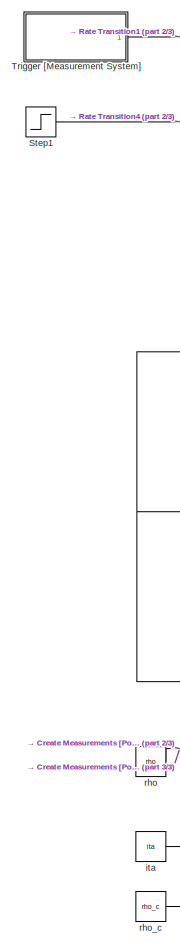
[diagram: root canvas - part 1/3, left side, full height]
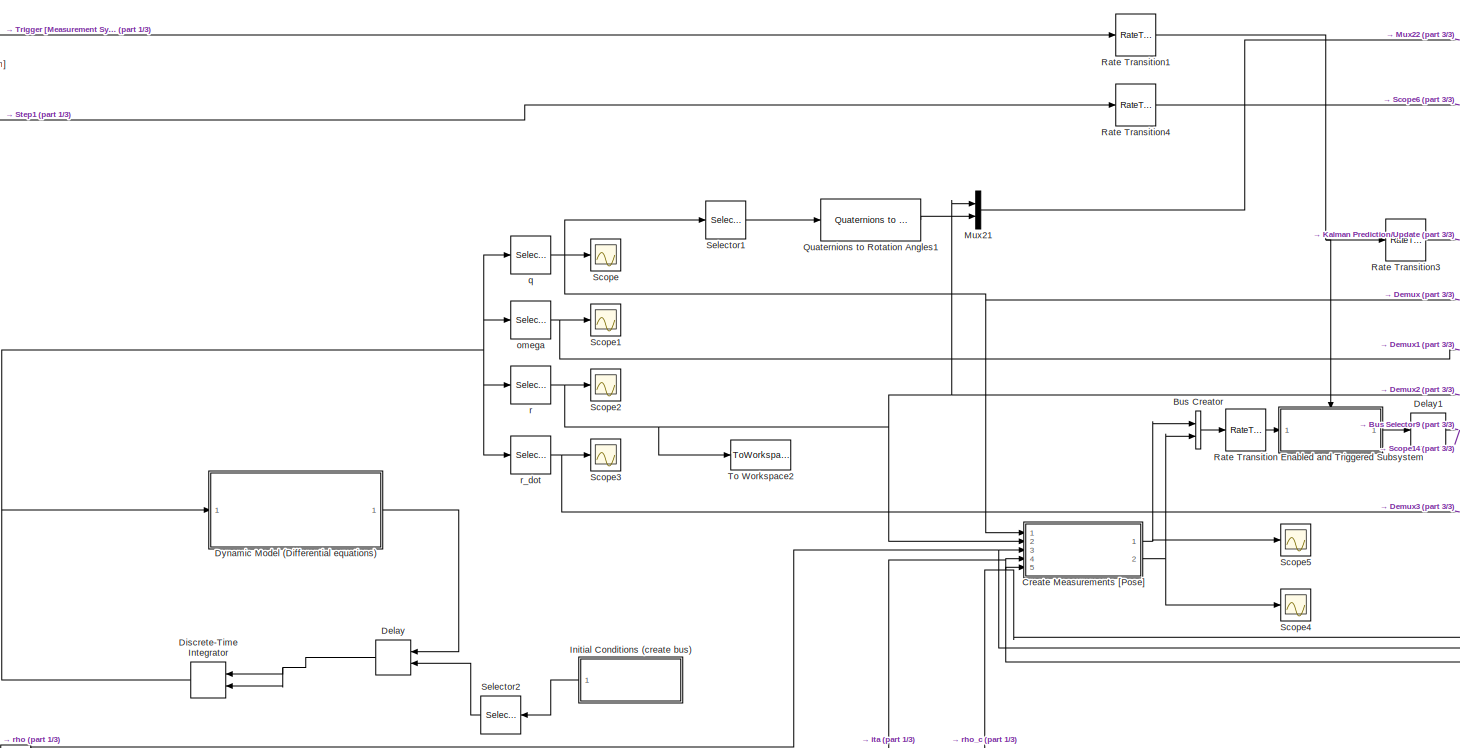
[diagram: root canvas - part 2/3, left side, full height]
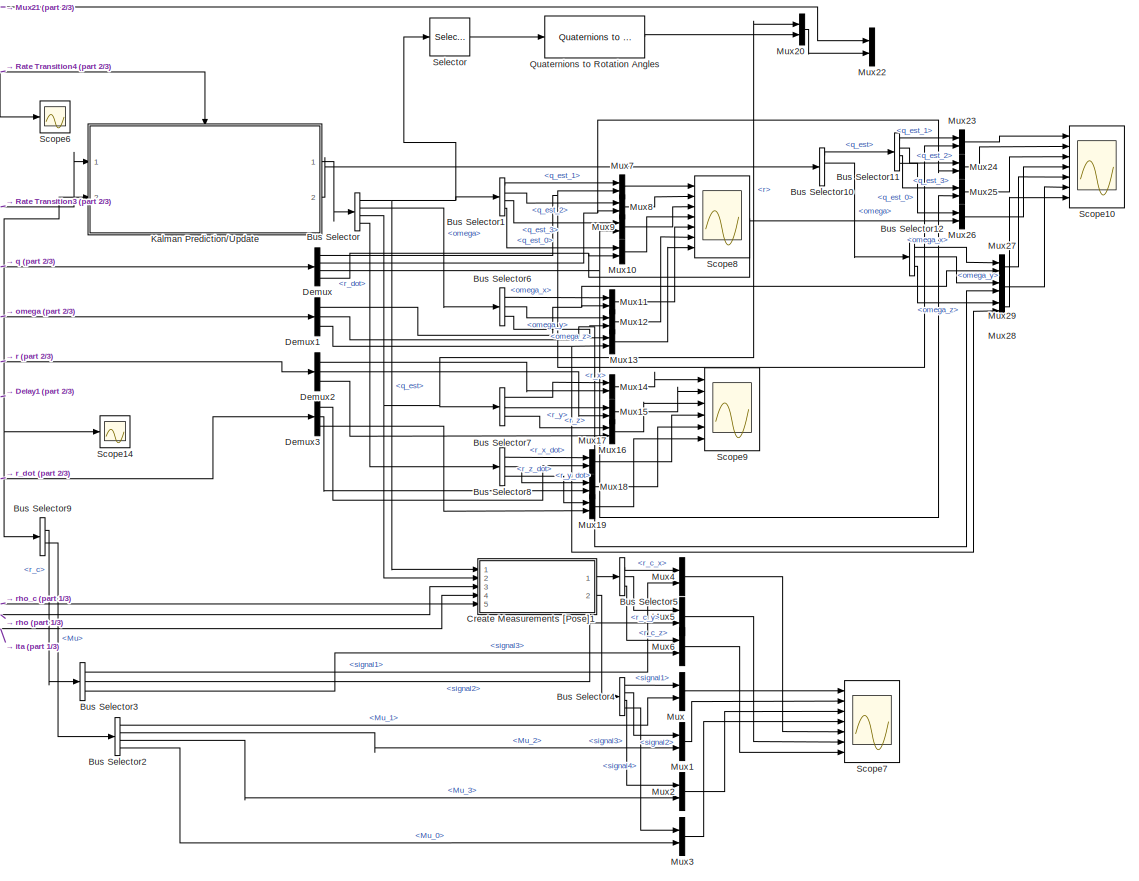
[diagram: root canvas - part 3/3, right side, full height]
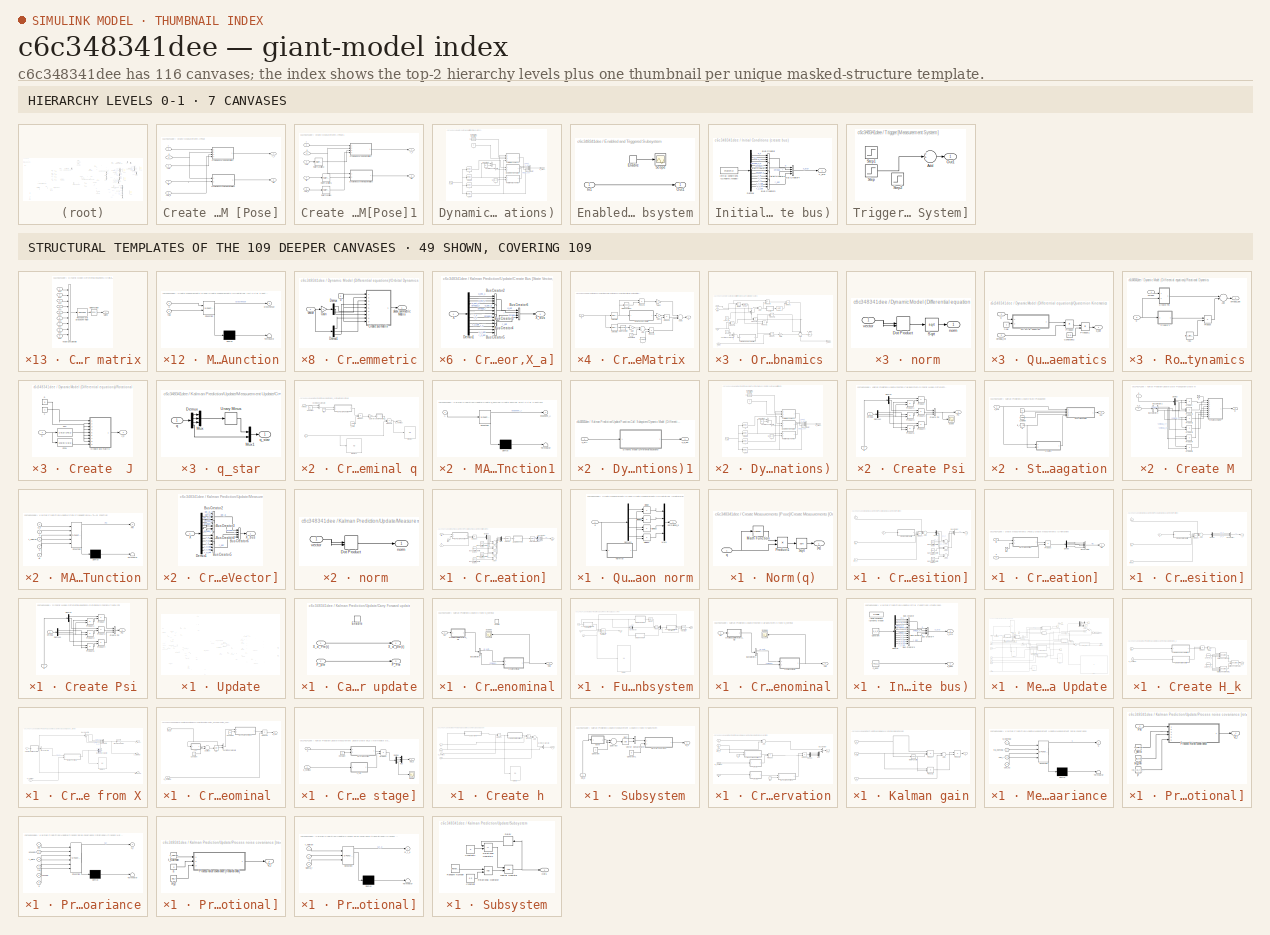
[diagram: thumbnail index - top-2 hierarchy levels (7 canvases) + 49 structural-template representatives of the remaining 109 canvases]
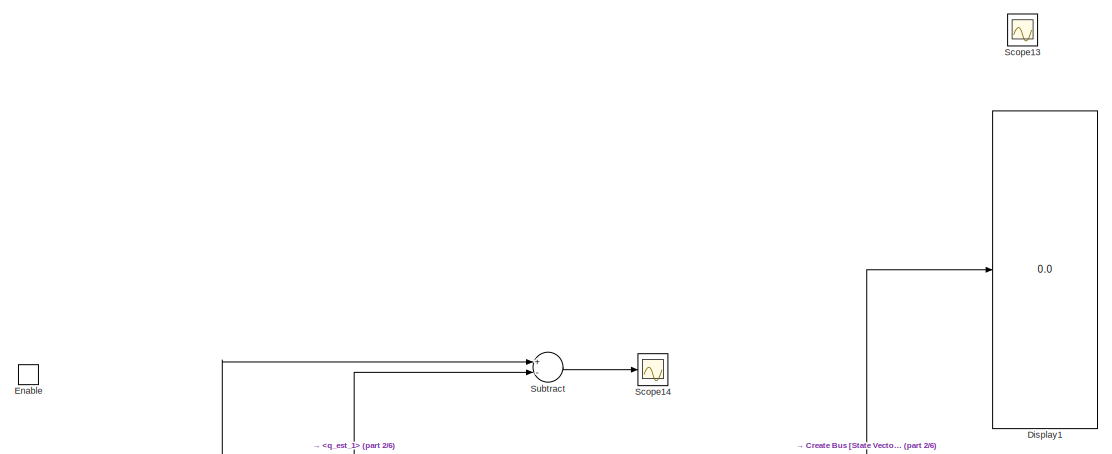
[diagram: Kalman Prediction/Update - part 1/6, top left region]
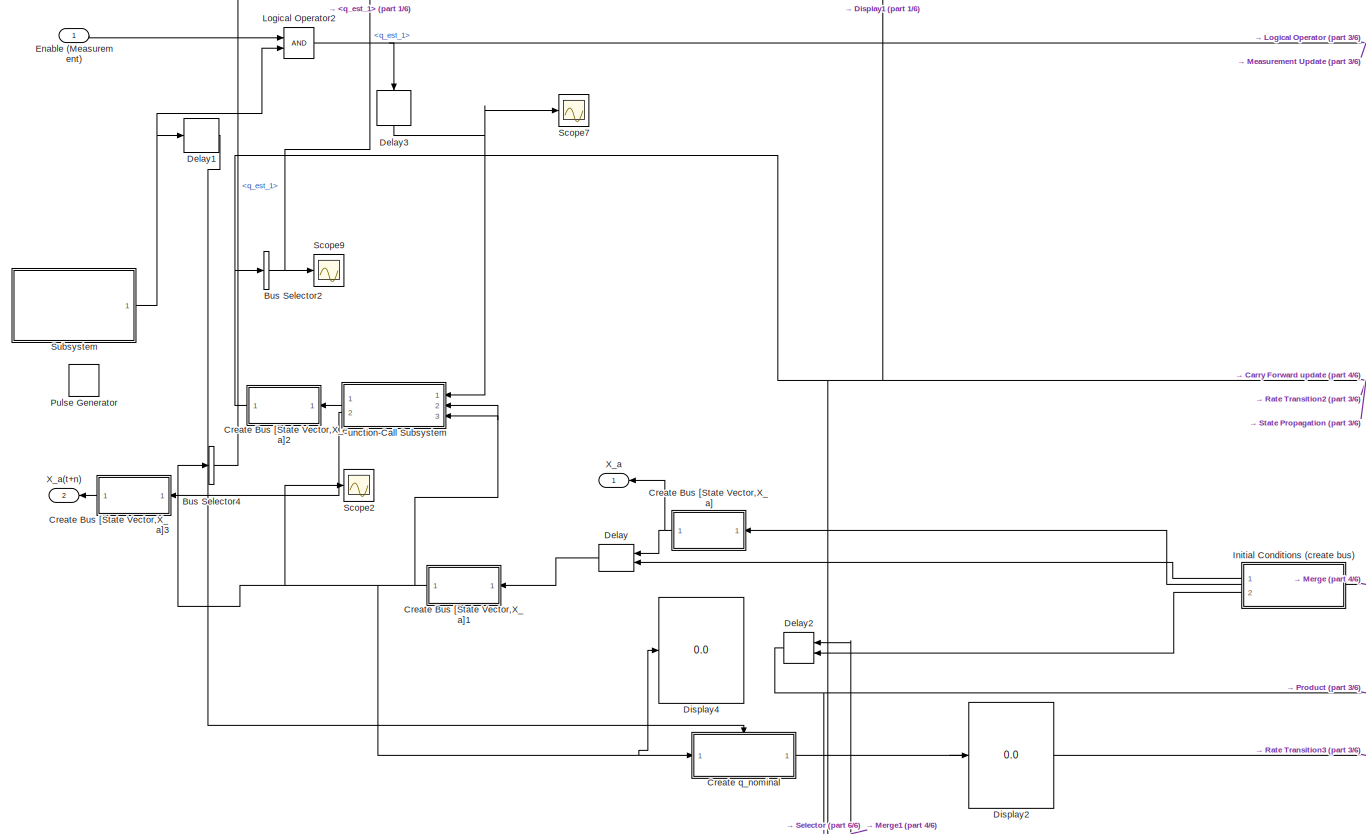
[diagram: Kalman Prediction/Update - part 2/6, middle left region]
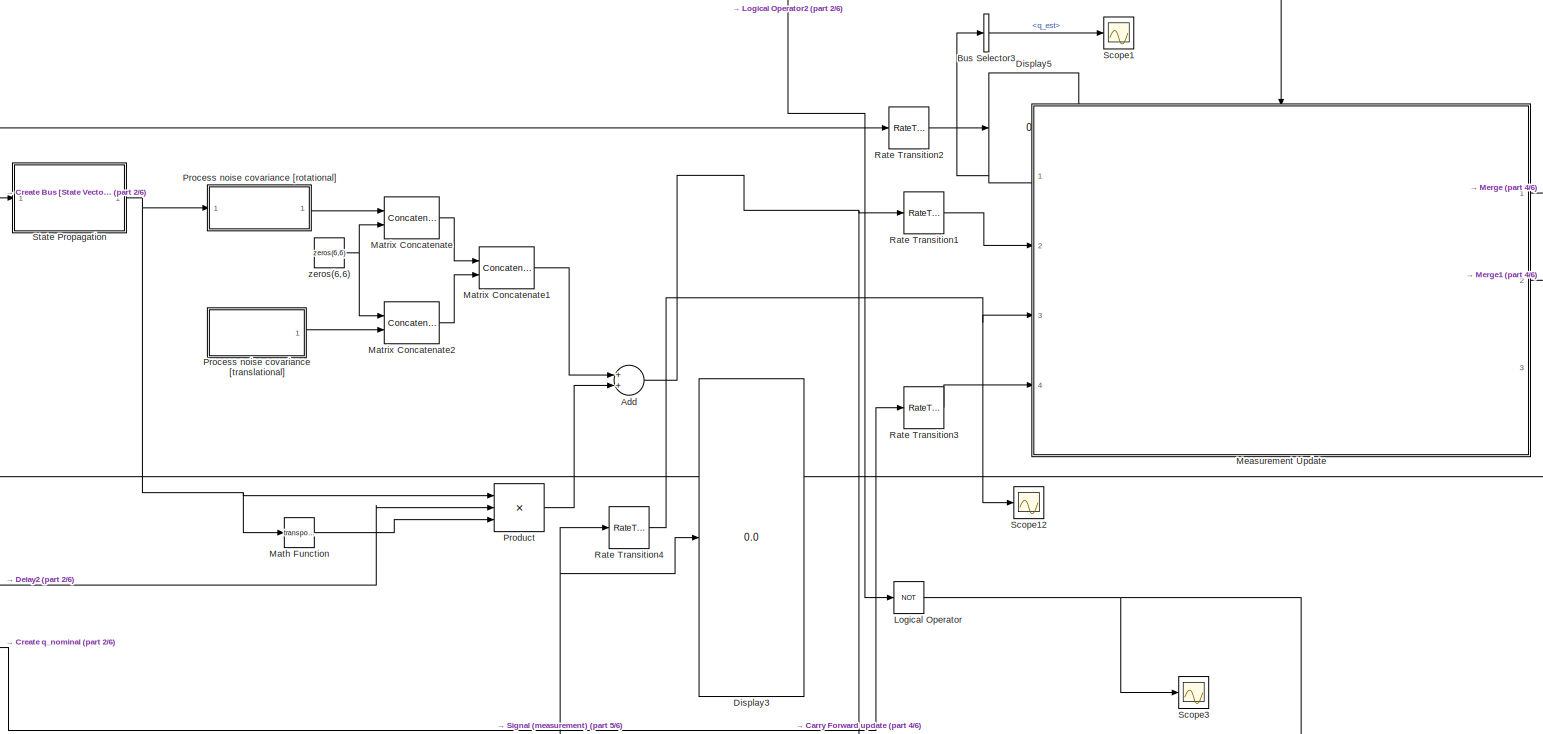
[diagram: Kalman Prediction/Update - part 3/6, central region]
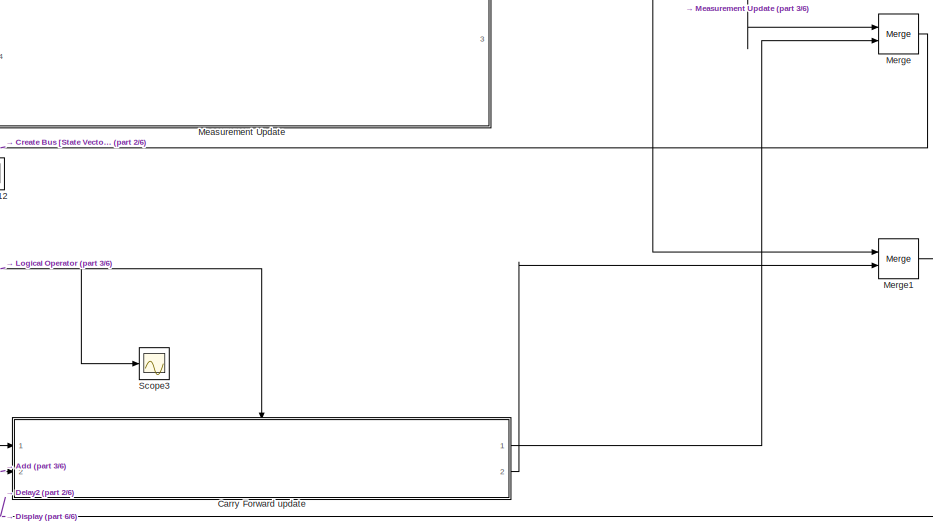
[diagram: Kalman Prediction/Update - part 4/6, bottom right region]
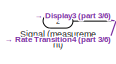
[diagram: Kalman Prediction/Update - part 5/6, bottom left region]
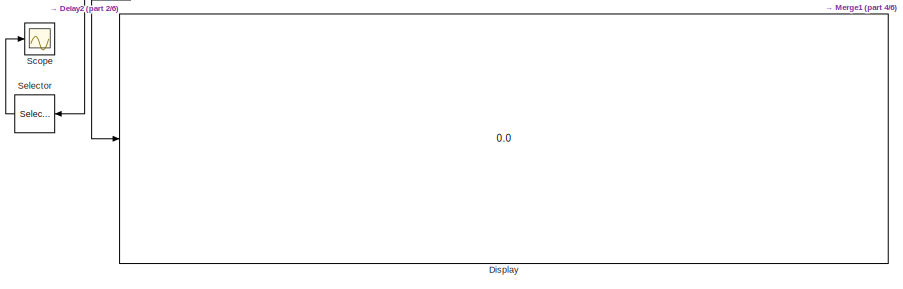
[diagram: Kalman Prediction/Update - part 6/6, bottom center region]
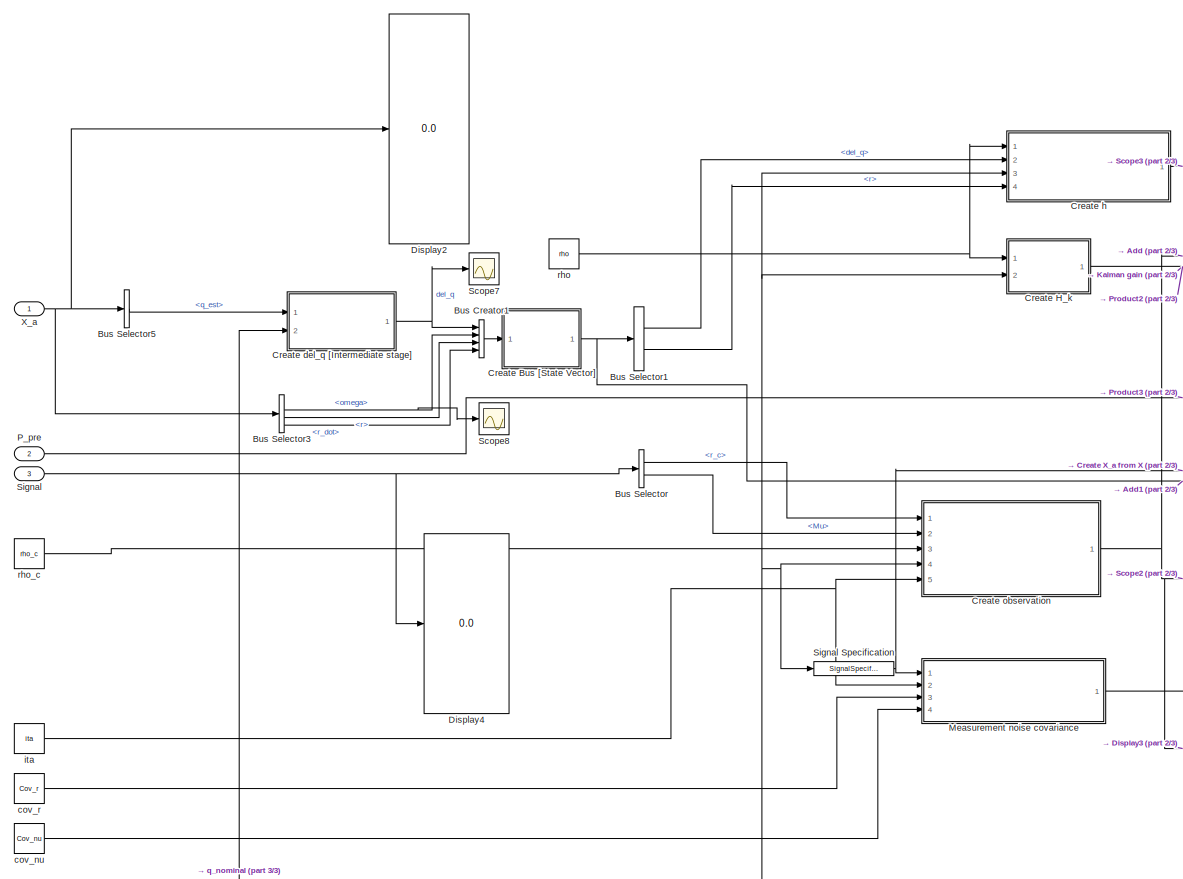
[diagram: Kalman Prediction/Update/Measurement Update - part 1/3, left side, full height]
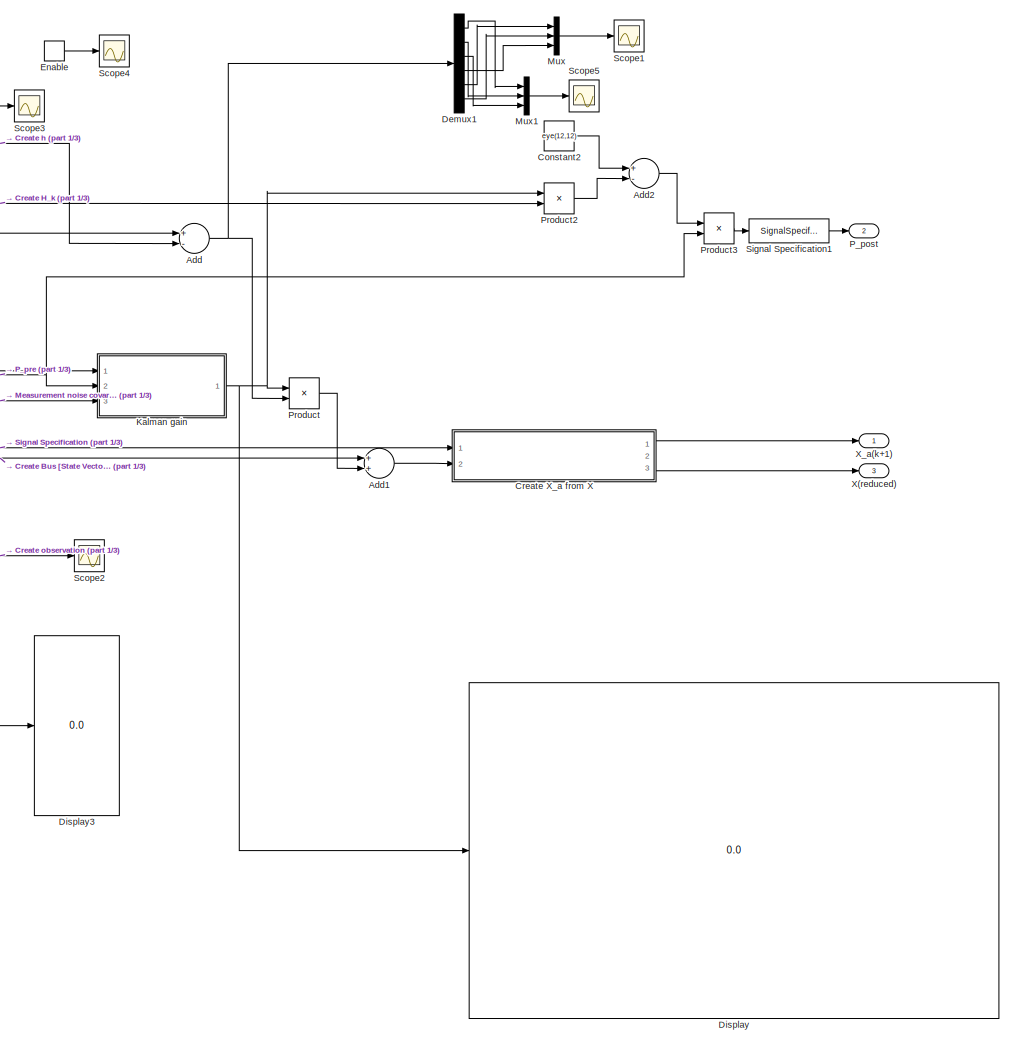
[diagram: Kalman Prediction/Update/Measurement Update - part 2/3, right side, full height]
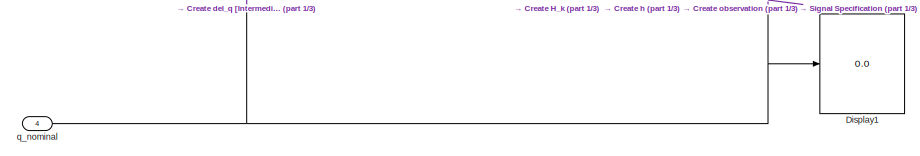
[diagram: Kalman Prediction/Update/Measurement Update - part 3/3, bottom left region]
MODEL slx_c6c348341dee
KIND model
WORKSPACE source: external: MATLAB File  (data not in archive)
BLOCK [BusCreator] Bus Creator
  DisplayOption = bar
  Inputs = 2
  Ports = [2, 1]
BLOCK [BusSelector] Bus Selector
  OutputSignals = q_est,omega,r,r_dot
  Ports = [1, 4]
BLOCK [BusSelector] Bus Selector1
  OutputSignals = q_est_1,q_est_2,q_est_3,q_est_0
  Ports = [1, 4]
BLOCK [BusSelector] Bus Selector10
  OutputSignals = q_est,omega,r,r_dot
  Ports = [1, 4]
BLOCK [BusSelector] Bus Selector11
  OutputSignals = q_est_1,q_est_2,q_est_3,q_est_0
  Ports = [1, 4]
BLOCK [BusSelector] Bus Selector12
  OutputSignals = omega_x,omega_y,omega_z
  Ports = [1, 3]
BLOCK [BusSelector] Bus Selector2
  OutputSignals = Mu_1,Mu_2,Mu_3,Mu_0
  Ports = [1, 4]
BLOCK [BusSelector] Bus Selector3
  Ports = [1, 3]
BLOCK [BusSelector] Bus Selector4
  OutputSignals = signal1,signal2,signal3,signal4
  Ports = [1, 4]
BLOCK [BusSelector] Bus Selector5
  OutputSignals = r_c_x,r_c_y,r_c_z
  Ports = [1, 3]
BLOCK [BusSelector] Bus Selector6
  OutputSignals = omega_x,omega_y,omega_z
  Ports = [1, 3]
BLOCK [BusSelector] Bus Selector7
  OutputSignals = r_x,r_y,r_z
  Ports = [1, 3]
BLOCK [BusSelector] Bus Selector8
  OutputSignals = r_x_dot,r_y_dot,r_z_dot
  Ports = [1, 3]
BLOCK [BusSelector] Bus Selector9
  OutputSignals = r_c,Mu
  Ports = [1, 2]
BLOCK [SubSystem] Create Measurements [Pose]
  Ports = [5, 2]
  RequestExecContextInheritance = off
BLOCK [SubSystem] Create Measurements [Pose]/Create Measurements [Orientation] 
  Ports = [2, 1]
  RequestExecContextInheritance = off
BLOCK [Sum] Create Measurements [Pose]/Create Measurements [Orientation] /Add1
  InputSameDT = off
  OutDataTypeStr = Inherit: Inherit via internal rule
  Ports = [2, 1]
  SaturateOnIntegerOverflow = off
BLOCK [Sum] Create Measurements [Pose]/Create Measurements [Orientation] /Add2
  InputSameDT = off
  OutDataTypeStr = Inherit: Inherit via internal rule
  Ports = [2, 1]
  SaturateOnIntegerOverflow = off
BLOCK [Sum] Create Measurements [Pose]/Create Measurements [Orientation] /Add3
  InputSameDT = off
  OutDataTypeStr = Inherit: Inherit via internal rule
  Ports = [2, 1]
  SaturateOnIntegerOverflow = off
BLOCK [Sum] Create Measurements [Pose]/Create Measurements [Orientation] /Add4
  InputSameDT = off
  OutDataTypeStr = Inherit: Inherit via internal rule
  Ports = [2, 1]
  SaturateOnIntegerOverflow = off
BLOCK [Reference] Create Measurements [Pose]/Create Measurements [Orientation] /Band-Limited White Noise  REF=simulink/Sources/Band-Limited
White Noise
  Cov = [0.000001]
  Ports = [0, 1]
  SourceBlock = simulink/Sources/Band-Limited\nWhite Noise
  SourceType = Band-Limited White Noise.
  Ts = t_Kalman
  VectorParams1D = on
  seed = [13441]
BLOCK [Reference] Create Measurements [Pose]/Create Measurements [Orientation] /Band-Limited White Noise1  REF=simulink/Sources/Band-Limited
White Noise
  Cov = [0.000001]
  Ports = [0, 1]
  SourceBlock = simulink/Sources/Band-Limited\nWhite Noise
  SourceType = Band-Limited White Noise.
  Ts = t_Kalman
  VectorParams1D = on
  seed = [43321]
BLOCK [Reference] Create Measurements [Pose]/Create Measurements [Orientation] /Band-Limited White Noise2  REF=simulink/Sources/Band-Limited
White Noise
  Cov = [0.000001]
  Ports = [0, 1]
  SourceBlock = simulink/Sources/Band-Limited\nWhite Noise
  SourceType = Band-Limited White Noise.
  Ts = t_Kalman
  VectorParams1D = on
  seed = [24321]
BLOCK [Reference] Create Measurements [Pose]/Create Measurements [Orientation] /Band-Limited White Noise3  REF=simulink/Sources/Band-Limited
White Noise
  Cov = [0.000001]
  Ports = [0, 1]
  SourceBlock = simulink/Sources/Band-Limited\nWhite Noise
  SourceType = Band-Limited White Noise.
  Ts = t_Kalman
  VectorParams1D = on
  seed = [12345]
BLOCK [BusCreator] Create Measurements [Pose]/Create Measurements [Orientation] /Bus Creator
  DisplayOption = bar
  Ports = [4, 1]
BLOCK [Demux] Create Measurements [Pose]/Create Measurements [Orientation] /Demux
  DisplayOption = bar
  Ports = [1, 4]
BLOCK [Demux] Create Measurements [Pose]/Create Measurements [Orientation] /Demux1
  DisplayOption = bar
  Ports = [1, 4]
BLOCK [SubSystem] Create Measurements [Pose]/Create Measurements [Orientation] /MATLAB Function
  ErrorFcn = Stateflow.Translate.translate
  PermitHierarchicalResolution = ExplicitOnly
  Ports = [2, 1]
  RequestExecContextInheritance = off
  SFBlockType = MATLAB Function
  TreatAsAtomicUnit = on
BLOCK [Demux] Create Measurements [Pose]/Create Measurements [Orientation] /MATLAB Function/ Demux 
  Outputs = 1
  Ports = [1, 1]
BLOCK [S-Function] Create Measurements [Pose]/Create Measurements [Orientation] /MATLAB Function/ SFunction 
  EnableBusSupport = on
  FunctionName = sf_sfun
  PortCounts = [2 2]
  Ports = [2, 2]
  Tag = Stateflow S-Function Model_02_Updated 3
BLOCK [Terminator] Create Measurements [Pose]/Create Measurements [Orientation] /MATLAB Function/ Terminator 
BLOCK [Outport] Create Measurements [Pose]/Create Measurements [Orientation] /MATLAB Function/CrossTensor
  IconDisplay = Port number
BLOCK [Inport] Create Measurements [Pose]/Create Measurements [Orientation] /MATLAB Function/flag
  IconDisplay = Port number
  Port = 2
BLOCK [Inport] Create Measurements [Pose]/Create Measurements [Orientation] /MATLAB Function/q
  IconDisplay = Port number
BLOCK [Outport] Create Measurements [Pose]/Create Measurements [Orientation] /Mu
  IconDisplay = Port number
BLOCK [Mux] Create Measurements [Pose]/Create Measurements [Orientation] /Mux
  DisplayOption = bar
  Ports = [4, 1]
BLOCK [Product] Create Measurements [Pose]/Create Measurements [Orientation] /Product
  InputSameDT = off
  Multiplication = Matrix(*)
  OutDataTypeStr = Inherit: Inherit via internal rule
  Ports = [2, 1]
  RndMeth = Floor
  SaturateOnIntegerOverflow = off
BLOCK [SubSystem] Create Measurements [Pose]/Create Measurements [Orientation] /Quaternion norm
  Ports = [1, 1]
  RequestExecContextInheritance = off
BLOCK [Demux] Create Measurements [Pose]/Create Measurements [Orientation] /Quaternion norm/Demux3
  DisplayOption = bar
  Ports = [1, 4]
BLOCK [Product] Create Measurements [Pose]/Create Measurements [Orientation] /Quaternion norm/Divide
  InputSameDT = off
  Inputs = */
  OutDataTypeStr = Inherit: Inherit via internal rule
  Ports = [2, 1]
  RndMeth = Floor
  SaturateOnIntegerOverflow = off
BLOCK [Product] Create Measurements [Pose]/Create Measurements [Orientation] /Quaternion norm/Divide1
  InputSameDT = off
  Inputs = */
  OutDataTypeStr = Inherit: Inherit via internal rule
  Ports = [2, 1]
  RndMeth = Floor
  SaturateOnIntegerOverflow = off
BLOCK [Product] Create Measurements [Pose]/Create Measurements [Orientation] /Quaternion norm/Divide2
  InputSameDT = off
  Inputs = */
  OutDataTypeStr = Inherit: Inherit via internal rule
  Ports = [2, 1]
  RndMeth = Floor
  SaturateOnIntegerOverflow = off
BLOCK [Product] Create Measurements [Pose]/Create Measurements [Orientation] /Quaternion norm/Divide3
  InputSameDT = off
  Inputs = */
  OutDataTypeStr = Inherit: Inherit via internal rule
  Ports = [2, 1]
  RndMeth = Floor
  SaturateOnIntegerOverflow = off
BLOCK [Mux] Create Measurements [Pose]/Create Measurements [Orientation] /Quaternion norm/Mux1
  DisplayOption = bar
  Ports = [4, 1]
BLOCK [SubSystem] Create Measurements [Pose]/Create Measurements [Orientation] /Quaternion norm/Norm(q)
  Ports = [1, 1]
  RequestExecContextInheritance = off
BLOCK [Math] Create Measurements [Pose]/Create Measurements [Orientation] /Quaternion norm/Norm(q)/Math Function
  Operator = transpose
  Ports = [1, 1]
BLOCK [Product] Create Measurements [Pose]/Create Measurements [Orientation] /Quaternion norm/Norm(q)/Product1
  InputSameDT = off
  Multiplication = Matrix(*)
  OutDataTypeStr = Inherit: Inherit via internal rule
  Ports = [2, 1]
  RndMeth = Floor
  SaturateOnIntegerOverflow = off
BLOCK [Sqrt] Create Measurements [Pose]/Create Measurements [Orientation] /Quaternion norm/Norm(q)/Sqrt
BLOCK [Inport] Create Measurements [Pose]/Create Measurements [Orientation] /Quaternion norm/Norm(q)/q
  IconDisplay = Port number
BLOCK [Outport] Create Measurements [Pose]/Create Measurements [Orientation] /Quaternion norm/Norm(q)/|q|
  IconDisplay = Port number
BLOCK [Outport] Create Measurements [Pose]/Create Measurements [Orientation] /Quaternion norm/normalized_q
  IconDisplay = Port number
BLOCK [Inport] Create Measurements [Pose]/Create Measurements [Orientation] /Quaternion norm/q
  IconDisplay = Port number
BLOCK [Selector] Create Measurements [Pose]/Create Measurements [Orientation] /Selector
  IndexOptions = Index vector (dialog),Index vector (dialog)
  Indices = [4 1 2 3],1
  InputPortWidth = 3
  NumberOfDimensions = 2
  OutputSizes = 1,1
  Ports = [1, 1]
BLOCK [Selector] Create Measurements [Pose]/Create Measurements [Orientation] /Selector1
  IndexOptions = Index vector (dialog),Index vector (dialog)
  Indices = [2 3 4 1],1
  InputPortWidth = 3
  NumberOfDimensions = 2
  OutputSizes = 1,1
  Ports = [1, 1]
BLOCK [Constant] Create Measurements [Pose]/Create Measurements [Orientation] /flag 
  Value = 0
BLOCK [Inport] Create Measurements [Pose]/Create Measurements [Orientation] /ita 
  IconDisplay = Port number
  Port = 2
BLOCK [Inport] Create Measurements [Pose]/Create Measurements [Orientation] /q
  IconDisplay = Port number
BLOCK [SubSystem] Create Measurements [Pose]/Create Measurements [Position]
  Ports = [4, 1]
  RequestExecContextInheritance = off
BLOCK [Sum] Create Measurements [Pose]/Create Measurements [Position]/Add
  InputSameDT = off
  Inputs = +++
  OutDataTypeStr = Inherit: Inherit via internal rule
  Ports = [3, 1]
  SaturateOnIntegerOverflow = off
BLOCK [Sum] Create Measurements [Pose]/Create Measurements [Position]/Add1
  InputSameDT = off
  OutDataTypeStr = Inherit: Inherit via internal rule
  Ports = [2, 1]
  SaturateOnIntegerOverflow = off
BLOCK [Sum] Create Measurements [Pose]/Create Measurements [Position]/Add2
  InputSameDT = off
  OutDataTypeStr = Inherit: Inherit via internal rule
  Ports = [2, 1]
  SaturateOnIntegerOverflow = off
BLOCK [Sum] Create Measurements [Pose]/Create Measurements [Position]/Add3
  InputSameDT = off
  OutDataTypeStr = Inherit: Inherit via internal rule
  Ports = [2, 1]
  SaturateOnIntegerOverflow = off
BLOCK [Reference] Create Measurements [Pose]/Create Measurements [Position]/Band-Limited White Noise  REF=simulink/Sources/Band-Limited
White Noise
  Cov = [0.0001]
  Ports = [0, 1]
  SourceBlock = simulink/Sources/Band-Limited\nWhite Noise
  SourceType = Band-Limited White Noise.
  Ts = t_Kalman
  VectorParams1D = on
  seed = [23341]
BLOCK [Reference] Create Measurements [Pose]/Create Measurements [Position]/Band-Limited White Noise1  REF=simulink/Sources/Band-Limited
White Noise
  Cov = [0.0001]
  Ports = [0, 1]
  SourceBlock = simulink/Sources/Band-Limited\nWhite Noise
  SourceType = Band-Limited White Noise.
  Ts = t_Kalman
  VectorParams1D = on
  seed = [43321]
BLOCK [Reference] Create Measurements [Pose]/Create Measurements [Position]/Band-Limited White Noise2  REF=simulink/Sources/Band-Limited
White Noise
  Cov = [0.0001]
  Ports = [0, 1]
  SourceBlock = simulink/Sources/Band-Limited\nWhite Noise
  SourceType = Band-Limited White Noise.
  Ts = t_Kalman
  VectorParams1D = on
  seed = [12342]
BLOCK [BusCreator] Create Measurements [Pose]/Create Measurements [Position]/Bus Creator
  DisplayOption = bar
  Inputs = 3
  Ports = [3, 1]
BLOCK [SubSystem] Create Measurements [Pose]/Create Measurements [Position]/Create Rotation Matrix 
  Ports = [1, 1]
  RequestExecContextInheritance = off
BLOCK [Sum] Create Measurements [Pose]/Create Measurements [Position]/Create Rotation Matrix /Add
  InputSameDT = off
  OutDataTypeStr = Inherit: Inherit via internal rule
  Ports = [2, 1]
  SaturateOnIntegerOverflow = off
BLOCK [Sum] Create Measurements [Pose]/Create Measurements [Position]/Create Rotation Matrix /Add5
  InputSameDT = off
  Inputs = +++
  OutDataTypeStr = Inherit: Inherit via internal rule
  Ports = [3, 1]
  SaturateOnIntegerOverflow = off
BLOCK [Constant] Create Measurements [Pose]/Create Measurements [Position]/Create Rotation Matrix /Constant1
  Value = -1
BLOCK [SubSystem] Create Measurements [Pose]/Create Measurements [Position]/Create Rotation Matrix /Create Skew Symmetric
  Ports = [1, 1]
  RequestExecContextInheritance = off
BLOCK [Constant] Create Measurements [Pose]/Create Measurements [Position]/Create Rotation Matrix /Create Skew Symmetric/0
  Value = 0
BLOCK [SubSystem] Create Measurements [Pose]/Create Measurements [Position]/Create Rotation Matrix /Create Skew Symmetric/Create 3x3 matrix
  Ports = [9, 1]
  RequestExecContextInheritance = off
BLOCK [Math] Create Measurements [Pose]/Create Measurements [Position]/Create Rotation Matrix /Create Skew Symmetric/Create 3x3 matrix/Math Function
  Operator = transpose
  Ports = [1, 1]
BLOCK [Outport] Create Measurements [Pose]/Create Measurements [Position]/Create Rotation Matrix /Create Skew Symmetric/Create 3x3 matrix/Matrix
  IconDisplay = Port number
BLOCK [Reshape] Create Measurements [Pose]/Create Measurements [Position]/Create Rotation Matrix /Create Skew Symmetric/Create 3x3 matrix/Reshape (9) to [3x3] column-major
  OutputDimensionality = Customize
  OutputDimensions = [3,3]
  Ports = [1, 1]
BLOCK [Concatenate] Create Measurements [Pose]/Create Measurements [Position]/Create Rotation Matrix /Create Skew Symmetric/Create 3x3 matrix/Vector Concatenate
  NumInputs = 9
  Ports = [9, 1]
BLOCK [Inport] Create Measurements [Pose]/Create Measurements [Position]/Create Rotation Matrix /Create Skew Symmetric/Create 3x3 matrix/a11
  IconDisplay = Port number
BLOCK [Inport] Create Measurements [Pose]/Create Measurements [Position]/Create Rotation Matrix /Create Skew Symmetric/Create 3x3 matrix/a12
  IconDisplay = Port number
  Port = 2
BLOCK [Inport] Create Measurements [Pose]/Create Measurements [Position]/Create Rotation Matrix /Create Skew Symmetric/Create 3x3 matrix/a13
  IconDisplay = Port number
  Port = 3
BLOCK [Inport] Create Measurements [Pose]/Create Measurements [Position]/Create Rotation Matrix /Create Skew Symmetric/Create 3x3 matrix/a21
  IconDisplay = Port number
  Port = 4
BLOCK [Inport] Create Measurements [Pose]/Create Measurements [Position]/Create Rotation Matrix /Create Skew Symmetric/Create 3x3 matrix/a22
  IconDisplay = Port number
  Port = 5
BLOCK [Inport] Create Measurements [Pose]/Create Measurements [Position]/Create Rotation Matrix /Create Skew Symmetric/Create 3x3 matrix/a23
  IconDisplay = Port number
  Port = 6
BLOCK [Inport] Create Measurements [Pose]/Create Measurements [Position]/Create Rotation Matrix /Create Skew Symmetric/Create 3x3 matrix/a31
  IconDisplay = Port number
  Port = 7
BLOCK [Inport] Create Measurements [Pose]/Create Measurements [Position]/Create Rotation Matrix /Create Skew Symmetric/Create 3x3 matrix/a32
  IconDisplay = Port number
  Port = 8
BLOCK [Inport] Create Measurements [Pose]/Create Measurements [Position]/Create Rotation Matrix /Create Skew Symmetric/Create 3x3 matrix/a33
  IconDisplay = Port number
  Port = 9
BLOCK [Demux] Create Measurements [Pose]/Create Measurements [Position]/Create Rotation Matrix /Create Skew Symmetric/Demux
  DisplayOption = bar
  Outputs = 3
  Ports = [1, 3]
BLOCK [Demux] Create Measurements [Pose]/Create Measurements [Position]/Create Rotation Matrix /Create Skew Symmetric/Demux1
  DisplayOption = bar
  Outputs = 3
  Ports = [1, 3]
BLOCK [Gain] Create Measurements [Pose]/Create Measurements [Position]/Create Rotation Matrix /Create Skew Symmetric/Gain
  Gain = -1
  OutDataTypeStr = Inherit: Inherit via internal rule
  ParamDataTypeStr = Inherit: Inherit via internal rule
  SaturateOnIntegerOverflow = off
BLOCK [Outport] Create Measurements [Pose]/Create Measurements [Position]/Create Rotation Matrix /Create Skew Symmetric/skew symmetric Matrix
  IconDisplay = Port number
BLOCK [Inport] Create Measurements [Pose]/Create Measurements [Position]/Create Rotation Matrix /Create Skew Symmetric/vector
  IconDisplay = Port number
BLOCK [Gain] Create Measurements [Pose]/Create Measurements [Position]/Create Rotation Matrix /Gain
  Gain = 2
  OutDataTypeStr = Inherit: Inherit via internal rule
  ParamDataTypeStr = Inherit: Inherit via internal rule
  SaturateOnIntegerOverflow = off
BLOCK [Gain] Create Measurements [Pose]/Create Measurements [Position]/Create Rotation Matrix /Gain1
  Gain = 2
  OutDataTypeStr = Inherit: Inherit via internal rule
  ParamDataTypeStr = Inherit: Inherit via internal rule
  SaturateOnIntegerOverflow = off
BLOCK [Gain] Create Measurements [Pose]/Create Measurements [Position]/Create Rotation Matrix /Gain2
  Gain = 2
  OutDataTypeStr = Inherit: Inherit via internal rule
  ParamDataTypeStr = Inherit: Inherit via internal rule
  SaturateOnIntegerOverflow = off
BLOCK [Constant] Create Measurements [Pose]/Create Measurements [Position]/Create Rotation Matrix /I
  Value = eye(3,3)
BLOCK [Math] Create Measurements [Pose]/Create Measurements [Position]/Create Rotation Matrix /Math Function
  Operator = square
  Ports = [1, 1]
BLOCK [Math] Create Measurements [Pose]/Create Measurements [Position]/Create Rotation Matrix /Math Function1
  Operator = transpose
  Ports = [1, 1]
BLOCK [Product] Create Measurements [Pose]/Create Measurements [Position]/Create Rotation Matrix /Product1
  InputSameDT = off
  OutDataTypeStr = Inherit: Inherit via internal rule
  Ports = [2, 1]
  RndMeth = Floor
  SaturateOnIntegerOverflow = off
BLOCK [Product] Create Measurements [Pose]/Create Measurements [Position]/Create Rotation Matrix /Product2
  InputSameDT = off
  OutDataTypeStr = Inherit: Inherit via internal rule
  Ports = [2, 1]
  RndMeth = Floor
  SaturateOnIntegerOverflow = off
BLOCK [Product] Create Measurements [Pose]/Create Measurements [Position]/Create Rotation Matrix /Product3
  InputSameDT = off
  Multiplication = Matrix(*)
  OutDataTypeStr = Inherit: Inherit via internal rule
  Ports = [2, 1]
  RndMeth = Floor
  SaturateOnIntegerOverflow = off
BLOCK [Outport] Create Measurements [Pose]/Create Measurements [Position]/Create Rotation Matrix /R
  IconDisplay = Port number
BLOCK [Selector] Create Measurements [Pose]/Create Measurements [Position]/Create Rotation Matrix /Selector2
  IndexOptions = Index vector (dialog),Index vector (dialog)
  Indices = [1 2 3],1
  InputPortWidth = 3
  NumberOfDimensions = 2
  OutputSizes = 1,1
  Ports = [1, 1]
BLOCK [Selector] Create Measurements [Pose]/Create Measurements [Position]/Create Rotation Matrix /Selector3
  IndexOptions = Index vector (dialog),Index vector (dialog)
  Indices = [4],1
  InputPortWidth = 3
  NumberOfDimensions = 2
  OutputSizes = 1,1
  Ports = [1, 1]
BLOCK [Inport] Create Measurements [Pose]/Create Measurements [Position]/Create Rotation Matrix /q
  IconDisplay = Port number
BLOCK [Demux] Create Measurements [Pose]/Create Measurements [Position]/Demux
  DisplayOption = bar
  Outputs = 3
  Ports = [1, 3]
BLOCK [Product] Create Measurements [Pose]/Create Measurements [Position]/Product
  InputSameDT = off
  Multiplication = Matrix(*)
  OutDataTypeStr = Inherit: Inherit via internal rule
  Ports = [2, 1]
  RndMeth = Floor
  SaturateOnIntegerOverflow = off
BLOCK [Inport] Create Measurements [Pose]/Create Measurements [Position]/q
  IconDisplay = Port number
  Port = 2
BLOCK [Inport] Create Measurements [Pose]/Create Measurements [Position]/r
  IconDisplay = Port number
BLOCK [Outport] Create Measurements [Pose]/Create Measurements [Position]/r_c
  IconDisplay = Port number
BLOCK [Inport] Create Measurements [Pose]/Create Measurements [Position]/rho
  IconDisplay = Port number
  Port = 3
BLOCK [Inport] Create Measurements [Pose]/Create Measurements [Position]/rho_c 
  IconDisplay = Port number
  Port = 4
BLOCK [Outport] Create Measurements [Pose]/Mu
  IconDisplay = Port number
  Port = 2
BLOCK [Inport] Create Measurements [Pose]/ita
  IconDisplay = Port number
  Port = 4
BLOCK [Inport] Create Measurements [Pose]/q
  IconDisplay = Port number
BLOCK [Inport] Create Measurements [Pose]/r
  IconDisplay = Port number
  Port = 2
BLOCK [Outport] Create Measurements [Pose]/r_c
  IconDisplay = Port number
BLOCK [Inport] Create Measurements [Pose]/rho
  IconDisplay = Port number
  Port = 3
BLOCK [Inport] Create Measurements [Pose]/rho_c 
  IconDisplay = Port number
  Port = 5
BLOCK [SubSystem] Create Measurements [Pose]1
  Ports = [5, 2]
  RequestExecContextInheritance = off
BLOCK [SubSystem] Create Measurements [Pose]1/Create Measurements [Orientation] 
  Ports = [2, 1]
  RequestExecContextInheritance = off
BLOCK [BusCreator] Create Measurements [Pose]1/Create Measurements [Orientation] /Bus Creator
  DisplayOption = bar
  Ports = [4, 1]
BLOCK [Demux] Create Measurements [Pose]1/Create Measurements [Orientation] /Demux
  DisplayOption = bar
  Ports = [1, 4]
BLOCK [SubSystem] Create Measurements [Pose]1/Create Measurements [Orientation] /MATLAB Function
  ErrorFcn = Stateflow.Translate.translate
  PermitHierarchicalResolution = ExplicitOnly
  Ports = [2, 1]
  RequestExecContextInheritance = off
  SFBlockType = MATLAB Function
  TreatAsAtomicUnit = on
BLOCK [Demux] Create Measurements [Pose]1/Create Measurements [Orientation] /MATLAB Function/ Demux 
  Outputs = 1
  Ports = [1, 1]
BLOCK [S-Function] Create Measurements [Pose]1/Create Measurements [Orientation] /MATLAB Function/ SFunction 
  EnableBusSupport = on
  FunctionName = sf_sfun
  PortCounts = [2 2]
  Ports = [2, 2]
  Tag = Stateflow S-Function Model_02_Updated 15
BLOCK [Terminator] Create Measurements [Pose]1/Create Measurements [Orientation] /MATLAB Function/ Terminator 
BLOCK [Outport] Create Measurements [Pose]1/Create Measurements [Orientation] /MATLAB Function/CrossTensor
  IconDisplay = Port number
BLOCK [Inport] Create Measurements [Pose]1/Create Measurements [Orientation] /MATLAB Function/flag
  IconDisplay = Port number
  Port = 2
BLOCK [Inport] Create Measurements [Pose]1/Create Measurements [Orientation] /MATLAB Function/q
  IconDisplay = Port number
BLOCK [Outport] Create Measurements [Pose]1/Create Measurements [Orientation] /Mu
  IconDisplay = Port number
BLOCK [Product] Create Measurements [Pose]1/Create Measurements [Orientation] /Product
  InputSameDT = off
  Multiplication = Matrix(*)
  OutDataTypeStr = Inherit: Inherit via internal rule
  Ports = [2, 1]
  RndMeth = Floor
  SaturateOnIntegerOverflow = off
BLOCK [Constant] Create Measurements [Pose]1/Create Measurements [Orientation] /flag 
  Value = 0
BLOCK [Inport] Create Measurements [Pose]1/Create Measurements [Orientation] /ita 
  IconDisplay = Port number
  Port = 2
BLOCK [Inport] Create Measurements [Pose]1/Create Measurements [Orientation] /q
  IconDisplay = Port number
BLOCK [SubSystem] Create Measurements [Pose]1/Create Measurements [Position]
  Ports = [4, 1]
  RequestExecContextInheritance = off
BLOCK [Sum] Create Measurements [Pose]1/Create Measurements [Position]/Add
  InputSameDT = off
  Inputs = +++
  OutDataTypeStr = Inherit: Inherit via internal rule
  Ports = [3, 1]
  SaturateOnIntegerOverflow = off
BLOCK [BusCreator] Create Measurements [Pose]1/Create Measurements [Position]/Bus Creator
  DisplayOption = bar
  Inputs = 3
  Ports = [3, 1]
BLOCK [SubSystem] Create Measurements [Pose]1/Create Measurements [Position]/Create Rotation Matrix 
  Ports = [1, 1]
  RequestExecContextInheritance = off
BLOCK [Sum] Create Measurements [Pose]1/Create Measurements [Position]/Create Rotation Matrix /Add
  InputSameDT = off
  OutDataTypeStr = Inherit: Inherit via internal rule
  Ports = [2, 1]
  SaturateOnIntegerOverflow = off
BLOCK [Sum] Create Measurements [Pose]1/Create Measurements [Position]/Create Rotation Matrix /Add5
  InputSameDT = off
  Inputs = +++
  OutDataTypeStr = Inherit: Inherit via internal rule
  Ports = [3, 1]
  SaturateOnIntegerOverflow = off
BLOCK [Constant] Create Measurements [Pose]1/Create Measurements [Position]/Create Rotation Matrix /Constant1
  Value = -1
BLOCK [SubSystem] Create Measurements [Pose]1/Create Measurements [Position]/Create Rotation Matrix /Create Skew Symmetric
  Ports = [1, 1]
  RequestExecContextInheritance = off
BLOCK [Constant] Create Measurements [Pose]1/Create Measurements [Position]/Create Rotation Matrix /Create Skew Symmetric/0
  Value = 0
BLOCK [SubSystem] Create Measurements [Pose]1/Create Measurements [Position]/Create Rotation Matrix /Create Skew Symmetric/Create 3x3 matrix
  Ports = [9, 1]
  RequestExecContextInheritance = off
BLOCK [Math] Create Measurements [Pose]1/Create Measurements [Position]/Create Rotation Matrix /Create Skew Symmetric/Create 3x3 matrix/Math Function
  Operator = transpose
  Ports = [1, 1]
BLOCK [Outport] Create Measurements [Pose]1/Create Measurements [Position]/Create Rotation Matrix /Create Skew Symmetric/Create 3x3 matrix/Matrix
  IconDisplay = Port number
BLOCK [Reshape] Create Measurements [Pose]1/Create Measurements [Position]/Create Rotation Matrix /Create Skew Symmetric/Create 3x3 matrix/Reshape (9) to [3x3] column-major
  OutputDimensionality = Customize
  OutputDimensions = [3,3]
  Ports = [1, 1]
BLOCK [Concatenate] Create Measurements [Pose]1/Create Measurements [Position]/Create Rotation Matrix /Create Skew Symmetric/Create 3x3 matrix/Vector Concatenate
  NumInputs = 9
  Ports = [9, 1]
BLOCK [Inport] Create Measurements [Pose]1/Create Measurements [Position]/Create Rotation Matrix /Create Skew Symmetric/Create 3x3 matrix/a11
  IconDisplay = Port number
BLOCK [Inport] Create Measurements [Pose]1/Create Measurements [Position]/Create Rotation Matrix /Create Skew Symmetric/Create 3x3 matrix/a12
  IconDisplay = Port number
  Port = 2
BLOCK [Inport] Create Measurements [Pose]1/Create Measurements [Position]/Create Rotation Matrix /Create Skew Symmetric/Create 3x3 matrix/a13
  IconDisplay = Port number
  Port = 3
BLOCK [Inport] Create Measurements [Pose]1/Create Measurements [Position]/Create Rotation Matrix /Create Skew Symmetric/Create 3x3 matrix/a21
  IconDisplay = Port number
  Port = 4
BLOCK [Inport] Create Measurements [Pose]1/Create Measurements [Position]/Create Rotation Matrix /Create Skew Symmetric/Create 3x3 matrix/a22
  IconDisplay = Port number
  Port = 5
BLOCK [Inport] Create Measurements [Pose]1/Create Measurements [Position]/Create Rotation Matrix /Create Skew Symmetric/Create 3x3 matrix/a23
  IconDisplay = Port number
  Port = 6
BLOCK [Inport] Create Measurements [Pose]1/Create Measurements [Position]/Create Rotation Matrix /Create Skew Symmetric/Create 3x3 matrix/a31
  IconDisplay = Port number
  Port = 7
BLOCK [Inport] Create Measurements [Pose]1/Create Measurements [Position]/Create Rotation Matrix /Create Skew Symmetric/Create 3x3 matrix/a32
  IconDisplay = Port number
  Port = 8
BLOCK [Inport] Create Measurements [Pose]1/Create Measurements [Position]/Create Rotation Matrix /Create Skew Symmetric/Create 3x3 matrix/a33
  IconDisplay = Port number
  Port = 9
BLOCK [Demux] Create Measurements [Pose]1/Create Measurements [Position]/Create Rotation Matrix /Create Skew Symmetric/Demux
  DisplayOption = bar
  Outputs = 3
  Ports = [1, 3]
BLOCK [Demux] Create Measurements [Pose]1/Create Measurements [Position]/Create Rotation Matrix /Create Skew Symmetric/Demux1
  DisplayOption = bar
  Outputs = 3
  Ports = [1, 3]
BLOCK [Gain] Create Measurements [Pose]1/Create Measurements [Position]/Create Rotation Matrix /Create Skew Symmetric/Gain
  Gain = -1
  OutDataTypeStr = Inherit: Inherit via internal rule
  ParamDataTypeStr = Inherit: Inherit via internal rule
  SaturateOnIntegerOverflow = off
BLOCK [Outport] Create Measurements [Pose]1/Create Measurements [Position]/Create Rotation Matrix /Create Skew Symmetric/skew symmetric Matrix
  IconDisplay = Port number
BLOCK [Inport] Create Measurements [Pose]1/Create Measurements [Position]/Create Rotation Matrix /Create Skew Symmetric/vector
  IconDisplay = Port number
BLOCK [Gain] Create Measurements [Pose]1/Create Measurements [Position]/Create Rotation Matrix /Gain
  Gain = 2
  OutDataTypeStr = Inherit: Inherit via internal rule
  ParamDataTypeStr = Inherit: Inherit via internal rule
  SaturateOnIntegerOverflow = off
BLOCK [Gain] Create Measurements [Pose]1/Create Measurements [Position]/Create Rotation Matrix /Gain1
  Gain = 2
  OutDataTypeStr = Inherit: Inherit via internal rule
  ParamDataTypeStr = Inherit: Inherit via internal rule
  SaturateOnIntegerOverflow = off
BLOCK [Gain] Create Measurements [Pose]1/Create Measurements [Position]/Create Rotation Matrix /Gain2
  Gain = 2
  OutDataTypeStr = Inherit: Inherit via internal rule
  ParamDataTypeStr = Inherit: Inherit via internal rule
  SaturateOnIntegerOverflow = off
BLOCK [Constant] Create Measurements [Pose]1/Create Measurements [Position]/Create Rotation Matrix /I
  Value = eye(3,3)
BLOCK [Math] Create Measurements [Pose]1/Create Measurements [Position]/Create Rotation Matrix /Math Function
  Operator = square
  Ports = [1, 1]
BLOCK [Math] Create Measurements [Pose]1/Create Measurements [Position]/Create Rotation Matrix /Math Function1
  Operator = transpose
  Ports = [1, 1]
BLOCK [Product] Create Measurements [Pose]1/Create Measurements [Position]/Create Rotation Matrix /Product1
  InputSameDT = off
  OutDataTypeStr = Inherit: Inherit via internal rule
  Ports = [2, 1]
  RndMeth = Floor
  SaturateOnIntegerOverflow = off
BLOCK [Product] Create Measurements [Pose]1/Create Measurements [Position]/Create Rotation Matrix /Product2
  InputSameDT = off
  OutDataTypeStr = Inherit: Inherit via internal rule
  Ports = [2, 1]
  RndMeth = Floor
  SaturateOnIntegerOverflow = off
BLOCK [Product] Create Measurements [Pose]1/Create Measurements [Position]/Create Rotation Matrix /Product3
  InputSameDT = off
  Multiplication = Matrix(*)
  OutDataTypeStr = Inherit: Inherit via internal rule
  Ports = [2, 1]
  RndMeth = Floor
  SaturateOnIntegerOverflow = off
BLOCK [Outport] Create Measurements [Pose]1/Create Measurements [Position]/Create Rotation Matrix /R
  IconDisplay = Port number
BLOCK [Selector] Create Measurements [Pose]1/Create Measurements [Position]/Create Rotation Matrix /Selector2
  IndexOptions = Index vector (dialog),Index vector (dialog)
  Indices = [1 2 3],1
  InputPortWidth = 3
  NumberOfDimensions = 2
  OutputSizes = 1,1
  Ports = [1, 1]
BLOCK [Selector] Create Measurements [Pose]1/Create Measurements [Position]/Create Rotation Matrix /Selector3
  IndexOptions = Index vector (dialog),Index vector (dialog)
  Indices = [4],1
  InputPortWidth = 3
  NumberOfDimensions = 2
  OutputSizes = 1,1
  Ports = [1, 1]
BLOCK [Inport] Create Measurements [Pose]1/Create Measurements [Position]/Create Rotation Matrix /q
  IconDisplay = Port number
BLOCK [Demux] Create Measurements [Pose]1/Create Measurements [Position]/Demux
  DisplayOption = bar
  Outputs = 3
  Ports = [1, 3]
BLOCK [Product] Create Measurements [Pose]1/Create Measurements [Position]/Product
  InputSameDT = off
  Multiplication = Matrix(*)
  OutDataTypeStr = Inherit: Inherit via internal rule
  Ports = [2, 1]
  RndMeth = Floor
  SaturateOnIntegerOverflow = off
BLOCK [Inport] Create Measurements [Pose]1/Create Measurements [Position]/q
  IconDisplay = Port number
  Port = 2
BLOCK [Inport] Create Measurements [Pose]1/Create Measurements [Position]/r
  IconDisplay = Port number
BLOCK [Outport] Create Measurements [Pose]1/Create Measurements [Position]/r_c
  IconDisplay = Port number
BLOCK [Inport] Create Measurements [Pose]1/Create Measurements [Position]/rho
  IconDisplay = Port number
  Port = 3
BLOCK [Inport] Create Measurements [Pose]1/Create Measurements [Position]/rho_c 
  IconDisplay = Port number
  Port = 4
BLOCK [Outport] Create Measurements [Pose]1/Mu
  IconDisplay = Port number
  Port = 2
BLOCK [RateTransition] Create Measurements [Pose]1/Rate Transition
BLOCK [RateTransition] Create Measurements [Pose]1/Rate Transition1
BLOCK [RateTransition] Create Measurements [Pose]1/Rate Transition2
BLOCK [Inport] Create Measurements [Pose]1/ita
  IconDisplay = Port number
  Port = 4
BLOCK [Inport] Create Measurements [Pose]1/q
  IconDisplay = Port number
BLOCK [Inport] Create Measurements [Pose]1/r
  IconDisplay = Port number
  Port = 2
BLOCK [Outport] Create Measurements [Pose]1/r_c
  IconDisplay = Port number
BLOCK [Inport] Create Measurements [Pose]1/rho
  IconDisplay = Port number
  Port = 3
BLOCK [Inport] Create Measurements [Pose]1/rho_c 
  IconDisplay = Port number
  Port = 5
BLOCK [Delay] Delay
  DelayLength = 1
  InitialCondition = 0
  InitialConditionSource = Input port
  InputPortMap = u0,p4
  Ports = [2, 1]
BLOCK [Delay] Delay1
  DelayLength = 200
  InitialCondition = 0
  InputPortMap = u0
  Ports = [1, 1]
  SampleTime = t_Kalman
BLOCK [Demux] Demux
  DisplayOption = bar
  Ports = [1, 4]
BLOCK [Demux] Demux1
  DisplayOption = bar
  Outputs = 3
  Ports = [1, 3]
BLOCK [Demux] Demux2
  DisplayOption = bar
  Outputs = 3
  Ports = [1, 3]
BLOCK [Demux] Demux3
  DisplayOption = bar
  Outputs = 3
  Ports = [1, 3]
BLOCK [DiscreteIntegrator] Discrete-Time Integrator
  ICPrevOutput = DiscIntNeverNeededParam
  ICPrevScaledInput = DiscIntNeverNeededParam
  InitialConditionSource = external
  IntegratorMethod = Integration: Backward Euler
  Ports = [2, 1]
  SampleTime = t_Sim
BLOCK [SubSystem] Dynamic Model (Differential equations)
  Ports = [1, 1]
  RequestExecContextInheritance = off
BLOCK [BusCreator] Dynamic Model (Differential equations)/Bus Creator
  DisplayOption = bar
  Ports = [4, 1]
BLOCK [Constant] Dynamic Model (Differential equations)/Constant
  Value = [0]
BLOCK [SubSystem] Dynamic Model (Differential equations)/Orbital Dynamics 
  Ports = [4, 1]
  RequestExecContextInheritance = off
BLOCK [Constant] Dynamic Model (Differential equations)/Orbital Dynamics / 
  Value = [0;0]
BLOCK [Sum] Dynamic Model (Differential equations)/Orbital Dynamics /Add
  InputSameDT = off
  OutDataTypeStr = Inherit: Inherit via internal rule
  Ports = [2, 1]
  SaturateOnIntegerOverflow = off
BLOCK [SubSystem] Dynamic Model (Differential equations)/Orbital Dynamics /Create Skew Symmetric
  Ports = [1, 1]
  RequestExecContextInheritance = off
BLOCK [Constant] Dynamic Model (Differential equations)/Orbital Dynamics /Create Skew Symmetric/0
  Value = 0
BLOCK [SubSystem] Dynamic Model (Differential equations)/Orbital Dynamics /Create Skew Symmetric/Create 3x3 matrix
  Ports = [9, 1]
  RequestExecContextInheritance = off
BLOCK [Math] Dynamic Model (Differential equations)/Orbital Dynamics /Create Skew Symmetric/Create 3x3 matrix/Math Function
  Operator = transpose
  Ports = [1, 1]
BLOCK [Outport] Dynamic Model (Differential equations)/Orbital Dynamics /Create Skew Symmetric/Create 3x3 matrix/Matrix
  IconDisplay = Port number
BLOCK [Reshape] Dynamic Model (Differential equations)/Orbital Dynamics /Create Skew Symmetric/Create 3x3 matrix/Reshape (9) to [3x3] column-major
  OutputDimensionality = Customize
  OutputDimensions = [3,3]
  Ports = [1, 1]
BLOCK [Concatenate] Dynamic Model (Differential equations)/Orbital Dynamics /Create Skew Symmetric/Create 3x3 matrix/Vector Concatenate
  NumInputs = 9
  Ports = [9, 1]
BLOCK [Inport] Dynamic Model (Differential equations)/Orbital Dynamics /Create Skew Symmetric/Create 3x3 matrix/a11
  IconDisplay = Port number
BLOCK [Inport] Dynamic Model (Differential equations)/Orbital Dynamics /Create Skew Symmetric/Create 3x3 matrix/a12
  IconDisplay = Port number
  Port = 2
BLOCK [Inport] Dynamic Model (Differential equations)/Orbital Dynamics /Create Skew Symmetric/Create 3x3 matrix/a13
  IconDisplay = Port number
  Port = 3
BLOCK [Inport] Dynamic Model (Differential equations)/Orbital Dynamics /Create Skew Symmetric/Create 3x3 matrix/a21
  IconDisplay = Port number
  Port = 4
BLOCK [Inport] Dynamic Model (Differential equations)/Orbital Dynamics /Create Skew Symmetric/Create 3x3 matrix/a22
  IconDisplay = Port number
  Port = 5
BLOCK [Inport] Dynamic Model (Differential equations)/Orbital Dynamics /Create Skew Symmetric/Create 3x3 matrix/a23
  IconDisplay = Port number
  Port = 6
BLOCK [Inport] Dynamic Model (Differential equations)/Orbital Dynamics /Create Skew Symmetric/Create 3x3 matrix/a31
  IconDisplay = Port number
  Port = 7
BLOCK [Inport] Dynamic Model (Differential equations)/Orbital Dynamics /Create Skew Symmetric/Create 3x3 matrix/a32
  IconDisplay = Port number
  Port = 8
BLOCK [Inport] Dynamic Model (Differential equations)/Orbital Dynamics /Create Skew Symmetric/Create 3x3 matrix/a33
  IconDisplay = Port number
  Port = 9
BLOCK [Demux] Dynamic Model (Differential equations)/Orbital Dynamics /Create Skew Symmetric/Demux
  DisplayOption = bar
  Outputs = 3
  Ports = [1, 3]
BLOCK [Demux] Dynamic Model (Differential equations)/Orbital Dynamics /Create Skew Symmetric/Demux1
  DisplayOption = bar
  Outputs = 3
  Ports = [1, 3]
BLOCK [Gain] Dynamic Model (Differential equations)/Orbital Dynamics /Create Skew Symmetric/Gain
  Gain = -1
  OutDataTypeStr = Inherit: Inherit via internal rule
  ParamDataTypeStr = Inherit: Inherit via internal rule
  SaturateOnIntegerOverflow = off
BLOCK [Outport] Dynamic Model (Differential equations)/Orbital Dynamics /Create Skew Symmetric/skew symmetric Matrix
  IconDisplay = Port number
BLOCK [Inport] Dynamic Model (Differential equations)/Orbital Dynamics /Create Skew Symmetric/vector
  IconDisplay = Port number
BLOCK [Product] Dynamic Model (Differential equations)/Orbital Dynamics /Divide
  InputSameDT = off
  Inputs = */
  OutDataTypeStr = Inherit: Inherit via internal rule
  Ports = [2, 1]
  RndMeth = Floor
  SaturateOnIntegerOverflow = off
BLOCK [Product] Dynamic Model (Differential equations)/Orbital Dynamics /Divide1
  InputSameDT = off
  Inputs = */
  OutDataTypeStr = Inherit: Inherit via internal rule
  Ports = [2, 1]
  RndMeth = Floor
  SaturateOnIntegerOverflow = off
BLOCK [Fcn] Dynamic Model (Differential equations)/Orbital Dynamics /Fcn
  Expr = u(1)^3
BLOCK [Fcn] Dynamic Model (Differential equations)/Orbital Dynamics /Fcn1
  Expr = u(1)^(1/3)
BLOCK [Gain] Dynamic Model (Differential equations)/Orbital Dynamics /Gain
  Gain = -2
  OutDataTypeStr = Inherit: Inherit via internal rule
  ParamDataTypeStr = Inherit: Inherit via internal rule
  SaturateOnIntegerOverflow = off
BLOCK [Inport] Dynamic Model (Differential equations)/Orbital Dynamics /Mu
  IconDisplay = Port number
  Port = 2
BLOCK [Product] Dynamic Model (Differential equations)/Orbital Dynamics /Product
  InputSameDT = off
  Multiplication = Matrix(*)
  OutDataTypeStr = Inherit: Inherit via internal rule
  Ports = [2, 1]
  RndMeth = Floor
  SaturateOnIntegerOverflow = off
BLOCK [Product] Dynamic Model (Differential equations)/Orbital Dynamics /Product1
  InputSameDT = off
  Multiplication = Matrix(*)
  OutDataTypeStr = Inherit: Inherit via internal rule
  Ports = [2, 1]
  RndMeth = Floor
  SaturateOnIntegerOverflow = off
BLOCK [Product] Dynamic Model (Differential equations)/Orbital Dynamics /Product2
  InputSameDT = off
  Multiplication = Matrix(*)
  OutDataTypeStr = Inherit: Inherit via internal rule
  Ports = [2, 1]
  RndMeth = Floor
  SaturateOnIntegerOverflow = off
BLOCK [Product] Dynamic Model (Differential equations)/Orbital Dynamics /Product3
  InputSameDT = off
  OutDataTypeStr = Inherit: Inherit via internal rule
  Ports = [2, 1]
  RndMeth = Floor
  SaturateOnIntegerOverflow = off
BLOCK [Product] Dynamic Model (Differential equations)/Orbital Dynamics /Product4
  InputSameDT = off
  OutDataTypeStr = Inherit: Inherit via internal rule
  Ports = [2, 1]
  RndMeth = Floor
  SaturateOnIntegerOverflow = off
BLOCK [Product] Dynamic Model (Differential equations)/Orbital Dynamics /Product5
  InputSameDT = off
  OutDataTypeStr = Inherit: Inherit via internal rule
  Ports = [2, 1]
  RndMeth = Floor
  SaturateOnIntegerOverflow = off
BLOCK [Sum] Dynamic Model (Differential equations)/Orbital Dynamics /Sum
  IconShape = round
  InputSameDT = off
  Inputs = +--++
  OutDataTypeStr = Inherit: Inherit via internal rule
  Ports = [5, 1]
  SaturateOnIntegerOverflow = off
BLOCK [Concatenate] Dynamic Model (Differential equations)/Orbital Dynamics /Vector Concatenate1
  Ports = [2, 1]
BLOCK [Constant] Dynamic Model (Differential equations)/Orbital Dynamics /conc_re 
  Value = [0;0]
BLOCK [Constant] Dynamic Model (Differential equations)/Orbital Dynamics /e_force 
  Value = [e_force_x;e_force_y;e_force_z]
BLOCK [Inport] Dynamic Model (Differential equations)/Orbital Dynamics /n
  IconDisplay = Port number
  Port = 3
BLOCK [SubSystem] Dynamic Model (Differential equations)/Orbital Dynamics /norm 
  Ports = [1, 1]
  RequestExecContextInheritance = off
BLOCK [DotProduct] Dynamic Model (Differential equations)/Orbital Dynamics /norm /Dot Product
  OutDataTypeStr = Inherit: Inherit via internal rule
BLOCK [Sqrt] Dynamic Model (Differential equations)/Orbital Dynamics /norm /Sqrt
BLOCK [Outport] Dynamic Model (Differential equations)/Orbital Dynamics /norm /norm 
  IconDisplay = Port number
BLOCK [Inport] Dynamic Model (Differential equations)/Orbital Dynamics /norm /vector
  IconDisplay = Port number
BLOCK [Inport] Dynamic Model (Differential equations)/Orbital Dynamics /r
  IconDisplay = Port number
BLOCK [Outport] Dynamic Model (Differential equations)/Orbital Dynamics /r_ddot 
  IconDisplay = Port number
BLOCK [Inport] Dynamic Model (Differential equations)/Orbital Dynamics /r_dot 
  IconDisplay = Port number
  Port = 4
BLOCK [Concatenate] Dynamic Model (Differential equations)/Orbital Dynamics /re
  Ports = [2, 1]
BLOCK [SubSystem] Dynamic Model (Differential equations)/Quaternion Kinematics
  Ports = [2, 1]
  RequestExecContextInheritance = off
BLOCK [Constant] Dynamic Model (Differential equations)/Quaternion Kinematics/Constant2
  Value = 0.5
BLOCK [SubSystem] Dynamic Model (Differential equations)/Quaternion Kinematics/MATLAB Function
  ErrorFcn = Stateflow.Translate.translate
  PermitHierarchicalResolution = ExplicitOnly
  Ports = [2, 1]
  RequestExecContextInheritance = off
  SFBlockType = MATLAB Function
  TreatAsAtomicUnit = on
BLOCK [Demux] Dynamic Model (Differential equations)/Quaternion Kinematics/MATLAB Function/ Demux 
  Outputs = 1
  Ports = [1, 1]
BLOCK [S-Function] Dynamic Model (Differential equations)/Quaternion Kinematics/MATLAB Function/ SFunction 
  EnableBusSupport = on
  FunctionName = sf_sfun
  PortCounts = [2 2]
  Ports = [2, 2]
  Tag = Stateflow S-Function Model_02_Updated 2
BLOCK [Terminator] Dynamic Model (Differential equations)/Quaternion Kinematics/MATLAB Function/ Terminator 
BLOCK [Outport] Dynamic Model (Differential equations)/Quaternion Kinematics/MATLAB Function/CrossTensor
  IconDisplay = Port number
BLOCK [Inport] Dynamic Model (Differential equations)/Quaternion Kinematics/MATLAB Function/flag
  IconDisplay = Port number
  Port = 2
BLOCK [Inport] Dynamic Model (Differential equations)/Quaternion Kinematics/MATLAB Function/q
  IconDisplay = Port number
BLOCK [Product] Dynamic Model (Differential equations)/Quaternion Kinematics/Product
  InputSameDT = off
  Multiplication = Matrix(*)
  OutDataTypeStr = Inherit: Inherit via internal rule
  Ports = [2, 1]
  RndMeth = Floor
  SaturateOnIntegerOverflow = off
BLOCK [Product] Dynamic Model (Differential equations)/Quaternion Kinematics/Product1
  InputSameDT = off
  OutDataTypeStr = Inherit: Inherit via internal rule
  Ports = [2, 1]
  RndMeth = Floor
  SaturateOnIntegerOverflow = off
BLOCK [Constant] Dynamic Model (Differential equations)/Quaternion Kinematics/flag
BLOCK [Inport] Dynamic Model (Differential equations)/Quaternion Kinematics/omega_rel
  IconDisplay = Port number
  Port = 2
BLOCK [Inport] Dynamic Model (Differential equations)/Quaternion Kinematics/q
  IconDisplay = Port number
BLOCK [Outport] Dynamic Model (Differential equations)/Quaternion Kinematics/q_dot
  IconDisplay = Port number
BLOCK [SubSystem] Dynamic Model (Differential equations)/Rotational Dynamics
  Ports = [2, 1]
  RequestExecContextInheritance = off
BLOCK [Sum] Dynamic Model (Differential equations)/Rotational Dynamics/Add
  InputSameDT = off
  OutDataTypeStr = Inherit: Inherit via internal rule
  Ports = [2, 1]
  SaturateOnIntegerOverflow = off
BLOCK [SubSystem] Dynamic Model (Differential equations)/Rotational Dynamics/Create  J
  Ports = [1, 1]
  RequestExecContextInheritance = off
BLOCK [Constant] Dynamic Model (Differential equations)/Rotational Dynamics/Create  J/0
  Value = 0
BLOCK [Constant] Dynamic Model (Differential equations)/Rotational Dynamics/Create  J/1
BLOCK [SubSystem] Dynamic Model (Differential equations)/Rotational Dynamics/Create  J/Create 3x3 matrix
  Ports = [9, 1]
  RequestExecContextInheritance = off
BLOCK [Math] Dynamic Model (Differential equations)/Rotational Dynamics/Create  J/Create 3x3 matrix/Math Function
  Operator = transpose
  Ports = [1, 1]
BLOCK [Outport] Dynamic Model (Differential equations)/Rotational Dynamics/Create  J/Create 3x3 matrix/Matrix
  IconDisplay = Port number
BLOCK [Reshape] Dynamic Model (Differential equations)/Rotational Dynamics/Create  J/Create 3x3 matrix/Reshape (9) to [3x3] column-major
  OutputDimensionality = Customize
  OutputDimensions = [3,3]
  Ports = [1, 1]
BLOCK [Concatenate] Dynamic Model (Differential equations)/Rotational Dynamics/Create  J/Create 3x3 matrix/Vector Concatenate
  NumInputs = 9
  Ports = [9, 1]
BLOCK [Inport] Dynamic Model (Differential equations)/Rotational Dynamics/Create  J/Create 3x3 matrix/a11
  IconDisplay = Port number
BLOCK [Inport] Dynamic Model (Differential equations)/Rotational Dynamics/Create  J/Create 3x3 matrix/a12
  IconDisplay = Port number
  Port = 2
BLOCK [Inport] Dynamic Model (Differential equations)/Rotational Dynamics/Create  J/Create 3x3 matrix/a13
  IconDisplay = Port number
  Port = 3
BLOCK [Inport] Dynamic Model (Differential equations)/Rotational Dynamics/Create  J/Create 3x3 matrix/a21
  IconDisplay = Port number
  Port = 4
BLOCK [Inport] Dynamic Model (Differential equations)/Rotational Dynamics/Create  J/Create 3x3 matrix/a22
  IconDisplay = Port number
  Port = 5
BLOCK [Inport] Dynamic Model (Differential equations)/Rotational Dynamics/Create  J/Create 3x3 matrix/a23
  IconDisplay = Port number
  Port = 6
BLOCK [Inport] Dynamic Model (Differential equations)/Rotational Dynamics/Create  J/Create 3x3 matrix/a31
  IconDisplay = Port number
  Port = 7
BLOCK [Inport] Dynamic Model (Differential equations)/Rotational Dynamics/Create  J/Create 3x3 matrix/a32
  IconDisplay = Port number
  Port = 8
BLOCK [Inport] Dynamic Model (Differential equations)/Rotational Dynamics/Create  J/Create 3x3 matrix/a33
  IconDisplay = Port number
  Port = 9
BLOCK [Fcn] Dynamic Model (Differential equations)/Rotational Dynamics/Create  J/Fcn
  Expr = 1-u(2)/1+u(1)
BLOCK [Fcn] Dynamic Model (Differential equations)/Rotational Dynamics/Create  J/Fcn1
  Expr = 1+u(3)/1-u(1)
BLOCK [Outport] Dynamic Model (Differential equations)/Rotational Dynamics/Create  J/J_k 
  IconDisplay = Port number
BLOCK [Inport] Dynamic Model (Differential equations)/Rotational Dynamics/Create  J/p
  IconDisplay = Port number
BLOCK [SubSystem] Dynamic Model (Differential equations)/Rotational Dynamics/Create Psi
  Ports = [2, 1]
  RequestExecContextInheritance = off
BLOCK [Concatenate] Dynamic Model (Differential equations)/Rotational Dynamics/Create Psi/Create Psi
  NumInputs = 3
  Ports = [3, 1]
BLOCK [Demux] Dynamic Model (Differential equations)/Rotational Dynamics/Create Psi/Demux
  DisplayOption = bar
  Outputs = 3
  Ports = [1, 3]
BLOCK [Demux] Dynamic Model (Differential equations)/Rotational Dynamics/Create Psi/Demux1
  DisplayOption = bar
  Outputs = 3
  Ports = [1, 3]
BLOCK [Product] Dynamic Model (Differential equations)/Rotational Dynamics/Create Psi/Product
  InputSameDT = off
  OutDataTypeStr = Inherit: Inherit via internal rule
  Ports = [2, 1]
  RndMeth = Floor
  SaturateOnIntegerOverflow = off
BLOCK [Product] Dynamic Model (Differential equations)/Rotational Dynamics/Create Psi/Product1
  InputSameDT = off
  OutDataTypeStr = Inherit: Inherit via internal rule
  Ports = [2, 1]
  RndMeth = Floor
  SaturateOnIntegerOverflow = off
BLOCK [Product] Dynamic Model (Differential equations)/Rotational Dynamics/Create Psi/Product2
  InputSameDT = off
  OutDataTypeStr = Inherit: Inherit via internal rule
  Ports = [2, 1]
  RndMeth = Floor
  SaturateOnIntegerOverflow = off
BLOCK [Product] Dynamic Model (Differential equations)/Rotational Dynamics/Create Psi/Product3
  InputSameDT = off
  OutDataTypeStr = Inherit: Inherit via internal rule
  Ports = [2, 1]
  RndMeth = Floor
  SaturateOnIntegerOverflow = off
BLOCK [Product] Dynamic Model (Differential equations)/Rotational Dynamics/Create Psi/Product4
  InputSameDT = off
  OutDataTypeStr = Inherit: Inherit via internal rule
  Ports = [2, 1]
  RndMeth = Floor
  SaturateOnIntegerOverflow = off
BLOCK [Product] Dynamic Model (Differential equations)/Rotational Dynamics/Create Psi/Product5
  InputSameDT = off
  OutDataTypeStr = Inherit: Inherit via internal rule
  Ports = [2, 1]
  RndMeth = Floor
  SaturateOnIntegerOverflow = off
BLOCK [Outport] Dynamic Model (Differential equations)/Rotational Dynamics/Create Psi/Psi
  IconDisplay = Port number
BLOCK [Inport] Dynamic Model (Differential equations)/Rotational Dynamics/Create Psi/omega 
  IconDisplay = Port number
BLOCK [Inport] Dynamic Model (Differential equations)/Rotational Dynamics/Create Psi/p
  IconDisplay = Port number
  Port = 2
BLOCK [Product] Dynamic Model (Differential equations)/Rotational Dynamics/Product
  InputSameDT = off
  Multiplication = Matrix(*)
  OutDataTypeStr = Inherit: Inherit via internal rule
  Ports = [2, 1]
  RndMeth = Floor
  SaturateOnIntegerOverflow = off
BLOCK [Inport] Dynamic Model (Differential equations)/Rotational Dynamics/omega
  IconDisplay = Port number
BLOCK [Outport] Dynamic Model (Differential equations)/Rotational Dynamics/omega_dot
  IconDisplay = Port number
BLOCK [Inport] Dynamic Model (Differential equations)/Rotational Dynamics/p
  IconDisplay = Port number
  Port = 2
BLOCK [Constant] Dynamic Model (Differential equations)/Rotational Dynamics/tau
  Value = [tau_1;tau_2;tau_3]
BLOCK [Concatenate] Dynamic Model (Differential equations)/Vector Concatenate
  Ports = [2, 1]
BLOCK [Inport] Dynamic Model (Differential equations)/X_a(t)
  IconDisplay = Port number
BLOCK [Outport] Dynamic Model (Differential equations)/X_a(t+1)
  IconDisplay = Port number
BLOCK [Constant] Dynamic Model (Differential equations)/n
  Value = n
BLOCK [Selector] Dynamic Model (Differential equations)/omega
  IndexOptions = Index vector (dialog),Index vector (dialog)
  Indices = [5 6 7],1
  InputPortWidth = 3
  NumberOfDimensions = 2
  OutputSizes = 1,1
  Ports = [1, 1]
BLOCK [Constant] Dynamic Model (Differential equations)/p
  Value = [p_x;p_y;p_z]
BLOCK [Constant] Dynamic Model (Differential equations)/parameter_gravitation
  Value = parameter_gravitation
BLOCK [Selector] Dynamic Model (Differential equations)/q
  IndexOptions = Index vector (dialog),Index vector (dialog)
  Indices = [1 2 3 4],1
  InputPortWidth = 3
  NumberOfDimensions = 2
  OutputSizes = 1,1
  Ports = [1, 1]
BLOCK [Selector] Dynamic Model (Differential equations)/r
  IndexOptions = Index vector (dialog),Index vector (dialog)
  Indices = [8 9 10],1
  InputPortWidth = 3
  NumberOfDimensions = 2
  OutputSizes = 1,1
  Ports = [1, 1]
BLOCK [Selector] Dynamic Model (Differential equations)/r_dot
  IndexOptions = Index vector (dialog),Index vector (dialog)
  Indices = [11 12 13],1
  InputPortWidth = 3
  NumberOfDimensions = 2
  OutputSizes = 1,1
  Ports = [1, 1]
BLOCK [SubSystem] Enabled and Triggered Subsystem
  Ports = [1, 1, 1]
  RequestExecContextInheritance = off
  TreatAsAtomicUnit = on
BLOCK [EnablePort] Enabled and Triggered Subsystem/Enable
  Ports = [0, 1]
  ShowOutputPort = on
BLOCK [Inport] Enabled and Triggered Subsystem/In1
  IconDisplay = Port number
BLOCK [Outport] Enabled and Triggered Subsystem/Out1
  IconDisplay = Port number
BLOCK [Scope] Enabled and Triggered Subsystem/Scope
  DataFormat = StructureWithTime
  Floating = off
  NumInputPorts = 1
  Ports = [1]
  SampleTime = 0
  SaveName = ScopeData10
  ShowLegends = off
BLOCK [SubSystem] Initial Conditions (create bus)
  Ports = [0, 1]
  RequestExecContextInheritance = off
BLOCK [BusCreator] Initial Conditions (create bus)/Bus Creator
  DisplayOption = bar
  Ports = [4, 1]
BLOCK [BusCreator] Initial Conditions (create bus)/Bus Creator1
  DisplayOption = bar
  Inputs = 3
  Ports = [3, 1]
BLOCK [BusCreator] Initial Conditions (create bus)/Bus Creator2
  DisplayOption = bar
  Inputs = 3
  Ports = [3, 1]
BLOCK [BusCreator] Initial Conditions (create bus)/Bus Creator3
  DisplayOption = bar
  Inputs = 3
  Ports = [3, 1]
BLOCK [BusCreator] Initial Conditions (create bus)/Bus Creator4
  DisplayOption = bar
  Ports = [4, 1]
BLOCK [Demux] Initial Conditions (create bus)/Demux
  DisplayOption = bar
  Outputs = 13
  Ports = [1, 13]
BLOCK [FromFile] Initial Conditions (create bus)/Initial conditions (Dynamic Model)
  FileName = X_a_0_Model_02.mat
  SampleTime = 0
BLOCK [Outport] Initial Conditions (create bus)/X_a(0) 
  IconDisplay = Port number
BLOCK [SubSystem] Kalman Prediction//Update
  Ports = [2, 2, 1]
  RequestExecContextInheritance = off
  TreatAsAtomicUnit = on
BLOCK [Sum] Kalman Prediction//Update/Add
  InputSameDT = off
  OutDataTypeStr = Inherit: Inherit via internal rule
  Ports = [2, 1]
  SaturateOnIntegerOverflow = off
BLOCK [BusSelector] Kalman Prediction//Update/Bus Selector2
  OutputSignals = q_est.q_est_1
  Ports = [1, 1]
BLOCK [BusSelector] Kalman Prediction//Update/Bus Selector3
  OutputSignals = q_est
  Ports = [1, 1]
BLOCK [BusSelector] Kalman Prediction//Update/Bus Selector4
  OutputSignals = q_est.q_est_1
  Ports = [1, 1]
BLOCK [SubSystem] Kalman Prediction//Update/Carry Forward update
  Ports = [2, 2, 1]
  RequestExecContextInheritance = off
  TreatAsAtomicUnit = on
BLOCK [EnablePort] Kalman Prediction//Update/Carry Forward update/Enable
  Ports = []
BLOCK [Outport] Kalman Prediction//Update/Carry Forward update/P_Pre
  IconDisplay = Port number
  Port = 2
BLOCK [Inport] Kalman Prediction//Update/Carry Forward update/P_pre
  IconDisplay = Port number
  Port = 2
BLOCK [Inport] Kalman Prediction//Update/Carry Forward update/X_a_Pre(t)
  IconDisplay = Port number
BLOCK [Outport] Kalman Prediction//Update/Carry Forward update/X_a_pre(t) 
  IconDisplay = Port number
BLOCK [SubSystem] Kalman Prediction//Update/Create Bus [State Vector,X_a]
  Ports = [1, 1]
  RequestExecContextInheritance = off
BLOCK [BusCreator] Kalman Prediction//Update/Create Bus [State Vector,X_a]/Bus Creator2
  DisplayOption = bar
  Ports = [4, 1]
BLOCK [BusCreator] Kalman Prediction//Update/Create Bus [State Vector,X_a]/Bus Creator3
  DisplayOption = bar
  Inputs = 3
  Ports = [3, 1]
BLOCK [BusCreator] Kalman Prediction//Update/Create Bus [State Vector,X_a]/Bus Creator4
  DisplayOption = bar
  Inputs = 3
  Ports = [3, 1]
BLOCK [BusCreator] Kalman Prediction//Update/Create Bus [State Vector,X_a]/Bus Creator5
  DisplayOption = bar
  Inputs = 3
  Ports = [3, 1]
BLOCK [BusCreator] Kalman Prediction//Update/Create Bus [State Vector,X_a]/Bus Creator6
  DisplayOption = bar
  Ports = [4, 1]
BLOCK [Demux] Kalman Prediction//Update/Create Bus [State Vector,X_a]/Demux1
  DisplayOption = bar
  Outputs = 13
  Ports = [1, 13]
BLOCK [Inport] Kalman Prediction//Update/Create Bus [State Vector,X_a]/X
  IconDisplay = Port number
BLOCK [Outport] Kalman Prediction//Update/Create Bus [State Vector,X_a]/X_bus
  IconDisplay = Port number
BLOCK [SubSystem] Kalman Prediction//Update/Create Bus [State Vector,X_a]1
  Ports = [1, 1]
  RequestExecContextInheritance = off
BLOCK [BusCreator] Kalman Prediction//Update/Create Bus [State Vector,X_a]1/Bus Creator2
  DisplayOption = bar
  Ports = [4, 1]
BLOCK [BusCreator] Kalman Prediction//Update/Create Bus [State Vector,X_a]1/Bus Creator3
  DisplayOption = bar
  Inputs = 3
  Ports = [3, 1]
BLOCK [BusCreator] Kalman Prediction//Update/Create Bus [State Vector,X_a]1/Bus Creator4
  DisplayOption = bar
  Inputs = 3
  Ports = [3, 1]
BLOCK [BusCreator] Kalman Prediction//Update/Create Bus [State Vector,X_a]1/Bus Creator5
  DisplayOption = bar
  Inputs = 3
  Ports = [3, 1]
BLOCK [BusCreator] Kalman Prediction//Update/Create Bus [State Vector,X_a]1/Bus Creator6
  DisplayOption = bar
  Ports = [4, 1]
BLOCK [Demux] Kalman Prediction//Update/Create Bus [State Vector,X_a]1/Demux1
  DisplayOption = bar
  Outputs = 13
  Ports = [1, 13]
BLOCK [Inport] Kalman Prediction//Update/Create Bus [State Vector,X_a]1/X
  IconDisplay = Port number
BLOCK [Outport] Kalman Prediction//Update/Create Bus [State Vector,X_a]1/X_bus
  IconDisplay = Port number
BLOCK [SubSystem] Kalman Prediction//Update/Create Bus [State Vector,X_a]2
  Ports = [1, 1]
  RequestExecContextInheritance = off
BLOCK [BusCreator] Kalman Prediction//Update/Create Bus [State Vector,X_a]2/Bus Creator2
  DisplayOption = bar
  Ports = [4, 1]
BLOCK [BusCreator] Kalman Prediction//Update/Create Bus [State Vector,X_a]2/Bus Creator3
  DisplayOption = bar
  Inputs = 3
  Ports = [3, 1]
BLOCK [BusCreator] Kalman Prediction//Update/Create Bus [State Vector,X_a]2/Bus Creator4
  DisplayOption = bar
  Inputs = 3
  Ports = [3, 1]
BLOCK [BusCreator] Kalman Prediction//Update/Create Bus [State Vector,X_a]2/Bus Creator5
  DisplayOption = bar
  Inputs = 3
  Ports = [3, 1]
BLOCK [BusCreator] Kalman Prediction//Update/Create Bus [State Vector,X_a]2/Bus Creator6
  DisplayOption = bar
  Ports = [4, 1]
BLOCK [Demux] Kalman Prediction//Update/Create Bus [State Vector,X_a]2/Demux1
  DisplayOption = bar
  Outputs = 13
  Ports = [1, 13]
BLOCK [Inport] Kalman Prediction//Update/Create Bus [State Vector,X_a]2/X
  IconDisplay = Port number
BLOCK [Outport] Kalman Prediction//Update/Create Bus [State Vector,X_a]2/X_bus
  IconDisplay = Port number
BLOCK [SubSystem] Kalman Prediction//Update/Create Bus [State Vector,X_a]3
  Ports = [1, 1]
  RequestExecContextInheritance = off
BLOCK [BusCreator] Kalman Prediction//Update/Create Bus [State Vector,X_a]3/Bus Creator2
  DisplayOption = bar
  Ports = [4, 1]
BLOCK [BusCreator] Kalman Prediction//Update/Create Bus [State Vector,X_a]3/Bus Creator3
  DisplayOption = bar
  Inputs = 3
  Ports = [3, 1]
BLOCK [BusCreator] Kalman Prediction//Update/Create Bus [State Vector,X_a]3/Bus Creator4
  DisplayOption = bar
  Inputs = 3
  Ports = [3, 1]
BLOCK [BusCreator] Kalman Prediction//Update/Create Bus [State Vector,X_a]3/Bus Creator5
  DisplayOption = bar
  Inputs = 3
  Ports = [3, 1]
BLOCK [BusCreator] Kalman Prediction//Update/Create Bus [State Vector,X_a]3/Bus Creator6
  DisplayOption = bar
  Ports = [4, 1]
BLOCK [Demux] Kalman Prediction//Update/Create Bus [State Vector,X_a]3/Demux1
  DisplayOption = bar
  Outputs = 13
  Ports = [1, 13]
BLOCK [Inport] Kalman Prediction//Update/Create Bus [State Vector,X_a]3/X
  IconDisplay = Port number
BLOCK [Outport] Kalman Prediction//Update/Create Bus [State Vector,X_a]3/X_bus
  IconDisplay = Port number
BLOCK [SubSystem] Kalman Prediction//Update/Create q_nominal
  Ports = [1, 1, 1]
  RequestExecContextInheritance = off
  TreatAsAtomicUnit = on
BLOCK [BusSelector] Kalman Prediction//Update/Create q_nominal/Bus Selector1
  OutputSignals = q_est,omega
  Ports = [1, 2]
BLOCK [SubSystem] Kalman Prediction//Update/Create q_nominal/Create Bus [State Vector,X_a]3
  Ports = [1, 1]
  RequestExecContextInheritance = off
BLOCK [BusCreator] Kalman Prediction//Update/Create q_nominal/Create Bus [State Vector,X_a]3/Bus Creator2
  DisplayOption = bar
  Ports = [4, 1]
BLOCK [BusCreator] Kalman Prediction//Update/Create q_nominal/Create Bus [State Vector,X_a]3/Bus Creator3
  DisplayOption = bar
  Inputs = 3
  Ports = [3, 1]
BLOCK [BusCreator] Kalman Prediction//Update/Create q_nominal/Create Bus [State Vector,X_a]3/Bus Creator4
  DisplayOption = bar
  Inputs = 3
  Ports = [3, 1]
BLOCK [BusCreator] Kalman Prediction//Update/Create q_nominal/Create Bus [State Vector,X_a]3/Bus Creator5
  DisplayOption = bar
  Inputs = 3
  Ports = [3, 1]
BLOCK [BusCreator] Kalman Prediction//Update/Create q_nominal/Create Bus [State Vector,X_a]3/Bus Creator6
  DisplayOption = bar
  Ports = [4, 1]
BLOCK [Demux] Kalman Prediction//Update/Create q_nominal/Create Bus [State Vector,X_a]3/Demux1
  DisplayOption = bar
  Outputs = 13
  Ports = [1, 13]
BLOCK [Inport] Kalman Prediction//Update/Create q_nominal/Create Bus [State Vector,X_a]3/X
  IconDisplay = Port number
BLOCK [Outport] Kalman Prediction//Update/Create q_nominal/Create Bus [State Vector,X_a]3/X_bus
  IconDisplay = Port number
BLOCK [SubSystem] Kalman Prediction//Update/Create q_nominal/Create nominal q
  Ports = [2, 1]
  RequestExecContextInheritance = off
BLOCK [Constant] Kalman Prediction//Update/Create q_nominal/Create nominal q/Constant
  Value = [0]
BLOCK [Display] Kalman Prediction//Update/Create q_nominal/Create nominal q/Display
  Decimation = 1
  Ports = [1]
BLOCK [Display] Kalman Prediction//Update/Create q_nominal/Create nominal q/Display1
  Decimation = 1
  Ports = [1]
BLOCK [Gain] Kalman Prediction//Update/Create q_nominal/Create nominal q/Gain
  Gain = 0.5
  OutDataTypeStr = Inherit: Inherit via internal rule
  ParamDataTypeStr = Inherit: Inherit via internal rule
  SaturateOnIntegerOverflow = off
BLOCK [SubSystem] Kalman Prediction//Update/Create q_nominal/Create nominal q/MATLAB Function
  ErrorFcn = Stateflow.Translate.translate
  PermitHierarchicalResolution = ExplicitOnly
  Ports = [2, 1]
  RequestExecContextInheritance = off
  SFBlockType = MATLAB Function
  TreatAsAtomicUnit = on
BLOCK [Demux] Kalman Prediction//Update/Create q_nominal/Create nominal q/MATLAB Function/ Demux 
  Outputs = 1
  Ports = [1, 1]
BLOCK [S-Function] Kalman Prediction//Update/Create q_nominal/Create nominal q/MATLAB Function/ SFunction 
  EnableBusSupport = on
  FunctionName = sf_sfun
  PortCounts = [2 2]
  Ports = [2, 2]
  Tag = Stateflow S-Function Model_02_Updated 4
BLOCK [Terminator] Kalman Prediction//Update/Create q_nominal/Create nominal q/MATLAB Function/ Terminator 
BLOCK [Outport] Kalman Prediction//Update/Create q_nominal/Create nominal q/MATLAB Function/CrossTensor
  IconDisplay = Port number
BLOCK [Inport] Kalman Prediction//Update/Create q_nominal/Create nominal q/MATLAB Function/flag
  IconDisplay = Port number
  Port = 2
BLOCK [Inport] Kalman Prediction//Update/Create q_nominal/Create nominal q/MATLAB Function/q
  IconDisplay = Port number
BLOCK [SubSystem] Kalman Prediction//Update/Create q_nominal/Create nominal q/MATLAB Function1
  ErrorFcn = Stateflow.Translate.translate
  PermitHierarchicalResolution = ExplicitOnly
  Ports = [1, 1]
  RequestExecContextInheritance = off
  SFBlockType = MATLAB Function
  TreatAsAtomicUnit = on
BLOCK [Demux] Kalman Prediction//Update/Create q_nominal/Create nominal q/MATLAB Function1/ Demux 
  Outputs = 1
  Ports = [1, 1]
BLOCK [S-Function] Kalman Prediction//Update/Create q_nominal/Create nominal q/MATLAB Function1/ SFunction 
  EnableBusSupport = on
  FunctionName = sf_sfun
  PortCounts = [1 2]
  Ports = [1, 2]
  Tag = Stateflow S-Function Model_02_Updated 14
BLOCK [Terminator] Kalman Prediction//Update/Create q_nominal/Create nominal q/MATLAB Function1/ Terminator 
BLOCK [Inport] Kalman Prediction//Update/Create q_nominal/Create nominal q/MATLAB Function1/A
  IconDisplay = Port number
BLOCK [Outport] Kalman Prediction//Update/Create q_nominal/Create nominal q/MATLAB Function1/exponent_A
  IconDisplay = Port number
BLOCK [Product] Kalman Prediction//Update/Create q_nominal/Create nominal q/Product
  InputSameDT = off
  OutDataTypeStr = Inherit: Inherit via internal rule
  Ports = [2, 1]
  RndMeth = Floor
  SaturateOnIntegerOverflow = off
BLOCK [Product] Kalman Prediction//Update/Create q_nominal/Create nominal q/Product1
  InputSameDT = off
  Multiplication = Matrix(*)
  OutDataTypeStr = Inherit: Inherit via internal rule
  Ports = [2, 1]
  RndMeth = Floor
  SaturateOnIntegerOverflow = off
BLOCK [Concatenate] Kalman Prediction//Update/Create q_nominal/Create nominal q/Vector Concatenate
  Ports = [2, 1]
BLOCK [Constant] Kalman Prediction//Update/Create q_nominal/Create nominal q/flag
  Value = 0
BLOCK [Inport] Kalman Prediction//Update/Create q_nominal/Create nominal q/omega
  IconDisplay = Port number
  Port = 2
BLOCK [Inport] Kalman Prediction//Update/Create q_nominal/Create nominal q/q
  IconDisplay = Port number
BLOCK [Outport] Kalman Prediction//Update/Create q_nominal/Create nominal q/q_nominal
  IconDisplay = Port number
BLOCK [Constant] Kalman Prediction//Update/Create q_nominal/Create nominal q/t_delta 
  Value = t_delta
BLOCK [EnablePort] Kalman Prediction//Update/Create q_nominal/Enable
  Ports = []
BLOCK [Inport] Kalman Prediction//Update/Create q_nominal/In1
  IconDisplay = Port number
BLOCK [Outport] Kalman Prediction//Update/Create q_nominal/Out1
  IconDisplay = Port number
BLOCK [Scope] Kalman Prediction//Update/Create q_nominal/Scope6
  DataFormat = StructureWithTime
  Floating = off
  LimitDataPoints = off
  NumInputPorts = 1
  Ports = [1]
  SampleTime = 0
  SaveName = ScopeData21
  ShowLegends = on
BLOCK [Delay] Kalman Prediction//Update/Delay
  DelayLength = 1
  InitialCondition = 0
  InitialConditionSource = Input port
  InputPortMap = u0,p4
  Ports = [2, 1]
  SampleTime = t_Kalman
BLOCK [Delay] Kalman Prediction//Update/Delay1
  DelayLength = 1
  InitialCondition = 0
  InputPortMap = u0
  Ports = [1, 1]
BLOCK [Delay] Kalman Prediction//Update/Delay2
  DelayLength = 1
  InitialCondition = 0
  InitialConditionSource = Input port
  InputPortMap = u0,p4
  Ports = [2, 1]
  SampleTime = t_Kalman
BLOCK [Delay] Kalman Prediction//Update/Delay3
  DelayLength = 1
  InitialCondition = 0
  InputPortMap = u0
  Ports = [1, 1]
BLOCK [Display] Kalman Prediction//Update/Display
  Decimation = 1
  Ports = [1]
BLOCK [Display] Kalman Prediction//Update/Display1
  Decimation = 1
  Ports = [1]
BLOCK [Display] Kalman Prediction//Update/Display2
  Decimation = 1
  Ports = [1]
BLOCK [Display] Kalman Prediction//Update/Display3
  Decimation = 1
  Ports = [1]
BLOCK [Display] Kalman Prediction//Update/Display4
  Decimation = 1
  Ports = [1]
BLOCK [Display] Kalman Prediction//Update/Display5
  Decimation = 1
  Ports = [1]
BLOCK [EnablePort] Kalman Prediction//Update/Enable
  Ports = [0, 1]
  ShowOutputPort = on
BLOCK [Inport] Kalman Prediction//Update/Enable (Measurement)
  IconDisplay = Port number
BLOCK [SubSystem] Kalman Prediction//Update/Function-Call Subsystem
  Ports = [3, 2]
  RequestExecContextInheritance = off
  TreatAsAtomicUnit = on
BLOCK [BusSelector] Kalman Prediction//Update/Function-Call Subsystem/Bus Selector
  OutputSignals = omega,r,r_dot
  Ports = [1, 3]
BLOCK [SubSystem] Kalman Prediction//Update/Function-Call Subsystem/Create q_nominal
  Ports = [1, 1]
  RequestExecContextInheritance = off
  TreatAsAtomicUnit = on
BLOCK [BusSelector] Kalman Prediction//Update/Function-Call Subsystem/Create q_nominal/Bus Selector1
  OutputSignals = q_est,omega
  Ports = [1, 2]
BLOCK [SubSystem] Kalman Prediction//Update/Function-Call Subsystem/Create q_nominal/Create Bus [State Vector,X_a]3
  Ports = [1, 1]
  RequestExecContextInheritance = off
BLOCK [BusCreator] Kalman Prediction//Update/Function-Call Subsystem/Create q_nominal/Create Bus [State Vector,X_a]3/Bus Creator2
  DisplayOption = bar
  Ports = [4, 1]
BLOCK [BusCreator] Kalman Prediction//Update/Function-Call Subsystem/Create q_nominal/Create Bus [State Vector,X_a]3/Bus Creator3
  DisplayOption = bar
  Inputs = 3
  Ports = [3, 1]
BLOCK [BusCreator] Kalman Prediction//Update/Function-Call Subsystem/Create q_nominal/Create Bus [State Vector,X_a]3/Bus Creator4
  DisplayOption = bar
  Inputs = 3
  Ports = [3, 1]
BLOCK [BusCreator] Kalman Prediction//Update/Function-Call Subsystem/Create q_nominal/Create Bus [State Vector,X_a]3/Bus Creator5
  DisplayOption = bar
  Inputs = 3
  Ports = [3, 1]
BLOCK [BusCreator] Kalman Prediction//Update/Function-Call Subsystem/Create q_nominal/Create Bus [State Vector,X_a]3/Bus Creator6
  DisplayOption = bar
  Ports = [4, 1]
BLOCK [Demux] Kalman Prediction//Update/Function-Call Subsystem/Create q_nominal/Create Bus [State Vector,X_a]3/Demux1
  DisplayOption = bar
  Outputs = 13
  Ports = [1, 13]
BLOCK [Inport] Kalman Prediction//Update/Function-Call Subsystem/Create q_nominal/Create Bus [State Vector,X_a]3/X
  IconDisplay = Port number
BLOCK [Outport] Kalman Prediction//Update/Function-Call Subsystem/Create q_nominal/Create Bus [State Vector,X_a]3/X_bus
  IconDisplay = Port number
BLOCK [SubSystem] Kalman Prediction//Update/Function-Call Subsystem/Create q_nominal/Create nominal q
  Ports = [2, 1]
  RequestExecContextInheritance = off
BLOCK [Constant] Kalman Prediction//Update/Function-Call Subsystem/Create q_nominal/Create nominal q/Constant
  Value = [0]
BLOCK [Display] Kalman Prediction//Update/Function-Call Subsystem/Create q_nominal/Create nominal q/Display
  Decimation = 1
  Ports = [1]
BLOCK [Display] Kalman Prediction//Update/Function-Call Subsystem/Create q_nominal/Create nominal q/Display1
  Decimation = 1
  Ports = [1]
BLOCK [Gain] Kalman Prediction//Update/Function-Call Subsystem/Create q_nominal/Create nominal q/Gain
  Gain = 0.5
  OutDataTypeStr = Inherit: Inherit via internal rule
  ParamDataTypeStr = Inherit: Inherit via internal rule
  SaturateOnIntegerOverflow = off
BLOCK [SubSystem] Kalman Prediction//Update/Function-Call Subsystem/Create q_nominal/Create nominal q/MATLAB Function
  ErrorFcn = Stateflow.Translate.translate
  PermitHierarchicalResolution = ExplicitOnly
  Ports = [2, 1]
  RequestExecContextInheritance = off
  SFBlockType = MATLAB Function
  TreatAsAtomicUnit = on
BLOCK [Demux] Kalman Prediction//Update/Function-Call Subsystem/Create q_nominal/Create nominal q/MATLAB Function/ Demux 
  Outputs = 1
  Ports = [1, 1]
BLOCK [S-Function] Kalman Prediction//Update/Function-Call Subsystem/Create q_nominal/Create nominal q/MATLAB Function/ SFunction 
  EnableBusSupport = on
  FunctionName = sf_sfun
  PortCounts = [2 2]
  Ports = [2, 2]
  Tag = Stateflow S-Function Model_02_Updated 16
BLOCK [Terminator] Kalman Prediction//Update/Function-Call Subsystem/Create q_nominal/Create nominal q/MATLAB Function/ Terminator 
BLOCK [Outport] Kalman Prediction//Update/Function-Call Subsystem/Create q_nominal/Create nominal q/MATLAB Function/CrossTensor
  IconDisplay = Port number
BLOCK [Inport] Kalman Prediction//Update/Function-Call Subsystem/Create q_nominal/Create nominal q/MATLAB Function/flag
  IconDisplay = Port number
  Port = 2
BLOCK [Inport] Kalman Prediction//Update/Function-Call Subsystem/Create q_nominal/Create nominal q/MATLAB Function/q
  IconDisplay = Port number
BLOCK [SubSystem] Kalman Prediction//Update/Function-Call Subsystem/Create q_nominal/Create nominal q/MATLAB Function1
  ErrorFcn = Stateflow.Translate.translate
  PermitHierarchicalResolution = ExplicitOnly
  Ports = [1, 1]
  RequestExecContextInheritance = off
  SFBlockType = MATLAB Function
  TreatAsAtomicUnit = on
BLOCK [Demux] Kalman Prediction//Update/Function-Call Subsystem/Create q_nominal/Create nominal q/MATLAB Function1/ Demux 
  Outputs = 1
  Ports = [1, 1]
BLOCK [S-Function] Kalman Prediction//Update/Function-Call Subsystem/Create q_nominal/Create nominal q/MATLAB Function1/ SFunction 
  EnableBusSupport = on
  FunctionName = sf_sfun
  PortCounts = [1 2]
  Ports = [1, 2]
  Tag = Stateflow S-Function Model_02_Updated 17
BLOCK [Terminator] Kalman Prediction//Update/Function-Call Subsystem/Create q_nominal/Create nominal q/MATLAB Function1/ Terminator 
BLOCK [Inport] Kalman Prediction//Update/Function-Call Subsystem/Create q_nominal/Create nominal q/MATLAB Function1/A
  IconDisplay = Port number
BLOCK [Outport] Kalman Prediction//Update/Function-Call Subsystem/Create q_nominal/Create nominal q/MATLAB Function1/exponent_A
  IconDisplay = Port number
BLOCK [Product] Kalman Prediction//Update/Function-Call Subsystem/Create q_nominal/Create nominal q/Product
  InputSameDT = off
  OutDataTypeStr = Inherit: Inherit via internal rule
  Ports = [2, 1]
  RndMeth = Floor
  SaturateOnIntegerOverflow = off
BLOCK [Product] Kalman Prediction//Update/Function-Call Subsystem/Create q_nominal/Create nominal q/Product1
  InputSameDT = off
  Multiplication = Matrix(*)
  OutDataTypeStr = Inherit: Inherit via internal rule
  Ports = [2, 1]
  RndMeth = Floor
  SaturateOnIntegerOverflow = off
BLOCK [Concatenate] Kalman Prediction//Update/Function-Call Subsystem/Create q_nominal/Create nominal q/Vector Concatenate
  Ports = [2, 1]
BLOCK [Constant] Kalman Prediction//Update/Function-Call Subsystem/Create q_nominal/Create nominal q/flag
  Value = 0
BLOCK [Inport] Kalman Prediction//Update/Function-Call Subsystem/Create q_nominal/Create nominal q/omega
  IconDisplay = Port number
  Port = 2
BLOCK [Inport] Kalman Prediction//Update/Function-Call Subsystem/Create q_nominal/Create nominal q/q
  IconDisplay = Port number
BLOCK [Outport] Kalman Prediction//Update/Function-Call Subsystem/Create q_nominal/Create nominal q/q_nominal
  IconDisplay = Port number
BLOCK [Constant] Kalman Prediction//Update/Function-Call Subsystem/Create q_nominal/Create nominal q/t_delay 
  Value = t_delay
BLOCK [Inport] Kalman Prediction//Update/Function-Call Subsystem/Create q_nominal/In1
  IconDisplay = Port number
BLOCK [Outport] Kalman Prediction//Update/Function-Call Subsystem/Create q_nominal/Out1
  IconDisplay = Port number
BLOCK [Scope] Kalman Prediction//Update/Function-Call Subsystem/Create q_nominal/Scope6
  DataFormat = StructureWithTime
  Floating = off
  LimitDataPoints = off
  NumInputPorts = 1
  Ports = [1]
  SampleTime = 0
  SaveName = ScopeData21
  ShowLegends = on
BLOCK [DiscreteIntegrator] Kalman Prediction//Update/Function-Call Subsystem/Discrete-Time Integrator1
  ExternalReset = rising
  ICPrevOutput = DiscIntNeverNeededParam
  ICPrevScaledInput = DiscIntNeverNeededParam
  InitialConditionSource = external
  IntegratorMethod = Integration: Backward Euler
  Ports = [3, 1, 0, 0, 1]
  SampleTime = -1
  ShowStatePort = on
BLOCK [DiscreteIntegrator] Kalman Prediction//Update/Function-Call Subsystem/Discrete-Time Integrator2
  ExternalReset = rising
  ICPrevOutput = DiscIntNeverNeededParam
  ICPrevScaledInput = DiscIntNeverNeededParam
  InitialConditionSource = external
  IntegratorMethod = Integration: Backward Euler
  Ports = [3, 1, 0, 0, 1]
  SampleTime = -1
  ShowStatePort = on
BLOCK [Display] Kalman Prediction//Update/Function-Call Subsystem/Display
  Decimation = 1
  Ports = [1]
BLOCK [SubSystem] Kalman Prediction//Update/Function-Call Subsystem/Dynamic Model (Differential equations)1
  Ports = [1, 1]
  RequestExecContextInheritance = off
BLOCK [SubSystem] Kalman Prediction//Update/Function-Call Subsystem/Dynamic Model (Differential equations)1/Dynamic Model (Differential equations)
  Ports = [1, 1]
  RequestExecContextInheritance = off
BLOCK [BusCreator] Kalman Prediction//Update/Function-Call Subsystem/Dynamic Model (Differential equations)1/Dynamic Model (Differential equations)/Bus Creator
  DisplayOption = bar
  Ports = [4, 1]
BLOCK [Constant] Kalman Prediction//Update/Function-Call Subsystem/Dynamic Model (Differential equations)1/Dynamic Model (Differential equations)/Constant
  SampleTime = -1
  Value = [0]
BLOCK [SubSystem] Kalman Prediction//Update/Function-Call Subsystem/Dynamic Model (Differential equations)1/Dynamic Model (Differential equations)/Orbital Dynamics 
  Ports = [4, 1]
  RequestExecContextInheritance = off
BLOCK [Constant] Kalman Prediction//Update/Function-Call Subsystem/Dynamic Model (Differential equations)1/Dynamic Model (Differential equations)/Orbital Dynamics / 
  SampleTime = -1
  Value = [0;0]
BLOCK [Sum] Kalman Prediction//Update/Function-Call Subsystem/Dynamic Model (Differential equations)1/Dynamic Model (Differential equations)/Orbital Dynamics /Add
  InputSameDT = off
  OutDataTypeStr = Inherit: Inherit via internal rule
  Ports = [2, 1]
  SaturateOnIntegerOverflow = off
BLOCK [SubSystem] Kalman Prediction//Update/Function-Call Subsystem/Dynamic Model (Differential equations)1/Dynamic Model (Differential equations)/Orbital Dynamics /Create Skew Symmetric
  Ports = [1, 1]
  RequestExecContextInheritance = off
BLOCK [Constant] Kalman Prediction//Update/Function-Call Subsystem/Dynamic Model (Differential equations)1/Dynamic Model (Differential equations)/Orbital Dynamics /Create Skew Symmetric/0
  SampleTime = -1
  Value = 0
BLOCK [SubSystem] Kalman Prediction//Update/Function-Call Subsystem/Dynamic Model (Differential equations)1/Dynamic Model (Differential equations)/Orbital Dynamics /Create Skew Symmetric/Create 3x3 matrix
  Ports = [9, 1]
  RequestExecContextInheritance = off
BLOCK [Math] Kalman Prediction//Update/Function-Call Subsystem/Dynamic Model (Differential equations)1/Dynamic Model (Differential equations)/Orbital Dynamics /Create Skew Symmetric/Create 3x3 matrix/Math Function
  Operator = transpose
  Ports = [1, 1]
BLOCK [Outport] Kalman Prediction//Update/Function-Call Subsystem/Dynamic Model (Differential equations)1/Dynamic Model (Differential equations)/Orbital Dynamics /Create Skew Symmetric/Create 3x3 matrix/Matrix
  IconDisplay = Port number
BLOCK [Reshape] Kalman Prediction//Update/Function-Call Subsystem/Dynamic Model (Differential equations)1/Dynamic Model (Differential equations)/Orbital Dynamics /Create Skew Symmetric/Create 3x3 matrix/Reshape (9) to [3x3] column-major
  OutputDimensionality = Customize
  OutputDimensions = [3,3]
  Ports = [1, 1]
BLOCK [Concatenate] Kalman Prediction//Update/Function-Call Subsystem/Dynamic Model (Differential equations)1/Dynamic Model (Differential equations)/Orbital Dynamics /Create Skew Symmetric/Create 3x3 matrix/Vector Concatenate
  NumInputs = 9
  Ports = [9, 1]
BLOCK [Inport] Kalman Prediction//Update/Function-Call Subsystem/Dynamic Model (Differential equations)1/Dynamic Model (Differential equations)/Orbital Dynamics /Create Skew Symmetric/Create 3x3 matrix/a11
  IconDisplay = Port number
BLOCK [Inport] Kalman Prediction//Update/Function-Call Subsystem/Dynamic Model (Differential equations)1/Dynamic Model (Differential equations)/Orbital Dynamics /Create Skew Symmetric/Create 3x3 matrix/a12
  IconDisplay = Port number
  Port = 2
BLOCK [Inport] Kalman Prediction//Update/Function-Call Subsystem/Dynamic Model (Differential equations)1/Dynamic Model (Differential equations)/Orbital Dynamics /Create Skew Symmetric/Create 3x3 matrix/a13
  IconDisplay = Port number
  Port = 3
BLOCK [Inport] Kalman Prediction//Update/Function-Call Subsystem/Dynamic Model (Differential equations)1/Dynamic Model (Differential equations)/Orbital Dynamics /Create Skew Symmetric/Create 3x3 matrix/a21
  IconDisplay = Port number
  Port = 4
BLOCK [Inport] Kalman Prediction//Update/Function-Call Subsystem/Dynamic Model (Differential equations)1/Dynamic Model (Differential equations)/Orbital Dynamics /Create Skew Symmetric/Create 3x3 matrix/a22
  IconDisplay = Port number
  Port = 5
BLOCK [Inport] Kalman Prediction//Update/Function-Call Subsystem/Dynamic Model (Differential equations)1/Dynamic Model (Differential equations)/Orbital Dynamics /Create Skew Symmetric/Create 3x3 matrix/a23
  IconDisplay = Port number
  Port = 6
BLOCK [Inport] Kalman Prediction//Update/Function-Call Subsystem/Dynamic Model (Differential equations)1/Dynamic Model (Differential equations)/Orbital Dynamics /Create Skew Symmetric/Create 3x3 matrix/a31
  IconDisplay = Port number
  Port = 7
BLOCK [Inport] Kalman Prediction//Update/Function-Call Subsystem/Dynamic Model (Differential equations)1/Dynamic Model (Differential equations)/Orbital Dynamics /Create Skew Symmetric/Create 3x3 matrix/a32
  IconDisplay = Port number
  Port = 8
BLOCK [Inport] Kalman Prediction//Update/Function-Call Subsystem/Dynamic Model (Differential equations)1/Dynamic Model (Differential equations)/Orbital Dynamics /Create Skew Symmetric/Create 3x3 matrix/a33
  IconDisplay = Port number
  Port = 9
BLOCK [Demux] Kalman Prediction//Update/Function-Call Subsystem/Dynamic Model (Differential equations)1/Dynamic Model (Differential equations)/Orbital Dynamics /Create Skew Symmetric/Demux
  DisplayOption = bar
  Outputs = 3
  Ports = [1, 3]
BLOCK [Demux] Kalman Prediction//Update/Function-Call Subsystem/Dynamic Model (Differential equations)1/Dynamic Model (Differential equations)/Orbital Dynamics /Create Skew Symmetric/Demux1
  DisplayOption = bar
  Outputs = 3
  Ports = [1, 3]
BLOCK [Gain] Kalman Prediction//Update/Function-Call Subsystem/Dynamic Model (Differential equations)1/Dynamic Model (Differential equations)/Orbital Dynamics /Create Skew Symmetric/Gain
  Gain = -1
  OutDataTypeStr = Inherit: Inherit via internal rule
  ParamDataTypeStr = Inherit: Inherit via internal rule
  SaturateOnIntegerOverflow = off
BLOCK [Outport] Kalman Prediction//Update/Function-Call Subsystem/Dynamic Model (Differential equations)1/Dynamic Model (Differential equations)/Orbital Dynamics /Create Skew Symmetric/skew symmetric Matrix
  IconDisplay = Port number
BLOCK [Inport] Kalman Prediction//Update/Function-Call Subsystem/Dynamic Model (Differential equations)1/Dynamic Model (Differential equations)/Orbital Dynamics /Create Skew Symmetric/vector
  IconDisplay = Port number
BLOCK [Product] Kalman Prediction//Update/Function-Call Subsystem/Dynamic Model (Differential equations)1/Dynamic Model (Differential equations)/Orbital Dynamics /Divide
  InputSameDT = off
  Inputs = */
  OutDataTypeStr = Inherit: Inherit via internal rule
  Ports = [2, 1]
  RndMeth = Floor
  SaturateOnIntegerOverflow = off
BLOCK [Product] Kalman Prediction//Update/Function-Call Subsystem/Dynamic Model (Differential equations)1/Dynamic Model (Differential equations)/Orbital Dynamics /Divide1
  InputSameDT = off
  Inputs = */
  OutDataTypeStr = Inherit: Inherit via internal rule
  Ports = [2, 1]
  RndMeth = Floor
  SaturateOnIntegerOverflow = off
BLOCK [Fcn] Kalman Prediction//Update/Function-Call Subsystem/Dynamic Model (Differential equations)1/Dynamic Model (Differential equations)/Orbital Dynamics /Fcn
  Expr = u(1)^3
BLOCK [Fcn] Kalman Prediction//Update/Function-Call Subsystem/Dynamic Model (Differential equations)1/Dynamic Model (Differential equations)/Orbital Dynamics /Fcn1
  Expr = u(1)^(1/3)
BLOCK [Gain] Kalman Prediction//Update/Function-Call Subsystem/Dynamic Model (Differential equations)1/Dynamic Model (Differential equations)/Orbital Dynamics /Gain
  Gain = -2
  OutDataTypeStr = Inherit: Inherit via internal rule
  ParamDataTypeStr = Inherit: Inherit via internal rule
  SaturateOnIntegerOverflow = off
BLOCK [Inport] Kalman Prediction//Update/Function-Call Subsystem/Dynamic Model (Differential equations)1/Dynamic Model (Differential equations)/Orbital Dynamics /Mu
  IconDisplay = Port number
  Port = 2
BLOCK [Product] Kalman Prediction//Update/Function-Call Subsystem/Dynamic Model (Differential equations)1/Dynamic Model (Differential equations)/Orbital Dynamics /Product
  InputSameDT = off
  Multiplication = Matrix(*)
  OutDataTypeStr = Inherit: Inherit via internal rule
  Ports = [2, 1]
  RndMeth = Floor
  SaturateOnIntegerOverflow = off
BLOCK [Product] Kalman Prediction//Update/Function-Call Subsystem/Dynamic Model (Differential equations)1/Dynamic Model (Differential equations)/Orbital Dynamics /Product1
  InputSameDT = off
  Multiplication = Matrix(*)
  OutDataTypeStr = Inherit: Inherit via internal rule
  Ports = [2, 1]
  RndMeth = Floor
  SaturateOnIntegerOverflow = off
BLOCK [Product] Kalman Prediction//Update/Function-Call Subsystem/Dynamic Model (Differential equations)1/Dynamic Model (Differential equations)/Orbital Dynamics /Product2
  InputSameDT = off
  Multiplication = Matrix(*)
  OutDataTypeStr = Inherit: Inherit via internal rule
  Ports = [2, 1]
  RndMeth = Floor
  SaturateOnIntegerOverflow = off
BLOCK [Product] Kalman Prediction//Update/Function-Call Subsystem/Dynamic Model (Differential equations)1/Dynamic Model (Differential equations)/Orbital Dynamics /Product3
  InputSameDT = off
  OutDataTypeStr = Inherit: Inherit via internal rule
  Ports = [2, 1]
  RndMeth = Floor
  SaturateOnIntegerOverflow = off
BLOCK [Product] Kalman Prediction//Update/Function-Call Subsystem/Dynamic Model (Differential equations)1/Dynamic Model (Differential equations)/Orbital Dynamics /Product4
  InputSameDT = off
  OutDataTypeStr = Inherit: Inherit via internal rule
  Ports = [2, 1]
  RndMeth = Floor
  SaturateOnIntegerOverflow = off
BLOCK [Product] Kalman Prediction//Update/Function-Call Subsystem/Dynamic Model (Differential equations)1/Dynamic Model (Differential equations)/Orbital Dynamics /Product5
  InputSameDT = off
  OutDataTypeStr = Inherit: Inherit via internal rule
  Ports = [2, 1]
  RndMeth = Floor
  SaturateOnIntegerOverflow = off
BLOCK [Sum] Kalman Prediction//Update/Function-Call Subsystem/Dynamic Model (Differential equations)1/Dynamic Model (Differential equations)/Orbital Dynamics /Sum
  IconShape = round
  InputSameDT = off
  Inputs = +--++
  OutDataTypeStr = Inherit: Inherit via internal rule
  Ports = [5, 1]
  SaturateOnIntegerOverflow = off
BLOCK [Concatenate] Kalman Prediction//Update/Function-Call Subsystem/Dynamic Model (Differential equations)1/Dynamic Model (Differential equations)/Orbital Dynamics /Vector Concatenate1
  Ports = [2, 1]
BLOCK [Constant] Kalman Prediction//Update/Function-Call Subsystem/Dynamic Model (Differential equations)1/Dynamic Model (Differential equations)/Orbital Dynamics /conc_re 
  SampleTime = -1
  Value = [0;0]
BLOCK [Constant] Kalman Prediction//Update/Function-Call Subsystem/Dynamic Model (Differential equations)1/Dynamic Model (Differential equations)/Orbital Dynamics /e_force 
  SampleTime = -1
  Value = [e_force_x;e_force_y;e_force_z]
BLOCK [Inport] Kalman Prediction//Update/Function-Call Subsystem/Dynamic Model (Differential equations)1/Dynamic Model (Differential equations)/Orbital Dynamics /n
  IconDisplay = Port number
  Port = 3
BLOCK [SubSystem] Kalman Prediction//Update/Function-Call Subsystem/Dynamic Model (Differential equations)1/Dynamic Model (Differential equations)/Orbital Dynamics /norm 
  Ports = [1, 1]
  RequestExecContextInheritance = off
BLOCK [DotProduct] Kalman Prediction//Update/Function-Call Subsystem/Dynamic Model (Differential equations)1/Dynamic Model (Differential equations)/Orbital Dynamics /norm /Dot Product
  OutDataTypeStr = Inherit: Inherit via internal rule
BLOCK [Sqrt] Kalman Prediction//Update/Function-Call Subsystem/Dynamic Model (Differential equations)1/Dynamic Model (Differential equations)/Orbital Dynamics /norm /Sqrt
BLOCK [Outport] Kalman Prediction//Update/Function-Call Subsystem/Dynamic Model (Differential equations)1/Dynamic Model (Differential equations)/Orbital Dynamics /norm /norm 
  IconDisplay = Port number
BLOCK [Inport] Kalman Prediction//Update/Function-Call Subsystem/Dynamic Model (Differential equations)1/Dynamic Model (Differential equations)/Orbital Dynamics /norm /vector
  IconDisplay = Port number
BLOCK [Inport] Kalman Prediction//Update/Function-Call Subsystem/Dynamic Model (Differential equations)1/Dynamic Model (Differential equations)/Orbital Dynamics /r
  IconDisplay = Port number
BLOCK [Outport] Kalman Prediction//Update/Function-Call Subsystem/Dynamic Model (Differential equations)1/Dynamic Model (Differential equations)/Orbital Dynamics /r_ddot 
  IconDisplay = Port number
BLOCK [Inport] Kalman Prediction//Update/Function-Call Subsystem/Dynamic Model (Differential equations)1/Dynamic Model (Differential equations)/Orbital Dynamics /r_dot 
  IconDisplay = Port number
  Port = 4
BLOCK [Concatenate] Kalman Prediction//Update/Function-Call Subsystem/Dynamic Model (Differential equations)1/Dynamic Model (Differential equations)/Orbital Dynamics /re
  Ports = [2, 1]
BLOCK [SubSystem] Kalman Prediction//Update/Function-Call Subsystem/Dynamic Model (Differential equations)1/Dynamic Model (Differential equations)/Quaternion Kinematics
  Ports = [2, 1]
  RequestExecContextInheritance = off
BLOCK [Constant] Kalman Prediction//Update/Function-Call Subsystem/Dynamic Model (Differential equations)1/Dynamic Model (Differential equations)/Quaternion Kinematics/Constant2
  SampleTime = -1
  Value = 0.5
BLOCK [SubSystem] Kalman Prediction//Update/Function-Call Subsystem/Dynamic Model (Differential equations)1/Dynamic Model (Differential equations)/Quaternion Kinematics/MATLAB Function
  ErrorFcn = Stateflow.Translate.translate
  PermitHierarchicalResolution = ExplicitOnly
  Ports = [2, 1]
  RequestExecContextInheritance = off
  SFBlockType = MATLAB Function
  TreatAsAtomicUnit = on
BLOCK [Demux] Kalman Prediction//Update/Function-Call Subsystem/Dynamic Model (Differential equations)1/Dynamic Model (Differential equations)/Quaternion Kinematics/MATLAB Function/ Demux 
  Outputs = 1
  Ports = [1, 1]
BLOCK [S-Function] Kalman Prediction//Update/Function-Call Subsystem/Dynamic Model (Differential equations)1/Dynamic Model (Differential equations)/Quaternion Kinematics/MATLAB Function/ SFunction 
  EnableBusSupport = on
  FunctionName = sf_sfun
  PortCounts = [2 2]
  Ports = [2, 2]
  Tag = Stateflow S-Function Model_02_Updated 19
BLOCK [Terminator] Kalman Prediction//Update/Function-Call Subsystem/Dynamic Model (Differential equations)1/Dynamic Model (Differential equations)/Quaternion Kinematics/MATLAB Function/ Terminator 
BLOCK [Outport] Kalman Prediction//Update/Function-Call Subsystem/Dynamic Model (Differential equations)1/Dynamic Model (Differential equations)/Quaternion Kinematics/MATLAB Function/CrossTensor
  IconDisplay = Port number
BLOCK [Inport] Kalman Prediction//Update/Function-Call Subsystem/Dynamic Model (Differential equations)1/Dynamic Model (Differential equations)/Quaternion Kinematics/MATLAB Function/flag
  IconDisplay = Port number
  Port = 2
BLOCK [Inport] Kalman Prediction//Update/Function-Call Subsystem/Dynamic Model (Differential equations)1/Dynamic Model (Differential equations)/Quaternion Kinematics/MATLAB Function/q
  IconDisplay = Port number
BLOCK [Product] Kalman Prediction//Update/Function-Call Subsystem/Dynamic Model (Differential equations)1/Dynamic Model (Differential equations)/Quaternion Kinematics/Product
  InputSameDT = off
  Multiplication = Matrix(*)
  OutDataTypeStr = Inherit: Inherit via internal rule
  Ports = [2, 1]
  RndMeth = Floor
  SaturateOnIntegerOverflow = off
BLOCK [Product] Kalman Prediction//Update/Function-Call Subsystem/Dynamic Model (Differential equations)1/Dynamic Model (Differential equations)/Quaternion Kinematics/Product1
  InputSameDT = off
  OutDataTypeStr = Inherit: Inherit via internal rule
  Ports = [2, 1]
  RndMeth = Floor
  SaturateOnIntegerOverflow = off
BLOCK [Constant] Kalman Prediction//Update/Function-Call Subsystem/Dynamic Model (Differential equations)1/Dynamic Model (Differential equations)/Quaternion Kinematics/flag
  SampleTime = -1
BLOCK [Inport] Kalman Prediction//Update/Function-Call Subsystem/Dynamic Model (Differential equations)1/Dynamic Model (Differential equations)/Quaternion Kinematics/omega_rel
  IconDisplay = Port number
  Port = 2
BLOCK [Inport] Kalman Prediction//Update/Function-Call Subsystem/Dynamic Model (Differential equations)1/Dynamic Model (Differential equations)/Quaternion Kinematics/q
  IconDisplay = Port number
BLOCK [Outport] Kalman Prediction//Update/Function-Call Subsystem/Dynamic Model (Differential equations)1/Dynamic Model (Differential equations)/Quaternion Kinematics/q_dot
  IconDisplay = Port number
BLOCK [SubSystem] Kalman Prediction//Update/Function-Call Subsystem/Dynamic Model (Differential equations)1/Dynamic Model (Differential equations)/Rotational Dynamics
  Ports = [2, 1]
  RequestExecContextInheritance = off
BLOCK [Sum] Kalman Prediction//Update/Function-Call Subsystem/Dynamic Model (Differential equations)1/Dynamic Model (Differential equations)/Rotational Dynamics/Add
  InputSameDT = off
  OutDataTypeStr = Inherit: Inherit via internal rule
  Ports = [2, 1]
  SaturateOnIntegerOverflow = off
BLOCK [SubSystem] Kalman Prediction//Update/Function-Call Subsystem/Dynamic Model (Differential equations)1/Dynamic Model (Differential equations)/Rotational Dynamics/Create  J
  Ports = [1, 1]
  RequestExecContextInheritance = off
BLOCK [Constant] Kalman Prediction//Update/Function-Call Subsystem/Dynamic Model (Differential equations)1/Dynamic Model (Differential equations)/Rotational Dynamics/Create  J/0
  SampleTime = -1
  Value = 0
BLOCK [Constant] Kalman Prediction//Update/Function-Call Subsystem/Dynamic Model (Differential equations)1/Dynamic Model (Differential equations)/Rotational Dynamics/Create  J/1
  SampleTime = -1
BLOCK [SubSystem] Kalman Prediction//Update/Function-Call Subsystem/Dynamic Model (Differential equations)1/Dynamic Model (Differential equations)/Rotational Dynamics/Create  J/Create 3x3 matrix
  Ports = [9, 1]
  RequestExecContextInheritance = off
BLOCK [Math] Kalman Prediction//Update/Function-Call Subsystem/Dynamic Model (Differential equations)1/Dynamic Model (Differential equations)/Rotational Dynamics/Create  J/Create 3x3 matrix/Math Function
  Operator = transpose
  Ports = [1, 1]
BLOCK [Outport] Kalman Prediction//Update/Function-Call Subsystem/Dynamic Model (Differential equations)1/Dynamic Model (Differential equations)/Rotational Dynamics/Create  J/Create 3x3 matrix/Matrix
  IconDisplay = Port number
BLOCK [Reshape] Kalman Prediction//Update/Function-Call Subsystem/Dynamic Model (Differential equations)1/Dynamic Model (Differential equations)/Rotational Dynamics/Create  J/Create 3x3 matrix/Reshape (9) to [3x3] column-major
  OutputDimensionality = Customize
  OutputDimensions = [3,3]
  Ports = [1, 1]
BLOCK [Concatenate] Kalman Prediction//Update/Function-Call Subsystem/Dynamic Model (Differential equations)1/Dynamic Model (Differential equations)/Rotational Dynamics/Create  J/Create 3x3 matrix/Vector Concatenate
  NumInputs = 9
  Ports = [9, 1]
BLOCK [Inport] Kalman Prediction//Update/Function-Call Subsystem/Dynamic Model (Differential equations)1/Dynamic Model (Differential equations)/Rotational Dynamics/Create  J/Create 3x3 matrix/a11
  IconDisplay = Port number
BLOCK [Inport] Kalman Prediction//Update/Function-Call Subsystem/Dynamic Model (Differential equations)1/Dynamic Model (Differential equations)/Rotational Dynamics/Create  J/Create 3x3 matrix/a12
  IconDisplay = Port number
  Port = 2
BLOCK [Inport] Kalman Prediction//Update/Function-Call Subsystem/Dynamic Model (Differential equations)1/Dynamic Model (Differential equations)/Rotational Dynamics/Create  J/Create 3x3 matrix/a13
  IconDisplay = Port number
  Port = 3
BLOCK [Inport] Kalman Prediction//Update/Function-Call Subsystem/Dynamic Model (Differential equations)1/Dynamic Model (Differential equations)/Rotational Dynamics/Create  J/Create 3x3 matrix/a21
  IconDisplay = Port number
  Port = 4
BLOCK [Inport] Kalman Prediction//Update/Function-Call Subsystem/Dynamic Model (Differential equations)1/Dynamic Model (Differential equations)/Rotational Dynamics/Create  J/Create 3x3 matrix/a22
  IconDisplay = Port number
  Port = 5
BLOCK [Inport] Kalman Prediction//Update/Function-Call Subsystem/Dynamic Model (Differential equations)1/Dynamic Model (Differential equations)/Rotational Dynamics/Create  J/Create 3x3 matrix/a23
  IconDisplay = Port number
  Port = 6
BLOCK [Inport] Kalman Prediction//Update/Function-Call Subsystem/Dynamic Model (Differential equations)1/Dynamic Model (Differential equations)/Rotational Dynamics/Create  J/Create 3x3 matrix/a31
  IconDisplay = Port number
  Port = 7
BLOCK [Inport] Kalman Prediction//Update/Function-Call Subsystem/Dynamic Model (Differential equations)1/Dynamic Model (Differential equations)/Rotational Dynamics/Create  J/Create 3x3 matrix/a32
  IconDisplay = Port number
  Port = 8
BLOCK [Inport] Kalman Prediction//Update/Function-Call Subsystem/Dynamic Model (Differential equations)1/Dynamic Model (Differential equations)/Rotational Dynamics/Create  J/Create 3x3 matrix/a33
  IconDisplay = Port number
  Port = 9
BLOCK [Fcn] Kalman Prediction//Update/Function-Call Subsystem/Dynamic Model (Differential equations)1/Dynamic Model (Differential equations)/Rotational Dynamics/Create  J/Fcn
  Expr = 1-u(2)/1+u(1)
BLOCK [Fcn] Kalman Prediction//Update/Function-Call Subsystem/Dynamic Model (Differential equations)1/Dynamic Model (Differential equations)/Rotational Dynamics/Create  J/Fcn1
  Expr = 1+u(3)/1-u(1)
BLOCK [Outport] Kalman Prediction//Update/Function-Call Subsystem/Dynamic Model (Differential equations)1/Dynamic Model (Differential equations)/Rotational Dynamics/Create  J/J_k 
  IconDisplay = Port number
BLOCK [Inport] Kalman Prediction//Update/Function-Call Subsystem/Dynamic Model (Differential equations)1/Dynamic Model (Differential equations)/Rotational Dynamics/Create  J/p
  IconDisplay = Port number
BLOCK [SubSystem] Kalman Prediction//Update/Function-Call Subsystem/Dynamic Model (Differential equations)1/Dynamic Model (Differential equations)/Rotational Dynamics/Create Psi
  Ports = [2, 1]
  RequestExecContextInheritance = off
BLOCK [Concatenate] Kalman Prediction//Update/Function-Call Subsystem/Dynamic Model (Differential equations)1/Dynamic Model (Differential equations)/Rotational Dynamics/Create Psi/Create Psi
  NumInputs = 3
  Ports = [3, 1]
BLOCK [Demux] Kalman Prediction//Update/Function-Call Subsystem/Dynamic Model (Differential equations)1/Dynamic Model (Differential equations)/Rotational Dynamics/Create Psi/Demux
  DisplayOption = bar
  Outputs = 3
  Ports = [1, 3]
BLOCK [Demux] Kalman Prediction//Update/Function-Call Subsystem/Dynamic Model (Differential equations)1/Dynamic Model (Differential equations)/Rotational Dynamics/Create Psi/Demux1
  DisplayOption = bar
  Outputs = 3
  Ports = [1, 3]
BLOCK [Product] Kalman Prediction//Update/Function-Call Subsystem/Dynamic Model (Differential equations)1/Dynamic Model (Differential equations)/Rotational Dynamics/Create Psi/Product
  InputSameDT = off
  OutDataTypeStr = Inherit: Inherit via internal rule
  Ports = [2, 1]
  RndMeth = Floor
  SaturateOnIntegerOverflow = off
BLOCK [Product] Kalman Prediction//Update/Function-Call Subsystem/Dynamic Model (Differential equations)1/Dynamic Model (Differential equations)/Rotational Dynamics/Create Psi/Product1
  InputSameDT = off
  OutDataTypeStr = Inherit: Inherit via internal rule
  Ports = [2, 1]
  RndMeth = Floor
  SaturateOnIntegerOverflow = off
BLOCK [Product] Kalman Prediction//Update/Function-Call Subsystem/Dynamic Model (Differential equations)1/Dynamic Model (Differential equations)/Rotational Dynamics/Create Psi/Product2
  InputSameDT = off
  OutDataTypeStr = Inherit: Inherit via internal rule
  Ports = [2, 1]
  RndMeth = Floor
  SaturateOnIntegerOverflow = off
BLOCK [Product] Kalman Prediction//Update/Function-Call Subsystem/Dynamic Model (Differential equations)1/Dynamic Model (Differential equations)/Rotational Dynamics/Create Psi/Product3
  InputSameDT = off
  OutDataTypeStr = Inherit: Inherit via internal rule
  Ports = [2, 1]
  RndMeth = Floor
  SaturateOnIntegerOverflow = off
BLOCK [Product] Kalman Prediction//Update/Function-Call Subsystem/Dynamic Model (Differential equations)1/Dynamic Model (Differential equations)/Rotational Dynamics/Create Psi/Product4
  InputSameDT = off
  OutDataTypeStr = Inherit: Inherit via internal rule
  Ports = [2, 1]
  RndMeth = Floor
  SaturateOnIntegerOverflow = off
BLOCK [Product] Kalman Prediction//Update/Function-Call Subsystem/Dynamic Model (Differential equations)1/Dynamic Model (Differential equations)/Rotational Dynamics/Create Psi/Product5
  InputSameDT = off
  OutDataTypeStr = Inherit: Inherit via internal rule
  Ports = [2, 1]
  RndMeth = Floor
  SaturateOnIntegerOverflow = off
BLOCK [Outport] Kalman Prediction//Update/Function-Call Subsystem/Dynamic Model (Differential equations)1/Dynamic Model (Differential equations)/Rotational Dynamics/Create Psi/Psi
  IconDisplay = Port number
BLOCK [Scope] Kalman Prediction//Update/Function-Call Subsystem/Dynamic Model (Differential equations)1/Dynamic Model (Differential equations)/Rotational Dynamics/Create Psi/Scope
  Floating = off
  NumInputPorts = 1
  Ports = [1]
  SaveName = ScopeData20
  ShowLegends = off
BLOCK [Inport] Kalman Prediction//Update/Function-Call Subsystem/Dynamic Model (Differential equations)1/Dynamic Model (Differential equations)/Rotational Dynamics/Create Psi/omega 
  IconDisplay = Port number
BLOCK [Inport] Kalman Prediction//Update/Function-Call Subsystem/Dynamic Model (Differential equations)1/Dynamic Model (Differential equations)/Rotational Dynamics/Create Psi/p
  IconDisplay = Port number
  Port = 2
BLOCK [Product] Kalman Prediction//Update/Function-Call Subsystem/Dynamic Model (Differential equations)1/Dynamic Model (Differential equations)/Rotational Dynamics/Product
  InputSameDT = off
  Multiplication = Matrix(*)
  OutDataTypeStr = Inherit: Inherit via internal rule
  Ports = [2, 1]
  RndMeth = Floor
  SaturateOnIntegerOverflow = off
BLOCK [Inport] Kalman Prediction//Update/Function-Call Subsystem/Dynamic Model (Differential equations)1/Dynamic Model (Differential equations)/Rotational Dynamics/omega
  IconDisplay = Port number
BLOCK [Outport] Kalman Prediction//Update/Function-Call Subsystem/Dynamic Model (Differential equations)1/Dynamic Model (Differential equations)/Rotational Dynamics/omega_dot
  IconDisplay = Port number
BLOCK [Inport] Kalman Prediction//Update/Function-Call Subsystem/Dynamic Model (Differential equations)1/Dynamic Model (Differential equations)/Rotational Dynamics/p
  IconDisplay = Port number
  Port = 2
BLOCK [Constant] Kalman Prediction//Update/Function-Call Subsystem/Dynamic Model (Differential equations)1/Dynamic Model (Differential equations)/Rotational Dynamics/tau
  SampleTime = -1
  Value = [tau_1;tau_2;tau_3]
BLOCK [Concatenate] Kalman Prediction//Update/Function-Call Subsystem/Dynamic Model (Differential equations)1/Dynamic Model (Differential equations)/Vector Concatenate
  Ports = [2, 1]
BLOCK [Inport] Kalman Prediction//Update/Function-Call Subsystem/Dynamic Model (Differential equations)1/Dynamic Model (Differential equations)/X_a(t)
  IconDisplay = Port number
BLOCK [Outport] Kalman Prediction//Update/Function-Call Subsystem/Dynamic Model (Differential equations)1/Dynamic Model (Differential equations)/X_a(t+1)
  IconDisplay = Port number
BLOCK [Constant] Kalman Prediction//Update/Function-Call Subsystem/Dynamic Model (Differential equations)1/Dynamic Model (Differential equations)/n
  SampleTime = -1
  Value = n
BLOCK [Selector] Kalman Prediction//Update/Function-Call Subsystem/Dynamic Model (Differential equations)1/Dynamic Model (Differential equations)/omega
  IndexOptions = Index vector (dialog),Index vector (dialog)
  Indices = [5 6 7],1
  InputPortWidth = 3
  NumberOfDimensions = 2
  OutputSizes = 1,1
  Ports = [1, 1]
BLOCK [Constant] Kalman Prediction//Update/Function-Call Subsystem/Dynamic Model (Differential equations)1/Dynamic Model (Differential equations)/p
  SampleTime = -1
  Value = [p_x;p_y;p_z]
BLOCK [Constant] Kalman Prediction//Update/Function-Call Subsystem/Dynamic Model (Differential equations)1/Dynamic Model (Differential equations)/parameter_gravitation
  SampleTime = -1
  Value = parameter_gravitation
BLOCK [Selector] Kalman Prediction//Update/Function-Call Subsystem/Dynamic Model (Differential equations)1/Dynamic Model (Differential equations)/q
  IndexOptions = Index vector (dialog),Index vector (dialog)
  Indices = [1 2 3 4],1
  InputPortWidth = 3
  NumberOfDimensions = 2
  OutputSizes = 1,1
  Ports = [1, 1]
BLOCK [Selector] Kalman Prediction//Update/Function-Call Subsystem/Dynamic Model (Differential equations)1/Dynamic Model (Differential equations)/r
  IndexOptions = Index vector (dialog),Index vector (dialog)
  Indices = [8 9 10],1
  InputPortWidth = 3
  NumberOfDimensions = 2
  OutputSizes = 1,1
  Ports = [1, 1]
BLOCK [Selector] Kalman Prediction//Update/Function-Call Subsystem/Dynamic Model (Differential equations)1/Dynamic Model (Differential equations)/r_dot
  IndexOptions = Index vector (dialog),Index vector (dialog)
  Indices = [11 12 13],1
  InputPortWidth = 3
  NumberOfDimensions = 2
  OutputSizes = 1,1
  Ports = [1, 1]
BLOCK [Inport] Kalman Prediction//Update/Function-Call Subsystem/Dynamic Model (Differential equations)1/X_a(t)
  IconDisplay = Port number
BLOCK [Outport] Kalman Prediction//Update/Function-Call Subsystem/Dynamic Model (Differential equations)1/X_a_dot
  IconDisplay = Port number
BLOCK [SubSystem] Kalman Prediction//Update/Function-Call Subsystem/Dynamic Model (Differential equations)2
  Ports = [1, 1]
  RequestExecContextInheritance = off
BLOCK [SubSystem] Kalman Prediction//Update/Function-Call Subsystem/Dynamic Model (Differential equations)2/Dynamic Model (Differential equations)
  Ports = [1, 1]
  RequestExecContextInheritance = off
BLOCK [BusCreator] Kalman Prediction//Update/Function-Call Subsystem/Dynamic Model (Differential equations)2/Dynamic Model (Differential equations)/Bus Creator
  DisplayOption = bar
  Ports = [4, 1]
BLOCK [Constant] Kalman Prediction//Update/Function-Call Subsystem/Dynamic Model (Differential equations)2/Dynamic Model (Differential equations)/Constant
  SampleTime = -1
  Value = [0]
BLOCK [SubSystem] Kalman Prediction//Update/Function-Call Subsystem/Dynamic Model (Differential equations)2/Dynamic Model (Differential equations)/Orbital Dynamics 
  Ports = [4, 1]
  RequestExecContextInheritance = off
BLOCK [Constant] Kalman Prediction//Update/Function-Call Subsystem/Dynamic Model (Differential equations)2/Dynamic Model (Differential equations)/Orbital Dynamics / 
  SampleTime = -1
  Value = [0;0]
BLOCK [Sum] Kalman Prediction//Update/Function-Call Subsystem/Dynamic Model (Differential equations)2/Dynamic Model (Differential equations)/Orbital Dynamics /Add
  InputSameDT = off
  OutDataTypeStr = Inherit: Inherit via internal rule
  Ports = [2, 1]
  SaturateOnIntegerOverflow = off
BLOCK [SubSystem] Kalman Prediction//Update/Function-Call Subsystem/Dynamic Model (Differential equations)2/Dynamic Model (Differential equations)/Orbital Dynamics /Create Skew Symmetric
  Ports = [1, 1]
  RequestExecContextInheritance = off
BLOCK [Constant] Kalman Prediction//Update/Function-Call Subsystem/Dynamic Model (Differential equations)2/Dynamic Model (Differential equations)/Orbital Dynamics /Create Skew Symmetric/0
  SampleTime = -1
  Value = 0
BLOCK [SubSystem] Kalman Prediction//Update/Function-Call Subsystem/Dynamic Model (Differential equations)2/Dynamic Model (Differential equations)/Orbital Dynamics /Create Skew Symmetric/Create 3x3 matrix
  Ports = [9, 1]
  RequestExecContextInheritance = off
BLOCK [Math] Kalman Prediction//Update/Function-Call Subsystem/Dynamic Model (Differential equations)2/Dynamic Model (Differential equations)/Orbital Dynamics /Create Skew Symmetric/Create 3x3 matrix/Math Function
  Operator = transpose
  Ports = [1, 1]
BLOCK [Outport] Kalman Prediction//Update/Function-Call Subsystem/Dynamic Model (Differential equations)2/Dynamic Model (Differential equations)/Orbital Dynamics /Create Skew Symmetric/Create 3x3 matrix/Matrix
  IconDisplay = Port number
BLOCK [Reshape] Kalman Prediction//Update/Function-Call Subsystem/Dynamic Model (Differential equations)2/Dynamic Model (Differential equations)/Orbital Dynamics /Create Skew Symmetric/Create 3x3 matrix/Reshape (9) to [3x3] column-major
  OutputDimensionality = Customize
  OutputDimensions = [3,3]
  Ports = [1, 1]
BLOCK [Concatenate] Kalman Prediction//Update/Function-Call Subsystem/Dynamic Model (Differential equations)2/Dynamic Model (Differential equations)/Orbital Dynamics /Create Skew Symmetric/Create 3x3 matrix/Vector Concatenate
  NumInputs = 9
  Ports = [9, 1]
BLOCK [Inport] Kalman Prediction//Update/Function-Call Subsystem/Dynamic Model (Differential equations)2/Dynamic Model (Differential equations)/Orbital Dynamics /Create Skew Symmetric/Create 3x3 matrix/a11
  IconDisplay = Port number
BLOCK [Inport] Kalman Prediction//Update/Function-Call Subsystem/Dynamic Model (Differential equations)2/Dynamic Model (Differential equations)/Orbital Dynamics /Create Skew Symmetric/Create 3x3 matrix/a12
  IconDisplay = Port number
  Port = 2
BLOCK [Inport] Kalman Prediction//Update/Function-Call Subsystem/Dynamic Model (Differential equations)2/Dynamic Model (Differential equations)/Orbital Dynamics /Create Skew Symmetric/Create 3x3 matrix/a13
  IconDisplay = Port number
  Port = 3
BLOCK [Inport] Kalman Prediction//Update/Function-Call Subsystem/Dynamic Model (Differential equations)2/Dynamic Model (Differential equations)/Orbital Dynamics /Create Skew Symmetric/Create 3x3 matrix/a21
  IconDisplay = Port number
  Port = 4
BLOCK [Inport] Kalman Prediction//Update/Function-Call Subsystem/Dynamic Model (Differential equations)2/Dynamic Model (Differential equations)/Orbital Dynamics /Create Skew Symmetric/Create 3x3 matrix/a22
  IconDisplay = Port number
  Port = 5
BLOCK [Inport] Kalman Prediction//Update/Function-Call Subsystem/Dynamic Model (Differential equations)2/Dynamic Model (Differential equations)/Orbital Dynamics /Create Skew Symmetric/Create 3x3 matrix/a23
  IconDisplay = Port number
  Port = 6
BLOCK [Inport] Kalman Prediction//Update/Function-Call Subsystem/Dynamic Model (Differential equations)2/Dynamic Model (Differential equations)/Orbital Dynamics /Create Skew Symmetric/Create 3x3 matrix/a31
  IconDisplay = Port number
  Port = 7
BLOCK [Inport] Kalman Prediction//Update/Function-Call Subsystem/Dynamic Model (Differential equations)2/Dynamic Model (Differential equations)/Orbital Dynamics /Create Skew Symmetric/Create 3x3 matrix/a32
  IconDisplay = Port number
  Port = 8
BLOCK [Inport] Kalman Prediction//Update/Function-Call Subsystem/Dynamic Model (Differential equations)2/Dynamic Model (Differential equations)/Orbital Dynamics /Create Skew Symmetric/Create 3x3 matrix/a33
  IconDisplay = Port number
  Port = 9
BLOCK [Demux] Kalman Prediction//Update/Function-Call Subsystem/Dynamic Model (Differential equations)2/Dynamic Model (Differential equations)/Orbital Dynamics /Create Skew Symmetric/Demux
  DisplayOption = bar
  Outputs = 3
  Ports = [1, 3]
BLOCK [Demux] Kalman Prediction//Update/Function-Call Subsystem/Dynamic Model (Differential equations)2/Dynamic Model (Differential equations)/Orbital Dynamics /Create Skew Symmetric/Demux1
  DisplayOption = bar
  Outputs = 3
  Ports = [1, 3]
BLOCK [Gain] Kalman Prediction//Update/Function-Call Subsystem/Dynamic Model (Differential equations)2/Dynamic Model (Differential equations)/Orbital Dynamics /Create Skew Symmetric/Gain
  Gain = -1
  OutDataTypeStr = Inherit: Inherit via internal rule
  ParamDataTypeStr = Inherit: Inherit via internal rule
  SaturateOnIntegerOverflow = off
BLOCK [Outport] Kalman Prediction//Update/Function-Call Subsystem/Dynamic Model (Differential equations)2/Dynamic Model (Differential equations)/Orbital Dynamics /Create Skew Symmetric/skew symmetric Matrix
  IconDisplay = Port number
BLOCK [Inport] Kalman Prediction//Update/Function-Call Subsystem/Dynamic Model (Differential equations)2/Dynamic Model (Differential equations)/Orbital Dynamics /Create Skew Symmetric/vector
  IconDisplay = Port number
BLOCK [Product] Kalman Prediction//Update/Function-Call Subsystem/Dynamic Model (Differential equations)2/Dynamic Model (Differential equations)/Orbital Dynamics /Divide
  InputSameDT = off
  Inputs = */
  OutDataTypeStr = Inherit: Inherit via internal rule
  Ports = [2, 1]
  RndMeth = Floor
  SaturateOnIntegerOverflow = off
BLOCK [Product] Kalman Prediction//Update/Function-Call Subsystem/Dynamic Model (Differential equations)2/Dynamic Model (Differential equations)/Orbital Dynamics /Divide1
  InputSameDT = off
  Inputs = */
  OutDataTypeStr = Inherit: Inherit via internal rule
  Ports = [2, 1]
  RndMeth = Floor
  SaturateOnIntegerOverflow = off
BLOCK [Fcn] Kalman Prediction//Update/Function-Call Subsystem/Dynamic Model (Differential equations)2/Dynamic Model (Differential equations)/Orbital Dynamics /Fcn
  Expr = u(1)^3
BLOCK [Fcn] Kalman Prediction//Update/Function-Call Subsystem/Dynamic Model (Differential equations)2/Dynamic Model (Differential equations)/Orbital Dynamics /Fcn1
  Expr = u(1)^(1/3)
BLOCK [Gain] Kalman Prediction//Update/Function-Call Subsystem/Dynamic Model (Differential equations)2/Dynamic Model (Differential equations)/Orbital Dynamics /Gain
  Gain = -2
  OutDataTypeStr = Inherit: Inherit via internal rule
  ParamDataTypeStr = Inherit: Inherit via internal rule
  SaturateOnIntegerOverflow = off
BLOCK [Inport] Kalman Prediction//Update/Function-Call Subsystem/Dynamic Model (Differential equations)2/Dynamic Model (Differential equations)/Orbital Dynamics /Mu
  IconDisplay = Port number
  Port = 2
BLOCK [Product] Kalman Prediction//Update/Function-Call Subsystem/Dynamic Model (Differential equations)2/Dynamic Model (Differential equations)/Orbital Dynamics /Product
  InputSameDT = off
  Multiplication = Matrix(*)
  OutDataTypeStr = Inherit: Inherit via internal rule
  Ports = [2, 1]
  RndMeth = Floor
  SaturateOnIntegerOverflow = off
BLOCK [Product] Kalman Prediction//Update/Function-Call Subsystem/Dynamic Model (Differential equations)2/Dynamic Model (Differential equations)/Orbital Dynamics /Product1
  InputSameDT = off
  Multiplication = Matrix(*)
  OutDataTypeStr = Inherit: Inherit via internal rule
  Ports = [2, 1]
  RndMeth = Floor
  SaturateOnIntegerOverflow = off
BLOCK [Product] Kalman Prediction//Update/Function-Call Subsystem/Dynamic Model (Differential equations)2/Dynamic Model (Differential equations)/Orbital Dynamics /Product2
  InputSameDT = off
  Multiplication = Matrix(*)
  OutDataTypeStr = Inherit: Inherit via internal rule
  Ports = [2, 1]
  RndMeth = Floor
  SaturateOnIntegerOverflow = off
BLOCK [Product] Kalman Prediction//Update/Function-Call Subsystem/Dynamic Model (Differential equations)2/Dynamic Model (Differential equations)/Orbital Dynamics /Product3
  InputSameDT = off
  OutDataTypeStr = Inherit: Inherit via internal rule
  Ports = [2, 1]
  RndMeth = Floor
  SaturateOnIntegerOverflow = off
BLOCK [Product] Kalman Prediction//Update/Function-Call Subsystem/Dynamic Model (Differential equations)2/Dynamic Model (Differential equations)/Orbital Dynamics /Product4
  InputSameDT = off
  OutDataTypeStr = Inherit: Inherit via internal rule
  Ports = [2, 1]
  RndMeth = Floor
  SaturateOnIntegerOverflow = off
BLOCK [Product] Kalman Prediction//Update/Function-Call Subsystem/Dynamic Model (Differential equations)2/Dynamic Model (Differential equations)/Orbital Dynamics /Product5
  InputSameDT = off
  OutDataTypeStr = Inherit: Inherit via internal rule
  Ports = [2, 1]
  RndMeth = Floor
  SaturateOnIntegerOverflow = off
BLOCK [Sum] Kalman Prediction//Update/Function-Call Subsystem/Dynamic Model (Differential equations)2/Dynamic Model (Differential equations)/Orbital Dynamics /Sum
  IconShape = round
  InputSameDT = off
  Inputs = +--++
  OutDataTypeStr = Inherit: Inherit via internal rule
  Ports = [5, 1]
  SaturateOnIntegerOverflow = off
BLOCK [Concatenate] Kalman Prediction//Update/Function-Call Subsystem/Dynamic Model (Differential equations)2/Dynamic Model (Differential equations)/Orbital Dynamics /Vector Concatenate1
  Ports = [2, 1]
BLOCK [Constant] Kalman Prediction//Update/Function-Call Subsystem/Dynamic Model (Differential equations)2/Dynamic Model (Differential equations)/Orbital Dynamics /conc_re 
  SampleTime = -1
  Value = [0;0]
BLOCK [Constant] Kalman Prediction//Update/Function-Call Subsystem/Dynamic Model (Differential equations)2/Dynamic Model (Differential equations)/Orbital Dynamics /e_force 
  SampleTime = -1
  Value = [e_force_x;e_force_y;e_force_z]
BLOCK [Inport] Kalman Prediction//Update/Function-Call Subsystem/Dynamic Model (Differential equations)2/Dynamic Model (Differential equations)/Orbital Dynamics /n
  IconDisplay = Port number
  Port = 3
BLOCK [SubSystem] Kalman Prediction//Update/Function-Call Subsystem/Dynamic Model (Differential equations)2/Dynamic Model (Differential equations)/Orbital Dynamics /norm 
  Ports = [1, 1]
  RequestExecContextInheritance = off
BLOCK [DotProduct] Kalman Prediction//Update/Function-Call Subsystem/Dynamic Model (Differential equations)2/Dynamic Model (Differential equations)/Orbital Dynamics /norm /Dot Product
  OutDataTypeStr = Inherit: Inherit via internal rule
BLOCK [Sqrt] Kalman Prediction//Update/Function-Call Subsystem/Dynamic Model (Differential equations)2/Dynamic Model (Differential equations)/Orbital Dynamics /norm /Sqrt
BLOCK [Outport] Kalman Prediction//Update/Function-Call Subsystem/Dynamic Model (Differential equations)2/Dynamic Model (Differential equations)/Orbital Dynamics /norm /norm 
  IconDisplay = Port number
BLOCK [Inport] Kalman Prediction//Update/Function-Call Subsystem/Dynamic Model (Differential equations)2/Dynamic Model (Differential equations)/Orbital Dynamics /norm /vector
  IconDisplay = Port number
BLOCK [Inport] Kalman Prediction//Update/Function-Call Subsystem/Dynamic Model (Differential equations)2/Dynamic Model (Differential equations)/Orbital Dynamics /r
  IconDisplay = Port number
BLOCK [Outport] Kalman Prediction//Update/Function-Call Subsystem/Dynamic Model (Differential equations)2/Dynamic Model (Differential equations)/Orbital Dynamics /r_ddot 
  IconDisplay = Port number
BLOCK [Inport] Kalman Prediction//Update/Function-Call Subsystem/Dynamic Model (Differential equations)2/Dynamic Model (Differential equations)/Orbital Dynamics /r_dot 
  IconDisplay = Port number
  Port = 4
BLOCK [Concatenate] Kalman Prediction//Update/Function-Call Subsystem/Dynamic Model (Differential equations)2/Dynamic Model (Differential equations)/Orbital Dynamics /re
  Ports = [2, 1]
BLOCK [SubSystem] Kalman Prediction//Update/Function-Call Subsystem/Dynamic Model (Differential equations)2/Dynamic Model (Differential equations)/Quaternion Kinematics
  Ports = [2, 1]
  RequestExecContextInheritance = off
BLOCK [Constant] Kalman Prediction//Update/Function-Call Subsystem/Dynamic Model (Differential equations)2/Dynamic Model (Differential equations)/Quaternion Kinematics/Constant2
  SampleTime = -1
  Value = 0.5
BLOCK [SubSystem] Kalman Prediction//Update/Function-Call Subsystem/Dynamic Model (Differential equations)2/Dynamic Model (Differential equations)/Quaternion Kinematics/MATLAB Function
  ErrorFcn = Stateflow.Translate.translate
  PermitHierarchicalResolution = ExplicitOnly
  Ports = [2, 1]
  RequestExecContextInheritance = off
  SFBlockType = MATLAB Function
  TreatAsAtomicUnit = on
BLOCK [Demux] Kalman Prediction//Update/Function-Call Subsystem/Dynamic Model (Differential equations)2/Dynamic Model (Differential equations)/Quaternion Kinematics/MATLAB Function/ Demux 
  Outputs = 1
  Ports = [1, 1]
BLOCK [S-Function] Kalman Prediction//Update/Function-Call Subsystem/Dynamic Model (Differential equations)2/Dynamic Model (Differential equations)/Quaternion Kinematics/MATLAB Function/ SFunction 
  EnableBusSupport = on
  FunctionName = sf_sfun
  PortCounts = [2 2]
  Ports = [2, 2]
  Tag = Stateflow S-Function Model_02_Updated 18
BLOCK [Terminator] Kalman Prediction//Update/Function-Call Subsystem/Dynamic Model (Differential equations)2/Dynamic Model (Differential equations)/Quaternion Kinematics/MATLAB Function/ Terminator 
BLOCK [Outport] Kalman Prediction//Update/Function-Call Subsystem/Dynamic Model (Differential equations)2/Dynamic Model (Differential equations)/Quaternion Kinematics/MATLAB Function/CrossTensor
  IconDisplay = Port number
BLOCK [Inport] Kalman Prediction//Update/Function-Call Subsystem/Dynamic Model (Differential equations)2/Dynamic Model (Differential equations)/Quaternion Kinematics/MATLAB Function/flag
  IconDisplay = Port number
  Port = 2
BLOCK [Inport] Kalman Prediction//Update/Function-Call Subsystem/Dynamic Model (Differential equations)2/Dynamic Model (Differential equations)/Quaternion Kinematics/MATLAB Function/q
  IconDisplay = Port number
BLOCK [Product] Kalman Prediction//Update/Function-Call Subsystem/Dynamic Model (Differential equations)2/Dynamic Model (Differential equations)/Quaternion Kinematics/Product
  InputSameDT = off
  Multiplication = Matrix(*)
  OutDataTypeStr = Inherit: Inherit via internal rule
  Ports = [2, 1]
  RndMeth = Floor
  SaturateOnIntegerOverflow = off
BLOCK [Product] Kalman Prediction//Update/Function-Call Subsystem/Dynamic Model (Differential equations)2/Dynamic Model (Differential equations)/Quaternion Kinematics/Product1
  InputSameDT = off
  OutDataTypeStr = Inherit: Inherit via internal rule
  Ports = [2, 1]
  RndMeth = Floor
  SaturateOnIntegerOverflow = off
BLOCK [Constant] Kalman Prediction//Update/Function-Call Subsystem/Dynamic Model (Differential equations)2/Dynamic Model (Differential equations)/Quaternion Kinematics/flag
  SampleTime = -1
BLOCK [Inport] Kalman Prediction//Update/Function-Call Subsystem/Dynamic Model (Differential equations)2/Dynamic Model (Differential equations)/Quaternion Kinematics/omega_rel
  IconDisplay = Port number
  Port = 2
BLOCK [Inport] Kalman Prediction//Update/Function-Call Subsystem/Dynamic Model (Differential equations)2/Dynamic Model (Differential equations)/Quaternion Kinematics/q
  IconDisplay = Port number
BLOCK [Outport] Kalman Prediction//Update/Function-Call Subsystem/Dynamic Model (Differential equations)2/Dynamic Model (Differential equations)/Quaternion Kinematics/q_dot
  IconDisplay = Port number
BLOCK [SubSystem] Kalman Prediction//Update/Function-Call Subsystem/Dynamic Model (Differential equations)2/Dynamic Model (Differential equations)/Rotational Dynamics
  Ports = [2, 1]
  RequestExecContextInheritance = off
BLOCK [Sum] Kalman Prediction//Update/Function-Call Subsystem/Dynamic Model (Differential equations)2/Dynamic Model (Differential equations)/Rotational Dynamics/Add
  InputSameDT = off
  OutDataTypeStr = Inherit: Inherit via internal rule
  Ports = [2, 1]
  SaturateOnIntegerOverflow = off
BLOCK [SubSystem] Kalman Prediction//Update/Function-Call Subsystem/Dynamic Model (Differential equations)2/Dynamic Model (Differential equations)/Rotational Dynamics/Create  J
  Ports = [1, 1]
  RequestExecContextInheritance = off
BLOCK [Constant] Kalman Prediction//Update/Function-Call Subsystem/Dynamic Model (Differential equations)2/Dynamic Model (Differential equations)/Rotational Dynamics/Create  J/0
  SampleTime = -1
  Value = 0
BLOCK [Constant] Kalman Prediction//Update/Function-Call Subsystem/Dynamic Model (Differential equations)2/Dynamic Model (Differential equations)/Rotational Dynamics/Create  J/1
  SampleTime = -1
BLOCK [SubSystem] Kalman Prediction//Update/Function-Call Subsystem/Dynamic Model (Differential equations)2/Dynamic Model (Differential equations)/Rotational Dynamics/Create  J/Create 3x3 matrix
  Ports = [9, 1]
  RequestExecContextInheritance = off
BLOCK [Math] Kalman Prediction//Update/Function-Call Subsystem/Dynamic Model (Differential equations)2/Dynamic Model (Differential equations)/Rotational Dynamics/Create  J/Create 3x3 matrix/Math Function
  Operator = transpose
  Ports = [1, 1]
BLOCK [Outport] Kalman Prediction//Update/Function-Call Subsystem/Dynamic Model (Differential equations)2/Dynamic Model (Differential equations)/Rotational Dynamics/Create  J/Create 3x3 matrix/Matrix
  IconDisplay = Port number
BLOCK [Reshape] Kalman Prediction//Update/Function-Call Subsystem/Dynamic Model (Differential equations)2/Dynamic Model (Differential equations)/Rotational Dynamics/Create  J/Create 3x3 matrix/Reshape (9) to [3x3] column-major
  OutputDimensionality = Customize
  OutputDimensions = [3,3]
  Ports = [1, 1]
BLOCK [Concatenate] Kalman Prediction//Update/Function-Call Subsystem/Dynamic Model (Differential equations)2/Dynamic Model (Differential equations)/Rotational Dynamics/Create  J/Create 3x3 matrix/Vector Concatenate
  NumInputs = 9
  Ports = [9, 1]
BLOCK [Inport] Kalman Prediction//Update/Function-Call Subsystem/Dynamic Model (Differential equations)2/Dynamic Model (Differential equations)/Rotational Dynamics/Create  J/Create 3x3 matrix/a11
  IconDisplay = Port number
BLOCK [Inport] Kalman Prediction//Update/Function-Call Subsystem/Dynamic Model (Differential equations)2/Dynamic Model (Differential equations)/Rotational Dynamics/Create  J/Create 3x3 matrix/a12
  IconDisplay = Port number
  Port = 2
BLOCK [Inport] Kalman Prediction//Update/Function-Call Subsystem/Dynamic Model (Differential equations)2/Dynamic Model (Differential equations)/Rotational Dynamics/Create  J/Create 3x3 matrix/a13
  IconDisplay = Port number
  Port = 3
BLOCK [Inport] Kalman Prediction//Update/Function-Call Subsystem/Dynamic Model (Differential equations)2/Dynamic Model (Differential equations)/Rotational Dynamics/Create  J/Create 3x3 matrix/a21
  IconDisplay = Port number
  Port = 4
BLOCK [Inport] Kalman Prediction//Update/Function-Call Subsystem/Dynamic Model (Differential equations)2/Dynamic Model (Differential equations)/Rotational Dynamics/Create  J/Create 3x3 matrix/a22
  IconDisplay = Port number
  Port = 5
BLOCK [Inport] Kalman Prediction//Update/Function-Call Subsystem/Dynamic Model (Differential equations)2/Dynamic Model (Differential equations)/Rotational Dynamics/Create  J/Create 3x3 matrix/a23
  IconDisplay = Port number
  Port = 6
BLOCK [Inport] Kalman Prediction//Update/Function-Call Subsystem/Dynamic Model (Differential equations)2/Dynamic Model (Differential equations)/Rotational Dynamics/Create  J/Create 3x3 matrix/a31
  IconDisplay = Port number
  Port = 7
BLOCK [Inport] Kalman Prediction//Update/Function-Call Subsystem/Dynamic Model (Differential equations)2/Dynamic Model (Differential equations)/Rotational Dynamics/Create  J/Create 3x3 matrix/a32
  IconDisplay = Port number
  Port = 8
BLOCK [Inport] Kalman Prediction//Update/Function-Call Subsystem/Dynamic Model (Differential equations)2/Dynamic Model (Differential equations)/Rotational Dynamics/Create  J/Create 3x3 matrix/a33
  IconDisplay = Port number
  Port = 9
BLOCK [Fcn] Kalman Prediction//Update/Function-Call Subsystem/Dynamic Model (Differential equations)2/Dynamic Model (Differential equations)/Rotational Dynamics/Create  J/Fcn
  Expr = 1-u(2)/1+u(1)
BLOCK [Fcn] Kalman Prediction//Update/Function-Call Subsystem/Dynamic Model (Differential equations)2/Dynamic Model (Differential equations)/Rotational Dynamics/Create  J/Fcn1
  Expr = 1+u(3)/1-u(1)
BLOCK [Outport] Kalman Prediction//Update/Function-Call Subsystem/Dynamic Model (Differential equations)2/Dynamic Model (Differential equations)/Rotational Dynamics/Create  J/J_k 
  IconDisplay = Port number
BLOCK [Inport] Kalman Prediction//Update/Function-Call Subsystem/Dynamic Model (Differential equations)2/Dynamic Model (Differential equations)/Rotational Dynamics/Create  J/p
  IconDisplay = Port number
BLOCK [SubSystem] Kalman Prediction//Update/Function-Call Subsystem/Dynamic Model (Differential equations)2/Dynamic Model (Differential equations)/Rotational Dynamics/Create Psi
  Ports = [2, 1]
  RequestExecContextInheritance = off
BLOCK [Concatenate] Kalman Prediction//Update/Function-Call Subsystem/Dynamic Model (Differential equations)2/Dynamic Model (Differential equations)/Rotational Dynamics/Create Psi/Create Psi
  NumInputs = 3
  Ports = [3, 1]
BLOCK [Demux] Kalman Prediction//Update/Function-Call Subsystem/Dynamic Model (Differential equations)2/Dynamic Model (Differential equations)/Rotational Dynamics/Create Psi/Demux
  DisplayOption = bar
  Outputs = 3
  Ports = [1, 3]
BLOCK [Demux] Kalman Prediction//Update/Function-Call Subsystem/Dynamic Model (Differential equations)2/Dynamic Model (Differential equations)/Rotational Dynamics/Create Psi/Demux1
  DisplayOption = bar
  Outputs = 3
  Ports = [1, 3]
BLOCK [Product] Kalman Prediction//Update/Function-Call Subsystem/Dynamic Model (Differential equations)2/Dynamic Model (Differential equations)/Rotational Dynamics/Create Psi/Product
  InputSameDT = off
  OutDataTypeStr = Inherit: Inherit via internal rule
  Ports = [2, 1]
  RndMeth = Floor
  SaturateOnIntegerOverflow = off
BLOCK [Product] Kalman Prediction//Update/Function-Call Subsystem/Dynamic Model (Differential equations)2/Dynamic Model (Differential equations)/Rotational Dynamics/Create Psi/Product1
  InputSameDT = off
  OutDataTypeStr = Inherit: Inherit via internal rule
  Ports = [2, 1]
  RndMeth = Floor
  SaturateOnIntegerOverflow = off
BLOCK [Product] Kalman Prediction//Update/Function-Call Subsystem/Dynamic Model (Differential equations)2/Dynamic Model (Differential equations)/Rotational Dynamics/Create Psi/Product2
  InputSameDT = off
  OutDataTypeStr = Inherit: Inherit via internal rule
  Ports = [2, 1]
  RndMeth = Floor
  SaturateOnIntegerOverflow = off
BLOCK [Product] Kalman Prediction//Update/Function-Call Subsystem/Dynamic Model (Differential equations)2/Dynamic Model (Differential equations)/Rotational Dynamics/Create Psi/Product3
  InputSameDT = off
  OutDataTypeStr = Inherit: Inherit via internal rule
  Ports = [2, 1]
  RndMeth = Floor
  SaturateOnIntegerOverflow = off
BLOCK [Product] Kalman Prediction//Update/Function-Call Subsystem/Dynamic Model (Differential equations)2/Dynamic Model (Differential equations)/Rotational Dynamics/Create Psi/Product4
  InputSameDT = off
  OutDataTypeStr = Inherit: Inherit via internal rule
  Ports = [2, 1]
  RndMeth = Floor
  SaturateOnIntegerOverflow = off
BLOCK [Product] Kalman Prediction//Update/Function-Call Subsystem/Dynamic Model (Differential equations)2/Dynamic Model (Differential equations)/Rotational Dynamics/Create Psi/Product5
  InputSameDT = off
  OutDataTypeStr = Inherit: Inherit via internal rule
  Ports = [2, 1]
  RndMeth = Floor
  SaturateOnIntegerOverflow = off
BLOCK [Outport] Kalman Prediction//Update/Function-Call Subsystem/Dynamic Model (Differential equations)2/Dynamic Model (Differential equations)/Rotational Dynamics/Create Psi/Psi
  IconDisplay = Port number
BLOCK [Scope] Kalman Prediction//Update/Function-Call Subsystem/Dynamic Model (Differential equations)2/Dynamic Model (Differential equations)/Rotational Dynamics/Create Psi/Scope
  Floating = off
  NumInputPorts = 1
  Ports = [1]
  SaveName = ScopeData20
  ShowLegends = off
BLOCK [Inport] Kalman Prediction//Update/Function-Call Subsystem/Dynamic Model (Differential equations)2/Dynamic Model (Differential equations)/Rotational Dynamics/Create Psi/omega 
  IconDisplay = Port number
BLOCK [Inport] Kalman Prediction//Update/Function-Call Subsystem/Dynamic Model (Differential equations)2/Dynamic Model (Differential equations)/Rotational Dynamics/Create Psi/p
  IconDisplay = Port number
  Port = 2
BLOCK [Product] Kalman Prediction//Update/Function-Call Subsystem/Dynamic Model (Differential equations)2/Dynamic Model (Differential equations)/Rotational Dynamics/Product
  InputSameDT = off
  Multiplication = Matrix(*)
  OutDataTypeStr = Inherit: Inherit via internal rule
  Ports = [2, 1]
  RndMeth = Floor
  SaturateOnIntegerOverflow = off
BLOCK [Inport] Kalman Prediction//Update/Function-Call Subsystem/Dynamic Model (Differential equations)2/Dynamic Model (Differential equations)/Rotational Dynamics/omega
  IconDisplay = Port number
BLOCK [Outport] Kalman Prediction//Update/Function-Call Subsystem/Dynamic Model (Differential equations)2/Dynamic Model (Differential equations)/Rotational Dynamics/omega_dot
  IconDisplay = Port number
BLOCK [Inport] Kalman Prediction//Update/Function-Call Subsystem/Dynamic Model (Differential equations)2/Dynamic Model (Differential equations)/Rotational Dynamics/p
  IconDisplay = Port number
  Port = 2
BLOCK [Constant] Kalman Prediction//Update/Function-Call Subsystem/Dynamic Model (Differential equations)2/Dynamic Model (Differential equations)/Rotational Dynamics/tau
  SampleTime = -1
  Value = [tau_1;tau_2;tau_3]
BLOCK [Concatenate] Kalman Prediction//Update/Function-Call Subsystem/Dynamic Model (Differential equations)2/Dynamic Model (Differential equations)/Vector Concatenate
  Ports = [2, 1]
BLOCK [Inport] Kalman Prediction//Update/Function-Call Subsystem/Dynamic Model (Differential equations)2/Dynamic Model (Differential equations)/X_a(t)
  IconDisplay = Port number
BLOCK [Outport] Kalman Prediction//Update/Function-Call Subsystem/Dynamic Model (Differential equations)2/Dynamic Model (Differential equations)/X_a(t+1)
  IconDisplay = Port number
BLOCK [Constant] Kalman Prediction//Update/Function-Call Subsystem/Dynamic Model (Differential equations)2/Dynamic Model (Differential equations)/n
  SampleTime = -1
  Value = n
BLOCK [Selector] Kalman Prediction//Update/Function-Call Subsystem/Dynamic Model (Differential equations)2/Dynamic Model (Differential equations)/omega
  IndexOptions = Index vector (dialog),Index vector (dialog)
  Indices = [5 6 7],1
  InputPortWidth = 3
  NumberOfDimensions = 2
  OutputSizes = 1,1
  Ports = [1, 1]
BLOCK [Constant] Kalman Prediction//Update/Function-Call Subsystem/Dynamic Model (Differential equations)2/Dynamic Model (Differential equations)/p
  SampleTime = -1
  Value = [p_x;p_y;p_z]
BLOCK [Constant] Kalman Prediction//Update/Function-Call Subsystem/Dynamic Model (Differential equations)2/Dynamic Model (Differential equations)/parameter_gravitation
  SampleTime = -1
  Value = parameter_gravitation
BLOCK [Selector] Kalman Prediction//Update/Function-Call Subsystem/Dynamic Model (Differential equations)2/Dynamic Model (Differential equations)/q
  IndexOptions = Index vector (dialog),Index vector (dialog)
  Indices = [1 2 3 4],1
  InputPortWidth = 3
  NumberOfDimensions = 2
  OutputSizes = 1,1
  Ports = [1, 1]
BLOCK [Selector] Kalman Prediction//Update/Function-Call Subsystem/Dynamic Model (Differential equations)2/Dynamic Model (Differential equations)/r
  IndexOptions = Index vector (dialog),Index vector (dialog)
  Indices = [8 9 10],1
  InputPortWidth = 3
  NumberOfDimensions = 2
  OutputSizes = 1,1
  Ports = [1, 1]
BLOCK [Selector] Kalman Prediction//Update/Function-Call Subsystem/Dynamic Model (Differential equations)2/Dynamic Model (Differential equations)/r_dot
  IndexOptions = Index vector (dialog),Index vector (dialog)
  Indices = [11 12 13],1
  InputPortWidth = 3
  NumberOfDimensions = 2
  OutputSizes = 1,1
  Ports = [1, 1]
BLOCK [Inport] Kalman Prediction//Update/Function-Call Subsystem/Dynamic Model (Differential equations)2/X_a(t)
  IconDisplay = Port number
BLOCK [Outport] Kalman Prediction//Update/Function-Call Subsystem/Dynamic Model (Differential equations)2/X_a_dot
  IconDisplay = Port number
BLOCK [Mux] Kalman Prediction//Update/Function-Call Subsystem/Mux
  DisplayOption = bar
  Inputs = 3
  Ports = [3, 1]
BLOCK [Mux] Kalman Prediction//Update/Function-Call Subsystem/Mux1
  DisplayOption = bar
  Inputs = 2
  Ports = [2, 1]
BLOCK [Product] Kalman Prediction//Update/Function-Call Subsystem/Product
  InputSameDT = off
  Multiplication = Matrix(*)
  OutDataTypeStr = Inherit: Inherit via internal rule
  Ports = [2, 1]
  RndMeth = Floor
  SaturateOnIntegerOverflow = off
BLOCK [Selector] Kalman Prediction//Update/Function-Call Subsystem/Selector
  IndexOptions = Index vector (dialog),Index vector (dialog)
  Indices = [4:12],[4:12]
  InputPortWidth = 3
  NumberOfDimensions = 2
  OutputSizes = 1,1
  Ports = [1, 1]
BLOCK [SubSystem] Kalman Prediction//Update/Function-Call Subsystem/State Propagation1
  Ports = [1, 1]
  RequestExecContextInheritance = off
BLOCK [SubSystem] Kalman Prediction//Update/Function-Call Subsystem/State Propagation1/Create M
  Ports = [2, 1]
  RequestExecContextInheritance = off
BLOCK [Constant] Kalman Prediction//Update/Function-Call Subsystem/State Propagation1/Create M/0
  Value = 0
BLOCK [BusSelector] Kalman Prediction//Update/Function-Call Subsystem/State Propagation1/Create M/Bus Selector1
  OutputSignals = omega
  Ports = [1, 1]
BLOCK [BusSelector] Kalman Prediction//Update/Function-Call Subsystem/State Propagation1/Create M/Bus Selector2
  OutputSignals = omega_x,omega_y,omega_z
  Ports = [1, 3]
BLOCK [SubSystem] Kalman Prediction//Update/Function-Call Subsystem/State Propagation1/Create M/Create 3x3 matrix
  Ports = [9, 1]
  RequestExecContextInheritance = off
BLOCK [Math] Kalman Prediction//Update/Function-Call Subsystem/State Propagation1/Create M/Create 3x3 matrix/Math Function
  Operator = transpose
  Ports = [1, 1]
BLOCK [Outport] Kalman Prediction//Update/Function-Call Subsystem/State Propagation1/Create M/Create 3x3 matrix/Matrix
  IconDisplay = Port number
BLOCK [Reshape] Kalman Prediction//Update/Function-Call Subsystem/State Propagation1/Create M/Create 3x3 matrix/Reshape (9) to [3x3] column-major
  OutputDimensionality = Customize
  OutputDimensions = [3,3]
  Ports = [1, 1]
BLOCK [Concatenate] Kalman Prediction//Update/Function-Call Subsystem/State Propagation1/Create M/Create 3x3 matrix/Vector Concatenate
  NumInputs = 9
  Ports = [9, 1]
BLOCK [Inport] Kalman Prediction//Update/Function-Call Subsystem/State Propagation1/Create M/Create 3x3 matrix/a11
  IconDisplay = Port number
BLOCK [Inport] Kalman Prediction//Update/Function-Call Subsystem/State Propagation1/Create M/Create 3x3 matrix/a12
  IconDisplay = Port number
  Port = 2
BLOCK [Inport] Kalman Prediction//Update/Function-Call Subsystem/State Propagation1/Create M/Create 3x3 matrix/a13
  IconDisplay = Port number
  Port = 3
BLOCK [Inport] Kalman Prediction//Update/Function-Call Subsystem/State Propagation1/Create M/Create 3x3 matrix/a21
  IconDisplay = Port number
  Port = 4
BLOCK [Inport] Kalman Prediction//Update/Function-Call Subsystem/State Propagation1/Create M/Create 3x3 matrix/a22
  IconDisplay = Port number
  Port = 5
BLOCK [Inport] Kalman Prediction//Update/Function-Call Subsystem/State Propagation1/Create M/Create 3x3 matrix/a23
  IconDisplay = Port number
  Port = 6
BLOCK [Inport] Kalman Prediction//Update/Function-Call Subsystem/State Propagation1/Create M/Create 3x3 matrix/a31
  IconDisplay = Port number
  Port = 7
BLOCK [Inport] Kalman Prediction//Update/Function-Call Subsystem/State Propagation1/Create M/Create 3x3 matrix/a32
  IconDisplay = Port number
  Port = 8
BLOCK [Inport] Kalman Prediction//Update/Function-Call Subsystem/State Propagation1/Create M/Create 3x3 matrix/a33
  IconDisplay = Port number
  Port = 9
BLOCK [Demux] Kalman Prediction//Update/Function-Call Subsystem/State Propagation1/Create M/Demux
  DisplayOption = bar
  Outputs = 3
  Ports = [1, 3]
BLOCK [Outport] Kalman Prediction//Update/Function-Call Subsystem/State Propagation1/Create M/M
  IconDisplay = Port number
BLOCK [Product] Kalman Prediction//Update/Function-Call Subsystem/State Propagation1/Create M/Product
  InputSameDT = off
  OutDataTypeStr = Inherit: Inherit via internal rule
  Ports = [2, 1]
  RndMeth = Floor
  SaturateOnIntegerOverflow = off
BLOCK [Product] Kalman Prediction//Update/Function-Call Subsystem/State Propagation1/Create M/Product1
  InputSameDT = off
  OutDataTypeStr = Inherit: Inherit via internal rule
  Ports = [2, 1]
  RndMeth = Floor
  SaturateOnIntegerOverflow = off
BLOCK [Product] Kalman Prediction//Update/Function-Call Subsystem/State Propagation1/Create M/Product2
  InputSameDT = off
  OutDataTypeStr = Inherit: Inherit via internal rule
  Ports = [2, 1]
  RndMeth = Floor
  SaturateOnIntegerOverflow = off
BLOCK [Product] Kalman Prediction//Update/Function-Call Subsystem/State Propagation1/Create M/Product3
  InputSameDT = off
  OutDataTypeStr = Inherit: Inherit via internal rule
  Ports = [2, 1]
  RndMeth = Floor
  SaturateOnIntegerOverflow = off
BLOCK [Product] Kalman Prediction//Update/Function-Call Subsystem/State Propagation1/Create M/Product4
  InputSameDT = off
  OutDataTypeStr = Inherit: Inherit via internal rule
  Ports = [2, 1]
  RndMeth = Floor
  SaturateOnIntegerOverflow = off
BLOCK [Product] Kalman Prediction//Update/Function-Call Subsystem/State Propagation1/Create M/Product5
  InputSameDT = off
  OutDataTypeStr = Inherit: Inherit via internal rule
  Ports = [2, 1]
  RndMeth = Floor
  SaturateOnIntegerOverflow = off
BLOCK [Inport] Kalman Prediction//Update/Function-Call Subsystem/State Propagation1/Create M/X_a 
  IconDisplay = Port number
BLOCK [Inport] Kalman Prediction//Update/Function-Call Subsystem/State Propagation1/Create M/p
  IconDisplay = Port number
  Port = 2
BLOCK [SubSystem] Kalman Prediction//Update/Function-Call Subsystem/State Propagation1/MATLAB Function
  ErrorFcn = Stateflow.Translate.translate
  PermitHierarchicalResolution = ExplicitOnly
  Ports = [5, 1]
  RequestExecContextInheritance = off
  SFBlockType = MATLAB Function
  TreatAsAtomicUnit = on
BLOCK [Demux] Kalman Prediction//Update/Function-Call Subsystem/State Propagation1/MATLAB Function/ Demux 
  Outputs = 1
  Ports = [1, 1]
BLOCK [S-Function] Kalman Prediction//Update/Function-Call Subsystem/State Propagation1/MATLAB Function/ SFunction 
  EnableBusSupport = on
  FunctionName = sf_sfun
  PortCounts = [5 2]
  Ports = [5, 2]
  Tag = Stateflow S-Function Model_02_Updated 1
BLOCK [Terminator] Kalman Prediction//Update/Function-Call Subsystem/State Propagation1/MATLAB Function/ Terminator 
BLOCK [Inport] Kalman Prediction//Update/Function-Call Subsystem/State Propagation1/MATLAB Function/M
  IconDisplay = Port number
  Port = 5
BLOCK [Outport] Kalman Prediction//Update/Function-Call Subsystem/State Propagation1/MATLAB Function/Phi
  IconDisplay = Port number
BLOCK [Inport] Kalman Prediction//Update/Function-Call Subsystem/State Propagation1/MATLAB Function/X_a
  IconDisplay = Port number
BLOCK [Inport] Kalman Prediction//Update/Function-Call Subsystem/State Propagation1/MATLAB Function/n
  IconDisplay = Port number
  Port = 2
BLOCK [Inport] Kalman Prediction//Update/Function-Call Subsystem/State Propagation1/MATLAB Function/p
  IconDisplay = Port number
  Port = 4
BLOCK [Inport] Kalman Prediction//Update/Function-Call Subsystem/State Propagation1/MATLAB Function/t_Kalman
  IconDisplay = Port number
  Port = 3
BLOCK [Outport] Kalman Prediction//Update/Function-Call Subsystem/State Propagation1/Phi
  IconDisplay = Port number
BLOCK [Inport] Kalman Prediction//Update/Function-Call Subsystem/State Propagation1/X_a(t)	
  IconDisplay = Port number
BLOCK [Constant] Kalman Prediction//Update/Function-Call Subsystem/State Propagation1/n
  Value = n
BLOCK [Constant] Kalman Prediction//Update/Function-Call Subsystem/State Propagation1/p
  Value = [p_x;p_y;p_z]
BLOCK [Constant] Kalman Prediction//Update/Function-Call Subsystem/State Propagation1/t_delay 
  Value = t_delay
BLOCK [Inport] Kalman Prediction//Update/Function-Call Subsystem/X_a
  IconDisplay = Port number
  Port = 3
BLOCK [Inport] Kalman Prediction//Update/Function-Call Subsystem/tr
  IconDisplay = Port number
BLOCK [Inport] Kalman Prediction//Update/Function-Call Subsystem/y(0)
  IconDisplay = Port number
  Port = 2
BLOCK [Outport] Kalman Prediction//Update/Function-Call Subsystem/y(t)
  IconDisplay = Port number
BLOCK [Outport] Kalman Prediction//Update/Function-Call Subsystem/y(t+n)
  IconDisplay = Port number
  Port = 2
BLOCK [SubSystem] Kalman Prediction//Update/Initial Conditions (create bus)
  Ports = [0, 2]
  RequestExecContextInheritance = off
BLOCK [BusCreator] Kalman Prediction//Update/Initial Conditions (create bus)/Bus Creator
  DisplayOption = bar
  Ports = [4, 1]
BLOCK [BusCreator] Kalman Prediction//Update/Initial Conditions (create bus)/Bus Creator1
  DisplayOption = bar
  Inputs = 3
  Ports = [3, 1]
BLOCK [BusCreator] Kalman Prediction//Update/Initial Conditions (create bus)/Bus Creator2
  DisplayOption = bar
  Inputs = 3
  Ports = [3, 1]
BLOCK [BusCreator] Kalman Prediction//Update/Initial Conditions (create bus)/Bus Creator3
  DisplayOption = bar
  Inputs = 3
  Ports = [3, 1]
BLOCK [BusCreator] Kalman Prediction//Update/Initial Conditions (create bus)/Bus Creator4
  DisplayOption = bar
  NonVirtualBus = on
  Ports = [4, 1]
BLOCK [Constant] Kalman Prediction//Update/Initial Conditions (create bus)/Constant
  Value = [X_a_0]
BLOCK [Demux] Kalman Prediction//Update/Initial Conditions (create bus)/Demux
  DisplayOption = bar
  Outputs = 13
  Ports = [1, 13]
BLOCK [FromFile] Kalman Prediction//Update/Initial Conditions (create bus)/Initial conditions (Dynamic Model)
  FileName = X_a_0_Model_02.mat
BLOCK [Constant] Kalman Prediction//Update/Initial Conditions (create bus)/P_post
  Value = eye(12,12)
  VectorParams1D = off
BLOCK [Outport] Kalman Prediction//Update/Initial Conditions (create bus)/P_post 
  IconDisplay = Port number
  Port = 2
BLOCK [Outport] Kalman Prediction//Update/Initial Conditions (create bus)/X_a(0) 
  IconDisplay = Port number
BLOCK [Logic] Kalman Prediction//Update/Logical Operator
  AllPortsSameDT = off
  Operator = NOT
  OutDataTypeStr = boolean
  Ports = [1, 1]
BLOCK [Logic] Kalman Prediction//Update/Logical Operator2
  AllPortsSameDT = off
  OutDataTypeStr = boolean
  Ports = [2, 1]
BLOCK [Math] Kalman Prediction//Update/Math Function
  Operator = transpose
  Ports = [1, 1]
BLOCK [Concatenate] Kalman Prediction//Update/Matrix Concatenate
  ConcatenateDimension = 2
  Mode = Multidimensional array
  Ports = [2, 1]
BLOCK [Concatenate] Kalman Prediction//Update/Matrix Concatenate1
  Mode = Multidimensional array
  Ports = [2, 1]
BLOCK [Concatenate] Kalman Prediction//Update/Matrix Concatenate2
  ConcatenateDimension = 2
  Mode = Multidimensional array
  Ports = [2, 1]
BLOCK [SubSystem] Kalman Prediction//Update/Measurement Update
  Ports = [4, 3, 1]
  RequestExecContextInheritance = off
  TreatAsAtomicUnit = on
BLOCK [Sum] Kalman Prediction//Update/Measurement Update/Add
  InputSameDT = off
  Inputs = +-
  OutDataTypeStr = Inherit: Inherit via internal rule
  Ports = [2, 1]
  SaturateOnIntegerOverflow = off
BLOCK [Sum] Kalman Prediction//Update/Measurement Update/Add1
  InputSameDT = off
  OutDataTypeStr = Inherit: Inherit via internal rule
  Ports = [2, 1]
  SaturateOnIntegerOverflow = off
BLOCK [Sum] Kalman Prediction//Update/Measurement Update/Add2
  InputSameDT = off
  Inputs = +-
  OutDataTypeStr = Inherit: Inherit via internal rule
  Ports = [2, 1]
  SaturateOnIntegerOverflow = off
BLOCK [BusCreator] Kalman Prediction//Update/Measurement Update/Bus Creator1
  DisplayOption = bar
  Ports = [4, 1]
BLOCK [BusSelector] Kalman Prediction//Update/Measurement Update/Bus Selector
  OutputSignals = r_c,Mu
  Ports = [1, 2]
BLOCK [BusSelector] Kalman Prediction//Update/Measurement Update/Bus Selector1
  OutputSignals = del_q,r
  Ports = [1, 2]
BLOCK [BusSelector] Kalman Prediction//Update/Measurement Update/Bus Selector3
  OutputSignals = q_est,omega,r,r_dot
  Ports = [1, 4]
BLOCK [BusSelector] Kalman Prediction//Update/Measurement Update/Bus Selector5
  OutputSignals = q_est
  Ports = [1, 1]
BLOCK [Constant] Kalman Prediction//Update/Measurement Update/Constant2
  Value = eye(12,12)
BLOCK [SubSystem] Kalman Prediction//Update/Measurement Update/Create Bus [State Vector]
  Ports = [1, 1]
  RequestExecContextInheritance = off
BLOCK [BusCreator] Kalman Prediction//Update/Measurement Update/Create Bus [State Vector]/Bus Creator2
  DisplayOption = bar
  Inputs = 3
  Ports = [3, 1]
BLOCK [BusCreator] Kalman Prediction//Update/Measurement Update/Create Bus [State Vector]/Bus Creator3
  DisplayOption = bar
  Inputs = 3
  Ports = [3, 1]
BLOCK [BusCreator] Kalman Prediction//Update/Measurement Update/Create Bus [State Vector]/Bus Creator4
  DisplayOption = bar
  Inputs = 3
  Ports = [3, 1]
BLOCK [BusCreator] Kalman Prediction//Update/Measurement Update/Create Bus [State Vector]/Bus Creator5
  DisplayOption = bar
  Inputs = 3
  Ports = [3, 1]
BLOCK [BusCreator] Kalman Prediction//Update/Measurement Update/Create Bus [State Vector]/Bus Creator6
  DisplayOption = bar
  Ports = [4, 1]
BLOCK [Demux] Kalman Prediction//Update/Measurement Update/Create Bus [State Vector]/Demux1
  DisplayOption = bar
  Outputs = 12
  Ports = [1, 12]
BLOCK [Inport] Kalman Prediction//Update/Measurement Update/Create Bus [State Vector]/X
  IconDisplay = Port number
BLOCK [Outport] Kalman Prediction//Update/Measurement Update/Create Bus [State Vector]/X_bus
  IconDisplay = Port number
BLOCK [SubSystem] Kalman Prediction//Update/Measurement Update/Create H_k
  Ports = [2, 1]
  RequestExecContextInheritance = off
BLOCK [SubSystem] Kalman Prediction//Update/Measurement Update/Create H_k/Create Rotation Matrix 
  Ports = [1, 1]
  RequestExecContextInheritance = off
BLOCK [Sum] Kalman Prediction//Update/Measurement Update/Create H_k/Create Rotation Matrix /Add
  InputSameDT = off
  OutDataTypeStr = Inherit: Inherit via internal rule
  Ports = [2, 1]
  SaturateOnIntegerOverflow = off
BLOCK [Sum] Kalman Prediction//Update/Measurement Update/Create H_k/Create Rotation Matrix /Add5
  InputSameDT = off
  Inputs = +++
  OutDataTypeStr = Inherit: Inherit via internal rule
  Ports = [3, 1]
  SaturateOnIntegerOverflow = off
BLOCK [Constant] Kalman Prediction//Update/Measurement Update/Create H_k/Create Rotation Matrix /Constant1
  Value = -1
BLOCK [SubSystem] Kalman Prediction//Update/Measurement Update/Create H_k/Create Rotation Matrix /Create Skew Symmetric
  Ports = [1, 1]
  RequestExecContextInheritance = off
BLOCK [Constant] Kalman Prediction//Update/Measurement Update/Create H_k/Create Rotation Matrix /Create Skew Symmetric/0
  Value = 0
BLOCK [SubSystem] Kalman Prediction//Update/Measurement Update/Create H_k/Create Rotation Matrix /Create Skew Symmetric/Create 3x3 matrix
  Ports = [9, 1]
  RequestExecContextInheritance = off
BLOCK [Math] Kalman Prediction//Update/Measurement Update/Create H_k/Create Rotation Matrix /Create Skew Symmetric/Create 3x3 matrix/Math Function
  Operator = transpose
  Ports = [1, 1]
BLOCK [Outport] Kalman Prediction//Update/Measurement Update/Create H_k/Create Rotation Matrix /Create Skew Symmetric/Create 3x3 matrix/Matrix
  IconDisplay = Port number
BLOCK [Reshape] Kalman Prediction//Update/Measurement Update/Create H_k/Create Rotation Matrix /Create Skew Symmetric/Create 3x3 matrix/Reshape (9) to [3x3] column-major
  OutputDimensionality = Customize
  OutputDimensions = [3,3]
  Ports = [1, 1]
BLOCK [Concatenate] Kalman Prediction//Update/Measurement Update/Create H_k/Create Rotation Matrix /Create Skew Symmetric/Create 3x3 matrix/Vector Concatenate
  NumInputs = 9
  Ports = [9, 1]
BLOCK [Inport] Kalman Prediction//Update/Measurement Update/Create H_k/Create Rotation Matrix /Create Skew Symmetric/Create 3x3 matrix/a11
  IconDisplay = Port number
BLOCK [Inport] Kalman Prediction//Update/Measurement Update/Create H_k/Create Rotation Matrix /Create Skew Symmetric/Create 3x3 matrix/a12
  IconDisplay = Port number
  Port = 2
BLOCK [Inport] Kalman Prediction//Update/Measurement Update/Create H_k/Create Rotation Matrix /Create Skew Symmetric/Create 3x3 matrix/a13
  IconDisplay = Port number
  Port = 3
BLOCK [Inport] Kalman Prediction//Update/Measurement Update/Create H_k/Create Rotation Matrix /Create Skew Symmetric/Create 3x3 matrix/a21
  IconDisplay = Port number
  Port = 4
BLOCK [Inport] Kalman Prediction//Update/Measurement Update/Create H_k/Create Rotation Matrix /Create Skew Symmetric/Create 3x3 matrix/a22
  IconDisplay = Port number
  Port = 5
BLOCK [Inport] Kalman Prediction//Update/Measurement Update/Create H_k/Create Rotation Matrix /Create Skew Symmetric/Create 3x3 matrix/a23
  IconDisplay = Port number
  Port = 6
BLOCK [Inport] Kalman Prediction//Update/Measurement Update/Create H_k/Create Rotation Matrix /Create Skew Symmetric/Create 3x3 matrix/a31
  IconDisplay = Port number
  Port = 7
BLOCK [Inport] Kalman Prediction//Update/Measurement Update/Create H_k/Create Rotation Matrix /Create Skew Symmetric/Create 3x3 matrix/a32
  IconDisplay = Port number
  Port = 8
BLOCK [Inport] Kalman Prediction//Update/Measurement Update/Create H_k/Create Rotation Matrix /Create Skew Symmetric/Create 3x3 matrix/a33
  IconDisplay = Port number
  Port = 9
BLOCK [Demux] Kalman Prediction//Update/Measurement Update/Create H_k/Create Rotation Matrix /Create Skew Symmetric/Demux
  DisplayOption = bar
  Outputs = 3
  Ports = [1, 3]
BLOCK [Demux] Kalman Prediction//Update/Measurement Update/Create H_k/Create Rotation Matrix /Create Skew Symmetric/Demux1
  DisplayOption = bar
  Outputs = 3
  Ports = [1, 3]
BLOCK [Gain] Kalman Prediction//Update/Measurement Update/Create H_k/Create Rotation Matrix /Create Skew Symmetric/Gain
  Gain = -1
  OutDataTypeStr = Inherit: Inherit via internal rule
  ParamDataTypeStr = Inherit: Inherit via internal rule
  SaturateOnIntegerOverflow = off
BLOCK [Outport] Kalman Prediction//Update/Measurement Update/Create H_k/Create Rotation Matrix /Create Skew Symmetric/skew symmetric Matrix
  IconDisplay = Port number
BLOCK [Inport] Kalman Prediction//Update/Measurement Update/Create H_k/Create Rotation Matrix /Create Skew Symmetric/vector
  IconDisplay = Port number
BLOCK [Gain] Kalman Prediction//Update/Measurement Update/Create H_k/Create Rotation Matrix /Gain
  Gain = 2
  OutDataTypeStr = Inherit: Inherit via internal rule
  ParamDataTypeStr = Inherit: Inherit via internal rule
  SaturateOnIntegerOverflow = off
BLOCK [Gain] Kalman Prediction//Update/Measurement Update/Create H_k/Create Rotation Matrix /Gain1
  Gain = 2
  OutDataTypeStr = Inherit: Inherit via internal rule
  ParamDataTypeStr = Inherit: Inherit via internal rule
  SaturateOnIntegerOverflow = off
BLOCK [Gain] Kalman Prediction//Update/Measurement Update/Create H_k/Create Rotation Matrix /Gain2
  Gain = 2
  OutDataTypeStr = Inherit: Inherit via internal rule
  ParamDataTypeStr = Inherit: Inherit via internal rule
  SaturateOnIntegerOverflow = off
BLOCK [Constant] Kalman Prediction//Update/Measurement Update/Create H_k/Create Rotation Matrix /I
  Value = eye(3,3)
BLOCK [Math] Kalman Prediction//Update/Measurement Update/Create H_k/Create Rotation Matrix /Math Function
  Operator = square
  Ports = [1, 1]
BLOCK [Math] Kalman Prediction//Update/Measurement Update/Create H_k/Create Rotation Matrix /Math Function1
  Operator = transpose
  Ports = [1, 1]
BLOCK [Product] Kalman Prediction//Update/Measurement Update/Create H_k/Create Rotation Matrix /Product1
  InputSameDT = off
  OutDataTypeStr = Inherit: Inherit via internal rule
  Ports = [2, 1]
  RndMeth = Floor
  SaturateOnIntegerOverflow = off
BLOCK [Product] Kalman Prediction//Update/Measurement Update/Create H_k/Create Rotation Matrix /Product2
  InputSameDT = off
  OutDataTypeStr = Inherit: Inherit via internal rule
  Ports = [2, 1]
  RndMeth = Floor
  SaturateOnIntegerOverflow = off
BLOCK [Product] Kalman Prediction//Update/Measurement Update/Create H_k/Create Rotation Matrix /Product3
  InputSameDT = off
  Multiplication = Matrix(*)
  OutDataTypeStr = Inherit: Inherit via internal rule
  Ports = [2, 1]
  RndMeth = Floor
  SaturateOnIntegerOverflow = off
BLOCK [Outport] Kalman Prediction//Update/Measurement Update/Create H_k/Create Rotation Matrix /R
  IconDisplay = Port number
BLOCK [Selector] Kalman Prediction//Update/Measurement Update/Create H_k/Create Rotation Matrix /Selector2
  IndexOptions = Index vector (dialog),Index vector (dialog)
  Indices = [1 2 3],1
  InputPortWidth = 3
  NumberOfDimensions = 2
  OutputSizes = 1,1
  Ports = [1, 1]
BLOCK [Selector] Kalman Prediction//Update/Measurement Update/Create H_k/Create Rotation Matrix /Selector3
  IndexOptions = Index vector (dialog),Index vector (dialog)
  Indices = [4],1
  InputPortWidth = 3
  NumberOfDimensions = 2
  OutputSizes = 1,1
  Ports = [1, 1]
BLOCK [Inport] Kalman Prediction//Update/Measurement Update/Create H_k/Create Rotation Matrix /q
  IconDisplay = Port number
BLOCK [SubSystem] Kalman Prediction//Update/Measurement Update/Create H_k/Create Skew Symmetric
  Ports = [1, 1]
  RequestExecContextInheritance = off
BLOCK [Constant] Kalman Prediction//Update/Measurement Update/Create H_k/Create Skew Symmetric/0
  Value = 0
BLOCK [SubSystem] Kalman Prediction//Update/Measurement Update/Create H_k/Create Skew Symmetric/Create 3x3 matrix
  Ports = [9, 1]
  RequestExecContextInheritance = off
BLOCK [Math] Kalman Prediction//Update/Measurement Update/Create H_k/Create Skew Symmetric/Create 3x3 matrix/Math Function
  Operator = transpose
  Ports = [1, 1]
BLOCK [Outport] Kalman Prediction//Update/Measurement Update/Create H_k/Create Skew Symmetric/Create 3x3 matrix/Matrix
  IconDisplay = Port number
BLOCK [Reshape] Kalman Prediction//Update/Measurement Update/Create H_k/Create Skew Symmetric/Create 3x3 matrix/Reshape (9) to [3x3] column-major
  OutputDimensionality = Customize
  OutputDimensions = [3,3]
  Ports = [1, 1]
BLOCK [Concatenate] Kalman Prediction//Update/Measurement Update/Create H_k/Create Skew Symmetric/Create 3x3 matrix/Vector Concatenate
  NumInputs = 9
  Ports = [9, 1]
BLOCK [Inport] Kalman Prediction//Update/Measurement Update/Create H_k/Create Skew Symmetric/Create 3x3 matrix/a11
  IconDisplay = Port number
BLOCK [Inport] Kalman Prediction//Update/Measurement Update/Create H_k/Create Skew Symmetric/Create 3x3 matrix/a12
  IconDisplay = Port number
  Port = 2
BLOCK [Inport] Kalman Prediction//Update/Measurement Update/Create H_k/Create Skew Symmetric/Create 3x3 matrix/a13
  IconDisplay = Port number
  Port = 3
BLOCK [Inport] Kalman Prediction//Update/Measurement Update/Create H_k/Create Skew Symmetric/Create 3x3 matrix/a21
  IconDisplay = Port number
  Port = 4
BLOCK [Inport] Kalman Prediction//Update/Measurement Update/Create H_k/Create Skew Symmetric/Create 3x3 matrix/a22
  IconDisplay = Port number
  Port = 5
BLOCK [Inport] Kalman Prediction//Update/Measurement Update/Create H_k/Create Skew Symmetric/Create 3x3 matrix/a23
  IconDisplay = Port number
  Port = 6
BLOCK [Inport] Kalman Prediction//Update/Measurement Update/Create H_k/Create Skew Symmetric/Create 3x3 matrix/a31
  IconDisplay = Port number
  Port = 7
BLOCK [Inport] Kalman Prediction//Update/Measurement Update/Create H_k/Create Skew Symmetric/Create 3x3 matrix/a32
  IconDisplay = Port number
  Port = 8
BLOCK [Inport] Kalman Prediction//Update/Measurement Update/Create H_k/Create Skew Symmetric/Create 3x3 matrix/a33
  IconDisplay = Port number
  Port = 9
BLOCK [Demux] Kalman Prediction//Update/Measurement Update/Create H_k/Create Skew Symmetric/Demux
  DisplayOption = bar
  Outputs = 3
  Ports = [1, 3]
BLOCK [Demux] Kalman Prediction//Update/Measurement Update/Create H_k/Create Skew Symmetric/Demux1
  DisplayOption = bar
  Outputs = 3
  Ports = [1, 3]
BLOCK [Gain] Kalman Prediction//Update/Measurement Update/Create H_k/Create Skew Symmetric/Gain
  Gain = -1
  OutDataTypeStr = Inherit: Inherit via internal rule
  ParamDataTypeStr = Inherit: Inherit via internal rule
  SaturateOnIntegerOverflow = off
BLOCK [Outport] Kalman Prediction//Update/Measurement Update/Create H_k/Create Skew Symmetric/skew symmetric Matrix
  IconDisplay = Port number
BLOCK [Inport] Kalman Prediction//Update/Measurement Update/Create H_k/Create Skew Symmetric/vector
  IconDisplay = Port number
BLOCK [Gain] Kalman Prediction//Update/Measurement Update/Create H_k/Gain
  Gain = -2
  OutDataTypeStr = Inherit: Inherit via internal rule
  ParamDataTypeStr = Inherit: Inherit via internal rule
  SaturateOnIntegerOverflow = off
BLOCK [Outport] Kalman Prediction//Update/Measurement Update/Create H_k/H_k
  IconDisplay = Port number
BLOCK [Concatenate] Kalman Prediction//Update/Measurement Update/Create H_k/Matrix Concatenate
  ConcatenateDimension = 2
  Mode = Multidimensional array
  NumInputs = 4
  Ports = [4, 1]
BLOCK [Concatenate] Kalman Prediction//Update/Measurement Update/Create H_k/Matrix Concatenate1
  ConcatenateDimension = 2
  Mode = Multidimensional array
  NumInputs = 4
  Ports = [4, 1]
BLOCK [Concatenate] Kalman Prediction//Update/Measurement Update/Create H_k/Matrix Concatenate2
  Mode = Multidimensional array
  Ports = [2, 1]
BLOCK [Product] Kalman Prediction//Update/Measurement Update/Create H_k/Product
  InputSameDT = off
  Multiplication = Matrix(*)
  OutDataTypeStr = Inherit: Inherit via internal rule
  Ports = [2, 1]
  RndMeth = Floor
  SaturateOnIntegerOverflow = off
BLOCK [Constant] Kalman Prediction//Update/Measurement Update/Create H_k/eye_3_3
  Value = eye(3,3)
BLOCK [Inport] Kalman Prediction//Update/Measurement Update/Create H_k/q_nominal
  IconDisplay = Port number
  Port = 2
BLOCK [Inport] Kalman Prediction//Update/Measurement Update/Create H_k/rho
  IconDisplay = Port number
BLOCK [Constant] Kalman Prediction//Update/Measurement Update/Create H_k/zeros_3_3
  Value = zeros(3,3)
BLOCK [SubSystem] Kalman Prediction//Update/Measurement Update/Create X_a from X
  Ports = [2, 3]
  RequestExecContextInheritance = off
BLOCK [BusCreator] Kalman Prediction//Update/Measurement Update/Create X_a from X/Bus Creator2
  DisplayOption = bar
  Ports = [4, 1]
BLOCK [BusCreator] Kalman Prediction//Update/Measurement Update/Create X_a from X/Bus Creator3
  DisplayOption = bar
  Ports = [4, 1]
BLOCK [BusSelector] Kalman Prediction//Update/Measurement Update/Create X_a from X/Bus Selector2
  OutputSignals = del_q
  Ports = [1, 1]
BLOCK [BusSelector] Kalman Prediction//Update/Measurement Update/Create X_a from X/Bus Selector3
  OutputSignals = omega,r,r_dot
  Ports = [1, 3]
BLOCK [SubSystem] Kalman Prediction//Update/Measurement Update/Create X_a from X/Create Bus [State Vector]1
  Ports = [1, 1]
  RequestExecContextInheritance = off
BLOCK [BusCreator] Kalman Prediction//Update/Measurement Update/Create X_a from X/Create Bus [State Vector]1/Bus Creator2
  DisplayOption = bar
  Inputs = 3
  Ports = [3, 1]
BLOCK [BusCreator] Kalman Prediction//Update/Measurement Update/Create X_a from X/Create Bus [State Vector]1/Bus Creator3
  DisplayOption = bar
  Inputs = 3
  Ports = [3, 1]
BLOCK [BusCreator] Kalman Prediction//Update/Measurement Update/Create X_a from X/Create Bus [State Vector]1/Bus Creator4
  DisplayOption = bar
  Inputs = 3
  Ports = [3, 1]
BLOCK [BusCreator] Kalman Prediction//Update/Measurement Update/Create X_a from X/Create Bus [State Vector]1/Bus Creator5
  DisplayOption = bar
  Inputs = 3
  Ports = [3, 1]
BLOCK [BusCreator] Kalman Prediction//Update/Measurement Update/Create X_a from X/Create Bus [State Vector]1/Bus Creator6
  DisplayOption = bar
  Ports = [4, 1]
BLOCK [Demux] Kalman Prediction//Update/Measurement Update/Create X_a from X/Create Bus [State Vector]1/Demux1
  DisplayOption = bar
  Outputs = 12
  Ports = [1, 12]
BLOCK [Inport] Kalman Prediction//Update/Measurement Update/Create X_a from X/Create Bus [State Vector]1/X
  IconDisplay = Port number
BLOCK [Outport] Kalman Prediction//Update/Measurement Update/Create X_a from X/Create Bus [State Vector]1/X_bus
  IconDisplay = Port number
BLOCK [SubSystem] Kalman Prediction//Update/Measurement Update/Create X_a from X/Create q_nominal 
  Ports = [2, 1]
  RequestExecContextInheritance = off
BLOCK [Constant] Kalman Prediction//Update/Measurement Update/Create X_a from X/Create q_nominal /Constant
BLOCK [Constant] Kalman Prediction//Update/Measurement Update/Create X_a from X/Create q_nominal /Constant1
  Value = 0
BLOCK [SubSystem] Kalman Prediction//Update/Measurement Update/Create X_a from X/Create q_nominal /MATLAB Function2
  ErrorFcn = Stateflow.Translate.translate
  PermitHierarchicalResolution = ExplicitOnly
  Ports = [2, 1]
  RequestExecContextInheritance = off
  SFBlockType = MATLAB Function
  TreatAsAtomicUnit = on
BLOCK [Demux] Kalman Prediction//Update/Measurement Update/Create X_a from X/Create q_nominal /MATLAB Function2/ Demux 
  Outputs = 1
  Ports = [1, 1]
BLOCK [S-Function] Kalman Prediction//Update/Measurement Update/Create X_a from X/Create q_nominal /MATLAB Function2/ SFunction 
  EnableBusSupport = on
  FunctionName = sf_sfun
  PortCounts = [2 2]
  Ports = [2, 2]
  Tag = Stateflow S-Function Model_02_Updated 13
BLOCK [Terminator] Kalman Prediction//Update/Measurement Update/Create X_a from X/Create q_nominal /MATLAB Function2/ Terminator 
BLOCK [Outport] Kalman Prediction//Update/Measurement Update/Create X_a from X/Create q_nominal /MATLAB Function2/CrossTensor
  IconDisplay = Port number
BLOCK [Inport] Kalman Prediction//Update/Measurement Update/Create X_a from X/Create q_nominal /MATLAB Function2/flag
  IconDisplay = Port number
  Port = 2
BLOCK [Inport] Kalman Prediction//Update/Measurement Update/Create X_a from X/Create q_nominal /MATLAB Function2/q
  IconDisplay = Port number
BLOCK [Product] Kalman Prediction//Update/Measurement Update/Create X_a from X/Create q_nominal /Product1
  InputSameDT = off
  Multiplication = Matrix(*)
  OutDataTypeStr = Inherit: Inherit via internal rule
  Ports = [2, 1]
  RndMeth = Floor
  SaturateOnIntegerOverflow = off
BLOCK [Sqrt] Kalman Prediction//Update/Measurement Update/Create X_a from X/Create q_nominal /Sqrt
BLOCK [Sum] Kalman Prediction//Update/Measurement Update/Create X_a from X/Create q_nominal /Subtract
  InputSameDT = off
  Inputs = +-
  OutDataTypeStr = Inherit: Inherit via internal rule
  Ports = [2, 1]
  SaturateOnIntegerOverflow = off
BLOCK [Concatenate] Kalman Prediction//Update/Measurement Update/Create X_a from X/Create q_nominal /Vector Concatenate
  Ports = [2, 1]
BLOCK [Inport] Kalman Prediction//Update/Measurement Update/Create X_a from X/Create q_nominal /del_q
  IconDisplay = Port number
BLOCK [SubSystem] Kalman Prediction//Update/Measurement Update/Create X_a from X/Create q_nominal /norm 
  Ports = [1, 1]
  RequestExecContextInheritance = off
BLOCK [DotProduct] Kalman Prediction//Update/Measurement Update/Create X_a from X/Create q_nominal /norm /Dot Product
  OutDataTypeStr = Inherit: Inherit via internal rule
BLOCK [Outport] Kalman Prediction//Update/Measurement Update/Create X_a from X/Create q_nominal /norm /norm 
  IconDisplay = Port number
BLOCK [Inport] Kalman Prediction//Update/Measurement Update/Create X_a from X/Create q_nominal /norm /vector
  IconDisplay = Port number
BLOCK [Outport] Kalman Prediction//Update/Measurement Update/Create X_a from X/Create q_nominal /q_est
  IconDisplay = Port number
BLOCK [Inport] Kalman Prediction//Update/Measurement Update/Create X_a from X/Create q_nominal /q_nominal
  IconDisplay = Port number
  Port = 2
BLOCK [Demux] Kalman Prediction//Update/Measurement Update/Create X_a from X/Demux
  DisplayOption = bar
  Ports = [1, 4]
BLOCK [Display] Kalman Prediction//Update/Measurement Update/Create X_a from X/Display1
  Decimation = 1
  Ports = [1]
BLOCK [SignalConversion] Kalman Prediction//Update/Measurement Update/Create X_a from X/Signal Conversion
BLOCK [Inport] Kalman Prediction//Update/Measurement Update/Create X_a from X/X
  IconDisplay = Port number
  Port = 2
BLOCK [Outport] Kalman Prediction//Update/Measurement Update/Create X_a from X/X(reduced) 
  IconDisplay = Port number
  Port = 3
BLOCK [Outport] Kalman Prediction//Update/Measurement Update/Create X_a from X/X_a(internal)
  IconDisplay = Port number
  Port = 2
BLOCK [Outport] Kalman Prediction//Update/Measurement Update/Create X_a from X/X_a(k+1)
  IconDisplay = Port number
BLOCK [Inport] Kalman Prediction//Update/Measurement Update/Create X_a from X/q_nominal
  IconDisplay = Port number
BLOCK [SubSystem] Kalman Prediction//Update/Measurement Update/Create del_q [Intermediate stage]
  Ports = [2, 1]
  RequestExecContextInheritance = off
BLOCK [Constant] Kalman Prediction//Update/Measurement Update/Create del_q [Intermediate stage]/Constant
  Value = 0
BLOCK [Demux] Kalman Prediction//Update/Measurement Update/Create del_q [Intermediate stage]/Demux
  DisplayOption = bar
  Ports = [1, 4]
BLOCK [SubSystem] Kalman Prediction//Update/Measurement Update/Create del_q [Intermediate stage]/MATLAB Function
  ErrorFcn = Stateflow.Translate.translate
  PermitHierarchicalResolution = ExplicitOnly
  Ports = [2, 1]
  RequestExecContextInheritance = off
  SFBlockType = MATLAB Function
  TreatAsAtomicUnit = on
BLOCK [Demux] Kalman Prediction//Update/Measurement Update/Create del_q [Intermediate stage]/MATLAB Function/ Demux 
  Outputs = 1
  Ports = [1, 1]
BLOCK [S-Function] Kalman Prediction//Update/Measurement Update/Create del_q [Intermediate stage]/MATLAB Function/ SFunction 
  EnableBusSupport = on
  FunctionName = sf_sfun
  PortCounts = [2 2]
  Ports = [2, 2]
  Tag = Stateflow S-Function Model_02_Updated 5
BLOCK [Terminator] Kalman Prediction//Update/Measurement Update/Create del_q [Intermediate stage]/MATLAB Function/ Terminator 
BLOCK [Outport] Kalman Prediction//Update/Measurement Update/Create del_q [Intermediate stage]/MATLAB Function/CrossTensor
  IconDisplay = Port number
BLOCK [Inport] Kalman Prediction//Update/Measurement Update/Create del_q [Intermediate stage]/MATLAB Function/flag
  IconDisplay = Port number
  Port = 2
BLOCK [Inport] Kalman Prediction//Update/Measurement Update/Create del_q [Intermediate stage]/MATLAB Function/q
  IconDisplay = Port number
BLOCK [Mux] Kalman Prediction//Update/Measurement Update/Create del_q [Intermediate stage]/Mux
  DisplayOption = bar
  Inputs = 3
  Ports = [3, 1]
BLOCK [Product] Kalman Prediction//Update/Measurement Update/Create del_q [Intermediate stage]/Product
  InputSameDT = off
  Multiplication = Matrix(*)
  OutDataTypeStr = Inherit: Inherit via internal rule
  Ports = [2, 1]
  RndMeth = Floor
  SaturateOnIntegerOverflow = off
BLOCK [Scope] Kalman Prediction//Update/Measurement Update/Create del_q [Intermediate stage]/Scope
  DataFormat = StructureWithTime
  Floating = off
  NumInputPorts = 1
  Ports = [1]
  SampleTime = 0
  SaveName = ScopeData6
  ShowLegends = off
BLOCK [Outport] Kalman Prediction//Update/Measurement Update/Create del_q [Intermediate stage]/del_q
  IconDisplay = Port number
BLOCK [Inport] Kalman Prediction//Update/Measurement Update/Create del_q [Intermediate stage]/q
  IconDisplay = Port number
BLOCK [Inport] Kalman Prediction//Update/Measurement Update/Create del_q [Intermediate stage]/q_nominal
  IconDisplay = Port number
  Port = 2
BLOCK [SubSystem] Kalman Prediction//Update/Measurement Update/Create del_q [Intermediate stage]/q_star
  Ports = [1, 1]
  RequestExecContextInheritance = off
BLOCK [Demux] Kalman Prediction//Update/Measurement Update/Create del_q [Intermediate stage]/q_star/Demux
  DisplayOption = bar
  Ports = [1, 4]
BLOCK [Mux] Kalman Prediction//Update/Measurement Update/Create del_q [Intermediate stage]/q_star/Mux
  DisplayOption = bar
  Inputs = 3
  Ports = [3, 1]
BLOCK [Mux] Kalman Prediction//Update/Measurement Update/Create del_q [Intermediate stage]/q_star/Mux1
  DisplayOption = bar
  Inputs = 2
  Ports = [2, 1]
BLOCK [UnaryMinus] Kalman Prediction//Update/Measurement Update/Create del_q [Intermediate stage]/q_star/Unary Minus
BLOCK [Inport] Kalman Prediction//Update/Measurement Update/Create del_q [Intermediate stage]/q_star/q
  IconDisplay = Port number
BLOCK [Outport] Kalman Prediction//Update/Measurement Update/Create del_q [Intermediate stage]/q_star/q_star
  IconDisplay = Port number
BLOCK [SubSystem] Kalman Prediction//Update/Measurement Update/Create h
  Ports = [4, 1]
  RequestExecContextInheritance = off
BLOCK [Sum] Kalman Prediction//Update/Measurement Update/Create h/Add
  InputSameDT = off
  OutDataTypeStr = Inherit: Inherit via internal rule
  Ports = [2, 1]
  SaturateOnIntegerOverflow = off
BLOCK [SubSystem] Kalman Prediction//Update/Measurement Update/Create h/Create Rotation Matrix 
  Ports = [1, 1]
  RequestExecContextInheritance = off
BLOCK [Sum] Kalman Prediction//Update/Measurement Update/Create h/Create Rotation Matrix /Add
  InputSameDT = off
  OutDataTypeStr = Inherit: Inherit via internal rule
  Ports = [2, 1]
  SaturateOnIntegerOverflow = off
BLOCK [Sum] Kalman Prediction//Update/Measurement Update/Create h/Create Rotation Matrix /Add5
  InputSameDT = off
  Inputs = +++
  OutDataTypeStr = Inherit: Inherit via internal rule
  Ports = [3, 1]
  SaturateOnIntegerOverflow = off
BLOCK [Constant] Kalman Prediction//Update/Measurement Update/Create h/Create Rotation Matrix /Constant1
  Value = -1
BLOCK [SubSystem] Kalman Prediction//Update/Measurement Update/Create h/Create Rotation Matrix /Create Skew Symmetric
  Ports = [1, 1]
  RequestExecContextInheritance = off
BLOCK [Constant] Kalman Prediction//Update/Measurement Update/Create h/Create Rotation Matrix /Create Skew Symmetric/0
  Value = 0
BLOCK [SubSystem] Kalman Prediction//Update/Measurement Update/Create h/Create Rotation Matrix /Create Skew Symmetric/Create 3x3 matrix
  Ports = [9, 1]
  RequestExecContextInheritance = off
BLOCK [Math] Kalman Prediction//Update/Measurement Update/Create h/Create Rotation Matrix /Create Skew Symmetric/Create 3x3 matrix/Math Function
  Operator = transpose
  Ports = [1, 1]
BLOCK [Outport] Kalman Prediction//Update/Measurement Update/Create h/Create Rotation Matrix /Create Skew Symmetric/Create 3x3 matrix/Matrix
  IconDisplay = Port number
BLOCK [Reshape] Kalman Prediction//Update/Measurement Update/Create h/Create Rotation Matrix /Create Skew Symmetric/Create 3x3 matrix/Reshape (9) to [3x3] column-major
  OutputDimensionality = Customize
  OutputDimensions = [3,3]
  Ports = [1, 1]
BLOCK [Concatenate] Kalman Prediction//Update/Measurement Update/Create h/Create Rotation Matrix /Create Skew Symmetric/Create 3x3 matrix/Vector Concatenate
  NumInputs = 9
  Ports = [9, 1]
BLOCK [Inport] Kalman Prediction//Update/Measurement Update/Create h/Create Rotation Matrix /Create Skew Symmetric/Create 3x3 matrix/a11
  IconDisplay = Port number
BLOCK [Inport] Kalman Prediction//Update/Measurement Update/Create h/Create Rotation Matrix /Create Skew Symmetric/Create 3x3 matrix/a12
  IconDisplay = Port number
  Port = 2
BLOCK [Inport] Kalman Prediction//Update/Measurement Update/Create h/Create Rotation Matrix /Create Skew Symmetric/Create 3x3 matrix/a13
  IconDisplay = Port number
  Port = 3
BLOCK [Inport] Kalman Prediction//Update/Measurement Update/Create h/Create Rotation Matrix /Create Skew Symmetric/Create 3x3 matrix/a21
  IconDisplay = Port number
  Port = 4
BLOCK [Inport] Kalman Prediction//Update/Measurement Update/Create h/Create Rotation Matrix /Create Skew Symmetric/Create 3x3 matrix/a22
  IconDisplay = Port number
  Port = 5
BLOCK [Inport] Kalman Prediction//Update/Measurement Update/Create h/Create Rotation Matrix /Create Skew Symmetric/Create 3x3 matrix/a23
  IconDisplay = Port number
  Port = 6
BLOCK [Inport] Kalman Prediction//Update/Measurement Update/Create h/Create Rotation Matrix /Create Skew Symmetric/Create 3x3 matrix/a31
  IconDisplay = Port number
  Port = 7
BLOCK [Inport] Kalman Prediction//Update/Measurement Update/Create h/Create Rotation Matrix /Create Skew Symmetric/Create 3x3 matrix/a32
  IconDisplay = Port number
  Port = 8
BLOCK [Inport] Kalman Prediction//Update/Measurement Update/Create h/Create Rotation Matrix /Create Skew Symmetric/Create 3x3 matrix/a33
  IconDisplay = Port number
  Port = 9
BLOCK [Demux] Kalman Prediction//Update/Measurement Update/Create h/Create Rotation Matrix /Create Skew Symmetric/Demux
  DisplayOption = bar
  Outputs = 3
  Ports = [1, 3]
BLOCK [Demux] Kalman Prediction//Update/Measurement Update/Create h/Create Rotation Matrix /Create Skew Symmetric/Demux1
  DisplayOption = bar
  Outputs = 3
  Ports = [1, 3]
BLOCK [Gain] Kalman Prediction//Update/Measurement Update/Create h/Create Rotation Matrix /Create Skew Symmetric/Gain
  Gain = -1
  OutDataTypeStr = Inherit: Inherit via internal rule
  ParamDataTypeStr = Inherit: Inherit via internal rule
  SaturateOnIntegerOverflow = off
BLOCK [Outport] Kalman Prediction//Update/Measurement Update/Create h/Create Rotation Matrix /Create Skew Symmetric/skew symmetric Matrix
  IconDisplay = Port number
BLOCK [Inport] Kalman Prediction//Update/Measurement Update/Create h/Create Rotation Matrix /Create Skew Symmetric/vector
  IconDisplay = Port number
BLOCK [Gain] Kalman Prediction//Update/Measurement Update/Create h/Create Rotation Matrix /Gain
  Gain = 2
  OutDataTypeStr = Inherit: Inherit via internal rule
  ParamDataTypeStr = Inherit: Inherit via internal rule
  SaturateOnIntegerOverflow = off
BLOCK [Gain] Kalman Prediction//Update/Measurement Update/Create h/Create Rotation Matrix /Gain1
  Gain = 2
  OutDataTypeStr = Inherit: Inherit via internal rule
  ParamDataTypeStr = Inherit: Inherit via internal rule
  SaturateOnIntegerOverflow = off
BLOCK [Gain] Kalman Prediction//Update/Measurement Update/Create h/Create Rotation Matrix /Gain2
  Gain = 2
  OutDataTypeStr = Inherit: Inherit via internal rule
  ParamDataTypeStr = Inherit: Inherit via internal rule
  SaturateOnIntegerOverflow = off
BLOCK [Constant] Kalman Prediction//Update/Measurement Update/Create h/Create Rotation Matrix /I
  Value = eye(3,3)
BLOCK [Math] Kalman Prediction//Update/Measurement Update/Create h/Create Rotation Matrix /Math Function
  Operator = square
  Ports = [1, 1]
BLOCK [Math] Kalman Prediction//Update/Measurement Update/Create h/Create Rotation Matrix /Math Function1
  Operator = transpose
  Ports = [1, 1]
BLOCK [Product] Kalman Prediction//Update/Measurement Update/Create h/Create Rotation Matrix /Product1
  InputSameDT = off
  OutDataTypeStr = Inherit: Inherit via internal rule
  Ports = [2, 1]
  RndMeth = Floor
  SaturateOnIntegerOverflow = off
BLOCK [Product] Kalman Prediction//Update/Measurement Update/Create h/Create Rotation Matrix /Product2
  InputSameDT = off
  OutDataTypeStr = Inherit: Inherit via internal rule
  Ports = [2, 1]
  RndMeth = Floor
  SaturateOnIntegerOverflow = off
BLOCK [Product] Kalman Prediction//Update/Measurement Update/Create h/Create Rotation Matrix /Product3
  InputSameDT = off
  Multiplication = Matrix(*)
  OutDataTypeStr = Inherit: Inherit via internal rule
  Ports = [2, 1]
  RndMeth = Floor
  SaturateOnIntegerOverflow = off
BLOCK [Outport] Kalman Prediction//Update/Measurement Update/Create h/Create Rotation Matrix /R
  IconDisplay = Port number
BLOCK [Selector] Kalman Prediction//Update/Measurement Update/Create h/Create Rotation Matrix /Selector2
  IndexOptions = Index vector (dialog),Index vector (dialog)
  Indices = [1 2 3],1
  InputPortWidth = 3
  NumberOfDimensions = 2
  OutputSizes = 1,1
  Ports = [1, 1]
BLOCK [Selector] Kalman Prediction//Update/Measurement Update/Create h/Create Rotation Matrix /Selector3
  IndexOptions = Index vector (dialog),Index vector (dialog)
  Indices = [4],1
  InputPortWidth = 3
  NumberOfDimensions = 2
  OutputSizes = 1,1
  Ports = [1, 1]
BLOCK [Inport] Kalman Prediction//Update/Measurement Update/Create h/Create Rotation Matrix /q
  IconDisplay = Port number
BLOCK [Display] Kalman Prediction//Update/Measurement Update/Create h/Display
  Decimation = 1
  Ports = [1]
BLOCK [Product] Kalman Prediction//Update/Measurement Update/Create h/Product
  InputSameDT = off
  Multiplication = Matrix(*)
  OutDataTypeStr = Inherit: Inherit via internal rule
  Ports = [2, 1]
  RndMeth = Floor
  SaturateOnIntegerOverflow = off
BLOCK [Product] Kalman Prediction//Update/Measurement Update/Create h/Product1
  InputSameDT = off
  Multiplication = Matrix(*)
  OutDataTypeStr = Inherit: Inherit via internal rule
  Ports = [2, 1]
  RndMeth = Floor
  SaturateOnIntegerOverflow = off
BLOCK [SubSystem] Kalman Prediction//Update/Measurement Update/Create h/Subsystem
  Ports = [1, 1]
  RequestExecContextInheritance = off
BLOCK [Constant] Kalman Prediction//Update/Measurement Update/Create h/Subsystem/Constant
BLOCK [Constant] Kalman Prediction//Update/Measurement Update/Create h/Subsystem/Constant1
  Value = 0
BLOCK [SubSystem] Kalman Prediction//Update/Measurement Update/Create h/Subsystem/MATLAB Function2
  ErrorFcn = Stateflow.Translate.translate
  PermitHierarchicalResolution = ExplicitOnly
  Ports = [2, 1]
  RequestExecContextInheritance = off
  SFBlockType = MATLAB Function
  TreatAsAtomicUnit = on
BLOCK [Demux] Kalman Prediction//Update/Measurement Update/Create h/Subsystem/MATLAB Function2/ Demux 
  Outputs = 1
  Ports = [1, 1]
BLOCK [S-Function] Kalman Prediction//Update/Measurement Update/Create h/Subsystem/MATLAB Function2/ SFunction 
  EnableBusSupport = on
  FunctionName = sf_sfun
  PortCounts = [2 2]
  Ports = [2, 2]
  Tag = Stateflow S-Function Model_02_Updated 12
BLOCK [Terminator] Kalman Prediction//Update/Measurement Update/Create h/Subsystem/MATLAB Function2/ Terminator 
BLOCK [Outport] Kalman Prediction//Update/Measurement Update/Create h/Subsystem/MATLAB Function2/CrossTensor
  IconDisplay = Port number
BLOCK [Inport] Kalman Prediction//Update/Measurement Update/Create h/Subsystem/MATLAB Function2/flag
  IconDisplay = Port number
  Port = 2
BLOCK [Inport] Kalman Prediction//Update/Measurement Update/Create h/Subsystem/MATLAB Function2/q
  IconDisplay = Port number
BLOCK [Sqrt] Kalman Prediction//Update/Measurement Update/Create h/Subsystem/Sqrt
BLOCK [Sum] Kalman Prediction//Update/Measurement Update/Create h/Subsystem/Subtract
  InputSameDT = off
  Inputs = +-
  OutDataTypeStr = Inherit: Inherit via internal rule
  Ports = [2, 1]
  SaturateOnIntegerOverflow = off
BLOCK [Concatenate] Kalman Prediction//Update/Measurement Update/Create h/Subsystem/Vector Concatenate
  Ports = [2, 1]
BLOCK [Inport] Kalman Prediction//Update/Measurement Update/Create h/Subsystem/del_q
  IconDisplay = Port number
BLOCK [Outport] Kalman Prediction//Update/Measurement Update/Create h/Subsystem/h_1
  IconDisplay = Port number
BLOCK [SubSystem] Kalman Prediction//Update/Measurement Update/Create h/Subsystem/norm 
  Ports = [1, 1]
  RequestExecContextInheritance = off
BLOCK [DotProduct] Kalman Prediction//Update/Measurement Update/Create h/Subsystem/norm /Dot Product
  OutDataTypeStr = Inherit: Inherit via internal rule
BLOCK [Outport] Kalman Prediction//Update/Measurement Update/Create h/Subsystem/norm /norm 
  IconDisplay = Port number
BLOCK [Inport] Kalman Prediction//Update/Measurement Update/Create h/Subsystem/norm /vector
  IconDisplay = Port number
BLOCK [Concatenate] Kalman Prediction//Update/Measurement Update/Create h/Vector Concatenate1
  Ports = [2, 1]
BLOCK [Inport] Kalman Prediction//Update/Measurement Update/Create h/del_q
  IconDisplay = Port number
  Port = 2
BLOCK [Outport] Kalman Prediction//Update/Measurement Update/Create h/h_k
  IconDisplay = Port number
BLOCK [Inport] Kalman Prediction//Update/Measurement Update/Create h/q_nominal
  IconDisplay = Port number
  Port = 3
BLOCK [Inport] Kalman Prediction//Update/Measurement Update/Create h/r
  IconDisplay = Port number
  Port = 4
BLOCK [Inport] Kalman Prediction//Update/Measurement Update/Create h/rho
  IconDisplay = Port number
BLOCK [SubSystem] Kalman Prediction//Update/Measurement Update/Create observation
  Ports = [5, 1]
  RequestExecContextInheritance = off
BLOCK [Constant] Kalman Prediction//Update/Measurement Update/Create observation/0
  Value = 0
BLOCK [Sum] Kalman Prediction//Update/Measurement Update/Create observation/Add
  InputSameDT = off
  Inputs = +-
  OutDataTypeStr = Inherit: Inherit via internal rule
  Ports = [2, 1]
  SaturateOnIntegerOverflow = off
BLOCK [BusCreator] Kalman Prediction//Update/Measurement Update/Create observation/Bus Creator
  DisplayOption = bar
  Inputs = 2
  Ports = [2, 1]
BLOCK [Demux] Kalman Prediction//Update/Measurement Update/Create observation/Demux
  DisplayOption = bar
  Ports = [1, 4]
BLOCK [SubSystem] Kalman Prediction//Update/Measurement Update/Create observation/MATLAB Function
  ErrorFcn = Stateflow.Translate.translate
  PermitHierarchicalResolution = ExplicitOnly
  Ports = [2, 1]
  RequestExecContextInheritance = off
  SFBlockType = MATLAB Function
  TreatAsAtomicUnit = on
BLOCK [Demux] Kalman Prediction//Update/Measurement Update/Create observation/MATLAB Function/ Demux 
  Outputs = 1
  Ports = [1, 1]
BLOCK [S-Function] Kalman Prediction//Update/Measurement Update/Create observation/MATLAB Function/ SFunction 
  EnableBusSupport = on
  FunctionName = sf_sfun
  PortCounts = [2 2]
  Ports = [2, 2]
  Tag = Stateflow S-Function Model_02_Updated 9
BLOCK [Terminator] Kalman Prediction//Update/Measurement Update/Create observation/MATLAB Function/ Terminator 
BLOCK [Outport] Kalman Prediction//Update/Measurement Update/Create observation/MATLAB Function/CrossTensor
  IconDisplay = Port number
BLOCK [Inport] Kalman Prediction//Update/Measurement Update/Create observation/MATLAB Function/flag
  IconDisplay = Port number
  Port = 2
BLOCK [Inport] Kalman Prediction//Update/Measurement Update/Create observation/MATLAB Function/q
  IconDisplay = Port number
BLOCK [SubSystem] Kalman Prediction//Update/Measurement Update/Create observation/MATLAB Function2
  ErrorFcn = Stateflow.Translate.translate
  PermitHierarchicalResolution = ExplicitOnly
  Ports = [2, 1]
  RequestExecContextInheritance = off
  SFBlockType = MATLAB Function
  TreatAsAtomicUnit = on
BLOCK [Demux] Kalman Prediction//Update/Measurement Update/Create observation/MATLAB Function2/ Demux 
  Outputs = 1
  Ports = [1, 1]
BLOCK [S-Function] Kalman Prediction//Update/Measurement Update/Create observation/MATLAB Function2/ SFunction 
  EnableBusSupport = on
  FunctionName = sf_sfun
  PortCounts = [2 2]
  Ports = [2, 2]
  Tag = Stateflow S-Function Model_02_Updated 11
BLOCK [Terminator] Kalman Prediction//Update/Measurement Update/Create observation/MATLAB Function2/ Terminator 
BLOCK [Outport] Kalman Prediction//Update/Measurement Update/Create observation/MATLAB Function2/CrossTensor
  IconDisplay = Port number
BLOCK [Inport] Kalman Prediction//Update/Measurement Update/Create observation/MATLAB Function2/flag
  IconDisplay = Port number
  Port = 2
BLOCK [Inport] Kalman Prediction//Update/Measurement Update/Create observation/MATLAB Function2/q
  IconDisplay = Port number
BLOCK [Inport] Kalman Prediction//Update/Measurement Update/Create observation/Mu
  IconDisplay = Port number
  Port = 2
BLOCK [Mux] Kalman Prediction//Update/Measurement Update/Create observation/Mux
  DisplayOption = bar
  Inputs = 3
  Ports = [3, 1]
BLOCK [Product] Kalman Prediction//Update/Measurement Update/Create observation/Product
  InputSameDT = off
  Multiplication = Matrix(*)
  OutDataTypeStr = Inherit: Inherit via internal rule
  Ports = [2, 1]
  RndMeth = Floor
  SaturateOnIntegerOverflow = off
BLOCK [Product] Kalman Prediction//Update/Measurement Update/Create observation/Product1
  InputSameDT = off
  Multiplication = Matrix(*)
  OutDataTypeStr = Inherit: Inherit via internal rule
  Ports = [2, 1]
  RndMeth = Floor
  SaturateOnIntegerOverflow = off
BLOCK [Constant] Kalman Prediction//Update/Measurement Update/Create observation/flag
  Value = 0
BLOCK [Inport] Kalman Prediction//Update/Measurement Update/Create observation/ita
  IconDisplay = Port number
  Port = 5
BLOCK [Inport] Kalman Prediction//Update/Measurement Update/Create observation/q_nominal
  IconDisplay = Port number
  Port = 4
BLOCK [SubSystem] Kalman Prediction//Update/Measurement Update/Create observation/q_star
  Ports = [1, 1]
  RequestExecContextInheritance = off
BLOCK [Demux] Kalman Prediction//Update/Measurement Update/Create observation/q_star/Demux
  DisplayOption = bar
  Ports = [1, 4]
BLOCK [Mux] Kalman Prediction//Update/Measurement Update/Create observation/q_star/Mux
  DisplayOption = bar
  Inputs = 3
  Ports = [3, 1]
BLOCK [Mux] Kalman Prediction//Update/Measurement Update/Create observation/q_star/Mux1
  DisplayOption = bar
  Inputs = 2
  Ports = [2, 1]
BLOCK [UnaryMinus] Kalman Prediction//Update/Measurement Update/Create observation/q_star/Unary Minus
BLOCK [Inport] Kalman Prediction//Update/Measurement Update/Create observation/q_star/q
  IconDisplay = Port number
BLOCK [Outport] Kalman Prediction//Update/Measurement Update/Create observation/q_star/q_star
  IconDisplay = Port number
BLOCK [SubSystem] Kalman Prediction//Update/Measurement Update/Create observation/q_star1
  Ports = [1, 1]
  RequestExecContextInheritance = off
BLOCK [Demux] Kalman Prediction//Update/Measurement Update/Create observation/q_star1/Demux
  DisplayOption = bar
  Ports = [1, 4]
BLOCK [Mux] Kalman Prediction//Update/Measurement Update/Create observation/q_star1/Mux
  DisplayOption = bar
  Inputs = 3
  Ports = [3, 1]
BLOCK [Mux] Kalman Prediction//Update/Measurement Update/Create observation/q_star1/Mux1
  DisplayOption = bar
  Inputs = 2
  Ports = [2, 1]
BLOCK [UnaryMinus] Kalman Prediction//Update/Measurement Update/Create observation/q_star1/Unary Minus
BLOCK [Inport] Kalman Prediction//Update/Measurement Update/Create observation/q_star1/q
  IconDisplay = Port number
BLOCK [Outport] Kalman Prediction//Update/Measurement Update/Create observation/q_star1/q_star
  IconDisplay = Port number
BLOCK [Inport] Kalman Prediction//Update/Measurement Update/Create observation/r_c
  IconDisplay = Port number
BLOCK [Inport] Kalman Prediction//Update/Measurement Update/Create observation/rho_c
  IconDisplay = Port number
  Port = 3
BLOCK [Outport] Kalman Prediction//Update/Measurement Update/Create observation/z_k
  IconDisplay = Port number
BLOCK [Demux] Kalman Prediction//Update/Measurement Update/Demux1
  DisplayOption = bar
  Outputs = 6
  Ports = [1, 6]
BLOCK [Display] Kalman Prediction//Update/Measurement Update/Display
  Decimation = 1
  Ports = [1]
BLOCK [Display] Kalman Prediction//Update/Measurement Update/Display1
  Decimation = 1
  Ports = [1]
BLOCK [Display] Kalman Prediction//Update/Measurement Update/Display2
  Decimation = 1
  Ports = [1]
BLOCK [Display] Kalman Prediction//Update/Measurement Update/Display3
  Decimation = 1
  Ports = [1]
BLOCK [Display] Kalman Prediction//Update/Measurement Update/Display4
  Decimation = 1
  Ports = [1]
BLOCK [EnablePort] Kalman Prediction//Update/Measurement Update/Enable
  Ports = [0, 1]
  ShowOutputPort = on
BLOCK [SubSystem] Kalman Prediction//Update/Measurement Update/Kalman gain
  Ports = [3, 1]
  RequestExecContextInheritance = off
BLOCK [Sum] Kalman Prediction//Update/Measurement Update/Kalman gain/Add
  InputSameDT = off
  OutDataTypeStr = Inherit: Inherit via internal rule
  Ports = [2, 1]
  SaturateOnIntegerOverflow = off
BLOCK [Inport] Kalman Prediction//Update/Measurement Update/Kalman gain/H_k
  IconDisplay = Port number
BLOCK [Outport] Kalman Prediction//Update/Measurement Update/Kalman gain/K
  IconDisplay = Port number
BLOCK [Math] Kalman Prediction//Update/Measurement Update/Kalman gain/Math Function
  Operator = transpose
  Ports = [1, 1]
BLOCK [Inport] Kalman Prediction//Update/Measurement Update/Kalman gain/P_pre
  IconDisplay = Port number
  Port = 2
BLOCK [Product] Kalman Prediction//Update/Measurement Update/Kalman gain/Product
  InputSameDT = off
  Inputs = 3
  Multiplication = Matrix(*)
  OutDataTypeStr = Inherit: Inherit via internal rule
  Ports = [3, 1]
  RndMeth = Floor
  SaturateOnIntegerOverflow = off
BLOCK [Product] Kalman Prediction//Update/Measurement Update/Kalman gain/Product1
  InputSameDT = off
  Inputs = */
  Multiplication = Matrix(*)
  OutDataTypeStr = Inherit: Inherit via internal rule
  Ports = [2, 1]
  RndMeth = Floor
  SaturateOnIntegerOverflow = off
BLOCK [Product] Kalman Prediction//Update/Measurement Update/Kalman gain/Product2
  InputSameDT = off
  Multiplication = Matrix(*)
  OutDataTypeStr = Inherit: Inherit via internal rule
  Ports = [2, 1]
  RndMeth = Floor
  SaturateOnIntegerOverflow = off
BLOCK [Inport] Kalman Prediction//Update/Measurement Update/Kalman gain/S_k
  IconDisplay = Port number
  Port = 3
BLOCK [SubSystem] Kalman Prediction//Update/Measurement Update/Measurement noise covariance
  ErrorFcn = Stateflow.Translate.translate
  PermitHierarchicalResolution = ExplicitOnly
  Ports = [4, 1]
  RequestExecContextInheritance = off
  SFBlockType = MATLAB Function
  TreatAsAtomicUnit = on
BLOCK [Demux] Kalman Prediction//Update/Measurement Update/Measurement noise covariance/ Demux 
  Outputs = 1
  Ports = [1, 1]
BLOCK [S-Function] Kalman Prediction//Update/Measurement Update/Measurement noise covariance/ SFunction 
  EnableBusSupport = on
  FunctionName = sf_sfun
  PortCounts = [4 2]
  Ports = [4, 2]
  Tag = Stateflow S-Function Model_02_Updated 10
BLOCK [Terminator] Kalman Prediction//Update/Measurement Update/Measurement noise covariance/ Terminator 
BLOCK [Outport] Kalman Prediction//Update/Measurement Update/Measurement noise covariance/S
  IconDisplay = Port number
BLOCK [Inport] Kalman Prediction//Update/Measurement Update/Measurement noise covariance/cov_nu
  IconDisplay = Port number
  Port = 4
BLOCK [Inport] Kalman Prediction//Update/Measurement Update/Measurement noise covariance/cov_r
  IconDisplay = Port number
  Port = 3
BLOCK [Inport] Kalman Prediction//Update/Measurement Update/Measurement noise covariance/ita_nominal
  IconDisplay = Port number
  Port = 2
BLOCK [Inport] Kalman Prediction//Update/Measurement Update/Measurement noise covariance/q_nominal
  IconDisplay = Port number
BLOCK [Mux] Kalman Prediction//Update/Measurement Update/Mux
  DisplayOption = bar
  Inputs = 3
  Ports = [3, 1]
BLOCK [Mux] Kalman Prediction//Update/Measurement Update/Mux1
  DisplayOption = bar
  Inputs = 3
  Ports = [3, 1]
BLOCK [Outport] Kalman Prediction//Update/Measurement Update/P_post
  IconDisplay = Port number
  Port = 2
BLOCK [Inport] Kalman Prediction//Update/Measurement Update/P_pre
  IconDisplay = Port number
  Port = 2
BLOCK [Product] Kalman Prediction//Update/Measurement Update/Product
  InputSameDT = off
  Multiplication = Matrix(*)
  OutDataTypeStr = Inherit: Inherit via internal rule
  Ports = [2, 1]
  RndMeth = Floor
  SaturateOnIntegerOverflow = off
BLOCK [Product] Kalman Prediction//Update/Measurement Update/Product2
  InputSameDT = off
  Multiplication = Matrix(*)
  OutDataTypeStr = Inherit: Inherit via internal rule
  Ports = [2, 1]
  RndMeth = Floor
  SaturateOnIntegerOverflow = off
BLOCK [Product] Kalman Prediction//Update/Measurement Update/Product3
  InputSameDT = off
  Multiplication = Matrix(*)
  OutDataTypeStr = Inherit: Inherit via internal rule
  Ports = [2, 1]
  RndMeth = Floor
  SaturateOnIntegerOverflow = off
BLOCK [Scope] Kalman Prediction//Update/Measurement Update/Scope1
  Floating = off
  NumInputPorts = 1
  Ports = [1]
  SaveName = ScopeData18
  ShowLegends = off
  YMax = 0.8
  YMin = -0.3
BLOCK [Scope] Kalman Prediction//Update/Measurement Update/Scope2
  Floating = off
  NumInputPorts = 1
  Ports = [1]
  SaveName = ScopeData25
  ShowLegends = off
  YMax = 2.5
  YMin = -1.5
BLOCK [Scope] Kalman Prediction//Update/Measurement Update/Scope3
  Floating = off
  NumInputPorts = 1
  Ports = [1]
  SaveName = ScopeData8
  ShowLegends = off
BLOCK [Scope] Kalman Prediction//Update/Measurement Update/Scope4
  Floating = off
  NumInputPorts = 1
  Ports = [1]
  SaveName = ScopeData27
  ShowLegends = off
  YMax = 1
  YMin = 0
BLOCK [Scope] Kalman Prediction//Update/Measurement Update/Scope5
  Floating = off
  NumInputPorts = 1
  Ports = [1]
  SaveName = ScopeData17
  ShowLegends = off
BLOCK [Scope] Kalman Prediction//Update/Measurement Update/Scope7
  DataFormat = StructureWithTime
  Floating = off
  NumInputPorts = 1
  Ports = [1]
  SampleTime = 0
  SaveName = ScopeData22
  ShowLegends = off
  TimeRange = 40
  YMax = 1
  YMin = -1
BLOCK [Scope] Kalman Prediction//Update/Measurement Update/Scope8
  DataFormat = StructureWithTime
  Floating = off
  NumInputPorts = 1
  Ports = [1]
  SampleTime = 0
  SaveName = ScopeData23
  ShowLegends = off
  YMax = 1
  YMin = 0
BLOCK [Inport] Kalman Prediction//Update/Measurement Update/Signal
  IconDisplay = Port number
  Port = 3
BLOCK [SignalSpecification] Kalman Prediction//Update/Measurement Update/Signal Specification
  Dimensions = [4,1]
BLOCK [SignalSpecification] Kalman Prediction//Update/Measurement Update/Signal Specification1
  Dimensions = [12,12]
BLOCK [Outport] Kalman Prediction//Update/Measurement Update/X(reduced) 
  IconDisplay = Port number
  Port = 3
BLOCK [Inport] Kalman Prediction//Update/Measurement Update/X_a
  IconDisplay = Port number
BLOCK [Outport] Kalman Prediction//Update/Measurement Update/X_a(k+1)
  IconDisplay = Port number
BLOCK [Constant] Kalman Prediction//Update/Measurement Update/cov_nu
  Value = Cov_nu
BLOCK [Constant] Kalman Prediction//Update/Measurement Update/cov_r
  Value = Cov_r
BLOCK [Constant] Kalman Prediction//Update/Measurement Update/ita 
  Value = ita
BLOCK [Inport] Kalman Prediction//Update/Measurement Update/q_nominal 
  IconDisplay = Port number
  Port = 4
BLOCK [Constant] Kalman Prediction//Update/Measurement Update/rho 
  Value = rho
BLOCK [Constant] Kalman Prediction//Update/Measurement Update/rho_c
  Value = rho_c
BLOCK [Merge] Kalman Prediction//Update/Merge
  InitialOutput = X_a_0
  Ports = [2, 1]
BLOCK [Merge] Kalman Prediction//Update/Merge1
  InitialOutput = eye(12,12)
  Ports = [2, 1]
BLOCK [SubSystem] Kalman Prediction//Update/Process noise covariance [rotational]
  Ports = [1, 1]
  RequestExecContextInheritance = off
BLOCK [Inport] Kalman Prediction//Update/Process noise covariance [rotational]/Phi
  IconDisplay = Port number
BLOCK [SubSystem] Kalman Prediction//Update/Process noise covariance [rotational]/Process Noise covariance
  ErrorFcn = Stateflow.Translate.translate
  PermitHierarchicalResolution = ExplicitOnly
  Ports = [6, 1]
  RequestExecContextInheritance = off
  SFBlockType = MATLAB Function
  TreatAsAtomicUnit = on
BLOCK [Demux] Kalman Prediction//Update/Process noise covariance [rotational]/Process Noise covariance/ Demux 
  Outputs = 1
  Ports = [1, 1]
BLOCK [S-Function] Kalman Prediction//Update/Process noise covariance [rotational]/Process Noise covariance/ SFunction 
  EnableBusSupport = on
  FunctionName = sf_sfun
  PortCounts = [6 2]
  Ports = [6, 2]
  Tag = Stateflow S-Function Model_02_Updated 7
BLOCK [Terminator] Kalman Prediction//Update/Process noise covariance [rotational]/Process Noise covariance/ Terminator 
BLOCK [Inport] Kalman Prediction//Update/Process noise covariance [rotational]/Process Noise covariance/Phi
  IconDisplay = Port number
BLOCK [Outport] Kalman Prediction//Update/Process noise covariance [rotational]/Process Noise covariance/Q_r
  IconDisplay = Port number
BLOCK [Inport] Kalman Prediction//Update/Process noise covariance [rotational]/Process Noise covariance/p
  IconDisplay = Port number
  Port = 6
BLOCK [Inport] Kalman Prediction//Update/Process noise covariance [rotational]/Process Noise covariance/t_delta
  IconDisplay = Port number
  Port = 3
BLOCK [Inport] Kalman Prediction//Update/Process noise covariance [rotational]/Process Noise covariance/tau
  IconDisplay = Port number
  Port = 4
BLOCK [Inport] Kalman Prediction//Update/Process noise covariance [rotational]/Process Noise covariance/unused
  IconDisplay = Port number
  Port = 5
BLOCK [Inport] Kalman Prediction//Update/Process noise covariance [rotational]/Process Noise covariance/unused1
  IconDisplay = Port number
  Port = 2
BLOCK [Outport] Kalman Prediction//Update/Process noise covariance [rotational]/Q_r
  IconDisplay = Port number
BLOCK [Constant] Kalman Prediction//Update/Process noise covariance [rotational]/p
  Value = [p_x;p_y;p_z]
BLOCK [Constant] Kalman Prediction//Update/Process noise covariance [rotational]/sig_tau
  Value = sig_tau
BLOCK [Constant] Kalman Prediction//Update/Process noise covariance [rotational]/t_delta
  Value = t_Kalman
BLOCK [SubSystem] Kalman Prediction//Update/Process noise covariance [translational]
  Ports = [0, 1]
  RequestExecContextInheritance = off
BLOCK [SubSystem] Kalman Prediction//Update/Process noise covariance [translational]/Process noise covariance [translational]
  ErrorFcn = Stateflow.Translate.translate
  PermitHierarchicalResolution = ExplicitOnly
  Ports = [3, 1]
  RequestExecContextInheritance = off
  SFBlockType = MATLAB Function
  TreatAsAtomicUnit = on
BLOCK [Demux] Kalman Prediction//Update/Process noise covariance [translational]/Process noise covariance [translational]/ Demux 
  Outputs = 1
  Ports = [1, 1]
BLOCK [S-Function] Kalman Prediction//Update/Process noise covariance [translational]/Process noise covariance [translational]/ SFunction 
  EnableBusSupport = on
  FunctionName = sf_sfun
  PortCounts = [3 2]
  Ports = [3, 2]
  Tag = Stateflow S-Function Model_02_Updated 8
BLOCK [Terminator] Kalman Prediction//Update/Process noise covariance [translational]/Process noise covariance [translational]/ Terminator 
BLOCK [Outport] Kalman Prediction//Update/Process noise covariance [translational]/Process noise covariance [translational]/Q_t_k
  IconDisplay = Port number
BLOCK [Inport] Kalman Prediction//Update/Process noise covariance [translational]/Process noise covariance [translational]/n
  IconDisplay = Port number
  Port = 2
BLOCK [Inport] Kalman Prediction//Update/Process noise covariance [translational]/Process noise covariance [translational]/sigma_f
  IconDisplay = Port number
  Port = 3
BLOCK [Inport] Kalman Prediction//Update/Process noise covariance [translational]/Process noise covariance [translational]/t_Kalman
  IconDisplay = Port number
BLOCK [Outport] Kalman Prediction//Update/Process noise covariance [translational]/Q_t
  IconDisplay = Port number
BLOCK [Constant] Kalman Prediction//Update/Process noise covariance [translational]/n
  Value = n
BLOCK [Constant] Kalman Prediction//Update/Process noise covariance [translational]/sig_f
  Value = sig_f
BLOCK [Constant] Kalman Prediction//Update/Process noise covariance [translational]/t_Kalman
  Value = t_Kalman
BLOCK [Product] Kalman Prediction//Update/Product
  InputSameDT = off
  Inputs = 3
  Multiplication = Matrix(*)
  OutDataTypeStr = Inherit: Inherit via internal rule
  Ports = [3, 1]
  RndMeth = Floor
  SaturateOnIntegerOverflow = off
BLOCK [DiscretePulseGenerator] Kalman Prediction//Update/Pulse Generator
  Period = 10
  PhaseDelay = ceil(rand(1,1)*10)
  Ports = [0, 1]
  SampleTime = t_Kalman
BLOCK [RateTransition] Kalman Prediction//Update/Rate Transition1
  OutPortSampleTime = t_Kalman
BLOCK [RateTransition] Kalman Prediction//Update/Rate Transition2
  OutPortSampleTime = t_Kalman
BLOCK [RateTransition] Kalman Prediction//Update/Rate Transition3
  OutPortSampleTime = t_Kalman
BLOCK [RateTransition] Kalman Prediction//Update/Rate Transition4
  OutPortSampleTime = t_Kalman
BLOCK [Scope] Kalman Prediction//Update/Scope
  DataFormat = StructureWithTime
  Floating = off
  NumInputPorts = 1
  Ports = [1]
  SampleTime = 0
  SaveName = ScopeData38
  ShowLegends = off
BLOCK [Scope] Kalman Prediction//Update/Scope1
  Floating = off
  NumInputPorts = 1
  Ports = [1]
  SaveName = ScopeData12
  ShowLegends = off
  TimeRange = 2.384805435453984
  YMax = 0.003650793650793651
  YMin = 0.002979591836734694
BLOCK [Scope] Kalman Prediction//Update/Scope12
  DataFormat = StructureWithTime
  Floating = off
  LegendLocations = 0.90086     0.94017    0.086516     0.11897
  LimitDataPoints = off
  NumInputPorts = 1
  Ports = [1]
  SampleTime = 0
  SaveName = ScopeData34
  ShowLegends = on
  YMax = 2.75
  YMin = -0.75
BLOCK [Scope] Kalman Prediction//Update/Scope13
  DataFormat = StructureWithTime
  Floating = off
  LegendLocations = 0.91653     0.89126    0.063246    0.021159
  LimitDataPoints = off
  NumInputPorts = 1
  Ports = [1]
  SampleTime = 0
  SaveName = ScopeData36
  ShowLegends = on
  TimeRange = 40
  YMax = 1.1
  YMin = -1
BLOCK [Scope] Kalman Prediction//Update/Scope14
  DataFormat = StructureWithTime
  Floating = off
  LegendLocations = 0.91653     0.89126    0.057876    0.021159
  LimitDataPoints = off
  NumInputPorts = 1
  Ports = [1]
  SampleTime = 0
  SaveName = ScopeData39
  ShowLegends = on
  TimeRange = 10
  YMax = 1
  YMin = -1
BLOCK [Scope] Kalman Prediction//Update/Scope2
  DataFormat = StructureWithTime
  Floating = off
  LimitDataPoints = off
  NumInputPorts = 1
  Ports = [1]
  SampleTime = 0
  SaveName = ScopeData19
  ShowLegends = on
BLOCK [Scope] Kalman Prediction//Update/Scope3
  DataFormat = StructureWithTime
  Floating = off
  LegendLocations = 0.90086     0.94017    0.082339    0.021159
  LimitDataPoints = off
  NumInputPorts = 1
  Ports = [1]
  SampleTime = 0
  SaveName = ScopeData16
  ShowLegends = on
BLOCK [Scope] Kalman Prediction//Update/Scope7
  DataFormat = StructureWithTime
  Floating = off
  LegendLocations = 0.9199     0.89158    0.047396    0.020518
  LimitDataPoints = off
  NumInputPorts = 1
  Ports = [1]
  SampleTime = 0
  SaveName = ScopeData32
  ShowLegends = on
  TimeRange = 40
  YMax = 1
  YMin = -1
BLOCK [Scope] Kalman Prediction//Update/Scope9
  DataFormat = StructureWithTime
  Floating = off
  LimitDataPoints = off
  NumInputPorts = 1
  Ports = [1]
  SampleTime = 0
  SaveName = ScopeData33
  ShowLegends = on
  TimeRange = 40
  YMax = -0.2575
  YMin = -0.2597
BLOCK [Selector] Kalman Prediction//Update/Selector
  IndexOptions = Index vector (dialog),Index vector (dialog)
  Indices = [4],[4]
  InputPortWidth = 3
  NumberOfDimensions = 2
  OutputSizes = 1,1
  Ports = [1, 1]
BLOCK [Inport] Kalman Prediction//Update/Signal (measurement)
  IconDisplay = Port number
  Port = 2
BLOCK [SubSystem] Kalman Prediction//Update/State Propagation
  Ports = [1, 1]
  RequestExecContextInheritance = off
BLOCK [SubSystem] Kalman Prediction//Update/State Propagation/Create M
  Ports = [2, 1]
  RequestExecContextInheritance = off
BLOCK [Constant] Kalman Prediction//Update/State Propagation/Create M/0
  Value = 0
BLOCK [BusSelector] Kalman Prediction//Update/State Propagation/Create M/Bus Selector1
  OutputSignals = omega
  Ports = [1, 1]
BLOCK [BusSelector] Kalman Prediction//Update/State Propagation/Create M/Bus Selector2
  OutputSignals = omega_x,omega_y,omega_z
  Ports = [1, 3]
BLOCK [SubSystem] Kalman Prediction//Update/State Propagation/Create M/Create 3x3 matrix
  Ports = [9, 1]
  RequestExecContextInheritance = off
BLOCK [Math] Kalman Prediction//Update/State Propagation/Create M/Create 3x3 matrix/Math Function
  Operator = transpose
  Ports = [1, 1]
BLOCK [Outport] Kalman Prediction//Update/State Propagation/Create M/Create 3x3 matrix/Matrix
  IconDisplay = Port number
BLOCK [Reshape] Kalman Prediction//Update/State Propagation/Create M/Create 3x3 matrix/Reshape (9) to [3x3] column-major
  OutputDimensionality = Customize
  OutputDimensions = [3,3]
  Ports = [1, 1]
BLOCK [Concatenate] Kalman Prediction//Update/State Propagation/Create M/Create 3x3 matrix/Vector Concatenate
  NumInputs = 9
  Ports = [9, 1]
BLOCK [Inport] Kalman Prediction//Update/State Propagation/Create M/Create 3x3 matrix/a11
  IconDisplay = Port number
BLOCK [Inport] Kalman Prediction//Update/State Propagation/Create M/Create 3x3 matrix/a12
  IconDisplay = Port number
  Port = 2
BLOCK [Inport] Kalman Prediction//Update/State Propagation/Create M/Create 3x3 matrix/a13
  IconDisplay = Port number
  Port = 3
BLOCK [Inport] Kalman Prediction//Update/State Propagation/Create M/Create 3x3 matrix/a21
  IconDisplay = Port number
  Port = 4
BLOCK [Inport] Kalman Prediction//Update/State Propagation/Create M/Create 3x3 matrix/a22
  IconDisplay = Port number
  Port = 5
BLOCK [Inport] Kalman Prediction//Update/State Propagation/Create M/Create 3x3 matrix/a23
  IconDisplay = Port number
  Port = 6
BLOCK [Inport] Kalman Prediction//Update/State Propagation/Create M/Create 3x3 matrix/a31
  IconDisplay = Port number
  Port = 7
BLOCK [Inport] Kalman Prediction//Update/State Propagation/Create M/Create 3x3 matrix/a32
  IconDisplay = Port number
  Port = 8
BLOCK [Inport] Kalman Prediction//Update/State Propagation/Create M/Create 3x3 matrix/a33
  IconDisplay = Port number
  Port = 9
BLOCK [Demux] Kalman Prediction//Update/State Propagation/Create M/Demux
  DisplayOption = bar
  Outputs = 3
  Ports = [1, 3]
BLOCK [Outport] Kalman Prediction//Update/State Propagation/Create M/M
  IconDisplay = Port number
BLOCK [Product] Kalman Prediction//Update/State Propagation/Create M/Product
  InputSameDT = off
  OutDataTypeStr = Inherit: Inherit via internal rule
  Ports = [2, 1]
  RndMeth = Floor
  SaturateOnIntegerOverflow = off
BLOCK [Product] Kalman Prediction//Update/State Propagation/Create M/Product1
  InputSameDT = off
  OutDataTypeStr = Inherit: Inherit via internal rule
  Ports = [2, 1]
  RndMeth = Floor
  SaturateOnIntegerOverflow = off
BLOCK [Product] Kalman Prediction//Update/State Propagation/Create M/Product2
  InputSameDT = off
  OutDataTypeStr = Inherit: Inherit via internal rule
  Ports = [2, 1]
  RndMeth = Floor
  SaturateOnIntegerOverflow = off
BLOCK [Product] Kalman Prediction//Update/State Propagation/Create M/Product3
  InputSameDT = off
  OutDataTypeStr = Inherit: Inherit via internal rule
  Ports = [2, 1]
  RndMeth = Floor
  SaturateOnIntegerOverflow = off
BLOCK [Product] Kalman Prediction//Update/State Propagation/Create M/Product4
  InputSameDT = off
  OutDataTypeStr = Inherit: Inherit via internal rule
  Ports = [2, 1]
  RndMeth = Floor
  SaturateOnIntegerOverflow = off
BLOCK [Product] Kalman Prediction//Update/State Propagation/Create M/Product5
  InputSameDT = off
  OutDataTypeStr = Inherit: Inherit via internal rule
  Ports = [2, 1]
  RndMeth = Floor
  SaturateOnIntegerOverflow = off
BLOCK [Inport] Kalman Prediction//Update/State Propagation/Create M/X_a 
  IconDisplay = Port number
BLOCK [Inport] Kalman Prediction//Update/State Propagation/Create M/p
  IconDisplay = Port number
  Port = 2
BLOCK [SubSystem] Kalman Prediction//Update/State Propagation/MATLAB Function
  ErrorFcn = Stateflow.Translate.translate
  PermitHierarchicalResolution = ExplicitOnly
  Ports = [5, 1]
  RequestExecContextInheritance = off
  SFBlockType = MATLAB Function
  TreatAsAtomicUnit = on
BLOCK [Demux] Kalman Prediction//Update/State Propagation/MATLAB Function/ Demux 
  Outputs = 1
  Ports = [1, 1]
BLOCK [S-Function] Kalman Prediction//Update/State Propagation/MATLAB Function/ SFunction 
  EnableBusSupport = on
  FunctionName = sf_sfun
  PortCounts = [5 2]
  Ports = [5, 2]
  Tag = Stateflow S-Function Model_02_Updated 6
BLOCK [Terminator] Kalman Prediction//Update/State Propagation/MATLAB Function/ Terminator 
BLOCK [Inport] Kalman Prediction//Update/State Propagation/MATLAB Function/M
  IconDisplay = Port number
  Port = 5
BLOCK [Outport] Kalman Prediction//Update/State Propagation/MATLAB Function/Phi
  IconDisplay = Port number
BLOCK [Inport] Kalman Prediction//Update/State Propagation/MATLAB Function/X_a
  IconDisplay = Port number
BLOCK [Inport] Kalman Prediction//Update/State Propagation/MATLAB Function/n
  IconDisplay = Port number
  Port = 2
BLOCK [Inport] Kalman Prediction//Update/State Propagation/MATLAB Function/p
  IconDisplay = Port number
  Port = 4
BLOCK [Inport] Kalman Prediction//Update/State Propagation/MATLAB Function/t_Kalman
  IconDisplay = Port number
  Port = 3
BLOCK [Outport] Kalman Prediction//Update/State Propagation/Phi
  IconDisplay = Port number
BLOCK [Inport] Kalman Prediction//Update/State Propagation/X_a(t)	
  IconDisplay = Port number
BLOCK [Constant] Kalman Prediction//Update/State Propagation/n
  Value = n
BLOCK [Constant] Kalman Prediction//Update/State Propagation/p
  Value = [p_x;p_y;p_z]
BLOCK [Constant] Kalman Prediction//Update/State Propagation/t_Kalman 
  Value = t_Kalman
BLOCK [SubSystem] Kalman Prediction//Update/Subsystem
  Ports = [0, 1]
  RequestExecContextInheritance = off
BLOCK [Constant] Kalman Prediction//Update/Subsystem/Constant
  Value = 0.5
BLOCK [Constant] Kalman Prediction//Update/Subsystem/Constant1
  Value = 0
BLOCK [Delay] Kalman Prediction//Update/Subsystem/Delay
  DelayLength = 1
  InitialCondition = 0
  InputPortMap = u0
  Ports = [1, 1]
BLOCK [Logic] Kalman Prediction//Update/Subsystem/Logical Operator
  AllPortsSameDT = off
  OutDataTypeStr = boolean
  Ports = [2, 1]
BLOCK [Outport] Kalman Prediction//Update/Subsystem/Out1
  IconDisplay = Port number
BLOCK [RandomNumber] Kalman Prediction//Update/Subsystem/Random Number
  SampleTime = 0.01
BLOCK [RelationalOperator] Kalman Prediction//Update/Subsystem/Relational Operator
  InputSameDT = off
  OutDataTypeStr = boolean
  Ports = [2, 1]
BLOCK [RelationalOperator] Kalman Prediction//Update/Subsystem/Relational Operator1
  InputSameDT = off
  Operator = ==
  OutDataTypeStr = boolean
  Ports = [2, 1]
BLOCK [Sum] Kalman Prediction//Update/Subtract
  InputSameDT = off
  Inputs = +-
  OutDataTypeStr = Inherit: Inherit via internal rule
  Ports = [2, 1]
  SaturateOnIntegerOverflow = off
BLOCK [Outport] Kalman Prediction//Update/X_a
  IconDisplay = Port number
BLOCK [Outport] Kalman Prediction//Update/X_a(t+n)
  IconDisplay = Port number
  Port = 2
BLOCK [Constant] Kalman Prediction//Update/zeros(6,6)
  Value = zeros(6,6)
BLOCK [Mux] Mux
  DisplayOption = bar
  Inputs = 2
  Ports = [2, 1]
BLOCK [Mux] Mux1
  DisplayOption = bar
  Inputs = 2
  Ports = [2, 1]
BLOCK [Mux] Mux10
  DisplayOption = bar
  Inputs = 2
  Ports = [2, 1]
BLOCK [Mux] Mux11
  DisplayOption = bar
  Inputs = 2
  Ports = [2, 1]
BLOCK [Mux] Mux12
  DisplayOption = bar
  Inputs = 2
  Ports = [2, 1]
BLOCK [Mux] Mux13
  DisplayOption = bar
  Inputs = 2
  Ports = [2, 1]
BLOCK [Mux] Mux14
  DisplayOption = bar
  Inputs = 2
  Ports = [2, 1]
BLOCK [Mux] Mux15
  DisplayOption = bar
  Inputs = 2
  Ports = [2, 1]
BLOCK [Mux] Mux16
  DisplayOption = bar
  Inputs = 2
  Ports = [2, 1]
BLOCK [Mux] Mux17
  DisplayOption = bar
  Inputs = 2
  Ports = [2, 1]
BLOCK [Mux] Mux18
  DisplayOption = bar
  Inputs = 2
  Ports = [2, 1]
BLOCK [Mux] Mux19
  DisplayOption = bar
  Inputs = 2
  Ports = [2, 1]
BLOCK [Mux] Mux2
  DisplayOption = bar
  Inputs = 2
  Ports = [2, 1]
BLOCK [Mux] Mux20
  DisplayOption = bar
  Inputs = 2
  Ports = [2, 1]
BLOCK [Mux] Mux21
  DisplayOption = bar
  Inputs = 2
  Ports = [2, 1]
BLOCK [Mux] Mux22
  DisplayOption = bar
  Inputs = 2
  Ports = [2, 1]
BLOCK [Mux] Mux23
  DisplayOption = bar
  Inputs = 2
  Ports = [2, 1]
BLOCK [Mux] Mux24
  DisplayOption = bar
  Inputs = 2
  Ports = [2, 1]
BLOCK [Mux] Mux25
  DisplayOption = bar
  Inputs = 2
  Ports = [2, 1]
BLOCK [Mux] Mux26
  DisplayOption = bar
  Inputs = 2
  Ports = [2, 1]
BLOCK [Mux] Mux27
  DisplayOption = bar
  Inputs = 2
  Ports = [2, 1]
BLOCK [Mux] Mux28
  DisplayOption = bar
  Inputs = 2
  Ports = [2, 1]
BLOCK [Mux] Mux29
  DisplayOption = bar
  Inputs = 2
  Ports = [2, 1]
BLOCK [Mux] Mux3
  DisplayOption = bar
  Inputs = 2
  Ports = [2, 1]
BLOCK [Mux] Mux4
  DisplayOption = bar
  Inputs = 2
  Ports = [2, 1]
BLOCK [Mux] Mux5
  DisplayOption = bar
  Inputs = 2
  Ports = [2, 1]
BLOCK [Mux] Mux6
  DisplayOption = bar
  Inputs = 2
  Ports = [2, 1]
BLOCK [Mux] Mux7
  DisplayOption = bar
  Inputs = 2
  Ports = [2, 1]
BLOCK [Mux] Mux8
  DisplayOption = bar
  Inputs = 2
  Ports = [2, 1]
BLOCK [Mux] Mux9
  DisplayOption = bar
  Inputs = 2
  Ports = [2, 1]
BLOCK [Reference] Quaternions to Rotation Angles  REF=aerolibtransform2/Quaternions to Rotation Angles
  AttributesFormatString = Rotation Order: %<rotationOrder>
  Ports = [1, 1]
  SourceBlock = aerolibtransform2/Quaternions to Rotation Angles
  SourceType = Quat2Ang
  rotationOrder = ZYX
BLOCK [Reference] Quaternions to Rotation Angles1  REF=aerolibtransform2/Quaternions to Rotation Angles
  AttributesFormatString = Rotation Order: %<rotationOrder>
  Ports = [1, 1]
  SourceBlock = aerolibtransform2/Quaternions to Rotation Angles
  SourceType = Quat2Ang
  rotationOrder = ZYX
BLOCK [RateTransition] Rate Transition
  OutPortSampleTime = t_delta
BLOCK [RateTransition] Rate Transition1
  OutPortSampleTime = t_Kalman
BLOCK [RateTransition] Rate Transition3
  OutPortSampleTime = t_delta
BLOCK [RateTransition] Rate Transition4
  OutPortSampleTime = t_Kalman
BLOCK [Scope] Scope
  DataFormat = StructureWithTime
  Floating = off
  MaxDataPoints = 100000
  NumInputPorts = 1
  Ports = [1]
  SampleTime = 0
  ShowLegends = on
  YMax = 1
  YMin = -1
BLOCK [Scope] Scope1
  DataFormat = StructureWithTime
  Floating = off
  LimitDataPoints = off
  NumInputPorts = 1
  Ports = [1]
  SampleTime = 0
  SaveName = ScopeData1
  ShowLegends = on
  TimeRange = 40
BLOCK [Scope] Scope10
  DataFormat = StructureWithTime
  Floating = off
  LimitDataPoints = off
  NumInputPorts = 7
  Ports = [7]
  SampleTime = 0
  SaveName = ScopeData13
  ShowLegends = on
  TimeRange = 200
  YMax = 1.5~1.5~1.5~1.5~1~1.75~1
  YMin = -1.5~-1.5~-1.5~-1.5~-0.75~-0.5~-1
  ZoomMode = yonly
BLOCK [Scope] Scope14
  Floating = off
  NumInputPorts = 1
  Ports = [1]
  SaveName = ScopeData31
  ShowLegends = off
BLOCK [Scope] Scope2
  DataFormat = StructureWithTime
  Floating = off
  LegendLocations = 0.91833     0.88944    0.085575    0.090012
  LimitDataPoints = off
  NumInputPorts = 1
  Ports = [1]
  SampleTime = 0
  SaveName = ScopeData2
  ShowLegends = on
BLOCK [Scope] Scope3
  DataFormat = StructureWithTime
  Floating = off
  LegendLocations = 0.92777     0.90756    0.054296    0.053763
  NumInputPorts = 1
  Ports = [1]
  SampleTime = 0
  SaveName = ScopeData3
  ShowLegends = on
BLOCK [Scope] Scope4
  Floating = off
  LegendLocations = 0.25447     0.60906     0.21198     0.19129
  LimitDataPoints = off
  NumInputPorts = 1
  Ports = [1]
  SaveName = ScopeData4
  ShowLegends = on
  TimeRange = 40
  ZoomMode = yonly
BLOCK [Scope] Scope5
  Floating = off
  LegendLocations = 0.81713     0.86904       0.197      0.1308
  LimitDataPoints = off
  NumInputPorts = 1
  Ports = [1]
  SaveName = ScopeData5
  ShowLegends = on
BLOCK [Scope] Scope6
  DataFormat = StructureWithTime
  Floating = off
  NumInputPorts = 1
  Ports = [1]
  SampleTime = 0
  SaveName = ScopeData7
  ShowLegends = off
  YMax = 1.05
  YMin = 0.95
BLOCK [Scope] Scope7
  DataFormat = StructureWithTime
  Floating = off
  LimitDataPoints = off
  NumInputPorts = 7
  Ports = [7]
  SampleTime = 0
  SaveName = ScopeData9
  ShowLegends = on
  TimeRange = 200
  YMax = 1~5~5~5~5~5~5
  YMin = -1~-5~-5~-5~-5~-5~-5
  ZoomMode = xonly
BLOCK [Scope] Scope8
  DataFormat = StructureWithTime
  Floating = off
  LimitDataPoints = off
  NumInputPorts = 7
  Ports = [7]
  SampleTime = 0
  SaveName = ScopeData24
  ShowLegends = on
  TimeRange = 200
  YMax = 1.5~1.5~1.5~1.5~1~1.75~1
  YMin = -1.5~-1.5~-1.5~-1.5~-0.75~-0.5~-1
  ZoomMode = yonly
BLOCK [Scope] Scope9
  DataFormat = StructureWithTime
  Floating = off
  LimitDataPoints = off
  NumInputPorts = 6
  Ports = [6]
  SampleTime = 0
  SaveName = ScopeData11
  ShowLegends = on
  TimeRange = 200
  YMax = 1~5~5~5~5~5
  YMin = -1~-5~-5~-5~-5~-5
BLOCK [Selector] Selector
  Indices = [4 1 2 3]
  InputPortWidth = 4
  Ports = [1, 1]
BLOCK [Selector] Selector1
  Indices = [4 1 2 3]
  InputPortWidth = 4
  Ports = [1, 1]
BLOCK [Selector] Selector2
  IndexOptions = Index vector (dialog),Index vector (dialog)
  Indices = [1:13],1
  InputPortWidth = 3
  NumberOfDimensions = 2
  OutputSizes = 1,1
  Ports = [1, 1]
BLOCK [Step] Step1
  SampleTime = t_Sim
  Time = 0
BLOCK [ToWorkspace] To Workspace2
  FixptAsFi = on
  MaxDataPoints = inf
  Ports = [1]
  SampleTime = -1
  Save2DSignal = 3-D array (concatenate along third dimension)
  SaveFormat = Timeseries
  VariableName = r_true
BLOCK [SubSystem] Trigger [Measurement System]
  Ports = [0, 1]
  RequestExecContextInheritance = off
BLOCK [Sum] Trigger [Measurement System]/Add
  InputSameDT = off
  Inputs = +++
  OutDataTypeStr = Inherit: Inherit via internal rule
  Ports = [3, 1]
  SaturateOnIntegerOverflow = off
BLOCK [Outport] Trigger [Measurement System]/Out1
  IconDisplay = Port number
BLOCK [Step] Trigger [Measurement System]/Step
  SampleTime = t_Sim
  Time = 3
BLOCK [Step] Trigger [Measurement System]/Step1
  After = -1
  SampleTime = t_Sim
  Time = 25
BLOCK [Step] Trigger [Measurement System]/Step2
  SampleTime = t_Sim
  Time = 35
BLOCK [Constant] ita
  Value = ita
BLOCK [Selector] omega
  IndexOptions = Index vector (dialog),Index vector (dialog)
  Indices = [5 6 7],1
  InputPortWidth = 3
  NumberOfDimensions = 2
  OutputSizes = 1,1
  Ports = [1, 1]
BLOCK [Selector] q
  IndexOptions = Index vector (dialog),Index vector (dialog)
  Indices = [1 2 3 4],1
  InputPortWidth = 3
  NumberOfDimensions = 2
  OutputSizes = 1,1
  Ports = [1, 1]
BLOCK [Selector] r
  IndexOptions = Index vector (dialog),Index vector (dialog)
  Indices = [8 9 10],1
  InputPortWidth = 3
  NumberOfDimensions = 2
  OutputSizes = 1,1
  Ports = [1, 1]
BLOCK [Selector] r_dot
  IndexOptions = Index vector (dialog),Index vector (dialog)
  Indices = [11 12 13],1
  InputPortWidth = 3
  NumberOfDimensions = 2
  OutputSizes = 1,1
  Ports = [1, 1]
BLOCK [Constant] rho 
  Value = rho
BLOCK [Constant] rho_c
  Value = rho_c
LINE Bus Creator:1 -> Rate Transition:1
LINE Bus Selector10:1 -> Bus Selector11:1
LINE Bus Selector10:2 -> Bus Selector12:1
LINE Bus Selector11:1 -> Mux23:1
LINE Bus Selector11:2 -> Mux24:1
LINE Bus Selector11:3 -> Mux25:1
LINE Bus Selector11:4 -> Mux26:1
LINE Bus Selector12:1 -> Mux27:1
LINE Bus Selector12:2 -> Mux29:1
LINE Bus Selector12:3 -> Mux28:1
LINE Bus Selector1:1 -> Mux7:1
LINE Bus Selector1:2 -> Mux8:1
LINE Bus Selector1:3 -> Mux9:1
LINE Bus Selector1:4 -> Mux10:1
LINE Bus Selector2:1 -> Mux:2
LINE Bus Selector2:2 -> Mux1:2
LINE Bus Selector2:3 -> Mux2:2
LINE Bus Selector2:4 -> Mux3:2
LINE Bus Selector3:1 -> Mux4:2
LINE Bus Selector3:2 -> Mux5:2
LINE Bus Selector3:3 -> Mux6:2
LINE Bus Selector4:1 -> Mux:1
LINE Bus Selector4:2 -> Mux1:1
LINE Bus Selector4:3 -> Mux2:1
LINE Bus Selector4:4 -> Mux3:1
LINE Bus Selector5:1 -> Mux4:1
LINE Bus Selector5:2 -> Mux5:1
LINE Bus Selector5:3 -> Mux6:1
LINE Bus Selector6:1 -> Mux11:1
LINE Bus Selector6:2 -> Mux12:1
LINE Bus Selector6:3 -> Mux13:1
LINE Bus Selector7:1 -> Mux14:1
LINE Bus Selector7:2 -> Mux15:1
LINE Bus Selector7:3 -> Mux16:1
LINE Bus Selector8:1 -> Mux17:1
LINE Bus Selector8:2 -> Mux18:1
LINE Bus Selector8:3 -> Mux19:1
LINE Bus Selector9:1 -> Bus Selector3:1
LINE Bus Selector9:2 -> Bus Selector2:1
NET Bus Selector:1 -> Bus Selector1:1, Create Measurements [Pose]1:1, Selector:1
LINE Bus Selector:2 -> Bus Selector6:1
NET Bus Selector:3 -> Bus Selector7:1, Create Measurements [Pose]1:2, Mux20:1
LINE Bus Selector:4 -> Bus Selector8:1
LINE Create Measurements [Pose]/Create Measurements [Orientation] /Add1:1 -> Create Measurements [Pose]/Create Measurements [Orientation] /Mux:1
LINE Create Measurements [Pose]/Create Measurements [Orientation] /Add2:1 -> Create Measurements [Pose]/Create Measurements [Orientation] /Mux:2
LINE Create Measurements [Pose]/Create Measurements [Orientation] /Add3:1 -> Create Measurements [Pose]/Create Measurements [Orientation] /Mux:3
LINE Create Measurements [Pose]/Create Measurements [Orientation] /Add4:1 -> Create Measurements [Pose]/Create Measurements [Orientation] /Mux:4
LINE Create Measurements [Pose]/Create Measurements [Orientation] /Band-Limited White Noise1:1 -> Create Measurements [Pose]/Create Measurements [Orientation] /Add2:2
LINE Create Measurements [Pose]/Create Measurements [Orientation] /Band-Limited White Noise2:1 -> Create Measurements [Pose]/Create Measurements [Orientation] /Add3:2
LINE Create Measurements [Pose]/Create Measurements [Orientation] /Band-Limited White Noise3:1 -> Create Measurements [Pose]/Create Measurements [Orientation] /Add4:2
LINE Create Measurements [Pose]/Create Measurements [Orientation] /Band-Limited White Noise:1 -> Create Measurements [Pose]/Create Measurements [Orientation] /Add1:2
LINE Create Measurements [Pose]/Create Measurements [Orientation] /Bus Creator:1 -> Create Measurements [Pose]/Create Measurements [Orientation] /Mu:1
LINE Create Measurements [Pose]/Create Measurements [Orientation] /Demux1:1 -> Create Measurements [Pose]/Create Measurements [Orientation] /Bus Creator:1
LINE Create Measurements [Pose]/Create Measurements [Orientation] /Demux1:2 -> Create Measurements [Pose]/Create Measurements [Orientation] /Bus Creator:2
LINE Create Measurements [Pose]/Create Measurements [Orientation] /Demux1:3 -> Create Measurements [Pose]/Create Measurements [Orientation] /Bus Creator:3
LINE Create Measurements [Pose]/Create Measurements [Orientation] /Demux1:4 -> Create Measurements [Pose]/Create Measurements [Orientation] /Bus Creator:4
LINE Create Measurements [Pose]/Create Measurements [Orientation] /Demux:1 -> Create Measurements [Pose]/Create Measurements [Orientation] /Add1:1
LINE Create Measurements [Pose]/Create Measurements [Orientation] /Demux:2 -> Create Measurements [Pose]/Create Measurements [Orientation] /Add2:1
LINE Create Measurements [Pose]/Create Measurements [Orientation] /Demux:3 -> Create Measurements [Pose]/Create Measurements [Orientation] /Add3:1
LINE Create Measurements [Pose]/Create Measurements [Orientation] /Demux:4 -> Create Measurements [Pose]/Create Measurements [Orientation] /Add4:1
LINE Create Measurements [Pose]/Create Measurements [Orientation] /MATLAB Function:1 -> Create Measurements [Pose]/Create Measurements [Orientation] /Product:1
LINE Create Measurements [Pose]/Create Measurements [Orientation] /Mux:1 -> Create Measurements [Pose]/Create Measurements [Orientation] /Selector:1
LINE Create Measurements [Pose]/Create Measurements [Orientation] /Product:1 -> Create Measurements [Pose]/Create Measurements [Orientation] /Demux:1
LINE Create Measurements [Pose]/Create Measurements [Orientation] /Quaternion norm/Demux3:1 -> Create Measurements [Pose]/Create Measurements [Orientation] /Quaternion norm/Divide:1
LINE Create Measurements [Pose]/Create Measurements [Orientation] /Quaternion norm/Demux3:2 -> Create Measurements [Pose]/Create Measurements [Orientation] /Quaternion norm/Divide1:1
LINE Create Measurements [Pose]/Create Measurements [Orientation] /Quaternion norm/Demux3:3 -> Create Measurements [Pose]/Create Measurements [Orientation] /Quaternion norm/Divide2:1
LINE Create Measurements [Pose]/Create Measurements [Orientation] /Quaternion norm/Demux3:4 -> Create Measurements [Pose]/Create Measurements [Orientation] /Quaternion norm/Divide3:1
LINE Create Measurements [Pose]/Create Measurements [Orientation] /Quaternion norm/Divide1:1 -> Create Measurements [Pose]/Create Measurements [Orientation] /Quaternion norm/Mux1:2
LINE Create Measurements [Pose]/Create Measurements [Orientation] /Quaternion norm/Divide2:1 -> Create Measurements [Pose]/Create Measurements [Orientation] /Quaternion norm/Mux1:3
LINE Create Measurements [Pose]/Create Measurements [Orientation] /Quaternion norm/Divide3:1 -> Create Measurements [Pose]/Create Measurements [Orientation] /Quaternion norm/Mux1:4
LINE Create Measurements [Pose]/Create Measurements [Orientation] /Quaternion norm/Divide:1 -> Create Measurements [Pose]/Create Measurements [Orientation] /Quaternion norm/Mux1:1
LINE Create Measurements [Pose]/Create Measurements [Orientation] /Quaternion norm/Mux1:1 -> Create Measurements [Pose]/Create Measurements [Orientation] /Quaternion norm/normalized_q:1
LINE Create Measurements [Pose]/Create Measurements [Orientation] /Quaternion norm/Norm(q)/Math Function:1 -> Create Measurements [Pose]/Create Measurements [Orientation] /Quaternion norm/Norm(q)/Product1:1
LINE Create Measurements [Pose]/Create Measurements [Orientation] /Quaternion norm/Norm(q)/Product1:1 -> Create Measurements [Pose]/Create Measurements [Orientation] /Quaternion norm/Norm(q)/Sqrt:1
LINE Create Measurements [Pose]/Create Measurements [Orientation] /Quaternion norm/Norm(q)/Sqrt:1 -> Create Measurements [Pose]/Create Measurements [Orientation] /Quaternion norm/Norm(q)/|q|:1
NET Create Measurements [Pose]/Create Measurements [Orientation] /Quaternion norm/Norm(q)/q:1 -> Create Measurements [Pose]/Create Measurements [Orientation] /Quaternion norm/Norm(q)/Math Function:1, Create Measurements [Pose]/Create Measurements [Orientation] /Quaternion norm/Norm(q)/Product1:2
NET Create Measurements [Pose]/Create Measurements [Orientation] /Quaternion norm/Norm(q):1 -> Create Measurements [Pose]/Create Measurements [Orientation] /Quaternion norm/Divide1:2, Create Measurements [Pose]/Create Measurements [Orientation] /Quaternion norm/Divide2:2, Create Measurements [Pose]/Create Measurements [Orientation] /Quaternion norm/Divide3:2, Create Measurements [Pose]/Create Measurements [Orientation] /Quaternion norm/Divide:2
NET Create Measurements [Pose]/Create Measurements [Orientation] /Quaternion norm/q:1 -> Create Measurements [Pose]/Create Measurements [Orientation] /Quaternion norm/Demux3:1, Create Measurements [Pose]/Create Measurements [Orientation] /Quaternion norm/Norm(q):1
LINE Create Measurements [Pose]/Create Measurements [Orientation] /Quaternion norm:1 -> Create Measurements [Pose]/Create Measurements [Orientation] /Selector1:1
LINE Create Measurements [Pose]/Create Measurements [Orientation] /Selector1:1 -> Create Measurements [Pose]/Create Measurements [Orientation] /Demux1:1
LINE Create Measurements [Pose]/Create Measurements [Orientation] /Selector:1 -> Create Measurements [Pose]/Create Measurements [Orientation] /Quaternion norm:1
LINE Create Measurements [Pose]/Create Measurements [Orientation] /flag :1 -> Create Measurements [Pose]/Create Measurements [Orientation] /MATLAB Function:2
LINE Create Measurements [Pose]/Create Measurements [Orientation] /ita :1 -> Create Measurements [Pose]/Create Measurements [Orientation] /MATLAB Function:1
LINE Create Measurements [Pose]/Create Measurements [Orientation] /q:1 -> Create Measurements [Pose]/Create Measurements [Orientation] /Product:2
LINE Create Measurements [Pose]/Create Measurements [Orientation] :1 -> Create Measurements [Pose]/Mu:1
LINE Create Measurements [Pose]/Create Measurements [Position]/Add1:1 -> Create Measurements [Pose]/Create Measurements [Position]/Bus Creator:1
LINE Create Measurements [Pose]/Create Measurements [Position]/Add2:1 -> Create Measurements [Pose]/Create Measurements [Position]/Bus Creator:2
LINE Create Measurements [Pose]/Create Measurements [Position]/Add3:1 -> Create Measurements [Pose]/Create Measurements [Position]/Bus Creator:3
LINE Create Measurements [Pose]/Create Measurements [Position]/Add:1 -> Create Measurements [Pose]/Create Measurements [Position]/Demux:1
LINE Create Measurements [Pose]/Create Measurements [Position]/Band-Limited White Noise1:1 -> Create Measurements [Pose]/Create Measurements [Position]/Add2:2
LINE Create Measurements [Pose]/Create Measurements [Position]/Band-Limited White Noise2:1 -> Create Measurements [Pose]/Create Measurements [Position]/Add3:2
LINE Create Measurements [Pose]/Create Measurements [Position]/Band-Limited White Noise:1 -> Create Measurements [Pose]/Create Measurements [Position]/Add1:2
LINE Create Measurements [Pose]/Create Measurements [Position]/Bus Creator:1 -> Create Measurements [Pose]/Create Measurements [Position]/r_c:1
LINE Create Measurements [Pose]/Create Measurements [Position]/Create Rotation Matrix /Add5:1 -> Create Measurements [Pose]/Create Measurements [Position]/Create Rotation Matrix /R:1
LINE Create Measurements [Pose]/Create Measurements [Position]/Create Rotation Matrix /Add:1 -> Create Measurements [Pose]/Create Measurements [Position]/Create Rotation Matrix /Product1:1
LINE Create Measurements [Pose]/Create Measurements [Position]/Create Rotation Matrix /Constant1:1 -> Create Measurements [Pose]/Create Measurements [Position]/Create Rotation Matrix /Add:2
NET Create Measurements [Pose]/Create Measurements [Position]/Create Rotation Matrix /Create Skew Symmetric/0:1 -> Create Measurements [Pose]/Create Measurements [Position]/Create Rotation Matrix /Create Skew Symmetric/Create 3x3 matrix:1, Create Measurements [Pose]/Create Measurements [Position]/Create Rotation Matrix /Create Skew Symmetric/Create 3x3 matrix:5, Create Measurements [Pose]/Create Measurements [Position]/Create Rotation Matrix /Create Skew Symmetric/Create 3x3 matrix:9
LINE Create Measurements [Pose]/Create Measurements [Position]/Create Rotation Matrix /Create Skew Symmetric/Create 3x3 matrix/Math Function:1 -> Create Measurements [Pose]/Create Measurements [Position]/Create Rotation Matrix /Create Skew Symmetric/Create 3x3 matrix/Matrix:1
LINE Create Measurements [Pose]/Create Measurements [Position]/Create Rotation Matrix /Create Skew Symmetric/Create 3x3 matrix/Reshape (9) to [3x3] column-major:1 -> Create Measurements [Pose]/Create Measurements [Position]/Create Rotation Matrix /Create Skew Symmetric/Create 3x3 matrix/Math Function:1
LINE Create Measurements [Pose]/Create Measurements [Position]/Create Rotation Matrix /Create Skew Symmetric/Create 3x3 matrix/Vector Concatenate:1 -> Create Measurements [Pose]/Create Measurements [Position]/Create Rotation Matrix /Create Skew Symmetric/Create 3x3 matrix/Reshape (9) to [3x3] column-major:1
LINE Create Measurements [Pose]/Create Measurements [Position]/Create Rotation Matrix /Create Skew Symmetric/Create 3x3 matrix/a11:1 -> Create Measurements [Pose]/Create Measurements [Position]/Create Rotation Matrix /Create Skew Symmetric/Create 3x3 matrix/Vector Concatenate:1
LINE Create Measurements [Pose]/Create Measurements [Position]/Create Rotation Matrix /Create Skew Symmetric/Create 3x3 matrix/a12:1 -> Create Measurements [Pose]/Create Measurements [Position]/Create Rotation Matrix /Create Skew Symmetric/Create 3x3 matrix/Vector Concatenate:2
LINE Create Measurements [Pose]/Create Measurements [Position]/Create Rotation Matrix /Create Skew Symmetric/Create 3x3 matrix/a13:1 -> Create Measurements [Pose]/Create Measurements [Position]/Create Rotation Matrix /Create Skew Symmetric/Create 3x3 matrix/Vector Concatenate:3
LINE Create Measurements [Pose]/Create Measurements [Position]/Create Rotation Matrix /Create Skew Symmetric/Create 3x3 matrix/a21:1 -> Create Measurements [Pose]/Create Measurements [Position]/Create Rotation Matrix /Create Skew Symmetric/Create 3x3 matrix/Vector Concatenate:4
LINE Create Measurements [Pose]/Create Measurements [Position]/Create Rotation Matrix /Create Skew Symmetric/Create 3x3 matrix/a22:1 -> Create Measurements [Pose]/Create Measurements [Position]/Create Rotation Matrix /Create Skew Symmetric/Create 3x3 matrix/Vector Concatenate:5
LINE Create Measurements [Pose]/Create Measurements [Position]/Create Rotation Matrix /Create Skew Symmetric/Create 3x3 matrix/a23:1 -> Create Measurements [Pose]/Create Measurements [Position]/Create Rotation Matrix /Create Skew Symmetric/Create 3x3 matrix/Vector Concatenate:6
LINE Create Measurements [Pose]/Create Measurements [Position]/Create Rotation Matrix /Create Skew Symmetric/Create 3x3 matrix/a31:1 -> Create Measurements [Pose]/Create Measurements [Position]/Create Rotation Matrix /Create Skew Symmetric/Create 3x3 matrix/Vector Concatenate:7
LINE Create Measurements [Pose]/Create Measurements [Position]/Create Rotation Matrix /Create Skew Symmetric/Create 3x3 matrix/a32:1 -> Create Measurements [Pose]/Create Measurements [Position]/Create Rotation Matrix /Create Skew Symmetric/Create 3x3 matrix/Vector Concatenate:8
LINE Create Measurements [Pose]/Create Measurements [Position]/Create Rotation Matrix /Create Skew Symmetric/Create 3x3 matrix/a33:1 -> Create Measurements [Pose]/Create Measurements [Position]/Create Rotation Matrix /Create Skew Symmetric/Create 3x3 matrix/Vector Concatenate:9
LINE Create Measurements [Pose]/Create Measurements [Position]/Create Rotation Matrix /Create Skew Symmetric/Create 3x3 matrix:1 -> Create Measurements [Pose]/Create Measurements [Position]/Create Rotation Matrix /Create Skew Symmetric/skew symmetric Matrix:1
LINE Create Measurements [Pose]/Create Measurements [Position]/Create Rotation Matrix /Create Skew Symmetric/Demux1:1 -> Create Measurements [Pose]/Create Measurements [Position]/Create Rotation Matrix /Create Skew Symmetric/Create 3x3 matrix:8
LINE Create Measurements [Pose]/Create Measurements [Position]/Create Rotation Matrix /Create Skew Symmetric/Demux1:2 -> Create Measurements [Pose]/Create Measurements [Position]/Create Rotation Matrix /Create Skew Symmetric/Create 3x3 matrix:3
LINE Create Measurements [Pose]/Create Measurements [Position]/Create Rotation Matrix /Create Skew Symmetric/Demux1:3 -> Create Measurements [Pose]/Create Measurements [Position]/Create Rotation Matrix /Create Skew Symmetric/Create 3x3 matrix:4
LINE Create Measurements [Pose]/Create Measurements [Position]/Create Rotation Matrix /Create Skew Symmetric/Demux:1 -> Create Measurements [Pose]/Create Measurements [Position]/Create Rotation Matrix /Create Skew Symmetric/Create 3x3 matrix:6
LINE Create Measurements [Pose]/Create Measurements [Position]/Create Rotation Matrix /Create Skew Symmetric/Demux:2 -> Create Measurements [Pose]/Create Measurements [Position]/Create Rotation Matrix /Create Skew Symmetric/Create 3x3 matrix:7
LINE Create Measurements [Pose]/Create Measurements [Position]/Create Rotation Matrix /Create Skew Symmetric/Demux:3 -> Create Measurements [Pose]/Create Measurements [Position]/Create Rotation Matrix /Create Skew Symmetric/Create 3x3 matrix:2
LINE Create Measurements [Pose]/Create Measurements [Position]/Create Rotation Matrix /Create Skew Symmetric/Gain:1 -> Create Measurements [Pose]/Create Measurements [Position]/Create Rotation Matrix /Create Skew Symmetric/Demux:1
NET Create Measurements [Pose]/Create Measurements [Position]/Create Rotation Matrix /Create Skew Symmetric/vector:1 -> Create Measurements [Pose]/Create Measurements [Position]/Create Rotation Matrix /Create Skew Symmetric/Demux1:1, Create Measurements [Pose]/Create Measurements [Position]/Create Rotation Matrix /Create Skew Symmetric/Gain:1
LINE Create Measurements [Pose]/Create Measurements [Position]/Create Rotation Matrix /Create Skew Symmetric:1 -> Create Measurements [Pose]/Create Measurements [Position]/Create Rotation Matrix /Gain1:1
LINE Create Measurements [Pose]/Create Measurements [Position]/Create Rotation Matrix /Gain1:1 -> Create Measurements [Pose]/Create Measurements [Position]/Create Rotation Matrix /Product2:1
LINE Create Measurements [Pose]/Create Measurements [Position]/Create Rotation Matrix /Gain2:1 -> Create Measurements [Pose]/Create Measurements [Position]/Create Rotation Matrix /Add5:1
LINE Create Measurements [Pose]/Create Measurements [Position]/Create Rotation Matrix /Gain:1 -> Create Measurements [Pose]/Create Measurements [Position]/Create Rotation Matrix /Add:1
LINE Create Measurements [Pose]/Create Measurements [Position]/Create Rotation Matrix /I:1 -> Create Measurements [Pose]/Create Measurements [Position]/Create Rotation Matrix /Product1:2
LINE Create Measurements [Pose]/Create Measurements [Position]/Create Rotation Matrix /Math Function1:1 -> Create Measurements [Pose]/Create Measurements [Position]/Create Rotation Matrix /Product3:2
LINE Create Measurements [Pose]/Create Measurements [Position]/Create Rotation Matrix /Math Function:1 -> Create Measurements [Pose]/Create Measurements [Position]/Create Rotation Matrix /Gain:1
LINE Create Measurements [Pose]/Create Measurements [Position]/Create Rotation Matrix /Product1:1 -> Create Measurements [Pose]/Create Measurements [Position]/Create Rotation Matrix /Add5:3
LINE Create Measurements [Pose]/Create Measurements [Position]/Create Rotation Matrix /Product2:1 -> Create Measurements [Pose]/Create Measurements [Position]/Create Rotation Matrix /Add5:2
LINE Create Measurements [Pose]/Create Measurements [Position]/Create Rotation Matrix /Product3:1 -> Create Measurements [Pose]/Create Measurements [Position]/Create Rotation Matrix /Gain2:1
NET Create Measurements [Pose]/Create Measurements [Position]/Create Rotation Matrix /Selector2:1 -> Create Measurements [Pose]/Create Measurements [Position]/Create Rotation Matrix /Create Skew Symmetric:1, Create Measurements [Pose]/Create Measurements [Position]/Create Rotation Matrix /Math Function1:1, Create Measurements [Pose]/Create Measurements [Position]/Create Rotation Matrix /Product3:1
NET Create Measurements [Pose]/Create Measurements [Position]/Create Rotation Matrix /Selector3:1 -> Create Measurements [Pose]/Create Measurements [Position]/Create Rotation Matrix /Math Function:1, Create Measurements [Pose]/Create Measurements [Position]/Create Rotation Matrix /Product2:2
NET Create Measurements [Pose]/Create Measurements [Position]/Create Rotation Matrix /q:1 -> Create Measurements [Pose]/Create Measurements [Position]/Create Rotation Matrix /Selector2:1, Create Measurements [Pose]/Create Measurements [Position]/Create Rotation Matrix /Selector3:1
LINE Create Measurements [Pose]/Create Measurements [Position]/Create Rotation Matrix :1 -> Create Measurements [Pose]/Create Measurements [Position]/Product:1
LINE Create Measurements [Pose]/Create Measurements [Position]/Demux:1 -> Create Measurements [Pose]/Create Measurements [Position]/Add1:1
LINE Create Measurements [Pose]/Create Measurements [Position]/Demux:2 -> Create Measurements [Pose]/Create Measurements [Position]/Add2:1
LINE Create Measurements [Pose]/Create Measurements [Position]/Demux:3 -> Create Measurements [Pose]/Create Measurements [Position]/Add3:1
LINE Create Measurements [Pose]/Create Measurements [Position]/Product:1 -> Create Measurements [Pose]/Create Measurements [Position]/Add:3
LINE Create Measurements [Pose]/Create Measurements [Position]/q:1 -> Create Measurements [Pose]/Create Measurements [Position]/Create Rotation Matrix :1
LINE Create Measurements [Pose]/Create Measurements [Position]/r:1 -> Create Measurements [Pose]/Create Measurements [Position]/Add:2
LINE Create Measurements [Pose]/Create Measurements [Position]/rho:1 -> Create Measurements [Pose]/Create Measurements [Position]/Product:2
LINE Create Measurements [Pose]/Create Measurements [Position]/rho_c :1 -> Create Measurements [Pose]/Create Measurements [Position]/Add:1
LINE Create Measurements [Pose]/Create Measurements [Position]:1 -> Create Measurements [Pose]/r_c:1
LINE Create Measurements [Pose]/ita:1 -> Create Measurements [Pose]/Create Measurements [Orientation] :2
NET Create Measurements [Pose]/q:1 -> Create Measurements [Pose]/Create Measurements [Orientation] :1, Create Measurements [Pose]/Create Measurements [Position]:2
LINE Create Measurements [Pose]/r:1 -> Create Measurements [Pose]/Create Measurements [Position]:1
LINE Create Measurements [Pose]/rho:1 -> Create Measurements [Pose]/Create Measurements [Position]:3
LINE Create Measurements [Pose]/rho_c :1 -> Create Measurements [Pose]/Create Measurements [Position]:4
LINE Create Measurements [Pose]1/Create Measurements [Orientation] /Bus Creator:1 -> Create Measurements [Pose]1/Create Measurements [Orientation] /Mu:1
LINE Create Measurements [Pose]1/Create Measurements [Orientation] /Demux:1 -> Create Measurements [Pose]1/Create Measurements [Orientation] /Bus Creator:1
LINE Create Measurements [Pose]1/Create Measurements [Orientation] /Demux:2 -> Create Measurements [Pose]1/Create Measurements [Orientation] /Bus Creator:2
LINE Create Measurements [Pose]1/Create Measurements [Orientation] /Demux:3 -> Create Measurements [Pose]1/Create Measurements [Orientation] /Bus Creator:3
LINE Create Measurements [Pose]1/Create Measurements [Orientation] /Demux:4 -> Create Measurements [Pose]1/Create Measurements [Orientation] /Bus Creator:4
LINE Create Measurements [Pose]1/Create Measurements [Orientation] /MATLAB Function:1 -> Create Measurements [Pose]1/Create Measurements [Orientation] /Product:1
LINE Create Measurements [Pose]1/Create Measurements [Orientation] /Product:1 -> Create Measurements [Pose]1/Create Measurements [Orientation] /Demux:1
LINE Create Measurements [Pose]1/Create Measurements [Orientation] /flag :1 -> Create Measurements [Pose]1/Create Measurements [Orientation] /MATLAB Function:2
LINE Create Measurements [Pose]1/Create Measurements [Orientation] /ita :1 -> Create Measurements [Pose]1/Create Measurements [Orientation] /MATLAB Function:1
LINE Create Measurements [Pose]1/Create Measurements [Orientation] /q:1 -> Create Measurements [Pose]1/Create Measurements [Orientation] /Product:2
LINE Create Measurements [Pose]1/Create Measurements [Orientation] :1 -> Create Measurements [Pose]1/Mu:1
LINE Create Measurements [Pose]1/Create Measurements [Position]/Add:1 -> Create Measurements [Pose]1/Create Measurements [Position]/Demux:1
LINE Create Measurements [Pose]1/Create Measurements [Position]/Bus Creator:1 -> Create Measurements [Pose]1/Create Measurements [Position]/r_c:1
LINE Create Measurements [Pose]1/Create Measurements [Position]/Create Rotation Matrix /Add5:1 -> Create Measurements [Pose]1/Create Measurements [Position]/Create Rotation Matrix /R:1
LINE Create Measurements [Pose]1/Create Measurements [Position]/Create Rotation Matrix /Add:1 -> Create Measurements [Pose]1/Create Measurements [Position]/Create Rotation Matrix /Product1:1
LINE Create Measurements [Pose]1/Create Measurements [Position]/Create Rotation Matrix /Constant1:1 -> Create Measurements [Pose]1/Create Measurements [Position]/Create Rotation Matrix /Add:2
NET Create Measurements [Pose]1/Create Measurements [Position]/Create Rotation Matrix /Create Skew Symmetric/0:1 -> Create Measurements [Pose]1/Create Measurements [Position]/Create Rotation Matrix /Create Skew Symmetric/Create 3x3 matrix:1, Create Measurements [Pose]1/Create Measurements [Position]/Create Rotation Matrix /Create Skew Symmetric/Create 3x3 matrix:5, Create Measurements [Pose]1/Create Measurements [Position]/Create Rotation Matrix /Create Skew Symmetric/Create 3x3 matrix:9
LINE Create Measurements [Pose]1/Create Measurements [Position]/Create Rotation Matrix /Create Skew Symmetric/Create 3x3 matrix/Math Function:1 -> Create Measurements [Pose]1/Create Measurements [Position]/Create Rotation Matrix /Create Skew Symmetric/Create 3x3 matrix/Matrix:1
LINE Create Measurements [Pose]1/Create Measurements [Position]/Create Rotation Matrix /Create Skew Symmetric/Create 3x3 matrix/Reshape (9) to [3x3] column-major:1 -> Create Measurements [Pose]1/Create Measurements [Position]/Create Rotation Matrix /Create Skew Symmetric/Create 3x3 matrix/Math Function:1
LINE Create Measurements [Pose]1/Create Measurements [Position]/Create Rotation Matrix /Create Skew Symmetric/Create 3x3 matrix/Vector Concatenate:1 -> Create Measurements [Pose]1/Create Measurements [Position]/Create Rotation Matrix /Create Skew Symmetric/Create 3x3 matrix/Reshape (9) to [3x3] column-major:1
LINE Create Measurements [Pose]1/Create Measurements [Position]/Create Rotation Matrix /Create Skew Symmetric/Create 3x3 matrix/a11:1 -> Create Measurements [Pose]1/Create Measurements [Position]/Create Rotation Matrix /Create Skew Symmetric/Create 3x3 matrix/Vector Concatenate:1
LINE Create Measurements [Pose]1/Create Measurements [Position]/Create Rotation Matrix /Create Skew Symmetric/Create 3x3 matrix/a12:1 -> Create Measurements [Pose]1/Create Measurements [Position]/Create Rotation Matrix /Create Skew Symmetric/Create 3x3 matrix/Vector Concatenate:2
LINE Create Measurements [Pose]1/Create Measurements [Position]/Create Rotation Matrix /Create Skew Symmetric/Create 3x3 matrix/a13:1 -> Create Measurements [Pose]1/Create Measurements [Position]/Create Rotation Matrix /Create Skew Symmetric/Create 3x3 matrix/Vector Concatenate:3
LINE Create Measurements [Pose]1/Create Measurements [Position]/Create Rotation Matrix /Create Skew Symmetric/Create 3x3 matrix/a21:1 -> Create Measurements [Pose]1/Create Measurements [Position]/Create Rotation Matrix /Create Skew Symmetric/Create 3x3 matrix/Vector Concatenate:4
LINE Create Measurements [Pose]1/Create Measurements [Position]/Create Rotation Matrix /Create Skew Symmetric/Create 3x3 matrix/a22:1 -> Create Measurements [Pose]1/Create Measurements [Position]/Create Rotation Matrix /Create Skew Symmetric/Create 3x3 matrix/Vector Concatenate:5
LINE Create Measurements [Pose]1/Create Measurements [Position]/Create Rotation Matrix /Create Skew Symmetric/Create 3x3 matrix/a23:1 -> Create Measurements [Pose]1/Create Measurements [Position]/Create Rotation Matrix /Create Skew Symmetric/Create 3x3 matrix/Vector Concatenate:6
LINE Create Measurements [Pose]1/Create Measurements [Position]/Create Rotation Matrix /Create Skew Symmetric/Create 3x3 matrix/a31:1 -> Create Measurements [Pose]1/Create Measurements [Position]/Create Rotation Matrix /Create Skew Symmetric/Create 3x3 matrix/Vector Concatenate:7
LINE Create Measurements [Pose]1/Create Measurements [Position]/Create Rotation Matrix /Create Skew Symmetric/Create 3x3 matrix/a32:1 -> Create Measurements [Pose]1/Create Measurements [Position]/Create Rotation Matrix /Create Skew Symmetric/Create 3x3 matrix/Vector Concatenate:8
LINE Create Measurements [Pose]1/Create Measurements [Position]/Create Rotation Matrix /Create Skew Symmetric/Create 3x3 matrix/a33:1 -> Create Measurements [Pose]1/Create Measurements [Position]/Create Rotation Matrix /Create Skew Symmetric/Create 3x3 matrix/Vector Concatenate:9
LINE Create Measurements [Pose]1/Create Measurements [Position]/Create Rotation Matrix /Create Skew Symmetric/Create 3x3 matrix:1 -> Create Measurements [Pose]1/Create Measurements [Position]/Create Rotation Matrix /Create Skew Symmetric/skew symmetric Matrix:1
LINE Create Measurements [Pose]1/Create Measurements [Position]/Create Rotation Matrix /Create Skew Symmetric/Demux1:1 -> Create Measurements [Pose]1/Create Measurements [Position]/Create Rotation Matrix /Create Skew Symmetric/Create 3x3 matrix:8
LINE Create Measurements [Pose]1/Create Measurements [Position]/Create Rotation Matrix /Create Skew Symmetric/Demux1:2 -> Create Measurements [Pose]1/Create Measurements [Position]/Create Rotation Matrix /Create Skew Symmetric/Create 3x3 matrix:3
LINE Create Measurements [Pose]1/Create Measurements [Position]/Create Rotation Matrix /Create Skew Symmetric/Demux1:3 -> Create Measurements [Pose]1/Create Measurements [Position]/Create Rotation Matrix /Create Skew Symmetric/Create 3x3 matrix:4
LINE Create Measurements [Pose]1/Create Measurements [Position]/Create Rotation Matrix /Create Skew Symmetric/Demux:1 -> Create Measurements [Pose]1/Create Measurements [Position]/Create Rotation Matrix /Create Skew Symmetric/Create 3x3 matrix:6
LINE Create Measurements [Pose]1/Create Measurements [Position]/Create Rotation Matrix /Create Skew Symmetric/Demux:2 -> Create Measurements [Pose]1/Create Measurements [Position]/Create Rotation Matrix /Create Skew Symmetric/Create 3x3 matrix:7
LINE Create Measurements [Pose]1/Create Measurements [Position]/Create Rotation Matrix /Create Skew Symmetric/Demux:3 -> Create Measurements [Pose]1/Create Measurements [Position]/Create Rotation Matrix /Create Skew Symmetric/Create 3x3 matrix:2
LINE Create Measurements [Pose]1/Create Measurements [Position]/Create Rotation Matrix /Create Skew Symmetric/Gain:1 -> Create Measurements [Pose]1/Create Measurements [Position]/Create Rotation Matrix /Create Skew Symmetric/Demux:1
NET Create Measurements [Pose]1/Create Measurements [Position]/Create Rotation Matrix /Create Skew Symmetric/vector:1 -> Create Measurements [Pose]1/Create Measurements [Position]/Create Rotation Matrix /Create Skew Symmetric/Demux1:1, Create Measurements [Pose]1/Create Measurements [Position]/Create Rotation Matrix /Create Skew Symmetric/Gain:1
LINE Create Measurements [Pose]1/Create Measurements [Position]/Create Rotation Matrix /Create Skew Symmetric:1 -> Create Measurements [Pose]1/Create Measurements [Position]/Create Rotation Matrix /Gain1:1
LINE Create Measurements [Pose]1/Create Measurements [Position]/Create Rotation Matrix /Gain1:1 -> Create Measurements [Pose]1/Create Measurements [Position]/Create Rotation Matrix /Product2:1
LINE Create Measurements [Pose]1/Create Measurements [Position]/Create Rotation Matrix /Gain2:1 -> Create Measurements [Pose]1/Create Measurements [Position]/Create Rotation Matrix /Add5:1
LINE Create Measurements [Pose]1/Create Measurements [Position]/Create Rotation Matrix /Gain:1 -> Create Measurements [Pose]1/Create Measurements [Position]/Create Rotation Matrix /Add:1
LINE Create Measurements [Pose]1/Create Measurements [Position]/Create Rotation Matrix /I:1 -> Create Measurements [Pose]1/Create Measurements [Position]/Create Rotation Matrix /Product1:2
LINE Create Measurements [Pose]1/Create Measurements [Position]/Create Rotation Matrix /Math Function1:1 -> Create Measurements [Pose]1/Create Measurements [Position]/Create Rotation Matrix /Product3:2
LINE Create Measurements [Pose]1/Create Measurements [Position]/Create Rotation Matrix /Math Function:1 -> Create Measurements [Pose]1/Create Measurements [Position]/Create Rotation Matrix /Gain:1
LINE Create Measurements [Pose]1/Create Measurements [Position]/Create Rotation Matrix /Product1:1 -> Create Measurements [Pose]1/Create Measurements [Position]/Create Rotation Matrix /Add5:3
LINE Create Measurements [Pose]1/Create Measurements [Position]/Create Rotation Matrix /Product2:1 -> Create Measurements [Pose]1/Create Measurements [Position]/Create Rotation Matrix /Add5:2
LINE Create Measurements [Pose]1/Create Measurements [Position]/Create Rotation Matrix /Product3:1 -> Create Measurements [Pose]1/Create Measurements [Position]/Create Rotation Matrix /Gain2:1
NET Create Measurements [Pose]1/Create Measurements [Position]/Create Rotation Matrix /Selector2:1 -> Create Measurements [Pose]1/Create Measurements [Position]/Create Rotation Matrix /Create Skew Symmetric:1, Create Measurements [Pose]1/Create Measurements [Position]/Create Rotation Matrix /Math Function1:1, Create Measurements [Pose]1/Create Measurements [Position]/Create Rotation Matrix /Product3:1
NET Create Measurements [Pose]1/Create Measurements [Position]/Create Rotation Matrix /Selector3:1 -> Create Measurements [Pose]1/Create Measurements [Position]/Create Rotation Matrix /Math Function:1, Create Measurements [Pose]1/Create Measurements [Position]/Create Rotation Matrix /Product2:2
NET Create Measurements [Pose]1/Create Measurements [Position]/Create Rotation Matrix /q:1 -> Create Measurements [Pose]1/Create Measurements [Position]/Create Rotation Matrix /Selector2:1, Create Measurements [Pose]1/Create Measurements [Position]/Create Rotation Matrix /Selector3:1
LINE Create Measurements [Pose]1/Create Measurements [Position]/Create Rotation Matrix :1 -> Create Measurements [Pose]1/Create Measurements [Position]/Product:1
LINE Create Measurements [Pose]1/Create Measurements [Position]/Demux:1 -> Create Measurements [Pose]1/Create Measurements [Position]/Bus Creator:1
LINE Create Measurements [Pose]1/Create Measurements [Position]/Demux:2 -> Create Measurements [Pose]1/Create Measurements [Position]/Bus Creator:2
LINE Create Measurements [Pose]1/Create Measurements [Position]/Demux:3 -> Create Measurements [Pose]1/Create Measurements [Position]/Bus Creator:3
LINE Create Measurements [Pose]1/Create Measurements [Position]/Product:1 -> Create Measurements [Pose]1/Create Measurements [Position]/Add:3
LINE Create Measurements [Pose]1/Create Measurements [Position]/q:1 -> Create Measurements [Pose]1/Create Measurements [Position]/Create Rotation Matrix :1
LINE Create Measurements [Pose]1/Create Measurements [Position]/r:1 -> Create Measurements [Pose]1/Create Measurements [Position]/Add:2
LINE Create Measurements [Pose]1/Create Measurements [Position]/rho:1 -> Create Measurements [Pose]1/Create Measurements [Position]/Product:2
LINE Create Measurements [Pose]1/Create Measurements [Position]/rho_c :1 -> Create Measurements [Pose]1/Create Measurements [Position]/Add:1
LINE Create Measurements [Pose]1/Create Measurements [Position]:1 -> Create Measurements [Pose]1/r_c:1
LINE Create Measurements [Pose]1/Rate Transition1:1 -> Create Measurements [Pose]1/Create Measurements [Orientation] :2
LINE Create Measurements [Pose]1/Rate Transition2:1 -> Create Measurements [Pose]1/Create Measurements [Position]:3
LINE Create Measurements [Pose]1/Rate Transition:1 -> Create Measurements [Pose]1/Create Measurements [Position]:4
LINE Create Measurements [Pose]1/ita:1 -> Create Measurements [Pose]1/Rate Transition1:1
NET Create Measurements [Pose]1/q:1 -> Create Measurements [Pose]1/Create Measurements [Orientation] :1, Create Measurements [Pose]1/Create Measurements [Position]:2
LINE Create Measurements [Pose]1/r:1 -> Create Measurements [Pose]1/Create Measurements [Position]:1
LINE Create Measurements [Pose]1/rho:1 -> Create Measurements [Pose]1/Rate Transition2:1
LINE Create Measurements [Pose]1/rho_c :1 -> Create Measurements [Pose]1/Rate Transition:1
LINE Create Measurements [Pose]1:1 -> Bus Selector5:1
LINE Create Measurements [Pose]1:2 -> Bus Selector4:1
NET Create Measurements [Pose]:1 -> Bus Creator:1, Scope5:1
NET Create Measurements [Pose]:2 -> Bus Creator:2, Scope4:1
NET Delay1:1 -> Bus Selector9:1, Kalman Prediction//Update:2, Scope14:1
NET Delay:1 -> Discrete-Time Integrator:1, Discrete-Time Integrator:2
NET Demux1:1 -> Mux11:2, Mux27:2
NET Demux1:2 -> Mux12:2, Mux29:2
NET Demux1:3 -> Mux13:2, Mux28:2
LINE Demux2:1 -> Mux14:2
LINE Demux2:2 -> Mux15:2
LINE Demux2:3 -> Mux16:2
LINE Demux3:1 -> Mux17:2
LINE Demux3:2 -> Mux18:2
LINE Demux3:3 -> Mux19:2
NET Demux:1 -> Mux23:2, Mux7:2
NET Demux:2 -> Mux24:2, Mux8:2
NET Demux:3 -> Mux25:2, Mux9:2
NET Demux:4 -> Mux10:2, Mux26:2
NET Discrete-Time Integrator:1 -> Dynamic Model (Differential equations):1, omega:1, q:1, r:1, r_dot:1
LINE Dynamic Model (Differential equations)/Bus Creator:1 -> Dynamic Model (Differential equations)/X_a(t+1):1
LINE Dynamic Model (Differential equations)/Constant:1 -> Dynamic Model (Differential equations)/Vector Concatenate:2
LINE Dynamic Model (Differential equations)/Orbital Dynamics / :1 -> Dynamic Model (Differential equations)/Orbital Dynamics /Vector Concatenate1:1
NET Dynamic Model (Differential equations)/Orbital Dynamics /Add:1 -> Dynamic Model (Differential equations)/Orbital Dynamics /Product5:2, Dynamic Model (Differential equations)/Orbital Dynamics /norm :1
NET Dynamic Model (Differential equations)/Orbital Dynamics /Create Skew Symmetric/0:1 -> Dynamic Model (Differential equations)/Orbital Dynamics /Create Skew Symmetric/Create 3x3 matrix:1, Dynamic Model (Differential equations)/Orbital Dynamics /Create Skew Symmetric/Create 3x3 matrix:5, Dynamic Model (Differential equations)/Orbital Dynamics /Create Skew Symmetric/Create 3x3 matrix:9
LINE Dynamic Model (Differential equations)/Orbital Dynamics /Create Skew Symmetric/Create 3x3 matrix/Math Function:1 -> Dynamic Model (Differential equations)/Orbital Dynamics /Create Skew Symmetric/Create 3x3 matrix/Matrix:1
LINE Dynamic Model (Differential equations)/Orbital Dynamics /Create Skew Symmetric/Create 3x3 matrix/Reshape (9) to [3x3] column-major:1 -> Dynamic Model (Differential equations)/Orbital Dynamics /Create Skew Symmetric/Create 3x3 matrix/Math Function:1
LINE Dynamic Model (Differential equations)/Orbital Dynamics /Create Skew Symmetric/Create 3x3 matrix/Vector Concatenate:1 -> Dynamic Model (Differential equations)/Orbital Dynamics /Create Skew Symmetric/Create 3x3 matrix/Reshape (9) to [3x3] column-major:1
LINE Dynamic Model (Differential equations)/Orbital Dynamics /Create Skew Symmetric/Create 3x3 matrix/a11:1 -> Dynamic Model (Differential equations)/Orbital Dynamics /Create Skew Symmetric/Create 3x3 matrix/Vector Concatenate:1
LINE Dynamic Model (Differential equations)/Orbital Dynamics /Create Skew Symmetric/Create 3x3 matrix/a12:1 -> Dynamic Model (Differential equations)/Orbital Dynamics /Create Skew Symmetric/Create 3x3 matrix/Vector Concatenate:2
LINE Dynamic Model (Differential equations)/Orbital Dynamics /Create Skew Symmetric/Create 3x3 matrix/a13:1 -> Dynamic Model (Differential equations)/Orbital Dynamics /Create Skew Symmetric/Create 3x3 matrix/Vector Concatenate:3
LINE Dynamic Model (Differential equations)/Orbital Dynamics /Create Skew Symmetric/Create 3x3 matrix/a21:1 -> Dynamic Model (Differential equations)/Orbital Dynamics /Create Skew Symmetric/Create 3x3 matrix/Vector Concatenate:4
LINE Dynamic Model (Differential equations)/Orbital Dynamics /Create Skew Symmetric/Create 3x3 matrix/a22:1 -> Dynamic Model (Differential equations)/Orbital Dynamics /Create Skew Symmetric/Create 3x3 matrix/Vector Concatenate:5
LINE Dynamic Model (Differential equations)/Orbital Dynamics /Create Skew Symmetric/Create 3x3 matrix/a23:1 -> Dynamic Model (Differential equations)/Orbital Dynamics /Create Skew Symmetric/Create 3x3 matrix/Vector Concatenate:6
LINE Dynamic Model (Differential equations)/Orbital Dynamics /Create Skew Symmetric/Create 3x3 matrix/a31:1 -> Dynamic Model (Differential equations)/Orbital Dynamics /Create Skew Symmetric/Create 3x3 matrix/Vector Concatenate:7
LINE Dynamic Model (Differential equations)/Orbital Dynamics /Create Skew Symmetric/Create 3x3 matrix/a32:1 -> Dynamic Model (Differential equations)/Orbital Dynamics /Create Skew Symmetric/Create 3x3 matrix/Vector Concatenate:8
LINE Dynamic Model (Differential equations)/Orbital Dynamics /Create Skew Symmetric/Create 3x3 matrix/a33:1 -> Dynamic Model (Differential equations)/Orbital Dynamics /Create Skew Symmetric/Create 3x3 matrix/Vector Concatenate:9
LINE Dynamic Model (Differential equations)/Orbital Dynamics /Create Skew Symmetric/Create 3x3 matrix:1 -> Dynamic Model (Differential equations)/Orbital Dynamics /Create Skew Symmetric/skew symmetric Matrix:1
LINE Dynamic Model (Differential equations)/Orbital Dynamics /Create Skew Symmetric/Demux1:1 -> Dynamic Model (Differential equations)/Orbital Dynamics /Create Skew Symmetric/Create 3x3 matrix:8
LINE Dynamic Model (Differential equations)/Orbital Dynamics /Create Skew Symmetric/Demux1:2 -> Dynamic Model (Differential equations)/Orbital Dynamics /Create Skew Symmetric/Create 3x3 matrix:3
LINE Dynamic Model (Differential equations)/Orbital Dynamics /Create Skew Symmetric/Demux1:3 -> Dynamic Model (Differential equations)/Orbital Dynamics /Create Skew Symmetric/Create 3x3 matrix:4
LINE Dynamic Model (Differential equations)/Orbital Dynamics /Create Skew Symmetric/Demux:1 -> Dynamic Model (Differential equations)/Orbital Dynamics /Create Skew Symmetric/Create 3x3 matrix:6
LINE Dynamic Model (Differential equations)/Orbital Dynamics /Create Skew Symmetric/Demux:2 -> Dynamic Model (Differential equations)/Orbital Dynamics /Create Skew Symmetric/Create 3x3 matrix:7
LINE Dynamic Model (Differential equations)/Orbital Dynamics /Create Skew Symmetric/Demux:3 -> Dynamic Model (Differential equations)/Orbital Dynamics /Create Skew Symmetric/Create 3x3 matrix:2
LINE Dynamic Model (Differential equations)/Orbital Dynamics /Create Skew Symmetric/Gain:1 -> Dynamic Model (Differential equations)/Orbital Dynamics /Create Skew Symmetric/Demux:1
NET Dynamic Model (Differential equations)/Orbital Dynamics /Create Skew Symmetric/vector:1 -> Dynamic Model (Differential equations)/Orbital Dynamics /Create Skew Symmetric/Demux1:1, Dynamic Model (Differential equations)/Orbital Dynamics /Create Skew Symmetric/Gain:1
NET Dynamic Model (Differential equations)/Orbital Dynamics /Create Skew Symmetric:1 -> Dynamic Model (Differential equations)/Orbital Dynamics /Product1:1, Dynamic Model (Differential equations)/Orbital Dynamics /Product2:1, Dynamic Model (Differential equations)/Orbital Dynamics /Product:1
LINE Dynamic Model (Differential equations)/Orbital Dynamics /Divide1:1 -> Dynamic Model (Differential equations)/Orbital Dynamics /Sum:3
LINE Dynamic Model (Differential equations)/Orbital Dynamics /Divide:1 -> Dynamic Model (Differential equations)/Orbital Dynamics /Fcn1:1
LINE Dynamic Model (Differential equations)/Orbital Dynamics /Fcn1:1 -> Dynamic Model (Differential equations)/Orbital Dynamics /re:1
LINE Dynamic Model (Differential equations)/Orbital Dynamics /Fcn:1 -> Dynamic Model (Differential equations)/Orbital Dynamics /Divide1:2
LINE Dynamic Model (Differential equations)/Orbital Dynamics /Gain:1 -> Dynamic Model (Differential equations)/Orbital Dynamics /Sum:1
NET Dynamic Model (Differential equations)/Orbital Dynamics /Mu:1 -> Dynamic Model (Differential equations)/Orbital Dynamics /Divide:1, Dynamic Model (Differential equations)/Orbital Dynamics /Product5:1
LINE Dynamic Model (Differential equations)/Orbital Dynamics /Product1:1 -> Dynamic Model (Differential equations)/Orbital Dynamics /Product2:2
LINE Dynamic Model (Differential equations)/Orbital Dynamics /Product2:1 -> Dynamic Model (Differential equations)/Orbital Dynamics /Sum:2
NET Dynamic Model (Differential equations)/Orbital Dynamics /Product3:1 -> Dynamic Model (Differential equations)/Orbital Dynamics /Divide:2, Dynamic Model (Differential equations)/Orbital Dynamics /Product4:2
LINE Dynamic Model (Differential equations)/Orbital Dynamics /Product4:1 -> Dynamic Model (Differential equations)/Orbital Dynamics /Sum:4
LINE Dynamic Model (Differential equations)/Orbital Dynamics /Product5:1 -> Dynamic Model (Differential equations)/Orbital Dynamics /Divide1:1
LINE Dynamic Model (Differential equations)/Orbital Dynamics /Product:1 -> Dynamic Model (Differential equations)/Orbital Dynamics /Gain:1
LINE Dynamic Model (Differential equations)/Orbital Dynamics /Sum:1 -> Dynamic Model (Differential equations)/Orbital Dynamics /r_ddot :1
LINE Dynamic Model (Differential equations)/Orbital Dynamics /Vector Concatenate1:1 -> Dynamic Model (Differential equations)/Orbital Dynamics /Create Skew Symmetric:1
LINE Dynamic Model (Differential equations)/Orbital Dynamics /conc_re :1 -> Dynamic Model (Differential equations)/Orbital Dynamics /re:2
LINE Dynamic Model (Differential equations)/Orbital Dynamics /e_force :1 -> Dynamic Model (Differential equations)/Orbital Dynamics /Sum:5
NET Dynamic Model (Differential equations)/Orbital Dynamics /n:1 -> Dynamic Model (Differential equations)/Orbital Dynamics /Product3:1, Dynamic Model (Differential equations)/Orbital Dynamics /Product3:2, Dynamic Model (Differential equations)/Orbital Dynamics /Vector Concatenate1:2
LINE Dynamic Model (Differential equations)/Orbital Dynamics /norm /Dot Product:1 -> Dynamic Model (Differential equations)/Orbital Dynamics /norm /Sqrt:1
LINE Dynamic Model (Differential equations)/Orbital Dynamics /norm /Sqrt:1 -> Dynamic Model (Differential equations)/Orbital Dynamics /norm /norm :1
NET Dynamic Model (Differential equations)/Orbital Dynamics /norm /vector:1 -> Dynamic Model (Differential equations)/Orbital Dynamics /norm /Dot Product:1, Dynamic Model (Differential equations)/Orbital Dynamics /norm /Dot Product:2
LINE Dynamic Model (Differential equations)/Orbital Dynamics /norm :1 -> Dynamic Model (Differential equations)/Orbital Dynamics /Fcn:1
NET Dynamic Model (Differential equations)/Orbital Dynamics /r:1 -> Dynamic Model (Differential equations)/Orbital Dynamics /Add:1, Dynamic Model (Differential equations)/Orbital Dynamics /Product1:2
LINE Dynamic Model (Differential equations)/Orbital Dynamics /r_dot :1 -> Dynamic Model (Differential equations)/Orbital Dynamics /Product:2
NET Dynamic Model (Differential equations)/Orbital Dynamics /re:1 -> Dynamic Model (Differential equations)/Orbital Dynamics /Add:2, Dynamic Model (Differential equations)/Orbital Dynamics /Product4:1
LINE Dynamic Model (Differential equations)/Orbital Dynamics :1 -> Dynamic Model (Differential equations)/Bus Creator:4
LINE Dynamic Model (Differential equations)/Quaternion Kinematics/Constant2:1 -> Dynamic Model (Differential equations)/Quaternion Kinematics/Product1:2
LINE Dynamic Model (Differential equations)/Quaternion Kinematics/MATLAB Function:1 -> Dynamic Model (Differential equations)/Quaternion Kinematics/Product:1
LINE Dynamic Model (Differential equations)/Quaternion Kinematics/Product1:1 -> Dynamic Model (Differential equations)/Quaternion Kinematics/q_dot:1
LINE Dynamic Model (Differential equations)/Quaternion Kinematics/Product:1 -> Dynamic Model (Differential equations)/Quaternion Kinematics/Product1:1
LINE Dynamic Model (Differential equations)/Quaternion Kinematics/flag:1 -> Dynamic Model (Differential equations)/Quaternion Kinematics/MATLAB Function:2
LINE Dynamic Model (Differential equations)/Quaternion Kinematics/omega_rel:1 -> Dynamic Model (Differential equations)/Quaternion Kinematics/Product:2
LINE Dynamic Model (Differential equations)/Quaternion Kinematics/q:1 -> Dynamic Model (Differential equations)/Quaternion Kinematics/MATLAB Function:1
LINE Dynamic Model (Differential equations)/Quaternion Kinematics:1 -> Dynamic Model (Differential equations)/Bus Creator:1
LINE Dynamic Model (Differential equations)/Rotational Dynamics/Add:1 -> Dynamic Model (Differential equations)/Rotational Dynamics/omega_dot:1
NET Dynamic Model (Differential equations)/Rotational Dynamics/Create  J/0:1 -> Dynamic Model (Differential equations)/Rotational Dynamics/Create  J/Create 3x3 matrix:2, Dynamic Model (Differential equations)/Rotational Dynamics/Create  J/Create 3x3 matrix:3, Dynamic Model (Differential equations)/Rotational Dynamics/Create  J/Create 3x3 matrix:4, Dynamic Model (Differential equations)/Rotational Dynamics/Create  J/Create 3x3 matrix:6, Dynamic Model (Differential equations)/Rotational Dynamics/Create  J/Create 3x3 matrix:7, Dynamic Model (Differential equations)/Rotational Dynamics/Create  J/Create 3x3 matrix:8
LINE Dynamic Model (Differential equations)/Rotational Dynamics/Create  J/1:1 -> Dynamic Model (Differential equations)/Rotational Dynamics/Create  J/Create 3x3 matrix:1
LINE Dynamic Model (Differential equations)/Rotational Dynamics/Create  J/Create 3x3 matrix/Math Function:1 -> Dynamic Model (Differential equations)/Rotational Dynamics/Create  J/Create 3x3 matrix/Matrix:1
LINE Dynamic Model (Differential equations)/Rotational Dynamics/Create  J/Create 3x3 matrix/Reshape (9) to [3x3] column-major:1 -> Dynamic Model (Differential equations)/Rotational Dynamics/Create  J/Create 3x3 matrix/Math Function:1
LINE Dynamic Model (Differential equations)/Rotational Dynamics/Create  J/Create 3x3 matrix/Vector Concatenate:1 -> Dynamic Model (Differential equations)/Rotational Dynamics/Create  J/Create 3x3 matrix/Reshape (9) to [3x3] column-major:1
LINE Dynamic Model (Differential equations)/Rotational Dynamics/Create  J/Create 3x3 matrix/a11:1 -> Dynamic Model (Differential equations)/Rotational Dynamics/Create  J/Create 3x3 matrix/Vector Concatenate:1
LINE Dynamic Model (Differential equations)/Rotational Dynamics/Create  J/Create 3x3 matrix/a12:1 -> Dynamic Model (Differential equations)/Rotational Dynamics/Create  J/Create 3x3 matrix/Vector Concatenate:2
LINE Dynamic Model (Differential equations)/Rotational Dynamics/Create  J/Create 3x3 matrix/a13:1 -> Dynamic Model (Differential equations)/Rotational Dynamics/Create  J/Create 3x3 matrix/Vector Concatenate:3
LINE Dynamic Model (Differential equations)/Rotational Dynamics/Create  J/Create 3x3 matrix/a21:1 -> Dynamic Model (Differential equations)/Rotational Dynamics/Create  J/Create 3x3 matrix/Vector Concatenate:4
LINE Dynamic Model (Differential equations)/Rotational Dynamics/Create  J/Create 3x3 matrix/a22:1 -> Dynamic Model (Differential equations)/Rotational Dynamics/Create  J/Create 3x3 matrix/Vector Concatenate:5
LINE Dynamic Model (Differential equations)/Rotational Dynamics/Create  J/Create 3x3 matrix/a23:1 -> Dynamic Model (Differential equations)/Rotational Dynamics/Create  J/Create 3x3 matrix/Vector Concatenate:6
LINE Dynamic Model (Differential equations)/Rotational Dynamics/Create  J/Create 3x3 matrix/a31:1 -> Dynamic Model (Differential equations)/Rotational Dynamics/Create  J/Create 3x3 matrix/Vector Concatenate:7
LINE Dynamic Model (Differential equations)/Rotational Dynamics/Create  J/Create 3x3 matrix/a32:1 -> Dynamic Model (Differential equations)/Rotational Dynamics/Create  J/Create 3x3 matrix/Vector Concatenate:8
LINE Dynamic Model (Differential equations)/Rotational Dynamics/Create  J/Create 3x3 matrix/a33:1 -> Dynamic Model (Differential equations)/Rotational Dynamics/Create  J/Create 3x3 matrix/Vector Concatenate:9
LINE Dynamic Model (Differential equations)/Rotational Dynamics/Create  J/Create 3x3 matrix:1 -> Dynamic Model (Differential equations)/Rotational Dynamics/Create  J/J_k :1
LINE Dynamic Model (Differential equations)/Rotational Dynamics/Create  J/Fcn1:1 -> Dynamic Model (Differential equations)/Rotational Dynamics/Create  J/Create 3x3 matrix:9
LINE Dynamic Model (Differential equations)/Rotational Dynamics/Create  J/Fcn:1 -> Dynamic Model (Differential equations)/Rotational Dynamics/Create  J/Create 3x3 matrix:5
NET Dynamic Model (Differential equations)/Rotational Dynamics/Create  J/p:1 -> Dynamic Model (Differential equations)/Rotational Dynamics/Create  J/Fcn1:1, Dynamic Model (Differential equations)/Rotational Dynamics/Create  J/Fcn:1
LINE Dynamic Model (Differential equations)/Rotational Dynamics/Create  J:1 -> Dynamic Model (Differential equations)/Rotational Dynamics/Product:1
LINE Dynamic Model (Differential equations)/Rotational Dynamics/Create Psi/Create Psi:1 -> Dynamic Model (Differential equations)/Rotational Dynamics/Create Psi/Psi:1
NET Dynamic Model (Differential equations)/Rotational Dynamics/Create Psi/Demux1:1 -> Dynamic Model (Differential equations)/Rotational Dynamics/Create Psi/Product3:1, Dynamic Model (Differential equations)/Rotational Dynamics/Create Psi/Product5:2
NET Dynamic Model (Differential equations)/Rotational Dynamics/Create Psi/Demux1:2 -> Dynamic Model (Differential equations)/Rotational Dynamics/Create Psi/Product1:1, Dynamic Model (Differential equations)/Rotational Dynamics/Create Psi/Product5:1
NET Dynamic Model (Differential equations)/Rotational Dynamics/Create Psi/Demux1:3 -> Dynamic Model (Differential equations)/Rotational Dynamics/Create Psi/Product1:2, Dynamic Model (Differential equations)/Rotational Dynamics/Create Psi/Product3:2
LINE Dynamic Model (Differential equations)/Rotational Dynamics/Create Psi/Demux:1 -> Dynamic Model (Differential equations)/Rotational Dynamics/Create Psi/Product:1
LINE Dynamic Model (Differential equations)/Rotational Dynamics/Create Psi/Demux:2 -> Dynamic Model (Differential equations)/Rotational Dynamics/Create Psi/Product2:1
LINE Dynamic Model (Differential equations)/Rotational Dynamics/Create Psi/Demux:3 -> Dynamic Model (Differential equations)/Rotational Dynamics/Create Psi/Product4:1
LINE Dynamic Model (Differential equations)/Rotational Dynamics/Create Psi/Product1:1 -> Dynamic Model (Differential equations)/Rotational Dynamics/Create Psi/Product:2
LINE Dynamic Model (Differential equations)/Rotational Dynamics/Create Psi/Product2:1 -> Dynamic Model (Differential equations)/Rotational Dynamics/Create Psi/Create Psi:2
LINE Dynamic Model (Differential equations)/Rotational Dynamics/Create Psi/Product3:1 -> Dynamic Model (Differential equations)/Rotational Dynamics/Create Psi/Product2:2
LINE Dynamic Model (Differential equations)/Rotational Dynamics/Create Psi/Product4:1 -> Dynamic Model (Differential equations)/Rotational Dynamics/Create Psi/Create Psi:3
LINE Dynamic Model (Differential equations)/Rotational Dynamics/Create Psi/Product5:1 -> Dynamic Model (Differential equations)/Rotational Dynamics/Create Psi/Product4:2
LINE Dynamic Model (Differential equations)/Rotational Dynamics/Create Psi/Product:1 -> Dynamic Model (Differential equations)/Rotational Dynamics/Create Psi/Create Psi:1
LINE Dynamic Model (Differential equations)/Rotational Dynamics/Create Psi/omega :1 -> Dynamic Model (Differential equations)/Rotational Dynamics/Create Psi/Demux1:1
LINE Dynamic Model (Differential equations)/Rotational Dynamics/Create Psi/p:1 -> Dynamic Model (Differential equations)/Rotational Dynamics/Create Psi/Demux:1
LINE Dynamic Model (Differential equations)/Rotational Dynamics/Create Psi:1 -> Dynamic Model (Differential equations)/Rotational Dynamics/Add:1
LINE Dynamic Model (Differential equations)/Rotational Dynamics/Product:1 -> Dynamic Model (Differential equations)/Rotational Dynamics/Add:2
LINE Dynamic Model (Differential equations)/Rotational Dynamics/omega:1 -> Dynamic Model (Differential equations)/Rotational Dynamics/Create Psi:1
NET Dynamic Model (Differential equations)/Rotational Dynamics/p:1 -> Dynamic Model (Differential equations)/Rotational Dynamics/Create  J:1, Dynamic Model (Differential equations)/Rotational Dynamics/Create Psi:2
LINE Dynamic Model (Differential equations)/Rotational Dynamics/tau:1 -> Dynamic Model (Differential equations)/Rotational Dynamics/Product:2
LINE Dynamic Model (Differential equations)/Rotational Dynamics:1 -> Dynamic Model (Differential equations)/Bus Creator:2
LINE Dynamic Model (Differential equations)/Vector Concatenate:1 -> Dynamic Model (Differential equations)/Quaternion Kinematics:2
NET Dynamic Model (Differential equations)/X_a(t):1 -> Dynamic Model (Differential equations)/omega:1, Dynamic Model (Differential equations)/q:1, Dynamic Model (Differential equations)/r:1, Dynamic Model (Differential equations)/r_dot:1
LINE Dynamic Model (Differential equations)/n:1 -> Dynamic Model (Differential equations)/Orbital Dynamics :3
NET Dynamic Model (Differential equations)/omega:1 -> Dynamic Model (Differential equations)/Rotational Dynamics:1, Dynamic Model (Differential equations)/Vector Concatenate:1
LINE Dynamic Model (Differential equations)/p:1 -> Dynamic Model (Differential equations)/Rotational Dynamics:2
LINE Dynamic Model (Differential equations)/parameter_gravitation:1 -> Dynamic Model (Differential equations)/Orbital Dynamics :2
LINE Dynamic Model (Differential equations)/q:1 -> Dynamic Model (Differential equations)/Quaternion Kinematics:1
LINE Dynamic Model (Differential equations)/r:1 -> Dynamic Model (Differential equations)/Orbital Dynamics :1
NET Dynamic Model (Differential equations)/r_dot:1 -> Dynamic Model (Differential equations)/Bus Creator:3, Dynamic Model (Differential equations)/Orbital Dynamics :4
LINE Dynamic Model (Differential equations):1 -> Delay:1
LINE Enabled and Triggered Subsystem/Enable:1 -> Enabled and Triggered Subsystem/Scope:1
LINE Enabled and Triggered Subsystem/In1:1 -> Enabled and Triggered Subsystem/Out1:1
LINE Enabled and Triggered Subsystem:1 -> Delay1:1
LINE Initial Conditions (create bus)/Bus Creator1:1 -> Initial Conditions (create bus)/Bus Creator4:2
LINE Initial Conditions (create bus)/Bus Creator2:1 -> Initial Conditions (create bus)/Bus Creator4:3
LINE Initial Conditions (create bus)/Bus Creator3:1 -> Initial Conditions (create bus)/Bus Creator4:4
LINE Initial Conditions (create bus)/Bus Creator4:1 -> Initial Conditions (create bus)/X_a(0) :1
LINE Initial Conditions (create bus)/Bus Creator:1 -> Initial Conditions (create bus)/Bus Creator4:1
LINE Initial Conditions (create bus)/Demux:1 -> Initial Conditions (create bus)/Bus Creator:1
LINE Initial Conditions (create bus)/Demux:10 -> Initial Conditions (create bus)/Bus Creator2:3
LINE Initial Conditions (create bus)/Demux:11 -> Initial Conditions (create bus)/Bus Creator3:1
LINE Initial Conditions (create bus)/Demux:12 -> Initial Conditions (create bus)/Bus Creator3:2
LINE Initial Conditions (create bus)/Demux:13 -> Initial Conditions (create bus)/Bus Creator3:3
LINE Initial Conditions (create bus)/Demux:2 -> Initial Conditions (create bus)/Bus Creator:2
LINE Initial Conditions (create bus)/Demux:3 -> Initial Conditions (create bus)/Bus Creator:3
LINE Initial Conditions (create bus)/Demux:4 -> Initial Conditions (create bus)/Bus Creator:4
LINE Initial Conditions (create bus)/Demux:5 -> Initial Conditions (create bus)/Bus Creator1:1
LINE Initial Conditions (create bus)/Demux:6 -> Initial Conditions (create bus)/Bus Creator1:2
LINE Initial Conditions (create bus)/Demux:7 -> Initial Conditions (create bus)/Bus Creator1:3
LINE Initial Conditions (create bus)/Demux:8 -> Initial Conditions (create bus)/Bus Creator2:1
LINE Initial Conditions (create bus)/Demux:9 -> Initial Conditions (create bus)/Bus Creator2:2
LINE Initial Conditions (create bus)/Initial conditions (Dynamic Model):1 -> Initial Conditions (create bus)/Demux:1
LINE Initial Conditions (create bus):1 -> Selector2:1
NET Kalman Prediction//Update/Add:1 -> Kalman Prediction//Update/Carry Forward update:2, Kalman Prediction//Update/Rate Transition1:1
NET Kalman Prediction//Update/Bus Selector2:1 -> Kalman Prediction//Update/Scope9:1, Kalman Prediction//Update/Subtract:2
LINE Kalman Prediction//Update/Bus Selector3:1 -> Kalman Prediction//Update/Scope1:1
LINE Kalman Prediction//Update/Bus Selector4:1 -> Kalman Prediction//Update/Subtract:1
LINE Kalman Prediction//Update/Carry Forward update/P_pre:1 -> Kalman Prediction//Update/Carry Forward update/P_Pre:1
LINE Kalman Prediction//Update/Carry Forward update/X_a_Pre(t):1 -> Kalman Prediction//Update/Carry Forward update/X_a_pre(t) :1
LINE Kalman Prediction//Update/Carry Forward update:1 -> Kalman Prediction//Update/Merge:2
LINE Kalman Prediction//Update/Carry Forward update:2 -> Kalman Prediction//Update/Merge1:2
LINE Kalman Prediction//Update/Create Bus [State Vector,X_a]/Bus Creator2:1 -> Kalman Prediction//Update/Create Bus [State Vector,X_a]/Bus Creator6:1
LINE Kalman Prediction//Update/Create Bus [State Vector,X_a]/Bus Creator3:1 -> Kalman Prediction//Update/Create Bus [State Vector,X_a]/Bus Creator6:2
LINE Kalman Prediction//Update/Create Bus [State Vector,X_a]/Bus Creator4:1 -> Kalman Prediction//Update/Create Bus [State Vector,X_a]/Bus Creator6:3
LINE Kalman Prediction//Update/Create Bus [State Vector,X_a]/Bus Creator5:1 -> Kalman Prediction//Update/Create Bus [State Vector,X_a]/Bus Creator6:4
LINE Kalman Prediction//Update/Create Bus [State Vector,X_a]/Bus Creator6:1 -> Kalman Prediction//Update/Create Bus [State Vector,X_a]/X_bus:1
LINE Kalman Prediction//Update/Create Bus [State Vector,X_a]/Demux1:1 -> Kalman Prediction//Update/Create Bus [State Vector,X_a]/Bus Creator2:1
LINE Kalman Prediction//Update/Create Bus [State Vector,X_a]/Demux1:10 -> Kalman Prediction//Update/Create Bus [State Vector,X_a]/Bus Creator4:3
LINE Kalman Prediction//Update/Create Bus [State Vector,X_a]/Demux1:11 -> Kalman Prediction//Update/Create Bus [State Vector,X_a]/Bus Creator5:1
LINE Kalman Prediction//Update/Create Bus [State Vector,X_a]/Demux1:12 -> Kalman Prediction//Update/Create Bus [State Vector,X_a]/Bus Creator5:2
LINE Kalman Prediction//Update/Create Bus [State Vector,X_a]/Demux1:13 -> Kalman Prediction//Update/Create Bus [State Vector,X_a]/Bus Creator5:3
LINE Kalman Prediction//Update/Create Bus [State Vector,X_a]/Demux1:2 -> Kalman Prediction//Update/Create Bus [State Vector,X_a]/Bus Creator2:2
LINE Kalman Prediction//Update/Create Bus [State Vector,X_a]/Demux1:3 -> Kalman Prediction//Update/Create Bus [State Vector,X_a]/Bus Creator2:3
LINE Kalman Prediction//Update/Create Bus [State Vector,X_a]/Demux1:4 -> Kalman Prediction//Update/Create Bus [State Vector,X_a]/Bus Creator2:4
LINE Kalman Prediction//Update/Create Bus [State Vector,X_a]/Demux1:5 -> Kalman Prediction//Update/Create Bus [State Vector,X_a]/Bus Creator3:1
LINE Kalman Prediction//Update/Create Bus [State Vector,X_a]/Demux1:6 -> Kalman Prediction//Update/Create Bus [State Vector,X_a]/Bus Creator3:2
LINE Kalman Prediction//Update/Create Bus [State Vector,X_a]/Demux1:7 -> Kalman Prediction//Update/Create Bus [State Vector,X_a]/Bus Creator3:3
LINE Kalman Prediction//Update/Create Bus [State Vector,X_a]/Demux1:8 -> Kalman Prediction//Update/Create Bus [State Vector,X_a]/Bus Creator4:1
LINE Kalman Prediction//Update/Create Bus [State Vector,X_a]/Demux1:9 -> Kalman Prediction//Update/Create Bus [State Vector,X_a]/Bus Creator4:2
LINE Kalman Prediction//Update/Create Bus [State Vector,X_a]/X:1 -> Kalman Prediction//Update/Create Bus [State Vector,X_a]/Demux1:1
LINE Kalman Prediction//Update/Create Bus [State Vector,X_a]1/Bus Creator2:1 -> Kalman Prediction//Update/Create Bus [State Vector,X_a]1/Bus Creator6:1
LINE Kalman Prediction//Update/Create Bus [State Vector,X_a]1/Bus Creator3:1 -> Kalman Prediction//Update/Create Bus [State Vector,X_a]1/Bus Creator6:2
LINE Kalman Prediction//Update/Create Bus [State Vector,X_a]1/Bus Creator4:1 -> Kalman Prediction//Update/Create Bus [State Vector,X_a]1/Bus Creator6:3
LINE Kalman Prediction//Update/Create Bus [State Vector,X_a]1/Bus Creator5:1 -> Kalman Prediction//Update/Create Bus [State Vector,X_a]1/Bus Creator6:4
LINE Kalman Prediction//Update/Create Bus [State Vector,X_a]1/Bus Creator6:1 -> Kalman Prediction//Update/Create Bus [State Vector,X_a]1/X_bus:1
LINE Kalman Prediction//Update/Create Bus [State Vector,X_a]1/Demux1:1 -> Kalman Prediction//Update/Create Bus [State Vector,X_a]1/Bus Creator2:1
LINE Kalman Prediction//Update/Create Bus [State Vector,X_a]1/Demux1:10 -> Kalman Prediction//Update/Create Bus [State Vector,X_a]1/Bus Creator4:3
LINE Kalman Prediction//Update/Create Bus [State Vector,X_a]1/Demux1:11 -> Kalman Prediction//Update/Create Bus [State Vector,X_a]1/Bus Creator5:1
LINE Kalman Prediction//Update/Create Bus [State Vector,X_a]1/Demux1:12 -> Kalman Prediction//Update/Create Bus [State Vector,X_a]1/Bus Creator5:2
LINE Kalman Prediction//Update/Create Bus [State Vector,X_a]1/Demux1:13 -> Kalman Prediction//Update/Create Bus [State Vector,X_a]1/Bus Creator5:3
LINE Kalman Prediction//Update/Create Bus [State Vector,X_a]1/Demux1:2 -> Kalman Prediction//Update/Create Bus [State Vector,X_a]1/Bus Creator2:2
LINE Kalman Prediction//Update/Create Bus [State Vector,X_a]1/Demux1:3 -> Kalman Prediction//Update/Create Bus [State Vector,X_a]1/Bus Creator2:3
LINE Kalman Prediction//Update/Create Bus [State Vector,X_a]1/Demux1:4 -> Kalman Prediction//Update/Create Bus [State Vector,X_a]1/Bus Creator2:4
LINE Kalman Prediction//Update/Create Bus [State Vector,X_a]1/Demux1:5 -> Kalman Prediction//Update/Create Bus [State Vector,X_a]1/Bus Creator3:1
LINE Kalman Prediction//Update/Create Bus [State Vector,X_a]1/Demux1:6 -> Kalman Prediction//Update/Create Bus [State Vector,X_a]1/Bus Creator3:2
LINE Kalman Prediction//Update/Create Bus [State Vector,X_a]1/Demux1:7 -> Kalman Prediction//Update/Create Bus [State Vector,X_a]1/Bus Creator3:3
LINE Kalman Prediction//Update/Create Bus [State Vector,X_a]1/Demux1:8 -> Kalman Prediction//Update/Create Bus [State Vector,X_a]1/Bus Creator4:1
LINE Kalman Prediction//Update/Create Bus [State Vector,X_a]1/Demux1:9 -> Kalman Prediction//Update/Create Bus [State Vector,X_a]1/Bus Creator4:2
LINE Kalman Prediction//Update/Create Bus [State Vector,X_a]1/X:1 -> Kalman Prediction//Update/Create Bus [State Vector,X_a]1/Demux1:1
NET Kalman Prediction//Update/Create Bus [State Vector,X_a]1:1 -> Kalman Prediction//Update/Bus Selector4:1, Kalman Prediction//Update/Create q_nominal:1, Kalman Prediction//Update/Display4:1, Kalman Prediction//Update/Function-Call Subsystem:2, Kalman Prediction//Update/Function-Call Subsystem:3, Kalman Prediction//Update/Scope2:1
LINE Kalman Prediction//Update/Create Bus [State Vector,X_a]2/Bus Creator2:1 -> Kalman Prediction//Update/Create Bus [State Vector,X_a]2/Bus Creator6:1
LINE Kalman Prediction//Update/Create Bus [State Vector,X_a]2/Bus Creator3:1 -> Kalman Prediction//Update/Create Bus [State Vector,X_a]2/Bus Creator6:2
LINE Kalman Prediction//Update/Create Bus [State Vector,X_a]2/Bus Creator4:1 -> Kalman Prediction//Update/Create Bus [State Vector,X_a]2/Bus Creator6:3
LINE Kalman Prediction//Update/Create Bus [State Vector,X_a]2/Bus Creator5:1 -> Kalman Prediction//Update/Create Bus [State Vector,X_a]2/Bus Creator6:4
LINE Kalman Prediction//Update/Create Bus [State Vector,X_a]2/Bus Creator6:1 -> Kalman Prediction//Update/Create Bus [State Vector,X_a]2/X_bus:1
LINE Kalman Prediction//Update/Create Bus [State Vector,X_a]2/Demux1:1 -> Kalman Prediction//Update/Create Bus [State Vector,X_a]2/Bus Creator2:1
LINE Kalman Prediction//Update/Create Bus [State Vector,X_a]2/Demux1:10 -> Kalman Prediction//Update/Create Bus [State Vector,X_a]2/Bus Creator4:3
LINE Kalman Prediction//Update/Create Bus [State Vector,X_a]2/Demux1:11 -> Kalman Prediction//Update/Create Bus [State Vector,X_a]2/Bus Creator5:1
LINE Kalman Prediction//Update/Create Bus [State Vector,X_a]2/Demux1:12 -> Kalman Prediction//Update/Create Bus [State Vector,X_a]2/Bus Creator5:2
LINE Kalman Prediction//Update/Create Bus [State Vector,X_a]2/Demux1:13 -> Kalman Prediction//Update/Create Bus [State Vector,X_a]2/Bus Creator5:3
LINE Kalman Prediction//Update/Create Bus [State Vector,X_a]2/Demux1:2 -> Kalman Prediction//Update/Create Bus [State Vector,X_a]2/Bus Creator2:2
LINE Kalman Prediction//Update/Create Bus [State Vector,X_a]2/Demux1:3 -> Kalman Prediction//Update/Create Bus [State Vector,X_a]2/Bus Creator2:3
LINE Kalman Prediction//Update/Create Bus [State Vector,X_a]2/Demux1:4 -> Kalman Prediction//Update/Create Bus [State Vector,X_a]2/Bus Creator2:4
LINE Kalman Prediction//Update/Create Bus [State Vector,X_a]2/Demux1:5 -> Kalman Prediction//Update/Create Bus [State Vector,X_a]2/Bus Creator3:1
LINE Kalman Prediction//Update/Create Bus [State Vector,X_a]2/Demux1:6 -> Kalman Prediction//Update/Create Bus [State Vector,X_a]2/Bus Creator3:2
LINE Kalman Prediction//Update/Create Bus [State Vector,X_a]2/Demux1:7 -> Kalman Prediction//Update/Create Bus [State Vector,X_a]2/Bus Creator3:3
LINE Kalman Prediction//Update/Create Bus [State Vector,X_a]2/Demux1:8 -> Kalman Prediction//Update/Create Bus [State Vector,X_a]2/Bus Creator4:1
LINE Kalman Prediction//Update/Create Bus [State Vector,X_a]2/Demux1:9 -> Kalman Prediction//Update/Create Bus [State Vector,X_a]2/Bus Creator4:2
LINE Kalman Prediction//Update/Create Bus [State Vector,X_a]2/X:1 -> Kalman Prediction//Update/Create Bus [State Vector,X_a]2/Demux1:1
NET Kalman Prediction//Update/Create Bus [State Vector,X_a]2:1 -> Kalman Prediction//Update/Bus Selector2:1, Kalman Prediction//Update/Carry Forward update:1, Kalman Prediction//Update/Display1:1, Kalman Prediction//Update/Rate Transition2:1, Kalman Prediction//Update/State Propagation:1
LINE Kalman Prediction//Update/Create Bus [State Vector,X_a]3/Bus Creator2:1 -> Kalman Prediction//Update/Create Bus [State Vector,X_a]3/Bus Creator6:1
LINE Kalman Prediction//Update/Create Bus [State Vector,X_a]3/Bus Creator3:1 -> Kalman Prediction//Update/Create Bus [State Vector,X_a]3/Bus Creator6:2
LINE Kalman Prediction//Update/Create Bus [State Vector,X_a]3/Bus Creator4:1 -> Kalman Prediction//Update/Create Bus [State Vector,X_a]3/Bus Creator6:3
LINE Kalman Prediction//Update/Create Bus [State Vector,X_a]3/Bus Creator5:1 -> Kalman Prediction//Update/Create Bus [State Vector,X_a]3/Bus Creator6:4
LINE Kalman Prediction//Update/Create Bus [State Vector,X_a]3/Bus Creator6:1 -> Kalman Prediction//Update/Create Bus [State Vector,X_a]3/X_bus:1
LINE Kalman Prediction//Update/Create Bus [State Vector,X_a]3/Demux1:1 -> Kalman Prediction//Update/Create Bus [State Vector,X_a]3/Bus Creator2:1
LINE Kalman Prediction//Update/Create Bus [State Vector,X_a]3/Demux1:10 -> Kalman Prediction//Update/Create Bus [State Vector,X_a]3/Bus Creator4:3
LINE Kalman Prediction//Update/Create Bus [State Vector,X_a]3/Demux1:11 -> Kalman Prediction//Update/Create Bus [State Vector,X_a]3/Bus Creator5:1
LINE Kalman Prediction//Update/Create Bus [State Vector,X_a]3/Demux1:12 -> Kalman Prediction//Update/Create Bus [State Vector,X_a]3/Bus Creator5:2
LINE Kalman Prediction//Update/Create Bus [State Vector,X_a]3/Demux1:13 -> Kalman Prediction//Update/Create Bus [State Vector,X_a]3/Bus Creator5:3
LINE Kalman Prediction//Update/Create Bus [State Vector,X_a]3/Demux1:2 -> Kalman Prediction//Update/Create Bus [State Vector,X_a]3/Bus Creator2:2
LINE Kalman Prediction//Update/Create Bus [State Vector,X_a]3/Demux1:3 -> Kalman Prediction//Update/Create Bus [State Vector,X_a]3/Bus Creator2:3
LINE Kalman Prediction//Update/Create Bus [State Vector,X_a]3/Demux1:4 -> Kalman Prediction//Update/Create Bus [State Vector,X_a]3/Bus Creator2:4
LINE Kalman Prediction//Update/Create Bus [State Vector,X_a]3/Demux1:5 -> Kalman Prediction//Update/Create Bus [State Vector,X_a]3/Bus Creator3:1
LINE Kalman Prediction//Update/Create Bus [State Vector,X_a]3/Demux1:6 -> Kalman Prediction//Update/Create Bus [State Vector,X_a]3/Bus Creator3:2
LINE Kalman Prediction//Update/Create Bus [State Vector,X_a]3/Demux1:7 -> Kalman Prediction//Update/Create Bus [State Vector,X_a]3/Bus Creator3:3
LINE Kalman Prediction//Update/Create Bus [State Vector,X_a]3/Demux1:8 -> Kalman Prediction//Update/Create Bus [State Vector,X_a]3/Bus Creator4:1
LINE Kalman Prediction//Update/Create Bus [State Vector,X_a]3/Demux1:9 -> Kalman Prediction//Update/Create Bus [State Vector,X_a]3/Bus Creator4:2
LINE Kalman Prediction//Update/Create Bus [State Vector,X_a]3/X:1 -> Kalman Prediction//Update/Create Bus [State Vector,X_a]3/Demux1:1
LINE Kalman Prediction//Update/Create Bus [State Vector,X_a]3:1 -> Kalman Prediction//Update/X_a(t+n):1
NET Kalman Prediction//Update/Create Bus [State Vector,X_a]:1 -> Kalman Prediction//Update/Delay:1, Kalman Prediction//Update/X_a:1
LINE Kalman Prediction//Update/Create q_nominal/Bus Selector1:1 -> Kalman Prediction//Update/Create q_nominal/Create nominal q:1
LINE Kalman Prediction//Update/Create q_nominal/Bus Selector1:2 -> Kalman Prediction//Update/Create q_nominal/Create nominal q:2
LINE Kalman Prediction//Update/Create q_nominal/Create Bus [State Vector,X_a]3/Bus Creator2:1 -> Kalman Prediction//Update/Create q_nominal/Create Bus [State Vector,X_a]3/Bus Creator6:1
LINE Kalman Prediction//Update/Create q_nominal/Create Bus [State Vector,X_a]3/Bus Creator3:1 -> Kalman Prediction//Update/Create q_nominal/Create Bus [State Vector,X_a]3/Bus Creator6:2
LINE Kalman Prediction//Update/Create q_nominal/Create Bus [State Vector,X_a]3/Bus Creator4:1 -> Kalman Prediction//Update/Create q_nominal/Create Bus [State Vector,X_a]3/Bus Creator6:3
LINE Kalman Prediction//Update/Create q_nominal/Create Bus [State Vector,X_a]3/Bus Creator5:1 -> Kalman Prediction//Update/Create q_nominal/Create Bus [State Vector,X_a]3/Bus Creator6:4
LINE Kalman Prediction//Update/Create q_nominal/Create Bus [State Vector,X_a]3/Bus Creator6:1 -> Kalman Prediction//Update/Create q_nominal/Create Bus [State Vector,X_a]3/X_bus:1
LINE Kalman Prediction//Update/Create q_nominal/Create Bus [State Vector,X_a]3/Demux1:1 -> Kalman Prediction//Update/Create q_nominal/Create Bus [State Vector,X_a]3/Bus Creator2:1
LINE Kalman Prediction//Update/Create q_nominal/Create Bus [State Vector,X_a]3/Demux1:10 -> Kalman Prediction//Update/Create q_nominal/Create Bus [State Vector,X_a]3/Bus Creator4:3
LINE Kalman Prediction//Update/Create q_nominal/Create Bus [State Vector,X_a]3/Demux1:11 -> Kalman Prediction//Update/Create q_nominal/Create Bus [State Vector,X_a]3/Bus Creator5:1
LINE Kalman Prediction//Update/Create q_nominal/Create Bus [State Vector,X_a]3/Demux1:12 -> Kalman Prediction//Update/Create q_nominal/Create Bus [State Vector,X_a]3/Bus Creator5:2
LINE Kalman Prediction//Update/Create q_nominal/Create Bus [State Vector,X_a]3/Demux1:13 -> Kalman Prediction//Update/Create q_nominal/Create Bus [State Vector,X_a]3/Bus Creator5:3
LINE Kalman Prediction//Update/Create q_nominal/Create Bus [State Vector,X_a]3/Demux1:2 -> Kalman Prediction//Update/Create q_nominal/Create Bus [State Vector,X_a]3/Bus Creator2:2
LINE Kalman Prediction//Update/Create q_nominal/Create Bus [State Vector,X_a]3/Demux1:3 -> Kalman Prediction//Update/Create q_nominal/Create Bus [State Vector,X_a]3/Bus Creator2:3
LINE Kalman Prediction//Update/Create q_nominal/Create Bus [State Vector,X_a]3/Demux1:4 -> Kalman Prediction//Update/Create q_nominal/Create Bus [State Vector,X_a]3/Bus Creator2:4
LINE Kalman Prediction//Update/Create q_nominal/Create Bus [State Vector,X_a]3/Demux1:5 -> Kalman Prediction//Update/Create q_nominal/Create Bus [State Vector,X_a]3/Bus Creator3:1
LINE Kalman Prediction//Update/Create q_nominal/Create Bus [State Vector,X_a]3/Demux1:6 -> Kalman Prediction//Update/Create q_nominal/Create Bus [State Vector,X_a]3/Bus Creator3:2
LINE Kalman Prediction//Update/Create q_nominal/Create Bus [State Vector,X_a]3/Demux1:7 -> Kalman Prediction//Update/Create q_nominal/Create Bus [State Vector,X_a]3/Bus Creator3:3
LINE Kalman Prediction//Update/Create q_nominal/Create Bus [State Vector,X_a]3/Demux1:8 -> Kalman Prediction//Update/Create q_nominal/Create Bus [State Vector,X_a]3/Bus Creator4:1
LINE Kalman Prediction//Update/Create q_nominal/Create Bus [State Vector,X_a]3/Demux1:9 -> Kalman Prediction//Update/Create q_nominal/Create Bus [State Vector,X_a]3/Bus Creator4:2
LINE Kalman Prediction//Update/Create q_nominal/Create Bus [State Vector,X_a]3/X:1 -> Kalman Prediction//Update/Create q_nominal/Create Bus [State Vector,X_a]3/Demux1:1
LINE Kalman Prediction//Update/Create q_nominal/Create Bus [State Vector,X_a]3:1 -> Kalman Prediction//Update/Create q_nominal/Bus Selector1:1
LINE Kalman Prediction//Update/Create q_nominal/Create nominal q/Constant:1 -> Kalman Prediction//Update/Create q_nominal/Create nominal q/Vector Concatenate:2
LINE Kalman Prediction//Update/Create q_nominal/Create nominal q/Gain:1 -> Kalman Prediction//Update/Create q_nominal/Create nominal q/MATLAB Function1:1
LINE Kalman Prediction//Update/Create q_nominal/Create nominal q/MATLAB Function1:1 -> Kalman Prediction//Update/Create q_nominal/Create nominal q/Product1:1
LINE Kalman Prediction//Update/Create q_nominal/Create nominal q/MATLAB Function:1 -> Kalman Prediction//Update/Create q_nominal/Create nominal q/Product:1
NET Kalman Prediction//Update/Create q_nominal/Create nominal q/Product1:1 -> Kalman Prediction//Update/Create q_nominal/Create nominal q/Display:1, Kalman Prediction//Update/Create q_nominal/Create nominal q/q_nominal:1
LINE Kalman Prediction//Update/Create q_nominal/Create nominal q/Product:1 -> Kalman Prediction//Update/Create q_nominal/Create nominal q/Gain:1
LINE Kalman Prediction//Update/Create q_nominal/Create nominal q/Vector Concatenate:1 -> Kalman Prediction//Update/Create q_nominal/Create nominal q/MATLAB Function:1
LINE Kalman Prediction//Update/Create q_nominal/Create nominal q/flag:1 -> Kalman Prediction//Update/Create q_nominal/Create nominal q/MATLAB Function:2
LINE Kalman Prediction//Update/Create q_nominal/Create nominal q/omega:1 -> Kalman Prediction//Update/Create q_nominal/Create nominal q/Vector Concatenate:1
NET Kalman Prediction//Update/Create q_nominal/Create nominal q/q:1 -> Kalman Prediction//Update/Create q_nominal/Create nominal q/Display1:1, Kalman Prediction//Update/Create q_nominal/Create nominal q/Product1:2
LINE Kalman Prediction//Update/Create q_nominal/Create nominal q/t_delta :1 -> Kalman Prediction//Update/Create q_nominal/Create nominal q/Product:2
NET Kalman Prediction//Update/Create q_nominal/Create nominal q:1 -> Kalman Prediction//Update/Create q_nominal/Out1:1, Kalman Prediction//Update/Create q_nominal/Scope6:1
LINE Kalman Prediction//Update/Create q_nominal/In1:1 -> Kalman Prediction//Update/Create q_nominal/Create Bus [State Vector,X_a]3:1
NET Kalman Prediction//Update/Create q_nominal:1 -> Kalman Prediction//Update/Display2:1, Kalman Prediction//Update/Rate Transition3:1
LINE Kalman Prediction//Update/Delay1:1 -> Kalman Prediction//Update/Create q_nominal:enable
NET Kalman Prediction//Update/Delay2:1 -> Kalman Prediction//Update/Product:2, Kalman Prediction//Update/Selector:1
NET Kalman Prediction//Update/Delay3:1 -> Kalman Prediction//Update/Function-Call Subsystem:1, Kalman Prediction//Update/Scope7:1
LINE Kalman Prediction//Update/Delay:1 -> Kalman Prediction//Update/Create Bus [State Vector,X_a]1:1
LINE Kalman Prediction//Update/Enable (Measurement):1 -> Kalman Prediction//Update/Logical Operator2:1
LINE Kalman Prediction//Update/Function-Call Subsystem/Bus Selector:1 -> Kalman Prediction//Update/Function-Call Subsystem/Mux:1
LINE Kalman Prediction//Update/Function-Call Subsystem/Bus Selector:2 -> Kalman Prediction//Update/Function-Call Subsystem/Mux:2
LINE Kalman Prediction//Update/Function-Call Subsystem/Bus Selector:3 -> Kalman Prediction//Update/Function-Call Subsystem/Mux:3
LINE Kalman Prediction//Update/Function-Call Subsystem/Create q_nominal/Bus Selector1:1 -> Kalman Prediction//Update/Function-Call Subsystem/Create q_nominal/Create nominal q:1
LINE Kalman Prediction//Update/Function-Call Subsystem/Create q_nominal/Bus Selector1:2 -> Kalman Prediction//Update/Function-Call Subsystem/Create q_nominal/Create nominal q:2
LINE Kalman Prediction//Update/Function-Call Subsystem/Create q_nominal/Create Bus [State Vector,X_a]3/Bus Creator2:1 -> Kalman Prediction//Update/Function-Call Subsystem/Create q_nominal/Create Bus [State Vector,X_a]3/Bus Creator6:1
LINE Kalman Prediction//Update/Function-Call Subsystem/Create q_nominal/Create Bus [State Vector,X_a]3/Bus Creator3:1 -> Kalman Prediction//Update/Function-Call Subsystem/Create q_nominal/Create Bus [State Vector,X_a]3/Bus Creator6:2
LINE Kalman Prediction//Update/Function-Call Subsystem/Create q_nominal/Create Bus [State Vector,X_a]3/Bus Creator4:1 -> Kalman Prediction//Update/Function-Call Subsystem/Create q_nominal/Create Bus [State Vector,X_a]3/Bus Creator6:3
LINE Kalman Prediction//Update/Function-Call Subsystem/Create q_nominal/Create Bus [State Vector,X_a]3/Bus Creator5:1 -> Kalman Prediction//Update/Function-Call Subsystem/Create q_nominal/Create Bus [State Vector,X_a]3/Bus Creator6:4
LINE Kalman Prediction//Update/Function-Call Subsystem/Create q_nominal/Create Bus [State Vector,X_a]3/Bus Creator6:1 -> Kalman Prediction//Update/Function-Call Subsystem/Create q_nominal/Create Bus [State Vector,X_a]3/X_bus:1
LINE Kalman Prediction//Update/Function-Call Subsystem/Create q_nominal/Create Bus [State Vector,X_a]3/Demux1:1 -> Kalman Prediction//Update/Function-Call Subsystem/Create q_nominal/Create Bus [State Vector,X_a]3/Bus Creator2:1
LINE Kalman Prediction//Update/Function-Call Subsystem/Create q_nominal/Create Bus [State Vector,X_a]3/Demux1:10 -> Kalman Prediction//Update/Function-Call Subsystem/Create q_nominal/Create Bus [State Vector,X_a]3/Bus Creator4:3
LINE Kalman Prediction//Update/Function-Call Subsystem/Create q_nominal/Create Bus [State Vector,X_a]3/Demux1:11 -> Kalman Prediction//Update/Function-Call Subsystem/Create q_nominal/Create Bus [State Vector,X_a]3/Bus Creator5:1
LINE Kalman Prediction//Update/Function-Call Subsystem/Create q_nominal/Create Bus [State Vector,X_a]3/Demux1:12 -> Kalman Prediction//Update/Function-Call Subsystem/Create q_nominal/Create Bus [State Vector,X_a]3/Bus Creator5:2
LINE Kalman Prediction//Update/Function-Call Subsystem/Create q_nominal/Create Bus [State Vector,X_a]3/Demux1:13 -> Kalman Prediction//Update/Function-Call Subsystem/Create q_nominal/Create Bus [State Vector,X_a]3/Bus Creator5:3
LINE Kalman Prediction//Update/Function-Call Subsystem/Create q_nominal/Create Bus [State Vector,X_a]3/Demux1:2 -> Kalman Prediction//Update/Function-Call Subsystem/Create q_nominal/Create Bus [State Vector,X_a]3/Bus Creator2:2
LINE Kalman Prediction//Update/Function-Call Subsystem/Create q_nominal/Create Bus [State Vector,X_a]3/Demux1:3 -> Kalman Prediction//Update/Function-Call Subsystem/Create q_nominal/Create Bus [State Vector,X_a]3/Bus Creator2:3
LINE Kalman Prediction//Update/Function-Call Subsystem/Create q_nominal/Create Bus [State Vector,X_a]3/Demux1:4 -> Kalman Prediction//Update/Function-Call Subsystem/Create q_nominal/Create Bus [State Vector,X_a]3/Bus Creator2:4
LINE Kalman Prediction//Update/Function-Call Subsystem/Create q_nominal/Create Bus [State Vector,X_a]3/Demux1:5 -> Kalman Prediction//Update/Function-Call Subsystem/Create q_nominal/Create Bus [State Vector,X_a]3/Bus Creator3:1
LINE Kalman Prediction//Update/Function-Call Subsystem/Create q_nominal/Create Bus [State Vector,X_a]3/Demux1:6 -> Kalman Prediction//Update/Function-Call Subsystem/Create q_nominal/Create Bus [State Vector,X_a]3/Bus Creator3:2
LINE Kalman Prediction//Update/Function-Call Subsystem/Create q_nominal/Create Bus [State Vector,X_a]3/Demux1:7 -> Kalman Prediction//Update/Function-Call Subsystem/Create q_nominal/Create Bus [State Vector,X_a]3/Bus Creator3:3
LINE Kalman Prediction//Update/Function-Call Subsystem/Create q_nominal/Create Bus [State Vector,X_a]3/Demux1:8 -> Kalman Prediction//Update/Function-Call Subsystem/Create q_nominal/Create Bus [State Vector,X_a]3/Bus Creator4:1
LINE Kalman Prediction//Update/Function-Call Subsystem/Create q_nominal/Create Bus [State Vector,X_a]3/Demux1:9 -> Kalman Prediction//Update/Function-Call Subsystem/Create q_nominal/Create Bus [State Vector,X_a]3/Bus Creator4:2
LINE Kalman Prediction//Update/Function-Call Subsystem/Create q_nominal/Create Bus [State Vector,X_a]3/X:1 -> Kalman Prediction//Update/Function-Call Subsystem/Create q_nominal/Create Bus [State Vector,X_a]3/Demux1:1
LINE Kalman Prediction//Update/Function-Call Subsystem/Create q_nominal/Create Bus [State Vector,X_a]3:1 -> Kalman Prediction//Update/Function-Call Subsystem/Create q_nominal/Bus Selector1:1
LINE Kalman Prediction//Update/Function-Call Subsystem/Create q_nominal/Create nominal q/Constant:1 -> Kalman Prediction//Update/Function-Call Subsystem/Create q_nominal/Create nominal q/Vector Concatenate:2
LINE Kalman Prediction//Update/Function-Call Subsystem/Create q_nominal/Create nominal q/Gain:1 -> Kalman Prediction//Update/Function-Call Subsystem/Create q_nominal/Create nominal q/MATLAB Function1:1
LINE Kalman Prediction//Update/Function-Call Subsystem/Create q_nominal/Create nominal q/MATLAB Function1:1 -> Kalman Prediction//Update/Function-Call Subsystem/Create q_nominal/Create nominal q/Product1:1
LINE Kalman Prediction//Update/Function-Call Subsystem/Create q_nominal/Create nominal q/MATLAB Function:1 -> Kalman Prediction//Update/Function-Call Subsystem/Create q_nominal/Create nominal q/Product:1
NET Kalman Prediction//Update/Function-Call Subsystem/Create q_nominal/Create nominal q/Product1:1 -> Kalman Prediction//Update/Function-Call Subsystem/Create q_nominal/Create nominal q/Display:1, Kalman Prediction//Update/Function-Call Subsystem/Create q_nominal/Create nominal q/q_nominal:1
LINE Kalman Prediction//Update/Function-Call Subsystem/Create q_nominal/Create nominal q/Product:1 -> Kalman Prediction//Update/Function-Call Subsystem/Create q_nominal/Create nominal q/Gain:1
LINE Kalman Prediction//Update/Function-Call Subsystem/Create q_nominal/Create nominal q/Vector Concatenate:1 -> Kalman Prediction//Update/Function-Call Subsystem/Create q_nominal/Create nominal q/MATLAB Function:1
LINE Kalman Prediction//Update/Function-Call Subsystem/Create q_nominal/Create nominal q/flag:1 -> Kalman Prediction//Update/Function-Call Subsystem/Create q_nominal/Create nominal q/MATLAB Function:2
LINE Kalman Prediction//Update/Function-Call Subsystem/Create q_nominal/Create nominal q/omega:1 -> Kalman Prediction//Update/Function-Call Subsystem/Create q_nominal/Create nominal q/Vector Concatenate:1
NET Kalman Prediction//Update/Function-Call Subsystem/Create q_nominal/Create nominal q/q:1 -> Kalman Prediction//Update/Function-Call Subsystem/Create q_nominal/Create nominal q/Display1:1, Kalman Prediction//Update/Function-Call Subsystem/Create q_nominal/Create nominal q/Product1:2
LINE Kalman Prediction//Update/Function-Call Subsystem/Create q_nominal/Create nominal q/t_delay :1 -> Kalman Prediction//Update/Function-Call Subsystem/Create q_nominal/Create nominal q/Product:2
NET Kalman Prediction//Update/Function-Call Subsystem/Create q_nominal/Create nominal q:1 -> Kalman Prediction//Update/Function-Call Subsystem/Create q_nominal/Out1:1, Kalman Prediction//Update/Function-Call Subsystem/Create q_nominal/Scope6:1
LINE Kalman Prediction//Update/Function-Call Subsystem/Create q_nominal/In1:1 -> Kalman Prediction//Update/Function-Call Subsystem/Create q_nominal/Create Bus [State Vector,X_a]3:1
LINE Kalman Prediction//Update/Function-Call Subsystem/Create q_nominal:1 -> Kalman Prediction//Update/Function-Call Subsystem/Mux1:1
LINE Kalman Prediction//Update/Function-Call Subsystem/Discrete-Time Integrator1:1 -> Kalman Prediction//Update/Function-Call Subsystem/y(t+n):1
LINE Kalman Prediction//Update/Function-Call Subsystem/Discrete-Time Integrator2:1 -> Kalman Prediction//Update/Function-Call Subsystem/y(t):1
LINE Kalman Prediction//Update/Function-Call Subsystem/Dynamic Model (Differential equations)1/Dynamic Model (Differential equations)/Bus Creator:1 -> Kalman Prediction//Update/Function-Call Subsystem/Dynamic Model (Differential equations)1/Dynamic Model (Differential equations)/X_a(t+1):1
LINE Kalman Prediction//Update/Function-Call Subsystem/Dynamic Model (Differential equations)1/Dynamic Model (Differential equations)/Constant:1 -> Kalman Prediction//Update/Function-Call Subsystem/Dynamic Model (Differential equations)1/Dynamic Model (Differential equations)/Vector Concatenate:2
LINE Kalman Prediction//Update/Function-Call Subsystem/Dynamic Model (Differential equations)1/Dynamic Model (Differential equations)/Orbital Dynamics / :1 -> Kalman Prediction//Update/Function-Call Subsystem/Dynamic Model (Differential equations)1/Dynamic Model (Differential equations)/Orbital Dynamics /Vector Concatenate1:1
NET Kalman Prediction//Update/Function-Call Subsystem/Dynamic Model (Differential equations)1/Dynamic Model (Differential equations)/Orbital Dynamics /Add:1 -> Kalman Prediction//Update/Function-Call Subsystem/Dynamic Model (Differential equations)1/Dynamic Model (Differential equations)/Orbital Dynamics /Product5:2, Kalman Prediction//Update/Function-Call Subsystem/Dynamic Model (Differential equations)1/Dynamic Model (Differential equations)/Orbital Dynamics /norm :1
NET Kalman Prediction//Update/Function-Call Subsystem/Dynamic Model (Differential equations)1/Dynamic Model (Differential equations)/Orbital Dynamics /Create Skew Symmetric/0:1 -> Kalman Prediction//Update/Function-Call Subsystem/Dynamic Model (Differential equations)1/Dynamic Model (Differential equations)/Orbital Dynamics /Create Skew Symmetric/Create 3x3 matrix:1, Kalman Prediction//Update/Function-Call Subsystem/Dynamic Model (Differential equations)1/Dynamic Model (Differential equations)/Orbital Dynamics /Create Skew Symmetric/Create 3x3 matrix:5, Kalman Prediction//Update/Function-Call Subsystem/Dynamic Model (Differential equations)1/Dynamic Model (Differential equations)/Orbital Dynamics /Create Skew Symmetric/Create 3x3 matrix:9
LINE Kalman Prediction//Update/Function-Call Subsystem/Dynamic Model (Differential equations)1/Dynamic Model (Differential equations)/Orbital Dynamics /Create Skew Symmetric/Create 3x3 matrix/Math Function:1 -> Kalman Prediction//Update/Function-Call Subsystem/Dynamic Model (Differential equations)1/Dynamic Model (Differential equations)/Orbital Dynamics /Create Skew Symmetric/Create 3x3 matrix/Matrix:1
LINE Kalman Prediction//Update/Function-Call Subsystem/Dynamic Model (Differential equations)1/Dynamic Model (Differential equations)/Orbital Dynamics /Create Skew Symmetric/Create 3x3 matrix/Reshape (9) to [3x3] column-major:1 -> Kalman Prediction//Update/Function-Call Subsystem/Dynamic Model (Differential equations)1/Dynamic Model (Differential equations)/Orbital Dynamics /Create Skew Symmetric/Create 3x3 matrix/Math Function:1
LINE Kalman Prediction//Update/Function-Call Subsystem/Dynamic Model (Differential equations)1/Dynamic Model (Differential equations)/Orbital Dynamics /Create Skew Symmetric/Create 3x3 matrix/Vector Concatenate:1 -> Kalman Prediction//Update/Function-Call Subsystem/Dynamic Model (Differential equations)1/Dynamic Model (Differential equations)/Orbital Dynamics /Create Skew Symmetric/Create 3x3 matrix/Reshape (9) to [3x3] column-major:1
LINE Kalman Prediction//Update/Function-Call Subsystem/Dynamic Model (Differential equations)1/Dynamic Model (Differential equations)/Orbital Dynamics /Create Skew Symmetric/Create 3x3 matrix/a11:1 -> Kalman Prediction//Update/Function-Call Subsystem/Dynamic Model (Differential equations)1/Dynamic Model (Differential equations)/Orbital Dynamics /Create Skew Symmetric/Create 3x3 matrix/Vector Concatenate:1
LINE Kalman Prediction//Update/Function-Call Subsystem/Dynamic Model (Differential equations)1/Dynamic Model (Differential equations)/Orbital Dynamics /Create Skew Symmetric/Create 3x3 matrix/a12:1 -> Kalman Prediction//Update/Function-Call Subsystem/Dynamic Model (Differential equations)1/Dynamic Model (Differential equations)/Orbital Dynamics /Create Skew Symmetric/Create 3x3 matrix/Vector Concatenate:2
LINE Kalman Prediction//Update/Function-Call Subsystem/Dynamic Model (Differential equations)1/Dynamic Model (Differential equations)/Orbital Dynamics /Create Skew Symmetric/Create 3x3 matrix/a13:1 -> Kalman Prediction//Update/Function-Call Subsystem/Dynamic Model (Differential equations)1/Dynamic Model (Differential equations)/Orbital Dynamics /Create Skew Symmetric/Create 3x3 matrix/Vector Concatenate:3
LINE Kalman Prediction//Update/Function-Call Subsystem/Dynamic Model (Differential equations)1/Dynamic Model (Differential equations)/Orbital Dynamics /Create Skew Symmetric/Create 3x3 matrix/a21:1 -> Kalman Prediction//Update/Function-Call Subsystem/Dynamic Model (Differential equations)1/Dynamic Model (Differential equations)/Orbital Dynamics /Create Skew Symmetric/Create 3x3 matrix/Vector Concatenate:4
LINE Kalman Prediction//Update/Function-Call Subsystem/Dynamic Model (Differential equations)1/Dynamic Model (Differential equations)/Orbital Dynamics /Create Skew Symmetric/Create 3x3 matrix/a22:1 -> Kalman Prediction//Update/Function-Call Subsystem/Dynamic Model (Differential equations)1/Dynamic Model (Differential equations)/Orbital Dynamics /Create Skew Symmetric/Create 3x3 matrix/Vector Concatenate:5
LINE Kalman Prediction//Update/Function-Call Subsystem/Dynamic Model (Differential equations)1/Dynamic Model (Differential equations)/Orbital Dynamics /Create Skew Symmetric/Create 3x3 matrix/a23:1 -> Kalman Prediction//Update/Function-Call Subsystem/Dynamic Model (Differential equations)1/Dynamic Model (Differential equations)/Orbital Dynamics /Create Skew Symmetric/Create 3x3 matrix/Vector Concatenate:6
LINE Kalman Prediction//Update/Function-Call Subsystem/Dynamic Model (Differential equations)1/Dynamic Model (Differential equations)/Orbital Dynamics /Create Skew Symmetric/Create 3x3 matrix/a31:1 -> Kalman Prediction//Update/Function-Call Subsystem/Dynamic Model (Differential equations)1/Dynamic Model (Differential equations)/Orbital Dynamics /Create Skew Symmetric/Create 3x3 matrix/Vector Concatenate:7
LINE Kalman Prediction//Update/Function-Call Subsystem/Dynamic Model (Differential equations)1/Dynamic Model (Differential equations)/Orbital Dynamics /Create Skew Symmetric/Create 3x3 matrix/a32:1 -> Kalman Prediction//Update/Function-Call Subsystem/Dynamic Model (Differential equations)1/Dynamic Model (Differential equations)/Orbital Dynamics /Create Skew Symmetric/Create 3x3 matrix/Vector Concatenate:8
LINE Kalman Prediction//Update/Function-Call Subsystem/Dynamic Model (Differential equations)1/Dynamic Model (Differential equations)/Orbital Dynamics /Create Skew Symmetric/Create 3x3 matrix/a33:1 -> Kalman Prediction//Update/Function-Call Subsystem/Dynamic Model (Differential equations)1/Dynamic Model (Differential equations)/Orbital Dynamics /Create Skew Symmetric/Create 3x3 matrix/Vector Concatenate:9
LINE Kalman Prediction//Update/Function-Call Subsystem/Dynamic Model (Differential equations)1/Dynamic Model (Differential equations)/Orbital Dynamics /Create Skew Symmetric/Create 3x3 matrix:1 -> Kalman Prediction//Update/Function-Call Subsystem/Dynamic Model (Differential equations)1/Dynamic Model (Differential equations)/Orbital Dynamics /Create Skew Symmetric/skew symmetric Matrix:1
LINE Kalman Prediction//Update/Function-Call Subsystem/Dynamic Model (Differential equations)1/Dynamic Model (Differential equations)/Orbital Dynamics /Create Skew Symmetric/Demux1:1 -> Kalman Prediction//Update/Function-Call Subsystem/Dynamic Model (Differential equations)1/Dynamic Model (Differential equations)/Orbital Dynamics /Create Skew Symmetric/Create 3x3 matrix:8
LINE Kalman Prediction//Update/Function-Call Subsystem/Dynamic Model (Differential equations)1/Dynamic Model (Differential equations)/Orbital Dynamics /Create Skew Symmetric/Demux1:2 -> Kalman Prediction//Update/Function-Call Subsystem/Dynamic Model (Differential equations)1/Dynamic Model (Differential equations)/Orbital Dynamics /Create Skew Symmetric/Create 3x3 matrix:3
LINE Kalman Prediction//Update/Function-Call Subsystem/Dynamic Model (Differential equations)1/Dynamic Model (Differential equations)/Orbital Dynamics /Create Skew Symmetric/Demux1:3 -> Kalman Prediction//Update/Function-Call Subsystem/Dynamic Model (Differential equations)1/Dynamic Model (Differential equations)/Orbital Dynamics /Create Skew Symmetric/Create 3x3 matrix:4
LINE Kalman Prediction//Update/Function-Call Subsystem/Dynamic Model (Differential equations)1/Dynamic Model (Differential equations)/Orbital Dynamics /Create Skew Symmetric/Demux:1 -> Kalman Prediction//Update/Function-Call Subsystem/Dynamic Model (Differential equations)1/Dynamic Model (Differential equations)/Orbital Dynamics /Create Skew Symmetric/Create 3x3 matrix:6
LINE Kalman Prediction//Update/Function-Call Subsystem/Dynamic Model (Differential equations)1/Dynamic Model (Differential equations)/Orbital Dynamics /Create Skew Symmetric/Demux:2 -> Kalman Prediction//Update/Function-Call Subsystem/Dynamic Model (Differential equations)1/Dynamic Model (Differential equations)/Orbital Dynamics /Create Skew Symmetric/Create 3x3 matrix:7
LINE Kalman Prediction//Update/Function-Call Subsystem/Dynamic Model (Differential equations)1/Dynamic Model (Differential equations)/Orbital Dynamics /Create Skew Symmetric/Demux:3 -> Kalman Prediction//Update/Function-Call Subsystem/Dynamic Model (Differential equations)1/Dynamic Model (Differential equations)/Orbital Dynamics /Create Skew Symmetric/Create 3x3 matrix:2
LINE Kalman Prediction//Update/Function-Call Subsystem/Dynamic Model (Differential equations)1/Dynamic Model (Differential equations)/Orbital Dynamics /Create Skew Symmetric/Gain:1 -> Kalman Prediction//Update/Function-Call Subsystem/Dynamic Model (Differential equations)1/Dynamic Model (Differential equations)/Orbital Dynamics /Create Skew Symmetric/Demux:1
NET Kalman Prediction//Update/Function-Call Subsystem/Dynamic Model (Differential equations)1/Dynamic Model (Differential equations)/Orbital Dynamics /Create Skew Symmetric/vector:1 -> Kalman Prediction//Update/Function-Call Subsystem/Dynamic Model (Differential equations)1/Dynamic Model (Differential equations)/Orbital Dynamics /Create Skew Symmetric/Demux1:1, Kalman Prediction//Update/Function-Call Subsystem/Dynamic Model (Differential equations)1/Dynamic Model (Differential equations)/Orbital Dynamics /Create Skew Symmetric/Gain:1
NET Kalman Prediction//Update/Function-Call Subsystem/Dynamic Model (Differential equations)1/Dynamic Model (Differential equations)/Orbital Dynamics /Create Skew Symmetric:1 -> Kalman Prediction//Update/Function-Call Subsystem/Dynamic Model (Differential equations)1/Dynamic Model (Differential equations)/Orbital Dynamics /Product1:1, Kalman Prediction//Update/Function-Call Subsystem/Dynamic Model (Differential equations)1/Dynamic Model (Differential equations)/Orbital Dynamics /Product2:1, Kalman Prediction//Update/Function-Call Subsystem/Dynamic Model (Differential equations)1/Dynamic Model (Differential equations)/Orbital Dynamics /Product:1
LINE Kalman Prediction//Update/Function-Call Subsystem/Dynamic Model (Differential equations)1/Dynamic Model (Differential equations)/Orbital Dynamics /Divide1:1 -> Kalman Prediction//Update/Function-Call Subsystem/Dynamic Model (Differential equations)1/Dynamic Model (Differential equations)/Orbital Dynamics /Sum:3
LINE Kalman Prediction//Update/Function-Call Subsystem/Dynamic Model (Differential equations)1/Dynamic Model (Differential equations)/Orbital Dynamics /Divide:1 -> Kalman Prediction//Update/Function-Call Subsystem/Dynamic Model (Differential equations)1/Dynamic Model (Differential equations)/Orbital Dynamics /Fcn1:1
LINE Kalman Prediction//Update/Function-Call Subsystem/Dynamic Model (Differential equations)1/Dynamic Model (Differential equations)/Orbital Dynamics /Fcn1:1 -> Kalman Prediction//Update/Function-Call Subsystem/Dynamic Model (Differential equations)1/Dynamic Model (Differential equations)/Orbital Dynamics /re:1
LINE Kalman Prediction//Update/Function-Call Subsystem/Dynamic Model (Differential equations)1/Dynamic Model (Differential equations)/Orbital Dynamics /Fcn:1 -> Kalman Prediction//Update/Function-Call Subsystem/Dynamic Model (Differential equations)1/Dynamic Model (Differential equations)/Orbital Dynamics /Divide1:2
LINE Kalman Prediction//Update/Function-Call Subsystem/Dynamic Model (Differential equations)1/Dynamic Model (Differential equations)/Orbital Dynamics /Gain:1 -> Kalman Prediction//Update/Function-Call Subsystem/Dynamic Model (Differential equations)1/Dynamic Model (Differential equations)/Orbital Dynamics /Sum:1
NET Kalman Prediction//Update/Function-Call Subsystem/Dynamic Model (Differential equations)1/Dynamic Model (Differential equations)/Orbital Dynamics /Mu:1 -> Kalman Prediction//Update/Function-Call Subsystem/Dynamic Model (Differential equations)1/Dynamic Model (Differential equations)/Orbital Dynamics /Divide:1, Kalman Prediction//Update/Function-Call Subsystem/Dynamic Model (Differential equations)1/Dynamic Model (Differential equations)/Orbital Dynamics /Product5:1
LINE Kalman Prediction//Update/Function-Call Subsystem/Dynamic Model (Differential equations)1/Dynamic Model (Differential equations)/Orbital Dynamics /Product1:1 -> Kalman Prediction//Update/Function-Call Subsystem/Dynamic Model (Differential equations)1/Dynamic Model (Differential equations)/Orbital Dynamics /Product2:2
LINE Kalman Prediction//Update/Function-Call Subsystem/Dynamic Model (Differential equations)1/Dynamic Model (Differential equations)/Orbital Dynamics /Product2:1 -> Kalman Prediction//Update/Function-Call Subsystem/Dynamic Model (Differential equations)1/Dynamic Model (Differential equations)/Orbital Dynamics /Sum:2
NET Kalman Prediction//Update/Function-Call Subsystem/Dynamic Model (Differential equations)1/Dynamic Model (Differential equations)/Orbital Dynamics /Product3:1 -> Kalman Prediction//Update/Function-Call Subsystem/Dynamic Model (Differential equations)1/Dynamic Model (Differential equations)/Orbital Dynamics /Divide:2, Kalman Prediction//Update/Function-Call Subsystem/Dynamic Model (Differential equations)1/Dynamic Model (Differential equations)/Orbital Dynamics /Product4:2
LINE Kalman Prediction//Update/Function-Call Subsystem/Dynamic Model (Differential equations)1/Dynamic Model (Differential equations)/Orbital Dynamics /Product4:1 -> Kalman Prediction//Update/Function-Call Subsystem/Dynamic Model (Differential equations)1/Dynamic Model (Differential equations)/Orbital Dynamics /Sum:4
LINE Kalman Prediction//Update/Function-Call Subsystem/Dynamic Model (Differential equations)1/Dynamic Model (Differential equations)/Orbital Dynamics /Product5:1 -> Kalman Prediction//Update/Function-Call Subsystem/Dynamic Model (Differential equations)1/Dynamic Model (Differential equations)/Orbital Dynamics /Divide1:1
LINE Kalman Prediction//Update/Function-Call Subsystem/Dynamic Model (Differential equations)1/Dynamic Model (Differential equations)/Orbital Dynamics /Product:1 -> Kalman Prediction//Update/Function-Call Subsystem/Dynamic Model (Differential equations)1/Dynamic Model (Differential equations)/Orbital Dynamics /Gain:1
LINE Kalman Prediction//Update/Function-Call Subsystem/Dynamic Model (Differential equations)1/Dynamic Model (Differential equations)/Orbital Dynamics /Sum:1 -> Kalman Prediction//Update/Function-Call Subsystem/Dynamic Model (Differential equations)1/Dynamic Model (Differential equations)/Orbital Dynamics /r_ddot :1
LINE Kalman Prediction//Update/Function-Call Subsystem/Dynamic Model (Differential equations)1/Dynamic Model (Differential equations)/Orbital Dynamics /Vector Concatenate1:1 -> Kalman Prediction//Update/Function-Call Subsystem/Dynamic Model (Differential equations)1/Dynamic Model (Differential equations)/Orbital Dynamics /Create Skew Symmetric:1
LINE Kalman Prediction//Update/Function-Call Subsystem/Dynamic Model (Differential equations)1/Dynamic Model (Differential equations)/Orbital Dynamics /conc_re :1 -> Kalman Prediction//Update/Function-Call Subsystem/Dynamic Model (Differential equations)1/Dynamic Model (Differential equations)/Orbital Dynamics /re:2
LINE Kalman Prediction//Update/Function-Call Subsystem/Dynamic Model (Differential equations)1/Dynamic Model (Differential equations)/Orbital Dynamics /e_force :1 -> Kalman Prediction//Update/Function-Call Subsystem/Dynamic Model (Differential equations)1/Dynamic Model (Differential equations)/Orbital Dynamics /Sum:5
NET Kalman Prediction//Update/Function-Call Subsystem/Dynamic Model (Differential equations)1/Dynamic Model (Differential equations)/Orbital Dynamics /n:1 -> Kalman Prediction//Update/Function-Call Subsystem/Dynamic Model (Differential equations)1/Dynamic Model (Differential equations)/Orbital Dynamics /Product3:1, Kalman Prediction//Update/Function-Call Subsystem/Dynamic Model (Differential equations)1/Dynamic Model (Differential equations)/Orbital Dynamics /Product3:2, Kalman Prediction//Update/Function-Call Subsystem/Dynamic Model (Differential equations)1/Dynamic Model (Differential equations)/Orbital Dynamics /Vector Concatenate1:2
LINE Kalman Prediction//Update/Function-Call Subsystem/Dynamic Model (Differential equations)1/Dynamic Model (Differential equations)/Orbital Dynamics /norm /Dot Product:1 -> Kalman Prediction//Update/Function-Call Subsystem/Dynamic Model (Differential equations)1/Dynamic Model (Differential equations)/Orbital Dynamics /norm /Sqrt:1
LINE Kalman Prediction//Update/Function-Call Subsystem/Dynamic Model (Differential equations)1/Dynamic Model (Differential equations)/Orbital Dynamics /norm /Sqrt:1 -> Kalman Prediction//Update/Function-Call Subsystem/Dynamic Model (Differential equations)1/Dynamic Model (Differential equations)/Orbital Dynamics /norm /norm :1
NET Kalman Prediction//Update/Function-Call Subsystem/Dynamic Model (Differential equations)1/Dynamic Model (Differential equations)/Orbital Dynamics /norm /vector:1 -> Kalman Prediction//Update/Function-Call Subsystem/Dynamic Model (Differential equations)1/Dynamic Model (Differential equations)/Orbital Dynamics /norm /Dot Product:1, Kalman Prediction//Update/Function-Call Subsystem/Dynamic Model (Differential equations)1/Dynamic Model (Differential equations)/Orbital Dynamics /norm /Dot Product:2
LINE Kalman Prediction//Update/Function-Call Subsystem/Dynamic Model (Differential equations)1/Dynamic Model (Differential equations)/Orbital Dynamics /norm :1 -> Kalman Prediction//Update/Function-Call Subsystem/Dynamic Model (Differential equations)1/Dynamic Model (Differential equations)/Orbital Dynamics /Fcn:1
NET Kalman Prediction//Update/Function-Call Subsystem/Dynamic Model (Differential equations)1/Dynamic Model (Differential equations)/Orbital Dynamics /r:1 -> Kalman Prediction//Update/Function-Call Subsystem/Dynamic Model (Differential equations)1/Dynamic Model (Differential equations)/Orbital Dynamics /Add:1, Kalman Prediction//Update/Function-Call Subsystem/Dynamic Model (Differential equations)1/Dynamic Model (Differential equations)/Orbital Dynamics /Product1:2
LINE Kalman Prediction//Update/Function-Call Subsystem/Dynamic Model (Differential equations)1/Dynamic Model (Differential equations)/Orbital Dynamics /r_dot :1 -> Kalman Prediction//Update/Function-Call Subsystem/Dynamic Model (Differential equations)1/Dynamic Model (Differential equations)/Orbital Dynamics /Product:2
NET Kalman Prediction//Update/Function-Call Subsystem/Dynamic Model (Differential equations)1/Dynamic Model (Differential equations)/Orbital Dynamics /re:1 -> Kalman Prediction//Update/Function-Call Subsystem/Dynamic Model (Differential equations)1/Dynamic Model (Differential equations)/Orbital Dynamics /Add:2, Kalman Prediction//Update/Function-Call Subsystem/Dynamic Model (Differential equations)1/Dynamic Model (Differential equations)/Orbital Dynamics /Product4:1
LINE Kalman Prediction//Update/Function-Call Subsystem/Dynamic Model (Differential equations)1/Dynamic Model (Differential equations)/Orbital Dynamics :1 -> Kalman Prediction//Update/Function-Call Subsystem/Dynamic Model (Differential equations)1/Dynamic Model (Differential equations)/Bus Creator:4
LINE Kalman Prediction//Update/Function-Call Subsystem/Dynamic Model (Differential equations)1/Dynamic Model (Differential equations)/Quaternion Kinematics/Constant2:1 -> Kalman Prediction//Update/Function-Call Subsystem/Dynamic Model (Differential equations)1/Dynamic Model (Differential equations)/Quaternion Kinematics/Product1:2
LINE Kalman Prediction//Update/Function-Call Subsystem/Dynamic Model (Differential equations)1/Dynamic Model (Differential equations)/Quaternion Kinematics/MATLAB Function:1 -> Kalman Prediction//Update/Function-Call Subsystem/Dynamic Model (Differential equations)1/Dynamic Model (Differential equations)/Quaternion Kinematics/Product:1
LINE Kalman Prediction//Update/Function-Call Subsystem/Dynamic Model (Differential equations)1/Dynamic Model (Differential equations)/Quaternion Kinematics/Product1:1 -> Kalman Prediction//Update/Function-Call Subsystem/Dynamic Model (Differential equations)1/Dynamic Model (Differential equations)/Quaternion Kinematics/q_dot:1
LINE Kalman Prediction//Update/Function-Call Subsystem/Dynamic Model (Differential equations)1/Dynamic Model (Differential equations)/Quaternion Kinematics/Product:1 -> Kalman Prediction//Update/Function-Call Subsystem/Dynamic Model (Differential equations)1/Dynamic Model (Differential equations)/Quaternion Kinematics/Product1:1
LINE Kalman Prediction//Update/Function-Call Subsystem/Dynamic Model (Differential equations)1/Dynamic Model (Differential equations)/Quaternion Kinematics/flag:1 -> Kalman Prediction//Update/Function-Call Subsystem/Dynamic Model (Differential equations)1/Dynamic Model (Differential equations)/Quaternion Kinematics/MATLAB Function:2
LINE Kalman Prediction//Update/Function-Call Subsystem/Dynamic Model (Differential equations)1/Dynamic Model (Differential equations)/Quaternion Kinematics/omega_rel:1 -> Kalman Prediction//Update/Function-Call Subsystem/Dynamic Model (Differential equations)1/Dynamic Model (Differential equations)/Quaternion Kinematics/Product:2
LINE Kalman Prediction//Update/Function-Call Subsystem/Dynamic Model (Differential equations)1/Dynamic Model (Differential equations)/Quaternion Kinematics/q:1 -> Kalman Prediction//Update/Function-Call Subsystem/Dynamic Model (Differential equations)1/Dynamic Model (Differential equations)/Quaternion Kinematics/MATLAB Function:1
LINE Kalman Prediction//Update/Function-Call Subsystem/Dynamic Model (Differential equations)1/Dynamic Model (Differential equations)/Quaternion Kinematics:1 -> Kalman Prediction//Update/Function-Call Subsystem/Dynamic Model (Differential equations)1/Dynamic Model (Differential equations)/Bus Creator:1
LINE Kalman Prediction//Update/Function-Call Subsystem/Dynamic Model (Differential equations)1/Dynamic Model (Differential equations)/Rotational Dynamics/Add:1 -> Kalman Prediction//Update/Function-Call Subsystem/Dynamic Model (Differential equations)1/Dynamic Model (Differential equations)/Rotational Dynamics/omega_dot:1
NET Kalman Prediction//Update/Function-Call Subsystem/Dynamic Model (Differential equations)1/Dynamic Model (Differential equations)/Rotational Dynamics/Create  J/0:1 -> Kalman Prediction//Update/Function-Call Subsystem/Dynamic Model (Differential equations)1/Dynamic Model (Differential equations)/Rotational Dynamics/Create  J/Create 3x3 matrix:2, Kalman Prediction//Update/Function-Call Subsystem/Dynamic Model (Differential equations)1/Dynamic Model (Differential equations)/Rotational Dynamics/Create  J/Create 3x3 matrix:3, Kalman Prediction//Update/Function-Call Subsystem/Dynamic Model (Differential equations)1/Dynamic Model (Differential equations)/Rotational Dynamics/Create  J/Create 3x3 matrix:4, Kalman Prediction//Update/Function-Call Subsystem/Dynamic Model (Differential equations)1/Dynamic Model (Differential equations)/Rotational Dynamics/Create  J/Create 3x3 matrix:6, Kalman Prediction//Update/Function-Call Subsystem/Dynamic Model (Differential equations)1/Dynamic Model (Differential equations)/Rotational Dynamics/Create  J/Create 3x3 matrix:7, Kalman Prediction//Update/Function-Call Subsystem/Dynamic Model (Differential equations)1/Dynamic Model (Differential equations)/Rotational Dynamics/Create  J/Create 3x3 matrix:8
LINE Kalman Prediction//Update/Function-Call Subsystem/Dynamic Model (Differential equations)1/Dynamic Model (Differential equations)/Rotational Dynamics/Create  J/1:1 -> Kalman Prediction//Update/Function-Call Subsystem/Dynamic Model (Differential equations)1/Dynamic Model (Differential equations)/Rotational Dynamics/Create  J/Create 3x3 matrix:1
LINE Kalman Prediction//Update/Function-Call Subsystem/Dynamic Model (Differential equations)1/Dynamic Model (Differential equations)/Rotational Dynamics/Create  J/Create 3x3 matrix/Math Function:1 -> Kalman Prediction//Update/Function-Call Subsystem/Dynamic Model (Differential equations)1/Dynamic Model (Differential equations)/Rotational Dynamics/Create  J/Create 3x3 matrix/Matrix:1
LINE Kalman Prediction//Update/Function-Call Subsystem/Dynamic Model (Differential equations)1/Dynamic Model (Differential equations)/Rotational Dynamics/Create  J/Create 3x3 matrix/Reshape (9) to [3x3] column-major:1 -> Kalman Prediction//Update/Function-Call Subsystem/Dynamic Model (Differential equations)1/Dynamic Model (Differential equations)/Rotational Dynamics/Create  J/Create 3x3 matrix/Math Function:1
LINE Kalman Prediction//Update/Function-Call Subsystem/Dynamic Model (Differential equations)1/Dynamic Model (Differential equations)/Rotational Dynamics/Create  J/Create 3x3 matrix/Vector Concatenate:1 -> Kalman Prediction//Update/Function-Call Subsystem/Dynamic Model (Differential equations)1/Dynamic Model (Differential equations)/Rotational Dynamics/Create  J/Create 3x3 matrix/Reshape (9) to [3x3] column-major:1
LINE Kalman Prediction//Update/Function-Call Subsystem/Dynamic Model (Differential equations)1/Dynamic Model (Differential equations)/Rotational Dynamics/Create  J/Create 3x3 matrix/a11:1 -> Kalman Prediction//Update/Function-Call Subsystem/Dynamic Model (Differential equations)1/Dynamic Model (Differential equations)/Rotational Dynamics/Create  J/Create 3x3 matrix/Vector Concatenate:1
LINE Kalman Prediction//Update/Function-Call Subsystem/Dynamic Model (Differential equations)1/Dynamic Model (Differential equations)/Rotational Dynamics/Create  J/Create 3x3 matrix/a12:1 -> Kalman Prediction//Update/Function-Call Subsystem/Dynamic Model (Differential equations)1/Dynamic Model (Differential equations)/Rotational Dynamics/Create  J/Create 3x3 matrix/Vector Concatenate:2
LINE Kalman Prediction//Update/Function-Call Subsystem/Dynamic Model (Differential equations)1/Dynamic Model (Differential equations)/Rotational Dynamics/Create  J/Create 3x3 matrix/a13:1 -> Kalman Prediction//Update/Function-Call Subsystem/Dynamic Model (Differential equations)1/Dynamic Model (Differential equations)/Rotational Dynamics/Create  J/Create 3x3 matrix/Vector Concatenate:3
LINE Kalman Prediction//Update/Function-Call Subsystem/Dynamic Model (Differential equations)1/Dynamic Model (Differential equations)/Rotational Dynamics/Create  J/Create 3x3 matrix/a21:1 -> Kalman Prediction//Update/Function-Call Subsystem/Dynamic Model (Differential equations)1/Dynamic Model (Differential equations)/Rotational Dynamics/Create  J/Create 3x3 matrix/Vector Concatenate:4
LINE Kalman Prediction//Update/Function-Call Subsystem/Dynamic Model (Differential equations)1/Dynamic Model (Differential equations)/Rotational Dynamics/Create  J/Create 3x3 matrix/a22:1 -> Kalman Prediction//Update/Function-Call Subsystem/Dynamic Model (Differential equations)1/Dynamic Model (Differential equations)/Rotational Dynamics/Create  J/Create 3x3 matrix/Vector Concatenate:5
LINE Kalman Prediction//Update/Function-Call Subsystem/Dynamic Model (Differential equations)1/Dynamic Model (Differential equations)/Rotational Dynamics/Create  J/Create 3x3 matrix/a23:1 -> Kalman Prediction//Update/Function-Call Subsystem/Dynamic Model (Differential equations)1/Dynamic Model (Differential equations)/Rotational Dynamics/Create  J/Create 3x3 matrix/Vector Concatenate:6
LINE Kalman Prediction//Update/Function-Call Subsystem/Dynamic Model (Differential equations)1/Dynamic Model (Differential equations)/Rotational Dynamics/Create  J/Create 3x3 matrix/a31:1 -> Kalman Prediction//Update/Function-Call Subsystem/Dynamic Model (Differential equations)1/Dynamic Model (Differential equations)/Rotational Dynamics/Create  J/Create 3x3 matrix/Vector Concatenate:7
LINE Kalman Prediction//Update/Function-Call Subsystem/Dynamic Model (Differential equations)1/Dynamic Model (Differential equations)/Rotational Dynamics/Create  J/Create 3x3 matrix/a32:1 -> Kalman Prediction//Update/Function-Call Subsystem/Dynamic Model (Differential equations)1/Dynamic Model (Differential equations)/Rotational Dynamics/Create  J/Create 3x3 matrix/Vector Concatenate:8
LINE Kalman Prediction//Update/Function-Call Subsystem/Dynamic Model (Differential equations)1/Dynamic Model (Differential equations)/Rotational Dynamics/Create  J/Create 3x3 matrix/a33:1 -> Kalman Prediction//Update/Function-Call Subsystem/Dynamic Model (Differential equations)1/Dynamic Model (Differential equations)/Rotational Dynamics/Create  J/Create 3x3 matrix/Vector Concatenate:9
LINE Kalman Prediction//Update/Function-Call Subsystem/Dynamic Model (Differential equations)1/Dynamic Model (Differential equations)/Rotational Dynamics/Create  J/Create 3x3 matrix:1 -> Kalman Prediction//Update/Function-Call Subsystem/Dynamic Model (Differential equations)1/Dynamic Model (Differential equations)/Rotational Dynamics/Create  J/J_k :1
LINE Kalman Prediction//Update/Function-Call Subsystem/Dynamic Model (Differential equations)1/Dynamic Model (Differential equations)/Rotational Dynamics/Create  J/Fcn1:1 -> Kalman Prediction//Update/Function-Call Subsystem/Dynamic Model (Differential equations)1/Dynamic Model (Differential equations)/Rotational Dynamics/Create  J/Create 3x3 matrix:9
LINE Kalman Prediction//Update/Function-Call Subsystem/Dynamic Model (Differential equations)1/Dynamic Model (Differential equations)/Rotational Dynamics/Create  J/Fcn:1 -> Kalman Prediction//Update/Function-Call Subsystem/Dynamic Model (Differential equations)1/Dynamic Model (Differential equations)/Rotational Dynamics/Create  J/Create 3x3 matrix:5
NET Kalman Prediction//Update/Function-Call Subsystem/Dynamic Model (Differential equations)1/Dynamic Model (Differential equations)/Rotational Dynamics/Create  J/p:1 -> Kalman Prediction//Update/Function-Call Subsystem/Dynamic Model (Differential equations)1/Dynamic Model (Differential equations)/Rotational Dynamics/Create  J/Fcn1:1, Kalman Prediction//Update/Function-Call Subsystem/Dynamic Model (Differential equations)1/Dynamic Model (Differential equations)/Rotational Dynamics/Create  J/Fcn:1
LINE Kalman Prediction//Update/Function-Call Subsystem/Dynamic Model (Differential equations)1/Dynamic Model (Differential equations)/Rotational Dynamics/Create  J:1 -> Kalman Prediction//Update/Function-Call Subsystem/Dynamic Model (Differential equations)1/Dynamic Model (Differential equations)/Rotational Dynamics/Product:1
NET Kalman Prediction//Update/Function-Call Subsystem/Dynamic Model (Differential equations)1/Dynamic Model (Differential equations)/Rotational Dynamics/Create Psi/Create Psi:1 -> Kalman Prediction//Update/Function-Call Subsystem/Dynamic Model (Differential equations)1/Dynamic Model (Differential equations)/Rotational Dynamics/Create Psi/Psi:1, Kalman Prediction//Update/Function-Call Subsystem/Dynamic Model (Differential equations)1/Dynamic Model (Differential equations)/Rotational Dynamics/Create Psi/Scope:1
NET Kalman Prediction//Update/Function-Call Subsystem/Dynamic Model (Differential equations)1/Dynamic Model (Differential equations)/Rotational Dynamics/Create Psi/Demux1:1 -> Kalman Prediction//Update/Function-Call Subsystem/Dynamic Model (Differential equations)1/Dynamic Model (Differential equations)/Rotational Dynamics/Create Psi/Product3:1, Kalman Prediction//Update/Function-Call Subsystem/Dynamic Model (Differential equations)1/Dynamic Model (Differential equations)/Rotational Dynamics/Create Psi/Product5:2
NET Kalman Prediction//Update/Function-Call Subsystem/Dynamic Model (Differential equations)1/Dynamic Model (Differential equations)/Rotational Dynamics/Create Psi/Demux1:2 -> Kalman Prediction//Update/Function-Call Subsystem/Dynamic Model (Differential equations)1/Dynamic Model (Differential equations)/Rotational Dynamics/Create Psi/Product1:1, Kalman Prediction//Update/Function-Call Subsystem/Dynamic Model (Differential equations)1/Dynamic Model (Differential equations)/Rotational Dynamics/Create Psi/Product5:1
NET Kalman Prediction//Update/Function-Call Subsystem/Dynamic Model (Differential equations)1/Dynamic Model (Differential equations)/Rotational Dynamics/Create Psi/Demux1:3 -> Kalman Prediction//Update/Function-Call Subsystem/Dynamic Model (Differential equations)1/Dynamic Model (Differential equations)/Rotational Dynamics/Create Psi/Product1:2, Kalman Prediction//Update/Function-Call Subsystem/Dynamic Model (Differential equations)1/Dynamic Model (Differential equations)/Rotational Dynamics/Create Psi/Product3:2
LINE Kalman Prediction//Update/Function-Call Subsystem/Dynamic Model (Differential equations)1/Dynamic Model (Differential equations)/Rotational Dynamics/Create Psi/Demux:1 -> Kalman Prediction//Update/Function-Call Subsystem/Dynamic Model (Differential equations)1/Dynamic Model (Differential equations)/Rotational Dynamics/Create Psi/Product:1
LINE Kalman Prediction//Update/Function-Call Subsystem/Dynamic Model (Differential equations)1/Dynamic Model (Differential equations)/Rotational Dynamics/Create Psi/Demux:2 -> Kalman Prediction//Update/Function-Call Subsystem/Dynamic Model (Differential equations)1/Dynamic Model (Differential equations)/Rotational Dynamics/Create Psi/Product2:1
LINE Kalman Prediction//Update/Function-Call Subsystem/Dynamic Model (Differential equations)1/Dynamic Model (Differential equations)/Rotational Dynamics/Create Psi/Demux:3 -> Kalman Prediction//Update/Function-Call Subsystem/Dynamic Model (Differential equations)1/Dynamic Model (Differential equations)/Rotational Dynamics/Create Psi/Product4:1
LINE Kalman Prediction//Update/Function-Call Subsystem/Dynamic Model (Differential equations)1/Dynamic Model (Differential equations)/Rotational Dynamics/Create Psi/Product1:1 -> Kalman Prediction//Update/Function-Call Subsystem/Dynamic Model (Differential equations)1/Dynamic Model (Differential equations)/Rotational Dynamics/Create Psi/Product:2
LINE Kalman Prediction//Update/Function-Call Subsystem/Dynamic Model (Differential equations)1/Dynamic Model (Differential equations)/Rotational Dynamics/Create Psi/Product2:1 -> Kalman Prediction//Update/Function-Call Subsystem/Dynamic Model (Differential equations)1/Dynamic Model (Differential equations)/Rotational Dynamics/Create Psi/Create Psi:2
LINE Kalman Prediction//Update/Function-Call Subsystem/Dynamic Model (Differential equations)1/Dynamic Model (Differential equations)/Rotational Dynamics/Create Psi/Product3:1 -> Kalman Prediction//Update/Function-Call Subsystem/Dynamic Model (Differential equations)1/Dynamic Model (Differential equations)/Rotational Dynamics/Create Psi/Product2:2
LINE Kalman Prediction//Update/Function-Call Subsystem/Dynamic Model (Differential equations)1/Dynamic Model (Differential equations)/Rotational Dynamics/Create Psi/Product4:1 -> Kalman Prediction//Update/Function-Call Subsystem/Dynamic Model (Differential equations)1/Dynamic Model (Differential equations)/Rotational Dynamics/Create Psi/Create Psi:3
LINE Kalman Prediction//Update/Function-Call Subsystem/Dynamic Model (Differential equations)1/Dynamic Model (Differential equations)/Rotational Dynamics/Create Psi/Product5:1 -> Kalman Prediction//Update/Function-Call Subsystem/Dynamic Model (Differential equations)1/Dynamic Model (Differential equations)/Rotational Dynamics/Create Psi/Product4:2
LINE Kalman Prediction//Update/Function-Call Subsystem/Dynamic Model (Differential equations)1/Dynamic Model (Differential equations)/Rotational Dynamics/Create Psi/Product:1 -> Kalman Prediction//Update/Function-Call Subsystem/Dynamic Model (Differential equations)1/Dynamic Model (Differential equations)/Rotational Dynamics/Create Psi/Create Psi:1
LINE Kalman Prediction//Update/Function-Call Subsystem/Dynamic Model (Differential equations)1/Dynamic Model (Differential equations)/Rotational Dynamics/Create Psi/omega :1 -> Kalman Prediction//Update/Function-Call Subsystem/Dynamic Model (Differential equations)1/Dynamic Model (Differential equations)/Rotational Dynamics/Create Psi/Demux1:1
LINE Kalman Prediction//Update/Function-Call Subsystem/Dynamic Model (Differential equations)1/Dynamic Model (Differential equations)/Rotational Dynamics/Create Psi/p:1 -> Kalman Prediction//Update/Function-Call Subsystem/Dynamic Model (Differential equations)1/Dynamic Model (Differential equations)/Rotational Dynamics/Create Psi/Demux:1
LINE Kalman Prediction//Update/Function-Call Subsystem/Dynamic Model (Differential equations)1/Dynamic Model (Differential equations)/Rotational Dynamics/Create Psi:1 -> Kalman Prediction//Update/Function-Call Subsystem/Dynamic Model (Differential equations)1/Dynamic Model (Differential equations)/Rotational Dynamics/Add:1
LINE Kalman Prediction//Update/Function-Call Subsystem/Dynamic Model (Differential equations)1/Dynamic Model (Differential equations)/Rotational Dynamics/Product:1 -> Kalman Prediction//Update/Function-Call Subsystem/Dynamic Model (Differential equations)1/Dynamic Model (Differential equations)/Rotational Dynamics/Add:2
LINE Kalman Prediction//Update/Function-Call Subsystem/Dynamic Model (Differential equations)1/Dynamic Model (Differential equations)/Rotational Dynamics/omega:1 -> Kalman Prediction//Update/Function-Call Subsystem/Dynamic Model (Differential equations)1/Dynamic Model (Differential equations)/Rotational Dynamics/Create Psi:1
NET Kalman Prediction//Update/Function-Call Subsystem/Dynamic Model (Differential equations)1/Dynamic Model (Differential equations)/Rotational Dynamics/p:1 -> Kalman Prediction//Update/Function-Call Subsystem/Dynamic Model (Differential equations)1/Dynamic Model (Differential equations)/Rotational Dynamics/Create  J:1, Kalman Prediction//Update/Function-Call Subsystem/Dynamic Model (Differential equations)1/Dynamic Model (Differential equations)/Rotational Dynamics/Create Psi:2
LINE Kalman Prediction//Update/Function-Call Subsystem/Dynamic Model (Differential equations)1/Dynamic Model (Differential equations)/Rotational Dynamics/tau:1 -> Kalman Prediction//Update/Function-Call Subsystem/Dynamic Model (Differential equations)1/Dynamic Model (Differential equations)/Rotational Dynamics/Product:2
LINE Kalman Prediction//Update/Function-Call Subsystem/Dynamic Model (Differential equations)1/Dynamic Model (Differential equations)/Rotational Dynamics:1 -> Kalman Prediction//Update/Function-Call Subsystem/Dynamic Model (Differential equations)1/Dynamic Model (Differential equations)/Bus Creator:2
LINE Kalman Prediction//Update/Function-Call Subsystem/Dynamic Model (Differential equations)1/Dynamic Model (Differential equations)/Vector Concatenate:1 -> Kalman Prediction//Update/Function-Call Subsystem/Dynamic Model (Differential equations)1/Dynamic Model (Differential equations)/Quaternion Kinematics:2
NET Kalman Prediction//Update/Function-Call Subsystem/Dynamic Model (Differential equations)1/Dynamic Model (Differential equations)/X_a(t):1 -> Kalman Prediction//Update/Function-Call Subsystem/Dynamic Model (Differential equations)1/Dynamic Model (Differential equations)/omega:1, Kalman Prediction//Update/Function-Call Subsystem/Dynamic Model (Differential equations)1/Dynamic Model (Differential equations)/q:1, Kalman Prediction//Update/Function-Call Subsystem/Dynamic Model (Differential equations)1/Dynamic Model (Differential equations)/r:1, Kalman Prediction//Update/Function-Call Subsystem/Dynamic Model (Differential equations)1/Dynamic Model (Differential equations)/r_dot:1
LINE Kalman Prediction//Update/Function-Call Subsystem/Dynamic Model (Differential equations)1/Dynamic Model (Differential equations)/n:1 -> Kalman Prediction//Update/Function-Call Subsystem/Dynamic Model (Differential equations)1/Dynamic Model (Differential equations)/Orbital Dynamics :3
NET Kalman Prediction//Update/Function-Call Subsystem/Dynamic Model (Differential equations)1/Dynamic Model (Differential equations)/omega:1 -> Kalman Prediction//Update/Function-Call Subsystem/Dynamic Model (Differential equations)1/Dynamic Model (Differential equations)/Rotational Dynamics:1, Kalman Prediction//Update/Function-Call Subsystem/Dynamic Model (Differential equations)1/Dynamic Model (Differential equations)/Vector Concatenate:1
LINE Kalman Prediction//Update/Function-Call Subsystem/Dynamic Model (Differential equations)1/Dynamic Model (Differential equations)/p:1 -> Kalman Prediction//Update/Function-Call Subsystem/Dynamic Model (Differential equations)1/Dynamic Model (Differential equations)/Rotational Dynamics:2
LINE Kalman Prediction//Update/Function-Call Subsystem/Dynamic Model (Differential equations)1/Dynamic Model (Differential equations)/parameter_gravitation:1 -> Kalman Prediction//Update/Function-Call Subsystem/Dynamic Model (Differential equations)1/Dynamic Model (Differential equations)/Orbital Dynamics :2
LINE Kalman Prediction//Update/Function-Call Subsystem/Dynamic Model (Differential equations)1/Dynamic Model (Differential equations)/q:1 -> Kalman Prediction//Update/Function-Call Subsystem/Dynamic Model (Differential equations)1/Dynamic Model (Differential equations)/Quaternion Kinematics:1
LINE Kalman Prediction//Update/Function-Call Subsystem/Dynamic Model (Differential equations)1/Dynamic Model (Differential equations)/r:1 -> Kalman Prediction//Update/Function-Call Subsystem/Dynamic Model (Differential equations)1/Dynamic Model (Differential equations)/Orbital Dynamics :1
NET Kalman Prediction//Update/Function-Call Subsystem/Dynamic Model (Differential equations)1/Dynamic Model (Differential equations)/r_dot:1 -> Kalman Prediction//Update/Function-Call Subsystem/Dynamic Model (Differential equations)1/Dynamic Model (Differential equations)/Bus Creator:3, Kalman Prediction//Update/Function-Call Subsystem/Dynamic Model (Differential equations)1/Dynamic Model (Differential equations)/Orbital Dynamics :4
LINE Kalman Prediction//Update/Function-Call Subsystem/Dynamic Model (Differential equations)1/Dynamic Model (Differential equations):1 -> Kalman Prediction//Update/Function-Call Subsystem/Dynamic Model (Differential equations)1/X_a_dot:1
LINE Kalman Prediction//Update/Function-Call Subsystem/Dynamic Model (Differential equations)1/X_a(t):1 -> Kalman Prediction//Update/Function-Call Subsystem/Dynamic Model (Differential equations)1/Dynamic Model (Differential equations):1
LINE Kalman Prediction//Update/Function-Call Subsystem/Dynamic Model (Differential equations)1:1 -> Kalman Prediction//Update/Function-Call Subsystem/Discrete-Time Integrator1:1
LINE Kalman Prediction//Update/Function-Call Subsystem/Dynamic Model (Differential equations)2/Dynamic Model (Differential equations)/Bus Creator:1 -> Kalman Prediction//Update/Function-Call Subsystem/Dynamic Model (Differential equations)2/Dynamic Model (Differential equations)/X_a(t+1):1
LINE Kalman Prediction//Update/Function-Call Subsystem/Dynamic Model (Differential equations)2/Dynamic Model (Differential equations)/Constant:1 -> Kalman Prediction//Update/Function-Call Subsystem/Dynamic Model (Differential equations)2/Dynamic Model (Differential equations)/Vector Concatenate:2
LINE Kalman Prediction//Update/Function-Call Subsystem/Dynamic Model (Differential equations)2/Dynamic Model (Differential equations)/Orbital Dynamics / :1 -> Kalman Prediction//Update/Function-Call Subsystem/Dynamic Model (Differential equations)2/Dynamic Model (Differential equations)/Orbital Dynamics /Vector Concatenate1:1
NET Kalman Prediction//Update/Function-Call Subsystem/Dynamic Model (Differential equations)2/Dynamic Model (Differential equations)/Orbital Dynamics /Add:1 -> Kalman Prediction//Update/Function-Call Subsystem/Dynamic Model (Differential equations)2/Dynamic Model (Differential equations)/Orbital Dynamics /Product5:2, Kalman Prediction//Update/Function-Call Subsystem/Dynamic Model (Differential equations)2/Dynamic Model (Differential equations)/Orbital Dynamics /norm :1
NET Kalman Prediction//Update/Function-Call Subsystem/Dynamic Model (Differential equations)2/Dynamic Model (Differential equations)/Orbital Dynamics /Create Skew Symmetric/0:1 -> Kalman Prediction//Update/Function-Call Subsystem/Dynamic Model (Differential equations)2/Dynamic Model (Differential equations)/Orbital Dynamics /Create Skew Symmetric/Create 3x3 matrix:1, Kalman Prediction//Update/Function-Call Subsystem/Dynamic Model (Differential equations)2/Dynamic Model (Differential equations)/Orbital Dynamics /Create Skew Symmetric/Create 3x3 matrix:5, Kalman Prediction//Update/Function-Call Subsystem/Dynamic Model (Differential equations)2/Dynamic Model (Differential equations)/Orbital Dynamics /Create Skew Symmetric/Create 3x3 matrix:9
LINE Kalman Prediction//Update/Function-Call Subsystem/Dynamic Model (Differential equations)2/Dynamic Model (Differential equations)/Orbital Dynamics /Create Skew Symmetric/Create 3x3 matrix/Math Function:1 -> Kalman Prediction//Update/Function-Call Subsystem/Dynamic Model (Differential equations)2/Dynamic Model (Differential equations)/Orbital Dynamics /Create Skew Symmetric/Create 3x3 matrix/Matrix:1
LINE Kalman Prediction//Update/Function-Call Subsystem/Dynamic Model (Differential equations)2/Dynamic Model (Differential equations)/Orbital Dynamics /Create Skew Symmetric/Create 3x3 matrix/Reshape (9) to [3x3] column-major:1 -> Kalman Prediction//Update/Function-Call Subsystem/Dynamic Model (Differential equations)2/Dynamic Model (Differential equations)/Orbital Dynamics /Create Skew Symmetric/Create 3x3 matrix/Math Function:1
LINE Kalman Prediction//Update/Function-Call Subsystem/Dynamic Model (Differential equations)2/Dynamic Model (Differential equations)/Orbital Dynamics /Create Skew Symmetric/Create 3x3 matrix/Vector Concatenate:1 -> Kalman Prediction//Update/Function-Call Subsystem/Dynamic Model (Differential equations)2/Dynamic Model (Differential equations)/Orbital Dynamics /Create Skew Symmetric/Create 3x3 matrix/Reshape (9) to [3x3] column-major:1
LINE Kalman Prediction//Update/Function-Call Subsystem/Dynamic Model (Differential equations)2/Dynamic Model (Differential equations)/Orbital Dynamics /Create Skew Symmetric/Create 3x3 matrix/a11:1 -> Kalman Prediction//Update/Function-Call Subsystem/Dynamic Model (Differential equations)2/Dynamic Model (Differential equations)/Orbital Dynamics /Create Skew Symmetric/Create 3x3 matrix/Vector Concatenate:1
LINE Kalman Prediction//Update/Function-Call Subsystem/Dynamic Model (Differential equations)2/Dynamic Model (Differential equations)/Orbital Dynamics /Create Skew Symmetric/Create 3x3 matrix/a12:1 -> Kalman Prediction//Update/Function-Call Subsystem/Dynamic Model (Differential equations)2/Dynamic Model (Differential equations)/Orbital Dynamics /Create Skew Symmetric/Create 3x3 matrix/Vector Concatenate:2
LINE Kalman Prediction//Update/Function-Call Subsystem/Dynamic Model (Differential equations)2/Dynamic Model (Differential equations)/Orbital Dynamics /Create Skew Symmetric/Create 3x3 matrix/a13:1 -> Kalman Prediction//Update/Function-Call Subsystem/Dynamic Model (Differential equations)2/Dynamic Model (Differential equations)/Orbital Dynamics /Create Skew Symmetric/Create 3x3 matrix/Vector Concatenate:3
LINE Kalman Prediction//Update/Function-Call Subsystem/Dynamic Model (Differential equations)2/Dynamic Model (Differential equations)/Orbital Dynamics /Create Skew Symmetric/Create 3x3 matrix/a21:1 -> Kalman Prediction//Update/Function-Call Subsystem/Dynamic Model (Differential equations)2/Dynamic Model (Differential equations)/Orbital Dynamics /Create Skew Symmetric/Create 3x3 matrix/Vector Concatenate:4
LINE Kalman Prediction//Update/Function-Call Subsystem/Dynamic Model (Differential equations)2/Dynamic Model (Differential equations)/Orbital Dynamics /Create Skew Symmetric/Create 3x3 matrix/a22:1 -> Kalman Prediction//Update/Function-Call Subsystem/Dynamic Model (Differential equations)2/Dynamic Model (Differential equations)/Orbital Dynamics /Create Skew Symmetric/Create 3x3 matrix/Vector Concatenate:5
LINE Kalman Prediction//Update/Function-Call Subsystem/Dynamic Model (Differential equations)2/Dynamic Model (Differential equations)/Orbital Dynamics /Create Skew Symmetric/Create 3x3 matrix/a23:1 -> Kalman Prediction//Update/Function-Call Subsystem/Dynamic Model (Differential equations)2/Dynamic Model (Differential equations)/Orbital Dynamics /Create Skew Symmetric/Create 3x3 matrix/Vector Concatenate:6
LINE Kalman Prediction//Update/Function-Call Subsystem/Dynamic Model (Differential equations)2/Dynamic Model (Differential equations)/Orbital Dynamics /Create Skew Symmetric/Create 3x3 matrix/a31:1 -> Kalman Prediction//Update/Function-Call Subsystem/Dynamic Model (Differential equations)2/Dynamic Model (Differential equations)/Orbital Dynamics /Create Skew Symmetric/Create 3x3 matrix/Vector Concatenate:7
LINE Kalman Prediction//Update/Function-Call Subsystem/Dynamic Model (Differential equations)2/Dynamic Model (Differential equations)/Orbital Dynamics /Create Skew Symmetric/Create 3x3 matrix/a32:1 -> Kalman Prediction//Update/Function-Call Subsystem/Dynamic Model (Differential equations)2/Dynamic Model (Differential equations)/Orbital Dynamics /Create Skew Symmetric/Create 3x3 matrix/Vector Concatenate:8
LINE Kalman Prediction//Update/Function-Call Subsystem/Dynamic Model (Differential equations)2/Dynamic Model (Differential equations)/Orbital Dynamics /Create Skew Symmetric/Create 3x3 matrix/a33:1 -> Kalman Prediction//Update/Function-Call Subsystem/Dynamic Model (Differential equations)2/Dynamic Model (Differential equations)/Orbital Dynamics /Create Skew Symmetric/Create 3x3 matrix/Vector Concatenate:9
LINE Kalman Prediction//Update/Function-Call Subsystem/Dynamic Model (Differential equations)2/Dynamic Model (Differential equations)/Orbital Dynamics /Create Skew Symmetric/Create 3x3 matrix:1 -> Kalman Prediction//Update/Function-Call Subsystem/Dynamic Model (Differential equations)2/Dynamic Model (Differential equations)/Orbital Dynamics /Create Skew Symmetric/skew symmetric Matrix:1
LINE Kalman Prediction//Update/Function-Call Subsystem/Dynamic Model (Differential equations)2/Dynamic Model (Differential equations)/Orbital Dynamics /Create Skew Symmetric/Demux1:1 -> Kalman Prediction//Update/Function-Call Subsystem/Dynamic Model (Differential equations)2/Dynamic Model (Differential equations)/Orbital Dynamics /Create Skew Symmetric/Create 3x3 matrix:8
LINE Kalman Prediction//Update/Function-Call Subsystem/Dynamic Model (Differential equations)2/Dynamic Model (Differential equations)/Orbital Dynamics /Create Skew Symmetric/Demux1:2 -> Kalman Prediction//Update/Function-Call Subsystem/Dynamic Model (Differential equations)2/Dynamic Model (Differential equations)/Orbital Dynamics /Create Skew Symmetric/Create 3x3 matrix:3
LINE Kalman Prediction//Update/Function-Call Subsystem/Dynamic Model (Differential equations)2/Dynamic Model (Differential equations)/Orbital Dynamics /Create Skew Symmetric/Demux1:3 -> Kalman Prediction//Update/Function-Call Subsystem/Dynamic Model (Differential equations)2/Dynamic Model (Differential equations)/Orbital Dynamics /Create Skew Symmetric/Create 3x3 matrix:4
LINE Kalman Prediction//Update/Function-Call Subsystem/Dynamic Model (Differential equations)2/Dynamic Model (Differential equations)/Orbital Dynamics /Create Skew Symmetric/Demux:1 -> Kalman Prediction//Update/Function-Call Subsystem/Dynamic Model (Differential equations)2/Dynamic Model (Differential equations)/Orbital Dynamics /Create Skew Symmetric/Create 3x3 matrix:6
LINE Kalman Prediction//Update/Function-Call Subsystem/Dynamic Model (Differential equations)2/Dynamic Model (Differential equations)/Orbital Dynamics /Create Skew Symmetric/Demux:2 -> Kalman Prediction//Update/Function-Call Subsystem/Dynamic Model (Differential equations)2/Dynamic Model (Differential equations)/Orbital Dynamics /Create Skew Symmetric/Create 3x3 matrix:7
LINE Kalman Prediction//Update/Function-Call Subsystem/Dynamic Model (Differential equations)2/Dynamic Model (Differential equations)/Orbital Dynamics /Create Skew Symmetric/Demux:3 -> Kalman Prediction//Update/Function-Call Subsystem/Dynamic Model (Differential equations)2/Dynamic Model (Differential equations)/Orbital Dynamics /Create Skew Symmetric/Create 3x3 matrix:2
LINE Kalman Prediction//Update/Function-Call Subsystem/Dynamic Model (Differential equations)2/Dynamic Model (Differential equations)/Orbital Dynamics /Create Skew Symmetric/Gain:1 -> Kalman Prediction//Update/Function-Call Subsystem/Dynamic Model (Differential equations)2/Dynamic Model (Differential equations)/Orbital Dynamics /Create Skew Symmetric/Demux:1
NET Kalman Prediction//Update/Function-Call Subsystem/Dynamic Model (Differential equations)2/Dynamic Model (Differential equations)/Orbital Dynamics /Create Skew Symmetric/vector:1 -> Kalman Prediction//Update/Function-Call Subsystem/Dynamic Model (Differential equations)2/Dynamic Model (Differential equations)/Orbital Dynamics /Create Skew Symmetric/Demux1:1, Kalman Prediction//Update/Function-Call Subsystem/Dynamic Model (Differential equations)2/Dynamic Model (Differential equations)/Orbital Dynamics /Create Skew Symmetric/Gain:1
NET Kalman Prediction//Update/Function-Call Subsystem/Dynamic Model (Differential equations)2/Dynamic Model (Differential equations)/Orbital Dynamics /Create Skew Symmetric:1 -> Kalman Prediction//Update/Function-Call Subsystem/Dynamic Model (Differential equations)2/Dynamic Model (Differential equations)/Orbital Dynamics /Product1:1, Kalman Prediction//Update/Function-Call Subsystem/Dynamic Model (Differential equations)2/Dynamic Model (Differential equations)/Orbital Dynamics /Product2:1, Kalman Prediction//Update/Function-Call Subsystem/Dynamic Model (Differential equations)2/Dynamic Model (Differential equations)/Orbital Dynamics /Product:1
LINE Kalman Prediction//Update/Function-Call Subsystem/Dynamic Model (Differential equations)2/Dynamic Model (Differential equations)/Orbital Dynamics /Divide1:1 -> Kalman Prediction//Update/Function-Call Subsystem/Dynamic Model (Differential equations)2/Dynamic Model (Differential equations)/Orbital Dynamics /Sum:3
LINE Kalman Prediction//Update/Function-Call Subsystem/Dynamic Model (Differential equations)2/Dynamic Model (Differential equations)/Orbital Dynamics /Divide:1 -> Kalman Prediction//Update/Function-Call Subsystem/Dynamic Model (Differential equations)2/Dynamic Model (Differential equations)/Orbital Dynamics /Fcn1:1
LINE Kalman Prediction//Update/Function-Call Subsystem/Dynamic Model (Differential equations)2/Dynamic Model (Differential equations)/Orbital Dynamics /Fcn1:1 -> Kalman Prediction//Update/Function-Call Subsystem/Dynamic Model (Differential equations)2/Dynamic Model (Differential equations)/Orbital Dynamics /re:1
LINE Kalman Prediction//Update/Function-Call Subsystem/Dynamic Model (Differential equations)2/Dynamic Model (Differential equations)/Orbital Dynamics /Fcn:1 -> Kalman Prediction//Update/Function-Call Subsystem/Dynamic Model (Differential equations)2/Dynamic Model (Differential equations)/Orbital Dynamics /Divide1:2
LINE Kalman Prediction//Update/Function-Call Subsystem/Dynamic Model (Differential equations)2/Dynamic Model (Differential equations)/Orbital Dynamics /Gain:1 -> Kalman Prediction//Update/Function-Call Subsystem/Dynamic Model (Differential equations)2/Dynamic Model (Differential equations)/Orbital Dynamics /Sum:1
NET Kalman Prediction//Update/Function-Call Subsystem/Dynamic Model (Differential equations)2/Dynamic Model (Differential equations)/Orbital Dynamics /Mu:1 -> Kalman Prediction//Update/Function-Call Subsystem/Dynamic Model (Differential equations)2/Dynamic Model (Differential equations)/Orbital Dynamics /Divide:1, Kalman Prediction//Update/Function-Call Subsystem/Dynamic Model (Differential equations)2/Dynamic Model (Differential equations)/Orbital Dynamics /Product5:1
LINE Kalman Prediction//Update/Function-Call Subsystem/Dynamic Model (Differential equations)2/Dynamic Model (Differential equations)/Orbital Dynamics /Product1:1 -> Kalman Prediction//Update/Function-Call Subsystem/Dynamic Model (Differential equations)2/Dynamic Model (Differential equations)/Orbital Dynamics /Product2:2
LINE Kalman Prediction//Update/Function-Call Subsystem/Dynamic Model (Differential equations)2/Dynamic Model (Differential equations)/Orbital Dynamics /Product2:1 -> Kalman Prediction//Update/Function-Call Subsystem/Dynamic Model (Differential equations)2/Dynamic Model (Differential equations)/Orbital Dynamics /Sum:2
NET Kalman Prediction//Update/Function-Call Subsystem/Dynamic Model (Differential equations)2/Dynamic Model (Differential equations)/Orbital Dynamics /Product3:1 -> Kalman Prediction//Update/Function-Call Subsystem/Dynamic Model (Differential equations)2/Dynamic Model (Differential equations)/Orbital Dynamics /Divide:2, Kalman Prediction//Update/Function-Call Subsystem/Dynamic Model (Differential equations)2/Dynamic Model (Differential equations)/Orbital Dynamics /Product4:2
LINE Kalman Prediction//Update/Function-Call Subsystem/Dynamic Model (Differential equations)2/Dynamic Model (Differential equations)/Orbital Dynamics /Product4:1 -> Kalman Prediction//Update/Function-Call Subsystem/Dynamic Model (Differential equations)2/Dynamic Model (Differential equations)/Orbital Dynamics /Sum:4
LINE Kalman Prediction//Update/Function-Call Subsystem/Dynamic Model (Differential equations)2/Dynamic Model (Differential equations)/Orbital Dynamics /Product5:1 -> Kalman Prediction//Update/Function-Call Subsystem/Dynamic Model (Differential equations)2/Dynamic Model (Differential equations)/Orbital Dynamics /Divide1:1
LINE Kalman Prediction//Update/Function-Call Subsystem/Dynamic Model (Differential equations)2/Dynamic Model (Differential equations)/Orbital Dynamics /Product:1 -> Kalman Prediction//Update/Function-Call Subsystem/Dynamic Model (Differential equations)2/Dynamic Model (Differential equations)/Orbital Dynamics /Gain:1
LINE Kalman Prediction//Update/Function-Call Subsystem/Dynamic Model (Differential equations)2/Dynamic Model (Differential equations)/Orbital Dynamics /Sum:1 -> Kalman Prediction//Update/Function-Call Subsystem/Dynamic Model (Differential equations)2/Dynamic Model (Differential equations)/Orbital Dynamics /r_ddot :1
LINE Kalman Prediction//Update/Function-Call Subsystem/Dynamic Model (Differential equations)2/Dynamic Model (Differential equations)/Orbital Dynamics /Vector Concatenate1:1 -> Kalman Prediction//Update/Function-Call Subsystem/Dynamic Model (Differential equations)2/Dynamic Model (Differential equations)/Orbital Dynamics /Create Skew Symmetric:1
LINE Kalman Prediction//Update/Function-Call Subsystem/Dynamic Model (Differential equations)2/Dynamic Model (Differential equations)/Orbital Dynamics /conc_re :1 -> Kalman Prediction//Update/Function-Call Subsystem/Dynamic Model (Differential equations)2/Dynamic Model (Differential equations)/Orbital Dynamics /re:2
LINE Kalman Prediction//Update/Function-Call Subsystem/Dynamic Model (Differential equations)2/Dynamic Model (Differential equations)/Orbital Dynamics /e_force :1 -> Kalman Prediction//Update/Function-Call Subsystem/Dynamic Model (Differential equations)2/Dynamic Model (Differential equations)/Orbital Dynamics /Sum:5
NET Kalman Prediction//Update/Function-Call Subsystem/Dynamic Model (Differential equations)2/Dynamic Model (Differential equations)/Orbital Dynamics /n:1 -> Kalman Prediction//Update/Function-Call Subsystem/Dynamic Model (Differential equations)2/Dynamic Model (Differential equations)/Orbital Dynamics /Product3:1, Kalman Prediction//Update/Function-Call Subsystem/Dynamic Model (Differential equations)2/Dynamic Model (Differential equations)/Orbital Dynamics /Product3:2, Kalman Prediction//Update/Function-Call Subsystem/Dynamic Model (Differential equations)2/Dynamic Model (Differential equations)/Orbital Dynamics /Vector Concatenate1:2
LINE Kalman Prediction//Update/Function-Call Subsystem/Dynamic Model (Differential equations)2/Dynamic Model (Differential equations)/Orbital Dynamics /norm /Dot Product:1 -> Kalman Prediction//Update/Function-Call Subsystem/Dynamic Model (Differential equations)2/Dynamic Model (Differential equations)/Orbital Dynamics /norm /Sqrt:1
LINE Kalman Prediction//Update/Function-Call Subsystem/Dynamic Model (Differential equations)2/Dynamic Model (Differential equations)/Orbital Dynamics /norm /Sqrt:1 -> Kalman Prediction//Update/Function-Call Subsystem/Dynamic Model (Differential equations)2/Dynamic Model (Differential equations)/Orbital Dynamics /norm /norm :1
NET Kalman Prediction//Update/Function-Call Subsystem/Dynamic Model (Differential equations)2/Dynamic Model (Differential equations)/Orbital Dynamics /norm /vector:1 -> Kalman Prediction//Update/Function-Call Subsystem/Dynamic Model (Differential equations)2/Dynamic Model (Differential equations)/Orbital Dynamics /norm /Dot Product:1, Kalman Prediction//Update/Function-Call Subsystem/Dynamic Model (Differential equations)2/Dynamic Model (Differential equations)/Orbital Dynamics /norm /Dot Product:2
LINE Kalman Prediction//Update/Function-Call Subsystem/Dynamic Model (Differential equations)2/Dynamic Model (Differential equations)/Orbital Dynamics /norm :1 -> Kalman Prediction//Update/Function-Call Subsystem/Dynamic Model (Differential equations)2/Dynamic Model (Differential equations)/Orbital Dynamics /Fcn:1
NET Kalman Prediction//Update/Function-Call Subsystem/Dynamic Model (Differential equations)2/Dynamic Model (Differential equations)/Orbital Dynamics /r:1 -> Kalman Prediction//Update/Function-Call Subsystem/Dynamic Model (Differential equations)2/Dynamic Model (Differential equations)/Orbital Dynamics /Add:1, Kalman Prediction//Update/Function-Call Subsystem/Dynamic Model (Differential equations)2/Dynamic Model (Differential equations)/Orbital Dynamics /Product1:2
LINE Kalman Prediction//Update/Function-Call Subsystem/Dynamic Model (Differential equations)2/Dynamic Model (Differential equations)/Orbital Dynamics /r_dot :1 -> Kalman Prediction//Update/Function-Call Subsystem/Dynamic Model (Differential equations)2/Dynamic Model (Differential equations)/Orbital Dynamics /Product:2
NET Kalman Prediction//Update/Function-Call Subsystem/Dynamic Model (Differential equations)2/Dynamic Model (Differential equations)/Orbital Dynamics /re:1 -> Kalman Prediction//Update/Function-Call Subsystem/Dynamic Model (Differential equations)2/Dynamic Model (Differential equations)/Orbital Dynamics /Add:2, Kalman Prediction//Update/Function-Call Subsystem/Dynamic Model (Differential equations)2/Dynamic Model (Differential equations)/Orbital Dynamics /Product4:1
LINE Kalman Prediction//Update/Function-Call Subsystem/Dynamic Model (Differential equations)2/Dynamic Model (Differential equations)/Orbital Dynamics :1 -> Kalman Prediction//Update/Function-Call Subsystem/Dynamic Model (Differential equations)2/Dynamic Model (Differential equations)/Bus Creator:4
LINE Kalman Prediction//Update/Function-Call Subsystem/Dynamic Model (Differential equations)2/Dynamic Model (Differential equations)/Quaternion Kinematics/Constant2:1 -> Kalman Prediction//Update/Function-Call Subsystem/Dynamic Model (Differential equations)2/Dynamic Model (Differential equations)/Quaternion Kinematics/Product1:2
LINE Kalman Prediction//Update/Function-Call Subsystem/Dynamic Model (Differential equations)2/Dynamic Model (Differential equations)/Quaternion Kinematics/MATLAB Function:1 -> Kalman Prediction//Update/Function-Call Subsystem/Dynamic Model (Differential equations)2/Dynamic Model (Differential equations)/Quaternion Kinematics/Product:1
LINE Kalman Prediction//Update/Function-Call Subsystem/Dynamic Model (Differential equations)2/Dynamic Model (Differential equations)/Quaternion Kinematics/Product1:1 -> Kalman Prediction//Update/Function-Call Subsystem/Dynamic Model (Differential equations)2/Dynamic Model (Differential equations)/Quaternion Kinematics/q_dot:1
LINE Kalman Prediction//Update/Function-Call Subsystem/Dynamic Model (Differential equations)2/Dynamic Model (Differential equations)/Quaternion Kinematics/Product:1 -> Kalman Prediction//Update/Function-Call Subsystem/Dynamic Model (Differential equations)2/Dynamic Model (Differential equations)/Quaternion Kinematics/Product1:1
LINE Kalman Prediction//Update/Function-Call Subsystem/Dynamic Model (Differential equations)2/Dynamic Model (Differential equations)/Quaternion Kinematics/flag:1 -> Kalman Prediction//Update/Function-Call Subsystem/Dynamic Model (Differential equations)2/Dynamic Model (Differential equations)/Quaternion Kinematics/MATLAB Function:2
LINE Kalman Prediction//Update/Function-Call Subsystem/Dynamic Model (Differential equations)2/Dynamic Model (Differential equations)/Quaternion Kinematics/omega_rel:1 -> Kalman Prediction//Update/Function-Call Subsystem/Dynamic Model (Differential equations)2/Dynamic Model (Differential equations)/Quaternion Kinematics/Product:2
LINE Kalman Prediction//Update/Function-Call Subsystem/Dynamic Model (Differential equations)2/Dynamic Model (Differential equations)/Quaternion Kinematics/q:1 -> Kalman Prediction//Update/Function-Call Subsystem/Dynamic Model (Differential equations)2/Dynamic Model (Differential equations)/Quaternion Kinematics/MATLAB Function:1
LINE Kalman Prediction//Update/Function-Call Subsystem/Dynamic Model (Differential equations)2/Dynamic Model (Differential equations)/Quaternion Kinematics:1 -> Kalman Prediction//Update/Function-Call Subsystem/Dynamic Model (Differential equations)2/Dynamic Model (Differential equations)/Bus Creator:1
LINE Kalman Prediction//Update/Function-Call Subsystem/Dynamic Model (Differential equations)2/Dynamic Model (Differential equations)/Rotational Dynamics/Add:1 -> Kalman Prediction//Update/Function-Call Subsystem/Dynamic Model (Differential equations)2/Dynamic Model (Differential equations)/Rotational Dynamics/omega_dot:1
NET Kalman Prediction//Update/Function-Call Subsystem/Dynamic Model (Differential equations)2/Dynamic Model (Differential equations)/Rotational Dynamics/Create  J/0:1 -> Kalman Prediction//Update/Function-Call Subsystem/Dynamic Model (Differential equations)2/Dynamic Model (Differential equations)/Rotational Dynamics/Create  J/Create 3x3 matrix:2, Kalman Prediction//Update/Function-Call Subsystem/Dynamic Model (Differential equations)2/Dynamic Model (Differential equations)/Rotational Dynamics/Create  J/Create 3x3 matrix:3, Kalman Prediction//Update/Function-Call Subsystem/Dynamic Model (Differential equations)2/Dynamic Model (Differential equations)/Rotational Dynamics/Create  J/Create 3x3 matrix:4, Kalman Prediction//Update/Function-Call Subsystem/Dynamic Model (Differential equations)2/Dynamic Model (Differential equations)/Rotational Dynamics/Create  J/Create 3x3 matrix:6, Kalman Prediction//Update/Function-Call Subsystem/Dynamic Model (Differential equations)2/Dynamic Model (Differential equations)/Rotational Dynamics/Create  J/Create 3x3 matrix:7, Kalman Prediction//Update/Function-Call Subsystem/Dynamic Model (Differential equations)2/Dynamic Model (Differential equations)/Rotational Dynamics/Create  J/Create 3x3 matrix:8
LINE Kalman Prediction//Update/Function-Call Subsystem/Dynamic Model (Differential equations)2/Dynamic Model (Differential equations)/Rotational Dynamics/Create  J/1:1 -> Kalman Prediction//Update/Function-Call Subsystem/Dynamic Model (Differential equations)2/Dynamic Model (Differential equations)/Rotational Dynamics/Create  J/Create 3x3 matrix:1
LINE Kalman Prediction//Update/Function-Call Subsystem/Dynamic Model (Differential equations)2/Dynamic Model (Differential equations)/Rotational Dynamics/Create  J/Create 3x3 matrix/Math Function:1 -> Kalman Prediction//Update/Function-Call Subsystem/Dynamic Model (Differential equations)2/Dynamic Model (Differential equations)/Rotational Dynamics/Create  J/Create 3x3 matrix/Matrix:1
LINE Kalman Prediction//Update/Function-Call Subsystem/Dynamic Model (Differential equations)2/Dynamic Model (Differential equations)/Rotational Dynamics/Create  J/Create 3x3 matrix/Reshape (9) to [3x3] column-major:1 -> Kalman Prediction//Update/Function-Call Subsystem/Dynamic Model (Differential equations)2/Dynamic Model (Differential equations)/Rotational Dynamics/Create  J/Create 3x3 matrix/Math Function:1
LINE Kalman Prediction//Update/Function-Call Subsystem/Dynamic Model (Differential equations)2/Dynamic Model (Differential equations)/Rotational Dynamics/Create  J/Create 3x3 matrix/Vector Concatenate:1 -> Kalman Prediction//Update/Function-Call Subsystem/Dynamic Model (Differential equations)2/Dynamic Model (Differential equations)/Rotational Dynamics/Create  J/Create 3x3 matrix/Reshape (9) to [3x3] column-major:1
LINE Kalman Prediction//Update/Function-Call Subsystem/Dynamic Model (Differential equations)2/Dynamic Model (Differential equations)/Rotational Dynamics/Create  J/Create 3x3 matrix/a11:1 -> Kalman Prediction//Update/Function-Call Subsystem/Dynamic Model (Differential equations)2/Dynamic Model (Differential equations)/Rotational Dynamics/Create  J/Create 3x3 matrix/Vector Concatenate:1
LINE Kalman Prediction//Update/Function-Call Subsystem/Dynamic Model (Differential equations)2/Dynamic Model (Differential equations)/Rotational Dynamics/Create  J/Create 3x3 matrix/a12:1 -> Kalman Prediction//Update/Function-Call Subsystem/Dynamic Model (Differential equations)2/Dynamic Model (Differential equations)/Rotational Dynamics/Create  J/Create 3x3 matrix/Vector Concatenate:2
LINE Kalman Prediction//Update/Function-Call Subsystem/Dynamic Model (Differential equations)2/Dynamic Model (Differential equations)/Rotational Dynamics/Create  J/Create 3x3 matrix/a13:1 -> Kalman Prediction//Update/Function-Call Subsystem/Dynamic Model (Differential equations)2/Dynamic Model (Differential equations)/Rotational Dynamics/Create  J/Create 3x3 matrix/Vector Concatenate:3
LINE Kalman Prediction//Update/Function-Call Subsystem/Dynamic Model (Differential equations)2/Dynamic Model (Differential equations)/Rotational Dynamics/Create  J/Create 3x3 matrix/a21:1 -> Kalman Prediction//Update/Function-Call Subsystem/Dynamic Model (Differential equations)2/Dynamic Model (Differential equations)/Rotational Dynamics/Create  J/Create 3x3 matrix/Vector Concatenate:4
LINE Kalman Prediction//Update/Function-Call Subsystem/Dynamic Model (Differential equations)2/Dynamic Model (Differential equations)/Rotational Dynamics/Create  J/Create 3x3 matrix/a22:1 -> Kalman Prediction//Update/Function-Call Subsystem/Dynamic Model (Differential equations)2/Dynamic Model (Differential equations)/Rotational Dynamics/Create  J/Create 3x3 matrix/Vector Concatenate:5
LINE Kalman Prediction//Update/Function-Call Subsystem/Dynamic Model (Differential equations)2/Dynamic Model (Differential equations)/Rotational Dynamics/Create  J/Create 3x3 matrix/a23:1 -> Kalman Prediction//Update/Function-Call Subsystem/Dynamic Model (Differential equations)2/Dynamic Model (Differential equations)/Rotational Dynamics/Create  J/Create 3x3 matrix/Vector Concatenate:6
LINE Kalman Prediction//Update/Function-Call Subsystem/Dynamic Model (Differential equations)2/Dynamic Model (Differential equations)/Rotational Dynamics/Create  J/Create 3x3 matrix/a31:1 -> Kalman Prediction//Update/Function-Call Subsystem/Dynamic Model (Differential equations)2/Dynamic Model (Differential equations)/Rotational Dynamics/Create  J/Create 3x3 matrix/Vector Concatenate:7
LINE Kalman Prediction//Update/Function-Call Subsystem/Dynamic Model (Differential equations)2/Dynamic Model (Differential equations)/Rotational Dynamics/Create  J/Create 3x3 matrix/a32:1 -> Kalman Prediction//Update/Function-Call Subsystem/Dynamic Model (Differential equations)2/Dynamic Model (Differential equations)/Rotational Dynamics/Create  J/Create 3x3 matrix/Vector Concatenate:8
LINE Kalman Prediction//Update/Function-Call Subsystem/Dynamic Model (Differential equations)2/Dynamic Model (Differential equations)/Rotational Dynamics/Create  J/Create 3x3 matrix/a33:1 -> Kalman Prediction//Update/Function-Call Subsystem/Dynamic Model (Differential equations)2/Dynamic Model (Differential equations)/Rotational Dynamics/Create  J/Create 3x3 matrix/Vector Concatenate:9
LINE Kalman Prediction//Update/Function-Call Subsystem/Dynamic Model (Differential equations)2/Dynamic Model (Differential equations)/Rotational Dynamics/Create  J/Create 3x3 matrix:1 -> Kalman Prediction//Update/Function-Call Subsystem/Dynamic Model (Differential equations)2/Dynamic Model (Differential equations)/Rotational Dynamics/Create  J/J_k :1
LINE Kalman Prediction//Update/Function-Call Subsystem/Dynamic Model (Differential equations)2/Dynamic Model (Differential equations)/Rotational Dynamics/Create  J/Fcn1:1 -> Kalman Prediction//Update/Function-Call Subsystem/Dynamic Model (Differential equations)2/Dynamic Model (Differential equations)/Rotational Dynamics/Create  J/Create 3x3 matrix:9
LINE Kalman Prediction//Update/Function-Call Subsystem/Dynamic Model (Differential equations)2/Dynamic Model (Differential equations)/Rotational Dynamics/Create  J/Fcn:1 -> Kalman Prediction//Update/Function-Call Subsystem/Dynamic Model (Differential equations)2/Dynamic Model (Differential equations)/Rotational Dynamics/Create  J/Create 3x3 matrix:5
NET Kalman Prediction//Update/Function-Call Subsystem/Dynamic Model (Differential equations)2/Dynamic Model (Differential equations)/Rotational Dynamics/Create  J/p:1 -> Kalman Prediction//Update/Function-Call Subsystem/Dynamic Model (Differential equations)2/Dynamic Model (Differential equations)/Rotational Dynamics/Create  J/Fcn1:1, Kalman Prediction//Update/Function-Call Subsystem/Dynamic Model (Differential equations)2/Dynamic Model (Differential equations)/Rotational Dynamics/Create  J/Fcn:1
LINE Kalman Prediction//Update/Function-Call Subsystem/Dynamic Model (Differential equations)2/Dynamic Model (Differential equations)/Rotational Dynamics/Create  J:1 -> Kalman Prediction//Update/Function-Call Subsystem/Dynamic Model (Differential equations)2/Dynamic Model (Differential equations)/Rotational Dynamics/Product:1
NET Kalman Prediction//Update/Function-Call Subsystem/Dynamic Model (Differential equations)2/Dynamic Model (Differential equations)/Rotational Dynamics/Create Psi/Create Psi:1 -> Kalman Prediction//Update/Function-Call Subsystem/Dynamic Model (Differential equations)2/Dynamic Model (Differential equations)/Rotational Dynamics/Create Psi/Psi:1, Kalman Prediction//Update/Function-Call Subsystem/Dynamic Model (Differential equations)2/Dynamic Model (Differential equations)/Rotational Dynamics/Create Psi/Scope:1
NET Kalman Prediction//Update/Function-Call Subsystem/Dynamic Model (Differential equations)2/Dynamic Model (Differential equations)/Rotational Dynamics/Create Psi/Demux1:1 -> Kalman Prediction//Update/Function-Call Subsystem/Dynamic Model (Differential equations)2/Dynamic Model (Differential equations)/Rotational Dynamics/Create Psi/Product3:1, Kalman Prediction//Update/Function-Call Subsystem/Dynamic Model (Differential equations)2/Dynamic Model (Differential equations)/Rotational Dynamics/Create Psi/Product5:2
NET Kalman Prediction//Update/Function-Call Subsystem/Dynamic Model (Differential equations)2/Dynamic Model (Differential equations)/Rotational Dynamics/Create Psi/Demux1:2 -> Kalman Prediction//Update/Function-Call Subsystem/Dynamic Model (Differential equations)2/Dynamic Model (Differential equations)/Rotational Dynamics/Create Psi/Product1:1, Kalman Prediction//Update/Function-Call Subsystem/Dynamic Model (Differential equations)2/Dynamic Model (Differential equations)/Rotational Dynamics/Create Psi/Product5:1
NET Kalman Prediction//Update/Function-Call Subsystem/Dynamic Model (Differential equations)2/Dynamic Model (Differential equations)/Rotational Dynamics/Create Psi/Demux1:3 -> Kalman Prediction//Update/Function-Call Subsystem/Dynamic Model (Differential equations)2/Dynamic Model (Differential equations)/Rotational Dynamics/Create Psi/Product1:2, Kalman Prediction//Update/Function-Call Subsystem/Dynamic Model (Differential equations)2/Dynamic Model (Differential equations)/Rotational Dynamics/Create Psi/Product3:2
LINE Kalman Prediction//Update/Function-Call Subsystem/Dynamic Model (Differential equations)2/Dynamic Model (Differential equations)/Rotational Dynamics/Create Psi/Demux:1 -> Kalman Prediction//Update/Function-Call Subsystem/Dynamic Model (Differential equations)2/Dynamic Model (Differential equations)/Rotational Dynamics/Create Psi/Product:1
LINE Kalman Prediction//Update/Function-Call Subsystem/Dynamic Model (Differential equations)2/Dynamic Model (Differential equations)/Rotational Dynamics/Create Psi/Demux:2 -> Kalman Prediction//Update/Function-Call Subsystem/Dynamic Model (Differential equations)2/Dynamic Model (Differential equations)/Rotational Dynamics/Create Psi/Product2:1
LINE Kalman Prediction//Update/Function-Call Subsystem/Dynamic Model (Differential equations)2/Dynamic Model (Differential equations)/Rotational Dynamics/Create Psi/Demux:3 -> Kalman Prediction//Update/Function-Call Subsystem/Dynamic Model (Differential equations)2/Dynamic Model (Differential equations)/Rotational Dynamics/Create Psi/Product4:1
LINE Kalman Prediction//Update/Function-Call Subsystem/Dynamic Model (Differential equations)2/Dynamic Model (Differential equations)/Rotational Dynamics/Create Psi/Product1:1 -> Kalman Prediction//Update/Function-Call Subsystem/Dynamic Model (Differential equations)2/Dynamic Model (Differential equations)/Rotational Dynamics/Create Psi/Product:2
LINE Kalman Prediction//Update/Function-Call Subsystem/Dynamic Model (Differential equations)2/Dynamic Model (Differential equations)/Rotational Dynamics/Create Psi/Product2:1 -> Kalman Prediction//Update/Function-Call Subsystem/Dynamic Model (Differential equations)2/Dynamic Model (Differential equations)/Rotational Dynamics/Create Psi/Create Psi:2
LINE Kalman Prediction//Update/Function-Call Subsystem/Dynamic Model (Differential equations)2/Dynamic Model (Differential equations)/Rotational Dynamics/Create Psi/Product3:1 -> Kalman Prediction//Update/Function-Call Subsystem/Dynamic Model (Differential equations)2/Dynamic Model (Differential equations)/Rotational Dynamics/Create Psi/Product2:2
LINE Kalman Prediction//Update/Function-Call Subsystem/Dynamic Model (Differential equations)2/Dynamic Model (Differential equations)/Rotational Dynamics/Create Psi/Product4:1 -> Kalman Prediction//Update/Function-Call Subsystem/Dynamic Model (Differential equations)2/Dynamic Model (Differential equations)/Rotational Dynamics/Create Psi/Create Psi:3
LINE Kalman Prediction//Update/Function-Call Subsystem/Dynamic Model (Differential equations)2/Dynamic Model (Differential equations)/Rotational Dynamics/Create Psi/Product5:1 -> Kalman Prediction//Update/Function-Call Subsystem/Dynamic Model (Differential equations)2/Dynamic Model (Differential equations)/Rotational Dynamics/Create Psi/Product4:2
LINE Kalman Prediction//Update/Function-Call Subsystem/Dynamic Model (Differential equations)2/Dynamic Model (Differential equations)/Rotational Dynamics/Create Psi/Product:1 -> Kalman Prediction//Update/Function-Call Subsystem/Dynamic Model (Differential equations)2/Dynamic Model (Differential equations)/Rotational Dynamics/Create Psi/Create Psi:1
LINE Kalman Prediction//Update/Function-Call Subsystem/Dynamic Model (Differential equations)2/Dynamic Model (Differential equations)/Rotational Dynamics/Create Psi/omega :1 -> Kalman Prediction//Update/Function-Call Subsystem/Dynamic Model (Differential equations)2/Dynamic Model (Differential equations)/Rotational Dynamics/Create Psi/Demux1:1
LINE Kalman Prediction//Update/Function-Call Subsystem/Dynamic Model (Differential equations)2/Dynamic Model (Differential equations)/Rotational Dynamics/Create Psi/p:1 -> Kalman Prediction//Update/Function-Call Subsystem/Dynamic Model (Differential equations)2/Dynamic Model (Differential equations)/Rotational Dynamics/Create Psi/Demux:1
LINE Kalman Prediction//Update/Function-Call Subsystem/Dynamic Model (Differential equations)2/Dynamic Model (Differential equations)/Rotational Dynamics/Create Psi:1 -> Kalman Prediction//Update/Function-Call Subsystem/Dynamic Model (Differential equations)2/Dynamic Model (Differential equations)/Rotational Dynamics/Add:1
LINE Kalman Prediction//Update/Function-Call Subsystem/Dynamic Model (Differential equations)2/Dynamic Model (Differential equations)/Rotational Dynamics/Product:1 -> Kalman Prediction//Update/Function-Call Subsystem/Dynamic Model (Differential equations)2/Dynamic Model (Differential equations)/Rotational Dynamics/Add:2
LINE Kalman Prediction//Update/Function-Call Subsystem/Dynamic Model (Differential equations)2/Dynamic Model (Differential equations)/Rotational Dynamics/omega:1 -> Kalman Prediction//Update/Function-Call Subsystem/Dynamic Model (Differential equations)2/Dynamic Model (Differential equations)/Rotational Dynamics/Create Psi:1
NET Kalman Prediction//Update/Function-Call Subsystem/Dynamic Model (Differential equations)2/Dynamic Model (Differential equations)/Rotational Dynamics/p:1 -> Kalman Prediction//Update/Function-Call Subsystem/Dynamic Model (Differential equations)2/Dynamic Model (Differential equations)/Rotational Dynamics/Create  J:1, Kalman Prediction//Update/Function-Call Subsystem/Dynamic Model (Differential equations)2/Dynamic Model (Differential equations)/Rotational Dynamics/Create Psi:2
LINE Kalman Prediction//Update/Function-Call Subsystem/Dynamic Model (Differential equations)2/Dynamic Model (Differential equations)/Rotational Dynamics/tau:1 -> Kalman Prediction//Update/Function-Call Subsystem/Dynamic Model (Differential equations)2/Dynamic Model (Differential equations)/Rotational Dynamics/Product:2
LINE Kalman Prediction//Update/Function-Call Subsystem/Dynamic Model (Differential equations)2/Dynamic Model (Differential equations)/Rotational Dynamics:1 -> Kalman Prediction//Update/Function-Call Subsystem/Dynamic Model (Differential equations)2/Dynamic Model (Differential equations)/Bus Creator:2
LINE Kalman Prediction//Update/Function-Call Subsystem/Dynamic Model (Differential equations)2/Dynamic Model (Differential equations)/Vector Concatenate:1 -> Kalman Prediction//Update/Function-Call Subsystem/Dynamic Model (Differential equations)2/Dynamic Model (Differential equations)/Quaternion Kinematics:2
NET Kalman Prediction//Update/Function-Call Subsystem/Dynamic Model (Differential equations)2/Dynamic Model (Differential equations)/X_a(t):1 -> Kalman Prediction//Update/Function-Call Subsystem/Dynamic Model (Differential equations)2/Dynamic Model (Differential equations)/omega:1, Kalman Prediction//Update/Function-Call Subsystem/Dynamic Model (Differential equations)2/Dynamic Model (Differential equations)/q:1, Kalman Prediction//Update/Function-Call Subsystem/Dynamic Model (Differential equations)2/Dynamic Model (Differential equations)/r:1, Kalman Prediction//Update/Function-Call Subsystem/Dynamic Model (Differential equations)2/Dynamic Model (Differential equations)/r_dot:1
LINE Kalman Prediction//Update/Function-Call Subsystem/Dynamic Model (Differential equations)2/Dynamic Model (Differential equations)/n:1 -> Kalman Prediction//Update/Function-Call Subsystem/Dynamic Model (Differential equations)2/Dynamic Model (Differential equations)/Orbital Dynamics :3
NET Kalman Prediction//Update/Function-Call Subsystem/Dynamic Model (Differential equations)2/Dynamic Model (Differential equations)/omega:1 -> Kalman Prediction//Update/Function-Call Subsystem/Dynamic Model (Differential equations)2/Dynamic Model (Differential equations)/Rotational Dynamics:1, Kalman Prediction//Update/Function-Call Subsystem/Dynamic Model (Differential equations)2/Dynamic Model (Differential equations)/Vector Concatenate:1
LINE Kalman Prediction//Update/Function-Call Subsystem/Dynamic Model (Differential equations)2/Dynamic Model (Differential equations)/p:1 -> Kalman Prediction//Update/Function-Call Subsystem/Dynamic Model (Differential equations)2/Dynamic Model (Differential equations)/Rotational Dynamics:2
LINE Kalman Prediction//Update/Function-Call Subsystem/Dynamic Model (Differential equations)2/Dynamic Model (Differential equations)/parameter_gravitation:1 -> Kalman Prediction//Update/Function-Call Subsystem/Dynamic Model (Differential equations)2/Dynamic Model (Differential equations)/Orbital Dynamics :2
LINE Kalman Prediction//Update/Function-Call Subsystem/Dynamic Model (Differential equations)2/Dynamic Model (Differential equations)/q:1 -> Kalman Prediction//Update/Function-Call Subsystem/Dynamic Model (Differential equations)2/Dynamic Model (Differential equations)/Quaternion Kinematics:1
LINE Kalman Prediction//Update/Function-Call Subsystem/Dynamic Model (Differential equations)2/Dynamic Model (Differential equations)/r:1 -> Kalman Prediction//Update/Function-Call Subsystem/Dynamic Model (Differential equations)2/Dynamic Model (Differential equations)/Orbital Dynamics :1
NET Kalman Prediction//Update/Function-Call Subsystem/Dynamic Model (Differential equations)2/Dynamic Model (Differential equations)/r_dot:1 -> Kalman Prediction//Update/Function-Call Subsystem/Dynamic Model (Differential equations)2/Dynamic Model (Differential equations)/Bus Creator:3, Kalman Prediction//Update/Function-Call Subsystem/Dynamic Model (Differential equations)2/Dynamic Model (Differential equations)/Orbital Dynamics :4
LINE Kalman Prediction//Update/Function-Call Subsystem/Dynamic Model (Differential equations)2/Dynamic Model (Differential equations):1 -> Kalman Prediction//Update/Function-Call Subsystem/Dynamic Model (Differential equations)2/X_a_dot:1
LINE Kalman Prediction//Update/Function-Call Subsystem/Dynamic Model (Differential equations)2/X_a(t):1 -> Kalman Prediction//Update/Function-Call Subsystem/Dynamic Model (Differential equations)2/Dynamic Model (Differential equations):1
LINE Kalman Prediction//Update/Function-Call Subsystem/Dynamic Model (Differential equations)2:1 -> Kalman Prediction//Update/Function-Call Subsystem/Discrete-Time Integrator2:1
NET Kalman Prediction//Update/Function-Call Subsystem/Mux1:1 -> Kalman Prediction//Update/Function-Call Subsystem/Discrete-Time Integrator1:3, Kalman Prediction//Update/Function-Call Subsystem/Dynamic Model (Differential equations)1:1
LINE Kalman Prediction//Update/Function-Call Subsystem/Mux:1 -> Kalman Prediction//Update/Function-Call Subsystem/Product:2
LINE Kalman Prediction//Update/Function-Call Subsystem/Product:1 -> Kalman Prediction//Update/Function-Call Subsystem/Mux1:2
LINE Kalman Prediction//Update/Function-Call Subsystem/Selector:1 -> Kalman Prediction//Update/Function-Call Subsystem/Product:1
NET Kalman Prediction//Update/Function-Call Subsystem/State Propagation1/Create M/0:1 -> Kalman Prediction//Update/Function-Call Subsystem/State Propagation1/Create M/Create 3x3 matrix:1, Kalman Prediction//Update/Function-Call Subsystem/State Propagation1/Create M/Create 3x3 matrix:5, Kalman Prediction//Update/Function-Call Subsystem/State Propagation1/Create M/Create 3x3 matrix:9
LINE Kalman Prediction//Update/Function-Call Subsystem/State Propagation1/Create M/Bus Selector1:1 -> Kalman Prediction//Update/Function-Call Subsystem/State Propagation1/Create M/Bus Selector2:1
NET Kalman Prediction//Update/Function-Call Subsystem/State Propagation1/Create M/Bus Selector2:1 -> Kalman Prediction//Update/Function-Call Subsystem/State Propagation1/Create M/Product3:2, Kalman Prediction//Update/Function-Call Subsystem/State Propagation1/Create M/Product5:2
NET Kalman Prediction//Update/Function-Call Subsystem/State Propagation1/Create M/Bus Selector2:2 -> Kalman Prediction//Update/Function-Call Subsystem/State Propagation1/Create M/Product1:2, Kalman Prediction//Update/Function-Call Subsystem/State Propagation1/Create M/Product4:2
NET Kalman Prediction//Update/Function-Call Subsystem/State Propagation1/Create M/Bus Selector2:3 -> Kalman Prediction//Update/Function-Call Subsystem/State Propagation1/Create M/Product2:2, Kalman Prediction//Update/Function-Call Subsystem/State Propagation1/Create M/Product:2
LINE Kalman Prediction//Update/Function-Call Subsystem/State Propagation1/Create M/Create 3x3 matrix/Math Function:1 -> Kalman Prediction//Update/Function-Call Subsystem/State Propagation1/Create M/Create 3x3 matrix/Matrix:1
LINE Kalman Prediction//Update/Function-Call Subsystem/State Propagation1/Create M/Create 3x3 matrix/Reshape (9) to [3x3] column-major:1 -> Kalman Prediction//Update/Function-Call Subsystem/State Propagation1/Create M/Create 3x3 matrix/Math Function:1
LINE Kalman Prediction//Update/Function-Call Subsystem/State Propagation1/Create M/Create 3x3 matrix/Vector Concatenate:1 -> Kalman Prediction//Update/Function-Call Subsystem/State Propagation1/Create M/Create 3x3 matrix/Reshape (9) to [3x3] column-major:1
LINE Kalman Prediction//Update/Function-Call Subsystem/State Propagation1/Create M/Create 3x3 matrix/a11:1 -> Kalman Prediction//Update/Function-Call Subsystem/State Propagation1/Create M/Create 3x3 matrix/Vector Concatenate:1
LINE Kalman Prediction//Update/Function-Call Subsystem/State Propagation1/Create M/Create 3x3 matrix/a12:1 -> Kalman Prediction//Update/Function-Call Subsystem/State Propagation1/Create M/Create 3x3 matrix/Vector Concatenate:2
LINE Kalman Prediction//Update/Function-Call Subsystem/State Propagation1/Create M/Create 3x3 matrix/a13:1 -> Kalman Prediction//Update/Function-Call Subsystem/State Propagation1/Create M/Create 3x3 matrix/Vector Concatenate:3
LINE Kalman Prediction//Update/Function-Call Subsystem/State Propagation1/Create M/Create 3x3 matrix/a21:1 -> Kalman Prediction//Update/Function-Call Subsystem/State Propagation1/Create M/Create 3x3 matrix/Vector Concatenate:4
LINE Kalman Prediction//Update/Function-Call Subsystem/State Propagation1/Create M/Create 3x3 matrix/a22:1 -> Kalman Prediction//Update/Function-Call Subsystem/State Propagation1/Create M/Create 3x3 matrix/Vector Concatenate:5
LINE Kalman Prediction//Update/Function-Call Subsystem/State Propagation1/Create M/Create 3x3 matrix/a23:1 -> Kalman Prediction//Update/Function-Call Subsystem/State Propagation1/Create M/Create 3x3 matrix/Vector Concatenate:6
LINE Kalman Prediction//Update/Function-Call Subsystem/State Propagation1/Create M/Create 3x3 matrix/a31:1 -> Kalman Prediction//Update/Function-Call Subsystem/State Propagation1/Create M/Create 3x3 matrix/Vector Concatenate:7
LINE Kalman Prediction//Update/Function-Call Subsystem/State Propagation1/Create M/Create 3x3 matrix/a32:1 -> Kalman Prediction//Update/Function-Call Subsystem/State Propagation1/Create M/Create 3x3 matrix/Vector Concatenate:8
LINE Kalman Prediction//Update/Function-Call Subsystem/State Propagation1/Create M/Create 3x3 matrix/a33:1 -> Kalman Prediction//Update/Function-Call Subsystem/State Propagation1/Create M/Create 3x3 matrix/Vector Concatenate:9
LINE Kalman Prediction//Update/Function-Call Subsystem/State Propagation1/Create M/Create 3x3 matrix:1 -> Kalman Prediction//Update/Function-Call Subsystem/State Propagation1/Create M/M:1
NET Kalman Prediction//Update/Function-Call Subsystem/State Propagation1/Create M/Demux:1 -> Kalman Prediction//Update/Function-Call Subsystem/State Propagation1/Create M/Product1:1, Kalman Prediction//Update/Function-Call Subsystem/State Propagation1/Create M/Product:1
NET Kalman Prediction//Update/Function-Call Subsystem/State Propagation1/Create M/Demux:2 -> Kalman Prediction//Update/Function-Call Subsystem/State Propagation1/Create M/Product2:1, Kalman Prediction//Update/Function-Call Subsystem/State Propagation1/Create M/Product3:1
NET Kalman Prediction//Update/Function-Call Subsystem/State Propagation1/Create M/Demux:3 -> Kalman Prediction//Update/Function-Call Subsystem/State Propagation1/Create M/Product4:1, Kalman Prediction//Update/Function-Call Subsystem/State Propagation1/Create M/Product5:1
LINE Kalman Prediction//Update/Function-Call Subsystem/State Propagation1/Create M/Product1:1 -> Kalman Prediction//Update/Function-Call Subsystem/State Propagation1/Create M/Create 3x3 matrix:3
LINE Kalman Prediction//Update/Function-Call Subsystem/State Propagation1/Create M/Product2:1 -> Kalman Prediction//Update/Function-Call Subsystem/State Propagation1/Create M/Create 3x3 matrix:4
LINE Kalman Prediction//Update/Function-Call Subsystem/State Propagation1/Create M/Product3:1 -> Kalman Prediction//Update/Function-Call Subsystem/State Propagation1/Create M/Create 3x3 matrix:6
LINE Kalman Prediction//Update/Function-Call Subsystem/State Propagation1/Create M/Product4:1 -> Kalman Prediction//Update/Function-Call Subsystem/State Propagation1/Create M/Create 3x3 matrix:7
LINE Kalman Prediction//Update/Function-Call Subsystem/State Propagation1/Create M/Product5:1 -> Kalman Prediction//Update/Function-Call Subsystem/State Propagation1/Create M/Create 3x3 matrix:8
LINE Kalman Prediction//Update/Function-Call Subsystem/State Propagation1/Create M/Product:1 -> Kalman Prediction//Update/Function-Call Subsystem/State Propagation1/Create M/Create 3x3 matrix:2
LINE Kalman Prediction//Update/Function-Call Subsystem/State Propagation1/Create M/X_a :1 -> Kalman Prediction//Update/Function-Call Subsystem/State Propagation1/Create M/Bus Selector1:1
LINE Kalman Prediction//Update/Function-Call Subsystem/State Propagation1/Create M/p:1 -> Kalman Prediction//Update/Function-Call Subsystem/State Propagation1/Create M/Demux:1
LINE Kalman Prediction//Update/Function-Call Subsystem/State Propagation1/Create M:1 -> Kalman Prediction//Update/Function-Call Subsystem/State Propagation1/MATLAB Function:5
LINE Kalman Prediction//Update/Function-Call Subsystem/State Propagation1/MATLAB Function:1 -> Kalman Prediction//Update/Function-Call Subsystem/State Propagation1/Phi:1
NET Kalman Prediction//Update/Function-Call Subsystem/State Propagation1/X_a(t)	:1 -> Kalman Prediction//Update/Function-Call Subsystem/State Propagation1/Create M:1, Kalman Prediction//Update/Function-Call Subsystem/State Propagation1/MATLAB Function:1
LINE Kalman Prediction//Update/Function-Call Subsystem/State Propagation1/n:1 -> Kalman Prediction//Update/Function-Call Subsystem/State Propagation1/MATLAB Function:2
NET Kalman Prediction//Update/Function-Call Subsystem/State Propagation1/p:1 -> Kalman Prediction//Update/Function-Call Subsystem/State Propagation1/Create M:2, Kalman Prediction//Update/Function-Call Subsystem/State Propagation1/MATLAB Function:4
LINE Kalman Prediction//Update/Function-Call Subsystem/State Propagation1/t_delay :1 -> Kalman Prediction//Update/Function-Call Subsystem/State Propagation1/MATLAB Function:3
LINE Kalman Prediction//Update/Function-Call Subsystem/State Propagation1:1 -> Kalman Prediction//Update/Function-Call Subsystem/Selector:1
NET Kalman Prediction//Update/Function-Call Subsystem/X_a:1 -> Kalman Prediction//Update/Function-Call Subsystem/Bus Selector:1, Kalman Prediction//Update/Function-Call Subsystem/Create q_nominal:1, Kalman Prediction//Update/Function-Call Subsystem/Dynamic Model (Differential equations)2:1, Kalman Prediction//Update/Function-Call Subsystem/State Propagation1:1
NET Kalman Prediction//Update/Function-Call Subsystem/tr:1 -> Kalman Prediction//Update/Function-Call Subsystem/Discrete-Time Integrator1:2, Kalman Prediction//Update/Function-Call Subsystem/Discrete-Time Integrator2:2
NET Kalman Prediction//Update/Function-Call Subsystem/y(0):1 -> Kalman Prediction//Update/Function-Call Subsystem/Discrete-Time Integrator2:3, Kalman Prediction//Update/Function-Call Subsystem/Display:1
LINE Kalman Prediction//Update/Function-Call Subsystem:1 -> Kalman Prediction//Update/Create Bus [State Vector,X_a]2:1
LINE Kalman Prediction//Update/Function-Call Subsystem:2 -> Kalman Prediction//Update/Create Bus [State Vector,X_a]3:1
LINE Kalman Prediction//Update/Initial Conditions (create bus)/Bus Creator1:1 -> Kalman Prediction//Update/Initial Conditions (create bus)/Bus Creator4:2
LINE Kalman Prediction//Update/Initial Conditions (create bus)/Bus Creator2:1 -> Kalman Prediction//Update/Initial Conditions (create bus)/Bus Creator4:3
LINE Kalman Prediction//Update/Initial Conditions (create bus)/Bus Creator3:1 -> Kalman Prediction//Update/Initial Conditions (create bus)/Bus Creator4:4
LINE Kalman Prediction//Update/Initial Conditions (create bus)/Bus Creator4:1 -> Kalman Prediction//Update/Initial Conditions (create bus)/X_a(0) :1
LINE Kalman Prediction//Update/Initial Conditions (create bus)/Bus Creator:1 -> Kalman Prediction//Update/Initial Conditions (create bus)/Bus Creator4:1
LINE Kalman Prediction//Update/Initial Conditions (create bus)/Constant:1 -> Kalman Prediction//Update/Initial Conditions (create bus)/Demux:1
LINE Kalman Prediction//Update/Initial Conditions (create bus)/Demux:1 -> Kalman Prediction//Update/Initial Conditions (create bus)/Bus Creator:1
LINE Kalman Prediction//Update/Initial Conditions (create bus)/Demux:10 -> Kalman Prediction//Update/Initial Conditions (create bus)/Bus Creator2:3
LINE Kalman Prediction//Update/Initial Conditions (create bus)/Demux:11 -> Kalman Prediction//Update/Initial Conditions (create bus)/Bus Creator3:1
LINE Kalman Prediction//Update/Initial Conditions (create bus)/Demux:12 -> Kalman Prediction//Update/Initial Conditions (create bus)/Bus Creator3:2
LINE Kalman Prediction//Update/Initial Conditions (create bus)/Demux:13 -> Kalman Prediction//Update/Initial Conditions (create bus)/Bus Creator3:3
LINE Kalman Prediction//Update/Initial Conditions (create bus)/Demux:2 -> Kalman Prediction//Update/Initial Conditions (create bus)/Bus Creator:2
LINE Kalman Prediction//Update/Initial Conditions (create bus)/Demux:3 -> Kalman Prediction//Update/Initial Conditions (create bus)/Bus Creator:3
LINE Kalman Prediction//Update/Initial Conditions (create bus)/Demux:4 -> Kalman Prediction//Update/Initial Conditions (create bus)/Bus Creator:4
LINE Kalman Prediction//Update/Initial Conditions (create bus)/Demux:5 -> Kalman Prediction//Update/Initial Conditions (create bus)/Bus Creator1:1
LINE Kalman Prediction//Update/Initial Conditions (create bus)/Demux:6 -> Kalman Prediction//Update/Initial Conditions (create bus)/Bus Creator1:2
LINE Kalman Prediction//Update/Initial Conditions (create bus)/Demux:7 -> Kalman Prediction//Update/Initial Conditions (create bus)/Bus Creator1:3
LINE Kalman Prediction//Update/Initial Conditions (create bus)/Demux:8 -> Kalman Prediction//Update/Initial Conditions (create bus)/Bus Creator2:1
LINE Kalman Prediction//Update/Initial Conditions (create bus)/Demux:9 -> Kalman Prediction//Update/Initial Conditions (create bus)/Bus Creator2:2
LINE Kalman Prediction//Update/Initial Conditions (create bus)/P_post:1 -> Kalman Prediction//Update/Initial Conditions (create bus)/P_post :1
LINE Kalman Prediction//Update/Initial Conditions (create bus):1 -> Kalman Prediction//Update/Delay:2
LINE Kalman Prediction//Update/Initial Conditions (create bus):2 -> Kalman Prediction//Update/Delay2:2
NET Kalman Prediction//Update/Logical Operator2:1 -> Kalman Prediction//Update/Delay3:1, Kalman Prediction//Update/Logical Operator:1, Kalman Prediction//Update/Measurement Update:enable
NET Kalman Prediction//Update/Logical Operator:1 -> Kalman Prediction//Update/Carry Forward update:enable, Kalman Prediction//Update/Scope3:1
LINE Kalman Prediction//Update/Math Function:1 -> Kalman Prediction//Update/Product:3
LINE Kalman Prediction//Update/Matrix Concatenate1:1 -> Kalman Prediction//Update/Add:1
LINE Kalman Prediction//Update/Matrix Concatenate2:1 -> Kalman Prediction//Update/Matrix Concatenate1:2
LINE Kalman Prediction//Update/Matrix Concatenate:1 -> Kalman Prediction//Update/Matrix Concatenate1:1
LINE Kalman Prediction//Update/Measurement Update/Add1:1 -> Kalman Prediction//Update/Measurement Update/Create X_a from X:2
LINE Kalman Prediction//Update/Measurement Update/Add2:1 -> Kalman Prediction//Update/Measurement Update/Product3:1
NET Kalman Prediction//Update/Measurement Update/Add:1 -> Kalman Prediction//Update/Measurement Update/Demux1:1, Kalman Prediction//Update/Measurement Update/Product:2
LINE Kalman Prediction//Update/Measurement Update/Bus Creator1:1 -> Kalman Prediction//Update/Measurement Update/Create Bus [State Vector]:1
LINE Kalman Prediction//Update/Measurement Update/Bus Selector1:1 -> Kalman Prediction//Update/Measurement Update/Create h:2
LINE Kalman Prediction//Update/Measurement Update/Bus Selector1:2 -> Kalman Prediction//Update/Measurement Update/Create h:4
NET Kalman Prediction//Update/Measurement Update/Bus Selector3:2 -> Kalman Prediction//Update/Measurement Update/Bus Creator1:2, Kalman Prediction//Update/Measurement Update/Scope8:1
LINE Kalman Prediction//Update/Measurement Update/Bus Selector3:3 -> Kalman Prediction//Update/Measurement Update/Bus Creator1:3
LINE Kalman Prediction//Update/Measurement Update/Bus Selector3:4 -> Kalman Prediction//Update/Measurement Update/Bus Creator1:4
LINE Kalman Prediction//Update/Measurement Update/Bus Selector5:1 -> Kalman Prediction//Update/Measurement Update/Create del_q [Intermediate stage]:1
LINE Kalman Prediction//Update/Measurement Update/Bus Selector:1 -> Kalman Prediction//Update/Measurement Update/Create observation:1
LINE Kalman Prediction//Update/Measurement Update/Bus Selector:2 -> Kalman Prediction//Update/Measurement Update/Create observation:2
LINE Kalman Prediction//Update/Measurement Update/Constant2:1 -> Kalman Prediction//Update/Measurement Update/Add2:1
LINE Kalman Prediction//Update/Measurement Update/Create Bus [State Vector]/Bus Creator2:1 -> Kalman Prediction//Update/Measurement Update/Create Bus [State Vector]/Bus Creator6:1
LINE Kalman Prediction//Update/Measurement Update/Create Bus [State Vector]/Bus Creator3:1 -> Kalman Prediction//Update/Measurement Update/Create Bus [State Vector]/Bus Creator6:2
LINE Kalman Prediction//Update/Measurement Update/Create Bus [State Vector]/Bus Creator4:1 -> Kalman Prediction//Update/Measurement Update/Create Bus [State Vector]/Bus Creator6:3
LINE Kalman Prediction//Update/Measurement Update/Create Bus [State Vector]/Bus Creator5:1 -> Kalman Prediction//Update/Measurement Update/Create Bus [State Vector]/Bus Creator6:4
LINE Kalman Prediction//Update/Measurement Update/Create Bus [State Vector]/Bus Creator6:1 -> Kalman Prediction//Update/Measurement Update/Create Bus [State Vector]/X_bus:1
LINE Kalman Prediction//Update/Measurement Update/Create Bus [State Vector]/Demux1:1 -> Kalman Prediction//Update/Measurement Update/Create Bus [State Vector]/Bus Creator2:1
LINE Kalman Prediction//Update/Measurement Update/Create Bus [State Vector]/Demux1:10 -> Kalman Prediction//Update/Measurement Update/Create Bus [State Vector]/Bus Creator5:1
LINE Kalman Prediction//Update/Measurement Update/Create Bus [State Vector]/Demux1:11 -> Kalman Prediction//Update/Measurement Update/Create Bus [State Vector]/Bus Creator5:2
LINE Kalman Prediction//Update/Measurement Update/Create Bus [State Vector]/Demux1:12 -> Kalman Prediction//Update/Measurement Update/Create Bus [State Vector]/Bus Creator5:3
LINE Kalman Prediction//Update/Measurement Update/Create Bus [State Vector]/Demux1:2 -> Kalman Prediction//Update/Measurement Update/Create Bus [State Vector]/Bus Creator2:2
LINE Kalman Prediction//Update/Measurement Update/Create Bus [State Vector]/Demux1:3 -> Kalman Prediction//Update/Measurement Update/Create Bus [State Vector]/Bus Creator2:3
LINE Kalman Prediction//Update/Measurement Update/Create Bus [State Vector]/Demux1:4 -> Kalman Prediction//Update/Measurement Update/Create Bus [State Vector]/Bus Creator3:1
LINE Kalman Prediction//Update/Measurement Update/Create Bus [State Vector]/Demux1:5 -> Kalman Prediction//Update/Measurement Update/Create Bus [State Vector]/Bus Creator3:2
LINE Kalman Prediction//Update/Measurement Update/Create Bus [State Vector]/Demux1:6 -> Kalman Prediction//Update/Measurement Update/Create Bus [State Vector]/Bus Creator3:3
LINE Kalman Prediction//Update/Measurement Update/Create Bus [State Vector]/Demux1:7 -> Kalman Prediction//Update/Measurement Update/Create Bus [State Vector]/Bus Creator4:1
LINE Kalman Prediction//Update/Measurement Update/Create Bus [State Vector]/Demux1:8 -> Kalman Prediction//Update/Measurement Update/Create Bus [State Vector]/Bus Creator4:2
LINE Kalman Prediction//Update/Measurement Update/Create Bus [State Vector]/Demux1:9 -> Kalman Prediction//Update/Measurement Update/Create Bus [State Vector]/Bus Creator4:3
LINE Kalman Prediction//Update/Measurement Update/Create Bus [State Vector]/X:1 -> Kalman Prediction//Update/Measurement Update/Create Bus [State Vector]/Demux1:1
NET Kalman Prediction//Update/Measurement Update/Create Bus [State Vector]:1 -> Kalman Prediction//Update/Measurement Update/Add1:1, Kalman Prediction//Update/Measurement Update/Bus Selector1:1
LINE Kalman Prediction//Update/Measurement Update/Create H_k/Create Rotation Matrix /Add5:1 -> Kalman Prediction//Update/Measurement Update/Create H_k/Create Rotation Matrix /R:1
LINE Kalman Prediction//Update/Measurement Update/Create H_k/Create Rotation Matrix /Add:1 -> Kalman Prediction//Update/Measurement Update/Create H_k/Create Rotation Matrix /Product1:1
LINE Kalman Prediction//Update/Measurement Update/Create H_k/Create Rotation Matrix /Constant1:1 -> Kalman Prediction//Update/Measurement Update/Create H_k/Create Rotation Matrix /Add:2
NET Kalman Prediction//Update/Measurement Update/Create H_k/Create Rotation Matrix /Create Skew Symmetric/0:1 -> Kalman Prediction//Update/Measurement Update/Create H_k/Create Rotation Matrix /Create Skew Symmetric/Create 3x3 matrix:1, Kalman Prediction//Update/Measurement Update/Create H_k/Create Rotation Matrix /Create Skew Symmetric/Create 3x3 matrix:5, Kalman Prediction//Update/Measurement Update/Create H_k/Create Rotation Matrix /Create Skew Symmetric/Create 3x3 matrix:9
LINE Kalman Prediction//Update/Measurement Update/Create H_k/Create Rotation Matrix /Create Skew Symmetric/Create 3x3 matrix/Math Function:1 -> Kalman Prediction//Update/Measurement Update/Create H_k/Create Rotation Matrix /Create Skew Symmetric/Create 3x3 matrix/Matrix:1
LINE Kalman Prediction//Update/Measurement Update/Create H_k/Create Rotation Matrix /Create Skew Symmetric/Create 3x3 matrix/Reshape (9) to [3x3] column-major:1 -> Kalman Prediction//Update/Measurement Update/Create H_k/Create Rotation Matrix /Create Skew Symmetric/Create 3x3 matrix/Math Function:1
LINE Kalman Prediction//Update/Measurement Update/Create H_k/Create Rotation Matrix /Create Skew Symmetric/Create 3x3 matrix/Vector Concatenate:1 -> Kalman Prediction//Update/Measurement Update/Create H_k/Create Rotation Matrix /Create Skew Symmetric/Create 3x3 matrix/Reshape (9) to [3x3] column-major:1
LINE Kalman Prediction//Update/Measurement Update/Create H_k/Create Rotation Matrix /Create Skew Symmetric/Create 3x3 matrix/a11:1 -> Kalman Prediction//Update/Measurement Update/Create H_k/Create Rotation Matrix /Create Skew Symmetric/Create 3x3 matrix/Vector Concatenate:1
LINE Kalman Prediction//Update/Measurement Update/Create H_k/Create Rotation Matrix /Create Skew Symmetric/Create 3x3 matrix/a12:1 -> Kalman Prediction//Update/Measurement Update/Create H_k/Create Rotation Matrix /Create Skew Symmetric/Create 3x3 matrix/Vector Concatenate:2
LINE Kalman Prediction//Update/Measurement Update/Create H_k/Create Rotation Matrix /Create Skew Symmetric/Create 3x3 matrix/a13:1 -> Kalman Prediction//Update/Measurement Update/Create H_k/Create Rotation Matrix /Create Skew Symmetric/Create 3x3 matrix/Vector Concatenate:3
LINE Kalman Prediction//Update/Measurement Update/Create H_k/Create Rotation Matrix /Create Skew Symmetric/Create 3x3 matrix/a21:1 -> Kalman Prediction//Update/Measurement Update/Create H_k/Create Rotation Matrix /Create Skew Symmetric/Create 3x3 matrix/Vector Concatenate:4
LINE Kalman Prediction//Update/Measurement Update/Create H_k/Create Rotation Matrix /Create Skew Symmetric/Create 3x3 matrix/a22:1 -> Kalman Prediction//Update/Measurement Update/Create H_k/Create Rotation Matrix /Create Skew Symmetric/Create 3x3 matrix/Vector Concatenate:5
LINE Kalman Prediction//Update/Measurement Update/Create H_k/Create Rotation Matrix /Create Skew Symmetric/Create 3x3 matrix/a23:1 -> Kalman Prediction//Update/Measurement Update/Create H_k/Create Rotation Matrix /Create Skew Symmetric/Create 3x3 matrix/Vector Concatenate:6
LINE Kalman Prediction//Update/Measurement Update/Create H_k/Create Rotation Matrix /Create Skew Symmetric/Create 3x3 matrix/a31:1 -> Kalman Prediction//Update/Measurement Update/Create H_k/Create Rotation Matrix /Create Skew Symmetric/Create 3x3 matrix/Vector Concatenate:7
LINE Kalman Prediction//Update/Measurement Update/Create H_k/Create Rotation Matrix /Create Skew Symmetric/Create 3x3 matrix/a32:1 -> Kalman Prediction//Update/Measurement Update/Create H_k/Create Rotation Matrix /Create Skew Symmetric/Create 3x3 matrix/Vector Concatenate:8
LINE Kalman Prediction//Update/Measurement Update/Create H_k/Create Rotation Matrix /Create Skew Symmetric/Create 3x3 matrix/a33:1 -> Kalman Prediction//Update/Measurement Update/Create H_k/Create Rotation Matrix /Create Skew Symmetric/Create 3x3 matrix/Vector Concatenate:9
LINE Kalman Prediction//Update/Measurement Update/Create H_k/Create Rotation Matrix /Create Skew Symmetric/Create 3x3 matrix:1 -> Kalman Prediction//Update/Measurement Update/Create H_k/Create Rotation Matrix /Create Skew Symmetric/skew symmetric Matrix:1
LINE Kalman Prediction//Update/Measurement Update/Create H_k/Create Rotation Matrix /Create Skew Symmetric/Demux1:1 -> Kalman Prediction//Update/Measurement Update/Create H_k/Create Rotation Matrix /Create Skew Symmetric/Create 3x3 matrix:8
LINE Kalman Prediction//Update/Measurement Update/Create H_k/Create Rotation Matrix /Create Skew Symmetric/Demux1:2 -> Kalman Prediction//Update/Measurement Update/Create H_k/Create Rotation Matrix /Create Skew Symmetric/Create 3x3 matrix:3
LINE Kalman Prediction//Update/Measurement Update/Create H_k/Create Rotation Matrix /Create Skew Symmetric/Demux1:3 -> Kalman Prediction//Update/Measurement Update/Create H_k/Create Rotation Matrix /Create Skew Symmetric/Create 3x3 matrix:4
LINE Kalman Prediction//Update/Measurement Update/Create H_k/Create Rotation Matrix /Create Skew Symmetric/Demux:1 -> Kalman Prediction//Update/Measurement Update/Create H_k/Create Rotation Matrix /Create Skew Symmetric/Create 3x3 matrix:6
LINE Kalman Prediction//Update/Measurement Update/Create H_k/Create Rotation Matrix /Create Skew Symmetric/Demux:2 -> Kalman Prediction//Update/Measurement Update/Create H_k/Create Rotation Matrix /Create Skew Symmetric/Create 3x3 matrix:7
LINE Kalman Prediction//Update/Measurement Update/Create H_k/Create Rotation Matrix /Create Skew Symmetric/Demux:3 -> Kalman Prediction//Update/Measurement Update/Create H_k/Create Rotation Matrix /Create Skew Symmetric/Create 3x3 matrix:2
LINE Kalman Prediction//Update/Measurement Update/Create H_k/Create Rotation Matrix /Create Skew Symmetric/Gain:1 -> Kalman Prediction//Update/Measurement Update/Create H_k/Create Rotation Matrix /Create Skew Symmetric/Demux:1
NET Kalman Prediction//Update/Measurement Update/Create H_k/Create Rotation Matrix /Create Skew Symmetric/vector:1 -> Kalman Prediction//Update/Measurement Update/Create H_k/Create Rotation Matrix /Create Skew Symmetric/Demux1:1, Kalman Prediction//Update/Measurement Update/Create H_k/Create Rotation Matrix /Create Skew Symmetric/Gain:1
LINE Kalman Prediction//Update/Measurement Update/Create H_k/Create Rotation Matrix /Create Skew Symmetric:1 -> Kalman Prediction//Update/Measurement Update/Create H_k/Create Rotation Matrix /Gain1:1
LINE Kalman Prediction//Update/Measurement Update/Create H_k/Create Rotation Matrix /Gain1:1 -> Kalman Prediction//Update/Measurement Update/Create H_k/Create Rotation Matrix /Product2:1
LINE Kalman Prediction//Update/Measurement Update/Create H_k/Create Rotation Matrix /Gain2:1 -> Kalman Prediction//Update/Measurement Update/Create H_k/Create Rotation Matrix /Add5:1
LINE Kalman Prediction//Update/Measurement Update/Create H_k/Create Rotation Matrix /Gain:1 -> Kalman Prediction//Update/Measurement Update/Create H_k/Create Rotation Matrix /Add:1
LINE Kalman Prediction//Update/Measurement Update/Create H_k/Create Rotation Matrix /I:1 -> Kalman Prediction//Update/Measurement Update/Create H_k/Create Rotation Matrix /Product1:2
LINE Kalman Prediction//Update/Measurement Update/Create H_k/Create Rotation Matrix /Math Function1:1 -> Kalman Prediction//Update/Measurement Update/Create H_k/Create Rotation Matrix /Product3:2
LINE Kalman Prediction//Update/Measurement Update/Create H_k/Create Rotation Matrix /Math Function:1 -> Kalman Prediction//Update/Measurement Update/Create H_k/Create Rotation Matrix /Gain:1
LINE Kalman Prediction//Update/Measurement Update/Create H_k/Create Rotation Matrix /Product1:1 -> Kalman Prediction//Update/Measurement Update/Create H_k/Create Rotation Matrix /Add5:3
LINE Kalman Prediction//Update/Measurement Update/Create H_k/Create Rotation Matrix /Product2:1 -> Kalman Prediction//Update/Measurement Update/Create H_k/Create Rotation Matrix /Add5:2
LINE Kalman Prediction//Update/Measurement Update/Create H_k/Create Rotation Matrix /Product3:1 -> Kalman Prediction//Update/Measurement Update/Create H_k/Create Rotation Matrix /Gain2:1
NET Kalman Prediction//Update/Measurement Update/Create H_k/Create Rotation Matrix /Selector2:1 -> Kalman Prediction//Update/Measurement Update/Create H_k/Create Rotation Matrix /Create Skew Symmetric:1, Kalman Prediction//Update/Measurement Update/Create H_k/Create Rotation Matrix /Math Function1:1, Kalman Prediction//Update/Measurement Update/Create H_k/Create Rotation Matrix /Product3:1
NET Kalman Prediction//Update/Measurement Update/Create H_k/Create Rotation Matrix /Selector3:1 -> Kalman Prediction//Update/Measurement Update/Create H_k/Create Rotation Matrix /Math Function:1, Kalman Prediction//Update/Measurement Update/Create H_k/Create Rotation Matrix /Product2:2
NET Kalman Prediction//Update/Measurement Update/Create H_k/Create Rotation Matrix /q:1 -> Kalman Prediction//Update/Measurement Update/Create H_k/Create Rotation Matrix /Selector2:1, Kalman Prediction//Update/Measurement Update/Create H_k/Create Rotation Matrix /Selector3:1
LINE Kalman Prediction//Update/Measurement Update/Create H_k/Create Rotation Matrix :1 -> Kalman Prediction//Update/Measurement Update/Create H_k/Product:1
NET Kalman Prediction//Update/Measurement Update/Create H_k/Create Skew Symmetric/0:1 -> Kalman Prediction//Update/Measurement Update/Create H_k/Create Skew Symmetric/Create 3x3 matrix:1, Kalman Prediction//Update/Measurement Update/Create H_k/Create Skew Symmetric/Create 3x3 matrix:5, Kalman Prediction//Update/Measurement Update/Create H_k/Create Skew Symmetric/Create 3x3 matrix:9
LINE Kalman Prediction//Update/Measurement Update/Create H_k/Create Skew Symmetric/Create 3x3 matrix/Math Function:1 -> Kalman Prediction//Update/Measurement Update/Create H_k/Create Skew Symmetric/Create 3x3 matrix/Matrix:1
LINE Kalman Prediction//Update/Measurement Update/Create H_k/Create Skew Symmetric/Create 3x3 matrix/Reshape (9) to [3x3] column-major:1 -> Kalman Prediction//Update/Measurement Update/Create H_k/Create Skew Symmetric/Create 3x3 matrix/Math Function:1
LINE Kalman Prediction//Update/Measurement Update/Create H_k/Create Skew Symmetric/Create 3x3 matrix/Vector Concatenate:1 -> Kalman Prediction//Update/Measurement Update/Create H_k/Create Skew Symmetric/Create 3x3 matrix/Reshape (9) to [3x3] column-major:1
LINE Kalman Prediction//Update/Measurement Update/Create H_k/Create Skew Symmetric/Create 3x3 matrix/a11:1 -> Kalman Prediction//Update/Measurement Update/Create H_k/Create Skew Symmetric/Create 3x3 matrix/Vector Concatenate:1
LINE Kalman Prediction//Update/Measurement Update/Create H_k/Create Skew Symmetric/Create 3x3 matrix/a12:1 -> Kalman Prediction//Update/Measurement Update/Create H_k/Create Skew Symmetric/Create 3x3 matrix/Vector Concatenate:2
LINE Kalman Prediction//Update/Measurement Update/Create H_k/Create Skew Symmetric/Create 3x3 matrix/a13:1 -> Kalman Prediction//Update/Measurement Update/Create H_k/Create Skew Symmetric/Create 3x3 matrix/Vector Concatenate:3
LINE Kalman Prediction//Update/Measurement Update/Create H_k/Create Skew Symmetric/Create 3x3 matrix/a21:1 -> Kalman Prediction//Update/Measurement Update/Create H_k/Create Skew Symmetric/Create 3x3 matrix/Vector Concatenate:4
LINE Kalman Prediction//Update/Measurement Update/Create H_k/Create Skew Symmetric/Create 3x3 matrix/a22:1 -> Kalman Prediction//Update/Measurement Update/Create H_k/Create Skew Symmetric/Create 3x3 matrix/Vector Concatenate:5
LINE Kalman Prediction//Update/Measurement Update/Create H_k/Create Skew Symmetric/Create 3x3 matrix/a23:1 -> Kalman Prediction//Update/Measurement Update/Create H_k/Create Skew Symmetric/Create 3x3 matrix/Vector Concatenate:6
LINE Kalman Prediction//Update/Measurement Update/Create H_k/Create Skew Symmetric/Create 3x3 matrix/a31:1 -> Kalman Prediction//Update/Measurement Update/Create H_k/Create Skew Symmetric/Create 3x3 matrix/Vector Concatenate:7
LINE Kalman Prediction//Update/Measurement Update/Create H_k/Create Skew Symmetric/Create 3x3 matrix/a32:1 -> Kalman Prediction//Update/Measurement Update/Create H_k/Create Skew Symmetric/Create 3x3 matrix/Vector Concatenate:8
LINE Kalman Prediction//Update/Measurement Update/Create H_k/Create Skew Symmetric/Create 3x3 matrix/a33:1 -> Kalman Prediction//Update/Measurement Update/Create H_k/Create Skew Symmetric/Create 3x3 matrix/Vector Concatenate:9
LINE Kalman Prediction//Update/Measurement Update/Create H_k/Create Skew Symmetric/Create 3x3 matrix:1 -> Kalman Prediction//Update/Measurement Update/Create H_k/Create Skew Symmetric/skew symmetric Matrix:1
LINE Kalman Prediction//Update/Measurement Update/Create H_k/Create Skew Symmetric/Demux1:1 -> Kalman Prediction//Update/Measurement Update/Create H_k/Create Skew Symmetric/Create 3x3 matrix:8
LINE Kalman Prediction//Update/Measurement Update/Create H_k/Create Skew Symmetric/Demux1:2 -> Kalman Prediction//Update/Measurement Update/Create H_k/Create Skew Symmetric/Create 3x3 matrix:3
LINE Kalman Prediction//Update/Measurement Update/Create H_k/Create Skew Symmetric/Demux1:3 -> Kalman Prediction//Update/Measurement Update/Create H_k/Create Skew Symmetric/Create 3x3 matrix:4
LINE Kalman Prediction//Update/Measurement Update/Create H_k/Create Skew Symmetric/Demux:1 -> Kalman Prediction//Update/Measurement Update/Create H_k/Create Skew Symmetric/Create 3x3 matrix:6
LINE Kalman Prediction//Update/Measurement Update/Create H_k/Create Skew Symmetric/Demux:2 -> Kalman Prediction//Update/Measurement Update/Create H_k/Create Skew Symmetric/Create 3x3 matrix:7
LINE Kalman Prediction//Update/Measurement Update/Create H_k/Create Skew Symmetric/Demux:3 -> Kalman Prediction//Update/Measurement Update/Create H_k/Create Skew Symmetric/Create 3x3 matrix:2
LINE Kalman Prediction//Update/Measurement Update/Create H_k/Create Skew Symmetric/Gain:1 -> Kalman Prediction//Update/Measurement Update/Create H_k/Create Skew Symmetric/Demux:1
NET Kalman Prediction//Update/Measurement Update/Create H_k/Create Skew Symmetric/vector:1 -> Kalman Prediction//Update/Measurement Update/Create H_k/Create Skew Symmetric/Demux1:1, Kalman Prediction//Update/Measurement Update/Create H_k/Create Skew Symmetric/Gain:1
LINE Kalman Prediction//Update/Measurement Update/Create H_k/Create Skew Symmetric:1 -> Kalman Prediction//Update/Measurement Update/Create H_k/Product:2
LINE Kalman Prediction//Update/Measurement Update/Create H_k/Gain:1 -> Kalman Prediction//Update/Measurement Update/Create H_k/Matrix Concatenate:1
LINE Kalman Prediction//Update/Measurement Update/Create H_k/Matrix Concatenate1:1 -> Kalman Prediction//Update/Measurement Update/Create H_k/Matrix Concatenate2:2
LINE Kalman Prediction//Update/Measurement Update/Create H_k/Matrix Concatenate2:1 -> Kalman Prediction//Update/Measurement Update/Create H_k/H_k:1
LINE Kalman Prediction//Update/Measurement Update/Create H_k/Matrix Concatenate:1 -> Kalman Prediction//Update/Measurement Update/Create H_k/Matrix Concatenate2:1
LINE Kalman Prediction//Update/Measurement Update/Create H_k/Product:1 -> Kalman Prediction//Update/Measurement Update/Create H_k/Gain:1
NET Kalman Prediction//Update/Measurement Update/Create H_k/eye_3_3:1 -> Kalman Prediction//Update/Measurement Update/Create H_k/Matrix Concatenate1:1, Kalman Prediction//Update/Measurement Update/Create H_k/Matrix Concatenate:3
LINE Kalman Prediction//Update/Measurement Update/Create H_k/q_nominal:1 -> Kalman Prediction//Update/Measurement Update/Create H_k/Create Rotation Matrix :1
LINE Kalman Prediction//Update/Measurement Update/Create H_k/rho:1 -> Kalman Prediction//Update/Measurement Update/Create H_k/Create Skew Symmetric:1
NET Kalman Prediction//Update/Measurement Update/Create H_k/zeros_3_3:1 -> Kalman Prediction//Update/Measurement Update/Create H_k/Matrix Concatenate1:2, Kalman Prediction//Update/Measurement Update/Create H_k/Matrix Concatenate1:3, Kalman Prediction//Update/Measurement Update/Create H_k/Matrix Concatenate1:4, Kalman Prediction//Update/Measurement Update/Create H_k/Matrix Concatenate:2, Kalman Prediction//Update/Measurement Update/Create H_k/Matrix Concatenate:4
NET Kalman Prediction//Update/Measurement Update/Create H_k:1 -> Kalman Prediction//Update/Measurement Update/Kalman gain:1, Kalman Prediction//Update/Measurement Update/Product2:2
NET Kalman Prediction//Update/Measurement Update/Create X_a from X/Bus Creator2:1 -> Kalman Prediction//Update/Measurement Update/Create X_a from X/Signal Conversion:1, Kalman Prediction//Update/Measurement Update/Create X_a from X/X_a(internal):1
LINE Kalman Prediction//Update/Measurement Update/Create X_a from X/Bus Creator3:1 -> Kalman Prediction//Update/Measurement Update/Create X_a from X/Bus Creator2:1
LINE Kalman Prediction//Update/Measurement Update/Create X_a from X/Bus Selector2:1 -> Kalman Prediction//Update/Measurement Update/Create X_a from X/Create q_nominal :1
LINE Kalman Prediction//Update/Measurement Update/Create X_a from X/Bus Selector3:1 -> Kalman Prediction//Update/Measurement Update/Create X_a from X/Bus Creator2:2
LINE Kalman Prediction//Update/Measurement Update/Create X_a from X/Bus Selector3:2 -> Kalman Prediction//Update/Measurement Update/Create X_a from X/Bus Creator2:3
LINE Kalman Prediction//Update/Measurement Update/Create X_a from X/Bus Selector3:3 -> Kalman Prediction//Update/Measurement Update/Create X_a from X/Bus Creator2:4
LINE Kalman Prediction//Update/Measurement Update/Create X_a from X/Create Bus [State Vector]1/Bus Creator2:1 -> Kalman Prediction//Update/Measurement Update/Create X_a from X/Create Bus [State Vector]1/Bus Creator6:1
LINE Kalman Prediction//Update/Measurement Update/Create X_a from X/Create Bus [State Vector]1/Bus Creator3:1 -> Kalman Prediction//Update/Measurement Update/Create X_a from X/Create Bus [State Vector]1/Bus Creator6:2
LINE Kalman Prediction//Update/Measurement Update/Create X_a from X/Create Bus [State Vector]1/Bus Creator4:1 -> Kalman Prediction//Update/Measurement Update/Create X_a from X/Create Bus [State Vector]1/Bus Creator6:3
LINE Kalman Prediction//Update/Measurement Update/Create X_a from X/Create Bus [State Vector]1/Bus Creator5:1 -> Kalman Prediction//Update/Measurement Update/Create X_a from X/Create Bus [State Vector]1/Bus Creator6:4
LINE Kalman Prediction//Update/Measurement Update/Create X_a from X/Create Bus [State Vector]1/Bus Creator6:1 -> Kalman Prediction//Update/Measurement Update/Create X_a from X/Create Bus [State Vector]1/X_bus:1
LINE Kalman Prediction//Update/Measurement Update/Create X_a from X/Create Bus [State Vector]1/Demux1:1 -> Kalman Prediction//Update/Measurement Update/Create X_a from X/Create Bus [State Vector]1/Bus Creator2:1
LINE Kalman Prediction//Update/Measurement Update/Create X_a from X/Create Bus [State Vector]1/Demux1:10 -> Kalman Prediction//Update/Measurement Update/Create X_a from X/Create Bus [State Vector]1/Bus Creator5:1
LINE Kalman Prediction//Update/Measurement Update/Create X_a from X/Create Bus [State Vector]1/Demux1:11 -> Kalman Prediction//Update/Measurement Update/Create X_a from X/Create Bus [State Vector]1/Bus Creator5:2
LINE Kalman Prediction//Update/Measurement Update/Create X_a from X/Create Bus [State Vector]1/Demux1:12 -> Kalman Prediction//Update/Measurement Update/Create X_a from X/Create Bus [State Vector]1/Bus Creator5:3
LINE Kalman Prediction//Update/Measurement Update/Create X_a from X/Create Bus [State Vector]1/Demux1:2 -> Kalman Prediction//Update/Measurement Update/Create X_a from X/Create Bus [State Vector]1/Bus Creator2:2
LINE Kalman Prediction//Update/Measurement Update/Create X_a from X/Create Bus [State Vector]1/Demux1:3 -> Kalman Prediction//Update/Measurement Update/Create X_a from X/Create Bus [State Vector]1/Bus Creator2:3
LINE Kalman Prediction//Update/Measurement Update/Create X_a from X/Create Bus [State Vector]1/Demux1:4 -> Kalman Prediction//Update/Measurement Update/Create X_a from X/Create Bus [State Vector]1/Bus Creator3:1
LINE Kalman Prediction//Update/Measurement Update/Create X_a from X/Create Bus [State Vector]1/Demux1:5 -> Kalman Prediction//Update/Measurement Update/Create X_a from X/Create Bus [State Vector]1/Bus Creator3:2
LINE Kalman Prediction//Update/Measurement Update/Create X_a from X/Create Bus [State Vector]1/Demux1:6 -> Kalman Prediction//Update/Measurement Update/Create X_a from X/Create Bus [State Vector]1/Bus Creator3:3
LINE Kalman Prediction//Update/Measurement Update/Create X_a from X/Create Bus [State Vector]1/Demux1:7 -> Kalman Prediction//Update/Measurement Update/Create X_a from X/Create Bus [State Vector]1/Bus Creator4:1
LINE Kalman Prediction//Update/Measurement Update/Create X_a from X/Create Bus [State Vector]1/Demux1:8 -> Kalman Prediction//Update/Measurement Update/Create X_a from X/Create Bus [State Vector]1/Bus Creator4:2
LINE Kalman Prediction//Update/Measurement Update/Create X_a from X/Create Bus [State Vector]1/Demux1:9 -> Kalman Prediction//Update/Measurement Update/Create X_a from X/Create Bus [State Vector]1/Bus Creator4:3
LINE Kalman Prediction//Update/Measurement Update/Create X_a from X/Create Bus [State Vector]1/X:1 -> Kalman Prediction//Update/Measurement Update/Create X_a from X/Create Bus [State Vector]1/Demux1:1
NET Kalman Prediction//Update/Measurement Update/Create X_a from X/Create Bus [State Vector]1:1 -> Kalman Prediction//Update/Measurement Update/Create X_a from X/Bus Selector2:1, Kalman Prediction//Update/Measurement Update/Create X_a from X/Bus Selector3:1, Kalman Prediction//Update/Measurement Update/Create X_a from X/X(reduced) :1
LINE Kalman Prediction//Update/Measurement Update/Create X_a from X/Create q_nominal /Constant1:1 -> Kalman Prediction//Update/Measurement Update/Create X_a from X/Create q_nominal /MATLAB Function2:2
LINE Kalman Prediction//Update/Measurement Update/Create X_a from X/Create q_nominal /Constant:1 -> Kalman Prediction//Update/Measurement Update/Create X_a from X/Create q_nominal /Subtract:1
LINE Kalman Prediction//Update/Measurement Update/Create X_a from X/Create q_nominal /MATLAB Function2:1 -> Kalman Prediction//Update/Measurement Update/Create X_a from X/Create q_nominal /Product1:1
LINE Kalman Prediction//Update/Measurement Update/Create X_a from X/Create q_nominal /Product1:1 -> Kalman Prediction//Update/Measurement Update/Create X_a from X/Create q_nominal /q_est:1
LINE Kalman Prediction//Update/Measurement Update/Create X_a from X/Create q_nominal /Sqrt:1 -> Kalman Prediction//Update/Measurement Update/Create X_a from X/Create q_nominal /Vector Concatenate:2
LINE Kalman Prediction//Update/Measurement Update/Create X_a from X/Create q_nominal /Subtract:1 -> Kalman Prediction//Update/Measurement Update/Create X_a from X/Create q_nominal /Sqrt:1
LINE Kalman Prediction//Update/Measurement Update/Create X_a from X/Create q_nominal /Vector Concatenate:1 -> Kalman Prediction//Update/Measurement Update/Create X_a from X/Create q_nominal /MATLAB Function2:1
NET Kalman Prediction//Update/Measurement Update/Create X_a from X/Create q_nominal /del_q:1 -> Kalman Prediction//Update/Measurement Update/Create X_a from X/Create q_nominal /Vector Concatenate:1, Kalman Prediction//Update/Measurement Update/Create X_a from X/Create q_nominal /norm :1
LINE Kalman Prediction//Update/Measurement Update/Create X_a from X/Create q_nominal /norm /Dot Product:1 -> Kalman Prediction//Update/Measurement Update/Create X_a from X/Create q_nominal /norm /norm :1
NET Kalman Prediction//Update/Measurement Update/Create X_a from X/Create q_nominal /norm /vector:1 -> Kalman Prediction//Update/Measurement Update/Create X_a from X/Create q_nominal /norm /Dot Product:1, Kalman Prediction//Update/Measurement Update/Create X_a from X/Create q_nominal /norm /Dot Product:2
LINE Kalman Prediction//Update/Measurement Update/Create X_a from X/Create q_nominal /norm :1 -> Kalman Prediction//Update/Measurement Update/Create X_a from X/Create q_nominal /Subtract:2
LINE Kalman Prediction//Update/Measurement Update/Create X_a from X/Create q_nominal /q_nominal:1 -> Kalman Prediction//Update/Measurement Update/Create X_a from X/Create q_nominal /Product1:2
NET Kalman Prediction//Update/Measurement Update/Create X_a from X/Create q_nominal :1 -> Kalman Prediction//Update/Measurement Update/Create X_a from X/Demux:1, Kalman Prediction//Update/Measurement Update/Create X_a from X/Display1:1
LINE Kalman Prediction//Update/Measurement Update/Create X_a from X/Demux:1 -> Kalman Prediction//Update/Measurement Update/Create X_a from X/Bus Creator3:1
LINE Kalman Prediction//Update/Measurement Update/Create X_a from X/Demux:2 -> Kalman Prediction//Update/Measurement Update/Create X_a from X/Bus Creator3:2
LINE Kalman Prediction//Update/Measurement Update/Create X_a from X/Demux:3 -> Kalman Prediction//Update/Measurement Update/Create X_a from X/Bus Creator3:3
LINE Kalman Prediction//Update/Measurement Update/Create X_a from X/Demux:4 -> Kalman Prediction//Update/Measurement Update/Create X_a from X/Bus Creator3:4
LINE Kalman Prediction//Update/Measurement Update/Create X_a from X/Signal Conversion:1 -> Kalman Prediction//Update/Measurement Update/Create X_a from X/X_a(k+1):1
LINE Kalman Prediction//Update/Measurement Update/Create X_a from X/X:1 -> Kalman Prediction//Update/Measurement Update/Create X_a from X/Create Bus [State Vector]1:1
LINE Kalman Prediction//Update/Measurement Update/Create X_a from X/q_nominal:1 -> Kalman Prediction//Update/Measurement Update/Create X_a from X/Create q_nominal :2
LINE Kalman Prediction//Update/Measurement Update/Create X_a from X:1 -> Kalman Prediction//Update/Measurement Update/X_a(k+1):1
LINE Kalman Prediction//Update/Measurement Update/Create X_a from X:3 -> Kalman Prediction//Update/Measurement Update/X(reduced) :1
LINE Kalman Prediction//Update/Measurement Update/Create del_q [Intermediate stage]/Constant:1 -> Kalman Prediction//Update/Measurement Update/Create del_q [Intermediate stage]/MATLAB Function:2
LINE Kalman Prediction//Update/Measurement Update/Create del_q [Intermediate stage]/Demux:1 -> Kalman Prediction//Update/Measurement Update/Create del_q [Intermediate stage]/Mux:1
LINE Kalman Prediction//Update/Measurement Update/Create del_q [Intermediate stage]/Demux:2 -> Kalman Prediction//Update/Measurement Update/Create del_q [Intermediate stage]/Mux:2
LINE Kalman Prediction//Update/Measurement Update/Create del_q [Intermediate stage]/Demux:3 -> Kalman Prediction//Update/Measurement Update/Create del_q [Intermediate stage]/Mux:3
LINE Kalman Prediction//Update/Measurement Update/Create del_q [Intermediate stage]/Demux:4 -> Kalman Prediction//Update/Measurement Update/Create del_q [Intermediate stage]/Scope:1
LINE Kalman Prediction//Update/Measurement Update/Create del_q [Intermediate stage]/MATLAB Function:1 -> Kalman Prediction//Update/Measurement Update/Create del_q [Intermediate stage]/Product:1
LINE Kalman Prediction//Update/Measurement Update/Create del_q [Intermediate stage]/Mux:1 -> Kalman Prediction//Update/Measurement Update/Create del_q [Intermediate stage]/del_q:1
LINE Kalman Prediction//Update/Measurement Update/Create del_q [Intermediate stage]/Product:1 -> Kalman Prediction//Update/Measurement Update/Create del_q [Intermediate stage]/Demux:1
LINE Kalman Prediction//Update/Measurement Update/Create del_q [Intermediate stage]/q:1 -> Kalman Prediction//Update/Measurement Update/Create del_q [Intermediate stage]/MATLAB Function:1
LINE Kalman Prediction//Update/Measurement Update/Create del_q [Intermediate stage]/q_nominal:1 -> Kalman Prediction//Update/Measurement Update/Create del_q [Intermediate stage]/q_star:1
LINE Kalman Prediction//Update/Measurement Update/Create del_q [Intermediate stage]/q_star/Demux:1 -> Kalman Prediction//Update/Measurement Update/Create del_q [Intermediate stage]/q_star/Mux:1
LINE Kalman Prediction//Update/Measurement Update/Create del_q [Intermediate stage]/q_star/Demux:2 -> Kalman Prediction//Update/Measurement Update/Create del_q [Intermediate stage]/q_star/Mux:2
LINE Kalman Prediction//Update/Measurement Update/Create del_q [Intermediate stage]/q_star/Demux:3 -> Kalman Prediction//Update/Measurement Update/Create del_q [Intermediate stage]/q_star/Mux:3
LINE Kalman Prediction//Update/Measurement Update/Create del_q [Intermediate stage]/q_star/Demux:4 -> Kalman Prediction//Update/Measurement Update/Create del_q [Intermediate stage]/q_star/Mux1:2
LINE Kalman Prediction//Update/Measurement Update/Create del_q [Intermediate stage]/q_star/Mux1:1 -> Kalman Prediction//Update/Measurement Update/Create del_q [Intermediate stage]/q_star/q_star:1
LINE Kalman Prediction//Update/Measurement Update/Create del_q [Intermediate stage]/q_star/Mux:1 -> Kalman Prediction//Update/Measurement Update/Create del_q [Intermediate stage]/q_star/Unary Minus:1
LINE Kalman Prediction//Update/Measurement Update/Create del_q [Intermediate stage]/q_star/Unary Minus:1 -> Kalman Prediction//Update/Measurement Update/Create del_q [Intermediate stage]/q_star/Mux1:1
LINE Kalman Prediction//Update/Measurement Update/Create del_q [Intermediate stage]/q_star/q:1 -> Kalman Prediction//Update/Measurement Update/Create del_q [Intermediate stage]/q_star/Demux:1
LINE Kalman Prediction//Update/Measurement Update/Create del_q [Intermediate stage]/q_star:1 -> Kalman Prediction//Update/Measurement Update/Create del_q [Intermediate stage]/Product:2
NET Kalman Prediction//Update/Measurement Update/Create del_q [Intermediate stage]:1 -> Kalman Prediction//Update/Measurement Update/Bus Creator1:1, Kalman Prediction//Update/Measurement Update/Scope7:1
LINE Kalman Prediction//Update/Measurement Update/Create h/Add:1 -> Kalman Prediction//Update/Measurement Update/Create h/Vector Concatenate1:1
LINE Kalman Prediction//Update/Measurement Update/Create h/Create Rotation Matrix /Add5:1 -> Kalman Prediction//Update/Measurement Update/Create h/Create Rotation Matrix /R:1
LINE Kalman Prediction//Update/Measurement Update/Create h/Create Rotation Matrix /Add:1 -> Kalman Prediction//Update/Measurement Update/Create h/Create Rotation Matrix /Product1:1
LINE Kalman Prediction//Update/Measurement Update/Create h/Create Rotation Matrix /Constant1:1 -> Kalman Prediction//Update/Measurement Update/Create h/Create Rotation Matrix /Add:2
NET Kalman Prediction//Update/Measurement Update/Create h/Create Rotation Matrix /Create Skew Symmetric/0:1 -> Kalman Prediction//Update/Measurement Update/Create h/Create Rotation Matrix /Create Skew Symmetric/Create 3x3 matrix:1, Kalman Prediction//Update/Measurement Update/Create h/Create Rotation Matrix /Create Skew Symmetric/Create 3x3 matrix:5, Kalman Prediction//Update/Measurement Update/Create h/Create Rotation Matrix /Create Skew Symmetric/Create 3x3 matrix:9
LINE Kalman Prediction//Update/Measurement Update/Create h/Create Rotation Matrix /Create Skew Symmetric/Create 3x3 matrix/Math Function:1 -> Kalman Prediction//Update/Measurement Update/Create h/Create Rotation Matrix /Create Skew Symmetric/Create 3x3 matrix/Matrix:1
LINE Kalman Prediction//Update/Measurement Update/Create h/Create Rotation Matrix /Create Skew Symmetric/Create 3x3 matrix/Reshape (9) to [3x3] column-major:1 -> Kalman Prediction//Update/Measurement Update/Create h/Create Rotation Matrix /Create Skew Symmetric/Create 3x3 matrix/Math Function:1
LINE Kalman Prediction//Update/Measurement Update/Create h/Create Rotation Matrix /Create Skew Symmetric/Create 3x3 matrix/Vector Concatenate:1 -> Kalman Prediction//Update/Measurement Update/Create h/Create Rotation Matrix /Create Skew Symmetric/Create 3x3 matrix/Reshape (9) to [3x3] column-major:1
LINE Kalman Prediction//Update/Measurement Update/Create h/Create Rotation Matrix /Create Skew Symmetric/Create 3x3 matrix/a11:1 -> Kalman Prediction//Update/Measurement Update/Create h/Create Rotation Matrix /Create Skew Symmetric/Create 3x3 matrix/Vector Concatenate:1
LINE Kalman Prediction//Update/Measurement Update/Create h/Create Rotation Matrix /Create Skew Symmetric/Create 3x3 matrix/a12:1 -> Kalman Prediction//Update/Measurement Update/Create h/Create Rotation Matrix /Create Skew Symmetric/Create 3x3 matrix/Vector Concatenate:2
LINE Kalman Prediction//Update/Measurement Update/Create h/Create Rotation Matrix /Create Skew Symmetric/Create 3x3 matrix/a13:1 -> Kalman Prediction//Update/Measurement Update/Create h/Create Rotation Matrix /Create Skew Symmetric/Create 3x3 matrix/Vector Concatenate:3
LINE Kalman Prediction//Update/Measurement Update/Create h/Create Rotation Matrix /Create Skew Symmetric/Create 3x3 matrix/a21:1 -> Kalman Prediction//Update/Measurement Update/Create h/Create Rotation Matrix /Create Skew Symmetric/Create 3x3 matrix/Vector Concatenate:4
LINE Kalman Prediction//Update/Measurement Update/Create h/Create Rotation Matrix /Create Skew Symmetric/Create 3x3 matrix/a22:1 -> Kalman Prediction//Update/Measurement Update/Create h/Create Rotation Matrix /Create Skew Symmetric/Create 3x3 matrix/Vector Concatenate:5
LINE Kalman Prediction//Update/Measurement Update/Create h/Create Rotation Matrix /Create Skew Symmetric/Create 3x3 matrix/a23:1 -> Kalman Prediction//Update/Measurement Update/Create h/Create Rotation Matrix /Create Skew Symmetric/Create 3x3 matrix/Vector Concatenate:6
LINE Kalman Prediction//Update/Measurement Update/Create h/Create Rotation Matrix /Create Skew Symmetric/Create 3x3 matrix/a31:1 -> Kalman Prediction//Update/Measurement Update/Create h/Create Rotation Matrix /Create Skew Symmetric/Create 3x3 matrix/Vector Concatenate:7
LINE Kalman Prediction//Update/Measurement Update/Create h/Create Rotation Matrix /Create Skew Symmetric/Create 3x3 matrix/a32:1 -> Kalman Prediction//Update/Measurement Update/Create h/Create Rotation Matrix /Create Skew Symmetric/Create 3x3 matrix/Vector Concatenate:8
LINE Kalman Prediction//Update/Measurement Update/Create h/Create Rotation Matrix /Create Skew Symmetric/Create 3x3 matrix/a33:1 -> Kalman Prediction//Update/Measurement Update/Create h/Create Rotation Matrix /Create Skew Symmetric/Create 3x3 matrix/Vector Concatenate:9
LINE Kalman Prediction//Update/Measurement Update/Create h/Create Rotation Matrix /Create Skew Symmetric/Create 3x3 matrix:1 -> Kalman Prediction//Update/Measurement Update/Create h/Create Rotation Matrix /Create Skew Symmetric/skew symmetric Matrix:1
LINE Kalman Prediction//Update/Measurement Update/Create h/Create Rotation Matrix /Create Skew Symmetric/Demux1:1 -> Kalman Prediction//Update/Measurement Update/Create h/Create Rotation Matrix /Create Skew Symmetric/Create 3x3 matrix:8
LINE Kalman Prediction//Update/Measurement Update/Create h/Create Rotation Matrix /Create Skew Symmetric/Demux1:2 -> Kalman Prediction//Update/Measurement Update/Create h/Create Rotation Matrix /Create Skew Symmetric/Create 3x3 matrix:3
LINE Kalman Prediction//Update/Measurement Update/Create h/Create Rotation Matrix /Create Skew Symmetric/Demux1:3 -> Kalman Prediction//Update/Measurement Update/Create h/Create Rotation Matrix /Create Skew Symmetric/Create 3x3 matrix:4
LINE Kalman Prediction//Update/Measurement Update/Create h/Create Rotation Matrix /Create Skew Symmetric/Demux:1 -> Kalman Prediction//Update/Measurement Update/Create h/Create Rotation Matrix /Create Skew Symmetric/Create 3x3 matrix:6
LINE Kalman Prediction//Update/Measurement Update/Create h/Create Rotation Matrix /Create Skew Symmetric/Demux:2 -> Kalman Prediction//Update/Measurement Update/Create h/Create Rotation Matrix /Create Skew Symmetric/Create 3x3 matrix:7
LINE Kalman Prediction//Update/Measurement Update/Create h/Create Rotation Matrix /Create Skew Symmetric/Demux:3 -> Kalman Prediction//Update/Measurement Update/Create h/Create Rotation Matrix /Create Skew Symmetric/Create 3x3 matrix:2
LINE Kalman Prediction//Update/Measurement Update/Create h/Create Rotation Matrix /Create Skew Symmetric/Gain:1 -> Kalman Prediction//Update/Measurement Update/Create h/Create Rotation Matrix /Create Skew Symmetric/Demux:1
NET Kalman Prediction//Update/Measurement Update/Create h/Create Rotation Matrix /Create Skew Symmetric/vector:1 -> Kalman Prediction//Update/Measurement Update/Create h/Create Rotation Matrix /Create Skew Symmetric/Demux1:1, Kalman Prediction//Update/Measurement Update/Create h/Create Rotation Matrix /Create Skew Symmetric/Gain:1
LINE Kalman Prediction//Update/Measurement Update/Create h/Create Rotation Matrix /Create Skew Symmetric:1 -> Kalman Prediction//Update/Measurement Update/Create h/Create Rotation Matrix /Gain1:1
LINE Kalman Prediction//Update/Measurement Update/Create h/Create Rotation Matrix /Gain1:1 -> Kalman Prediction//Update/Measurement Update/Create h/Create Rotation Matrix /Product2:1
LINE Kalman Prediction//Update/Measurement Update/Create h/Create Rotation Matrix /Gain2:1 -> Kalman Prediction//Update/Measurement Update/Create h/Create Rotation Matrix /Add5:1
LINE Kalman Prediction//Update/Measurement Update/Create h/Create Rotation Matrix /Gain:1 -> Kalman Prediction//Update/Measurement Update/Create h/Create Rotation Matrix /Add:1
LINE Kalman Prediction//Update/Measurement Update/Create h/Create Rotation Matrix /I:1 -> Kalman Prediction//Update/Measurement Update/Create h/Create Rotation Matrix /Product1:2
LINE Kalman Prediction//Update/Measurement Update/Create h/Create Rotation Matrix /Math Function1:1 -> Kalman Prediction//Update/Measurement Update/Create h/Create Rotation Matrix /Product3:2
LINE Kalman Prediction//Update/Measurement Update/Create h/Create Rotation Matrix /Math Function:1 -> Kalman Prediction//Update/Measurement Update/Create h/Create Rotation Matrix /Gain:1
LINE Kalman Prediction//Update/Measurement Update/Create h/Create Rotation Matrix /Product1:1 -> Kalman Prediction//Update/Measurement Update/Create h/Create Rotation Matrix /Add5:3
LINE Kalman Prediction//Update/Measurement Update/Create h/Create Rotation Matrix /Product2:1 -> Kalman Prediction//Update/Measurement Update/Create h/Create Rotation Matrix /Add5:2
LINE Kalman Prediction//Update/Measurement Update/Create h/Create Rotation Matrix /Product3:1 -> Kalman Prediction//Update/Measurement Update/Create h/Create Rotation Matrix /Gain2:1
NET Kalman Prediction//Update/Measurement Update/Create h/Create Rotation Matrix /Selector2:1 -> Kalman Prediction//Update/Measurement Update/Create h/Create Rotation Matrix /Create Skew Symmetric:1, Kalman Prediction//Update/Measurement Update/Create h/Create Rotation Matrix /Math Function1:1, Kalman Prediction//Update/Measurement Update/Create h/Create Rotation Matrix /Product3:1
NET Kalman Prediction//Update/Measurement Update/Create h/Create Rotation Matrix /Selector3:1 -> Kalman Prediction//Update/Measurement Update/Create h/Create Rotation Matrix /Math Function:1, Kalman Prediction//Update/Measurement Update/Create h/Create Rotation Matrix /Product2:2
NET Kalman Prediction//Update/Measurement Update/Create h/Create Rotation Matrix /q:1 -> Kalman Prediction//Update/Measurement Update/Create h/Create Rotation Matrix /Selector2:1, Kalman Prediction//Update/Measurement Update/Create h/Create Rotation Matrix /Selector3:1
LINE Kalman Prediction//Update/Measurement Update/Create h/Create Rotation Matrix :1 -> Kalman Prediction//Update/Measurement Update/Create h/Product1:1
LINE Kalman Prediction//Update/Measurement Update/Create h/Product1:1 -> Kalman Prediction//Update/Measurement Update/Create h/Add:1
NET Kalman Prediction//Update/Measurement Update/Create h/Product:1 -> Kalman Prediction//Update/Measurement Update/Create h/Create Rotation Matrix :1, Kalman Prediction//Update/Measurement Update/Create h/Display:1
LINE Kalman Prediction//Update/Measurement Update/Create h/Subsystem/Constant1:1 -> Kalman Prediction//Update/Measurement Update/Create h/Subsystem/MATLAB Function2:2
LINE Kalman Prediction//Update/Measurement Update/Create h/Subsystem/Constant:1 -> Kalman Prediction//Update/Measurement Update/Create h/Subsystem/Subtract:1
LINE Kalman Prediction//Update/Measurement Update/Create h/Subsystem/MATLAB Function2:1 -> Kalman Prediction//Update/Measurement Update/Create h/Subsystem/h_1:1
LINE Kalman Prediction//Update/Measurement Update/Create h/Subsystem/Sqrt:1 -> Kalman Prediction//Update/Measurement Update/Create h/Subsystem/Vector Concatenate:2
LINE Kalman Prediction//Update/Measurement Update/Create h/Subsystem/Subtract:1 -> Kalman Prediction//Update/Measurement Update/Create h/Subsystem/Sqrt:1
LINE Kalman Prediction//Update/Measurement Update/Create h/Subsystem/Vector Concatenate:1 -> Kalman Prediction//Update/Measurement Update/Create h/Subsystem/MATLAB Function2:1
NET Kalman Prediction//Update/Measurement Update/Create h/Subsystem/del_q:1 -> Kalman Prediction//Update/Measurement Update/Create h/Subsystem/Vector Concatenate:1, Kalman Prediction//Update/Measurement Update/Create h/Subsystem/norm :1
LINE Kalman Prediction//Update/Measurement Update/Create h/Subsystem/norm /Dot Product:1 -> Kalman Prediction//Update/Measurement Update/Create h/Subsystem/norm /norm :1
NET Kalman Prediction//Update/Measurement Update/Create h/Subsystem/norm /vector:1 -> Kalman Prediction//Update/Measurement Update/Create h/Subsystem/norm /Dot Product:1, Kalman Prediction//Update/Measurement Update/Create h/Subsystem/norm /Dot Product:2
LINE Kalman Prediction//Update/Measurement Update/Create h/Subsystem/norm :1 -> Kalman Prediction//Update/Measurement Update/Create h/Subsystem/Subtract:2
LINE Kalman Prediction//Update/Measurement Update/Create h/Subsystem:1 -> Kalman Prediction//Update/Measurement Update/Create h/Product:1
LINE Kalman Prediction//Update/Measurement Update/Create h/Vector Concatenate1:1 -> Kalman Prediction//Update/Measurement Update/Create h/h_k:1
NET Kalman Prediction//Update/Measurement Update/Create h/del_q:1 -> Kalman Prediction//Update/Measurement Update/Create h/Subsystem:1, Kalman Prediction//Update/Measurement Update/Create h/Vector Concatenate1:2
LINE Kalman Prediction//Update/Measurement Update/Create h/q_nominal:1 -> Kalman Prediction//Update/Measurement Update/Create h/Product:2
LINE Kalman Prediction//Update/Measurement Update/Create h/r:1 -> Kalman Prediction//Update/Measurement Update/Create h/Add:2
LINE Kalman Prediction//Update/Measurement Update/Create h/rho:1 -> Kalman Prediction//Update/Measurement Update/Create h/Product1:2
NET Kalman Prediction//Update/Measurement Update/Create h:1 -> Kalman Prediction//Update/Measurement Update/Add:2, Kalman Prediction//Update/Measurement Update/Scope3:1
LINE Kalman Prediction//Update/Measurement Update/Create observation/0:1 -> Kalman Prediction//Update/Measurement Update/Create observation/MATLAB Function:2
LINE Kalman Prediction//Update/Measurement Update/Create observation/Add:1 -> Kalman Prediction//Update/Measurement Update/Create observation/Bus Creator:1
LINE Kalman Prediction//Update/Measurement Update/Create observation/Bus Creator:1 -> Kalman Prediction//Update/Measurement Update/Create observation/z_k:1
LINE Kalman Prediction//Update/Measurement Update/Create observation/Demux:1 -> Kalman Prediction//Update/Measurement Update/Create observation/Mux:1
LINE Kalman Prediction//Update/Measurement Update/Create observation/Demux:2 -> Kalman Prediction//Update/Measurement Update/Create observation/Mux:2
LINE Kalman Prediction//Update/Measurement Update/Create observation/Demux:3 -> Kalman Prediction//Update/Measurement Update/Create observation/Mux:3
LINE Kalman Prediction//Update/Measurement Update/Create observation/MATLAB Function2:1 -> Kalman Prediction//Update/Measurement Update/Create observation/Product1:1
LINE Kalman Prediction//Update/Measurement Update/Create observation/MATLAB Function:1 -> Kalman Prediction//Update/Measurement Update/Create observation/Product:1
LINE Kalman Prediction//Update/Measurement Update/Create observation/Mu:1 -> Kalman Prediction//Update/Measurement Update/Create observation/MATLAB Function:1
LINE Kalman Prediction//Update/Measurement Update/Create observation/Mux:1 -> Kalman Prediction//Update/Measurement Update/Create observation/Bus Creator:2
LINE Kalman Prediction//Update/Measurement Update/Create observation/Product1:1 -> Kalman Prediction//Update/Measurement Update/Create observation/Demux:1
LINE Kalman Prediction//Update/Measurement Update/Create observation/Product:1 -> Kalman Prediction//Update/Measurement Update/Create observation/Product1:2
LINE Kalman Prediction//Update/Measurement Update/Create observation/flag:1 -> Kalman Prediction//Update/Measurement Update/Create observation/MATLAB Function2:2
LINE Kalman Prediction//Update/Measurement Update/Create observation/ita:1 -> Kalman Prediction//Update/Measurement Update/Create observation/q_star1:1
LINE Kalman Prediction//Update/Measurement Update/Create observation/q_nominal:1 -> Kalman Prediction//Update/Measurement Update/Create observation/q_star:1
LINE Kalman Prediction//Update/Measurement Update/Create observation/q_star/Demux:1 -> Kalman Prediction//Update/Measurement Update/Create observation/q_star/Mux:1
LINE Kalman Prediction//Update/Measurement Update/Create observation/q_star/Demux:2 -> Kalman Prediction//Update/Measurement Update/Create observation/q_star/Mux:2
LINE Kalman Prediction//Update/Measurement Update/Create observation/q_star/Demux:3 -> Kalman Prediction//Update/Measurement Update/Create observation/q_star/Mux:3
LINE Kalman Prediction//Update/Measurement Update/Create observation/q_star/Demux:4 -> Kalman Prediction//Update/Measurement Update/Create observation/q_star/Mux1:2
LINE Kalman Prediction//Update/Measurement Update/Create observation/q_star/Mux1:1 -> Kalman Prediction//Update/Measurement Update/Create observation/q_star/q_star:1
LINE Kalman Prediction//Update/Measurement Update/Create observation/q_star/Mux:1 -> Kalman Prediction//Update/Measurement Update/Create observation/q_star/Unary Minus:1
LINE Kalman Prediction//Update/Measurement Update/Create observation/q_star/Unary Minus:1 -> Kalman Prediction//Update/Measurement Update/Create observation/q_star/Mux1:1
LINE Kalman Prediction//Update/Measurement Update/Create observation/q_star/q:1 -> Kalman Prediction//Update/Measurement Update/Create observation/q_star/Demux:1
LINE Kalman Prediction//Update/Measurement Update/Create observation/q_star1/Demux:1 -> Kalman Prediction//Update/Measurement Update/Create observation/q_star1/Mux:1
LINE Kalman Prediction//Update/Measurement Update/Create observation/q_star1/Demux:2 -> Kalman Prediction//Update/Measurement Update/Create observation/q_star1/Mux:2
LINE Kalman Prediction//Update/Measurement Update/Create observation/q_star1/Demux:3 -> Kalman Prediction//Update/Measurement Update/Create observation/q_star1/Mux:3
LINE Kalman Prediction//Update/Measurement Update/Create observation/q_star1/Demux:4 -> Kalman Prediction//Update/Measurement Update/Create observation/q_star1/Mux1:2
LINE Kalman Prediction//Update/Measurement Update/Create observation/q_star1/Mux1:1 -> Kalman Prediction//Update/Measurement Update/Create observation/q_star1/q_star:1
LINE Kalman Prediction//Update/Measurement Update/Create observation/q_star1/Mux:1 -> Kalman Prediction//Update/Measurement Update/Create observation/q_star1/Unary Minus:1
LINE Kalman Prediction//Update/Measurement Update/Create observation/q_star1/Unary Minus:1 -> Kalman Prediction//Update/Measurement Update/Create observation/q_star1/Mux1:1
LINE Kalman Prediction//Update/Measurement Update/Create observation/q_star1/q:1 -> Kalman Prediction//Update/Measurement Update/Create observation/q_star1/Demux:1
LINE Kalman Prediction//Update/Measurement Update/Create observation/q_star1:1 -> Kalman Prediction//Update/Measurement Update/Create observation/MATLAB Function2:1
LINE Kalman Prediction//Update/Measurement Update/Create observation/q_star:1 -> Kalman Prediction//Update/Measurement Update/Create observation/Product:2
LINE Kalman Prediction//Update/Measurement Update/Create observation/r_c:1 -> Kalman Prediction//Update/Measurement Update/Create observation/Add:1
LINE Kalman Prediction//Update/Measurement Update/Create observation/rho_c:1 -> Kalman Prediction//Update/Measurement Update/Create observation/Add:2
NET Kalman Prediction//Update/Measurement Update/Create observation:1 -> Kalman Prediction//Update/Measurement Update/Add:1, Kalman Prediction//Update/Measurement Update/Display3:1, Kalman Prediction//Update/Measurement Update/Scope2:1
LINE Kalman Prediction//Update/Measurement Update/Demux1:1 -> Kalman Prediction//Update/Measurement Update/Mux1:1
LINE Kalman Prediction//Update/Measurement Update/Demux1:2 -> Kalman Prediction//Update/Measurement Update/Mux1:2
LINE Kalman Prediction//Update/Measurement Update/Demux1:3 -> Kalman Prediction//Update/Measurement Update/Mux1:3
LINE Kalman Prediction//Update/Measurement Update/Demux1:4 -> Kalman Prediction//Update/Measurement Update/Mux:3
LINE Kalman Prediction//Update/Measurement Update/Demux1:5 -> Kalman Prediction//Update/Measurement Update/Mux:1
LINE Kalman Prediction//Update/Measurement Update/Demux1:6 -> Kalman Prediction//Update/Measurement Update/Mux:2
LINE Kalman Prediction//Update/Measurement Update/Enable:1 -> Kalman Prediction//Update/Measurement Update/Scope4:1
LINE Kalman Prediction//Update/Measurement Update/Kalman gain/Add:1 -> Kalman Prediction//Update/Measurement Update/Kalman gain/Product1:2
NET Kalman Prediction//Update/Measurement Update/Kalman gain/H_k:1 -> Kalman Prediction//Update/Measurement Update/Kalman gain/Math Function:1, Kalman Prediction//Update/Measurement Update/Kalman gain/Product:1
NET Kalman Prediction//Update/Measurement Update/Kalman gain/Math Function:1 -> Kalman Prediction//Update/Measurement Update/Kalman gain/Product2:2, Kalman Prediction//Update/Measurement Update/Kalman gain/Product:3
NET Kalman Prediction//Update/Measurement Update/Kalman gain/P_pre:1 -> Kalman Prediction//Update/Measurement Update/Kalman gain/Product2:1, Kalman Prediction//Update/Measurement Update/Kalman gain/Product:2
LINE Kalman Prediction//Update/Measurement Update/Kalman gain/Product1:1 -> Kalman Prediction//Update/Measurement Update/Kalman gain/K:1
LINE Kalman Prediction//Update/Measurement Update/Kalman gain/Product2:1 -> Kalman Prediction//Update/Measurement Update/Kalman gain/Product1:1
LINE Kalman Prediction//Update/Measurement Update/Kalman gain/Product:1 -> Kalman Prediction//Update/Measurement Update/Kalman gain/Add:1
LINE Kalman Prediction//Update/Measurement Update/Kalman gain/S_k:1 -> Kalman Prediction//Update/Measurement Update/Kalman gain/Add:2
NET Kalman Prediction//Update/Measurement Update/Kalman gain:1 -> Kalman Prediction//Update/Measurement Update/Display:1, Kalman Prediction//Update/Measurement Update/Product2:1, Kalman Prediction//Update/Measurement Update/Product:1
LINE Kalman Prediction//Update/Measurement Update/Measurement noise covariance:1 -> Kalman Prediction//Update/Measurement Update/Kalman gain:3
LINE Kalman Prediction//Update/Measurement Update/Mux1:1 -> Kalman Prediction//Update/Measurement Update/Scope5:1
LINE Kalman Prediction//Update/Measurement Update/Mux:1 -> Kalman Prediction//Update/Measurement Update/Scope1:1
NET Kalman Prediction//Update/Measurement Update/P_pre:1 -> Kalman Prediction//Update/Measurement Update/Kalman gain:2, Kalman Prediction//Update/Measurement Update/Product3:2
LINE Kalman Prediction//Update/Measurement Update/Product2:1 -> Kalman Prediction//Update/Measurement Update/Add2:2
LINE Kalman Prediction//Update/Measurement Update/Product3:1 -> Kalman Prediction//Update/Measurement Update/Signal Specification1:1
LINE Kalman Prediction//Update/Measurement Update/Product:1 -> Kalman Prediction//Update/Measurement Update/Add1:2
LINE Kalman Prediction//Update/Measurement Update/Signal Specification1:1 -> Kalman Prediction//Update/Measurement Update/P_post:1
NET Kalman Prediction//Update/Measurement Update/Signal Specification:1 -> Kalman Prediction//Update/Measurement Update/Create X_a from X:1, Kalman Prediction//Update/Measurement Update/Measurement noise covariance:1
NET Kalman Prediction//Update/Measurement Update/Signal:1 -> Kalman Prediction//Update/Measurement Update/Bus Selector:1, Kalman Prediction//Update/Measurement Update/Display4:1
NET Kalman Prediction//Update/Measurement Update/X_a:1 -> Kalman Prediction//Update/Measurement Update/Bus Selector3:1, Kalman Prediction//Update/Measurement Update/Bus Selector5:1, Kalman Prediction//Update/Measurement Update/Display2:1
LINE Kalman Prediction//Update/Measurement Update/cov_nu:1 -> Kalman Prediction//Update/Measurement Update/Measurement noise covariance:4
LINE Kalman Prediction//Update/Measurement Update/cov_r:1 -> Kalman Prediction//Update/Measurement Update/Measurement noise covariance:3
NET Kalman Prediction//Update/Measurement Update/ita :1 -> Kalman Prediction//Update/Measurement Update/Create observation:5, Kalman Prediction//Update/Measurement Update/Measurement noise covariance:2
NET Kalman Prediction//Update/Measurement Update/q_nominal :1 -> Kalman Prediction//Update/Measurement Update/Create H_k:2, Kalman Prediction//Update/Measurement Update/Create del_q [Intermediate stage]:2, Kalman Prediction//Update/Measurement Update/Create h:3, Kalman Prediction//Update/Measurement Update/Create observation:4, Kalman Prediction//Update/Measurement Update/Display1:1, Kalman Prediction//Update/Measurement Update/Signal Specification:1
NET Kalman Prediction//Update/Measurement Update/rho :1 -> Kalman Prediction//Update/Measurement Update/Create H_k:1, Kalman Prediction//Update/Measurement Update/Create h:1
LINE Kalman Prediction//Update/Measurement Update/rho_c:1 -> Kalman Prediction//Update/Measurement Update/Create observation:3
LINE Kalman Prediction//Update/Measurement Update:1 -> Kalman Prediction//Update/Merge:1
LINE Kalman Prediction//Update/Measurement Update:2 -> Kalman Prediction//Update/Merge1:1
NET Kalman Prediction//Update/Merge1:1 -> Kalman Prediction//Update/Delay2:1, Kalman Prediction//Update/Display:1
LINE Kalman Prediction//Update/Merge:1 -> Kalman Prediction//Update/Create Bus [State Vector,X_a]:1
LINE Kalman Prediction//Update/Process noise covariance [rotational]/Phi:1 -> Kalman Prediction//Update/Process noise covariance [rotational]/Process Noise covariance:1
LINE Kalman Prediction//Update/Process noise covariance [rotational]/Process Noise covariance:1 -> Kalman Prediction//Update/Process noise covariance [rotational]/Q_r:1
LINE Kalman Prediction//Update/Process noise covariance [rotational]/p:1 -> Kalman Prediction//Update/Process noise covariance [rotational]/Process Noise covariance:6
LINE Kalman Prediction//Update/Process noise covariance [rotational]/sig_tau:1 -> Kalman Prediction//Update/Process noise covariance [rotational]/Process Noise covariance:4
LINE Kalman Prediction//Update/Process noise covariance [rotational]/t_delta:1 -> Kalman Prediction//Update/Process noise covariance [rotational]/Process Noise covariance:3
LINE Kalman Prediction//Update/Process noise covariance [rotational]:1 -> Kalman Prediction//Update/Matrix Concatenate:1
LINE Kalman Prediction//Update/Process noise covariance [translational]/Process noise covariance [translational]:1 -> Kalman Prediction//Update/Process noise covariance [translational]/Q_t:1
LINE Kalman Prediction//Update/Process noise covariance [translational]/n:1 -> Kalman Prediction//Update/Process noise covariance [translational]/Process noise covariance [translational]:2
LINE Kalman Prediction//Update/Process noise covariance [translational]/sig_f:1 -> Kalman Prediction//Update/Process noise covariance [translational]/Process noise covariance [translational]:3
LINE Kalman Prediction//Update/Process noise covariance [translational]/t_Kalman:1 -> Kalman Prediction//Update/Process noise covariance [translational]/Process noise covariance [translational]:1
LINE Kalman Prediction//Update/Process noise covariance [translational]:1 -> Kalman Prediction//Update/Matrix Concatenate2:2
LINE Kalman Prediction//Update/Product:1 -> Kalman Prediction//Update/Add:2
LINE Kalman Prediction//Update/Rate Transition1:1 -> Kalman Prediction//Update/Measurement Update:2
NET Kalman Prediction//Update/Rate Transition2:1 -> Kalman Prediction//Update/Bus Selector3:1, Kalman Prediction//Update/Display5:1, Kalman Prediction//Update/Measurement Update:1
LINE Kalman Prediction//Update/Rate Transition3:1 -> Kalman Prediction//Update/Measurement Update:4
NET Kalman Prediction//Update/Rate Transition4:1 -> Kalman Prediction//Update/Measurement Update:3, Kalman Prediction//Update/Scope12:1
LINE Kalman Prediction//Update/Selector:1 -> Kalman Prediction//Update/Scope:1
NET Kalman Prediction//Update/Signal (measurement):1 -> Kalman Prediction//Update/Display3:1, Kalman Prediction//Update/Rate Transition4:1
NET Kalman Prediction//Update/State Propagation/Create M/0:1 -> Kalman Prediction//Update/State Propagation/Create M/Create 3x3 matrix:1, Kalman Prediction//Update/State Propagation/Create M/Create 3x3 matrix:5, Kalman Prediction//Update/State Propagation/Create M/Create 3x3 matrix:9
LINE Kalman Prediction//Update/State Propagation/Create M/Bus Selector1:1 -> Kalman Prediction//Update/State Propagation/Create M/Bus Selector2:1
NET Kalman Prediction//Update/State Propagation/Create M/Bus Selector2:1 -> Kalman Prediction//Update/State Propagation/Create M/Product3:2, Kalman Prediction//Update/State Propagation/Create M/Product5:2
NET Kalman Prediction//Update/State Propagation/Create M/Bus Selector2:2 -> Kalman Prediction//Update/State Propagation/Create M/Product1:2, Kalman Prediction//Update/State Propagation/Create M/Product4:2
NET Kalman Prediction//Update/State Propagation/Create M/Bus Selector2:3 -> Kalman Prediction//Update/State Propagation/Create M/Product2:2, Kalman Prediction//Update/State Propagation/Create M/Product:2
LINE Kalman Prediction//Update/State Propagation/Create M/Create 3x3 matrix/Math Function:1 -> Kalman Prediction//Update/State Propagation/Create M/Create 3x3 matrix/Matrix:1
LINE Kalman Prediction//Update/State Propagation/Create M/Create 3x3 matrix/Reshape (9) to [3x3] column-major:1 -> Kalman Prediction//Update/State Propagation/Create M/Create 3x3 matrix/Math Function:1
LINE Kalman Prediction//Update/State Propagation/Create M/Create 3x3 matrix/Vector Concatenate:1 -> Kalman Prediction//Update/State Propagation/Create M/Create 3x3 matrix/Reshape (9) to [3x3] column-major:1
LINE Kalman Prediction//Update/State Propagation/Create M/Create 3x3 matrix/a11:1 -> Kalman Prediction//Update/State Propagation/Create M/Create 3x3 matrix/Vector Concatenate:1
LINE Kalman Prediction//Update/State Propagation/Create M/Create 3x3 matrix/a12:1 -> Kalman Prediction//Update/State Propagation/Create M/Create 3x3 matrix/Vector Concatenate:2
LINE Kalman Prediction//Update/State Propagation/Create M/Create 3x3 matrix/a13:1 -> Kalman Prediction//Update/State Propagation/Create M/Create 3x3 matrix/Vector Concatenate:3
LINE Kalman Prediction//Update/State Propagation/Create M/Create 3x3 matrix/a21:1 -> Kalman Prediction//Update/State Propagation/Create M/Create 3x3 matrix/Vector Concatenate:4
LINE Kalman Prediction//Update/State Propagation/Create M/Create 3x3 matrix/a22:1 -> Kalman Prediction//Update/State Propagation/Create M/Create 3x3 matrix/Vector Concatenate:5
LINE Kalman Prediction//Update/State Propagation/Create M/Create 3x3 matrix/a23:1 -> Kalman Prediction//Update/State Propagation/Create M/Create 3x3 matrix/Vector Concatenate:6
LINE Kalman Prediction//Update/State Propagation/Create M/Create 3x3 matrix/a31:1 -> Kalman Prediction//Update/State Propagation/Create M/Create 3x3 matrix/Vector Concatenate:7
LINE Kalman Prediction//Update/State Propagation/Create M/Create 3x3 matrix/a32:1 -> Kalman Prediction//Update/State Propagation/Create M/Create 3x3 matrix/Vector Concatenate:8
LINE Kalman Prediction//Update/State Propagation/Create M/Create 3x3 matrix/a33:1 -> Kalman Prediction//Update/State Propagation/Create M/Create 3x3 matrix/Vector Concatenate:9
LINE Kalman Prediction//Update/State Propagation/Create M/Create 3x3 matrix:1 -> Kalman Prediction//Update/State Propagation/Create M/M:1
NET Kalman Prediction//Update/State Propagation/Create M/Demux:1 -> Kalman Prediction//Update/State Propagation/Create M/Product1:1, Kalman Prediction//Update/State Propagation/Create M/Product:1
NET Kalman Prediction//Update/State Propagation/Create M/Demux:2 -> Kalman Prediction//Update/State Propagation/Create M/Product2:1, Kalman Prediction//Update/State Propagation/Create M/Product3:1
NET Kalman Prediction//Update/State Propagation/Create M/Demux:3 -> Kalman Prediction//Update/State Propagation/Create M/Product4:1, Kalman Prediction//Update/State Propagation/Create M/Product5:1
LINE Kalman Prediction//Update/State Propagation/Create M/Product1:1 -> Kalman Prediction//Update/State Propagation/Create M/Create 3x3 matrix:3
LINE Kalman Prediction//Update/State Propagation/Create M/Product2:1 -> Kalman Prediction//Update/State Propagation/Create M/Create 3x3 matrix:4
LINE Kalman Prediction//Update/State Propagation/Create M/Product3:1 -> Kalman Prediction//Update/State Propagation/Create M/Create 3x3 matrix:6
LINE Kalman Prediction//Update/State Propagation/Create M/Product4:1 -> Kalman Prediction//Update/State Propagation/Create M/Create 3x3 matrix:7
LINE Kalman Prediction//Update/State Propagation/Create M/Product5:1 -> Kalman Prediction//Update/State Propagation/Create M/Create 3x3 matrix:8
LINE Kalman Prediction//Update/State Propagation/Create M/Product:1 -> Kalman Prediction//Update/State Propagation/Create M/Create 3x3 matrix:2
LINE Kalman Prediction//Update/State Propagation/Create M/X_a :1 -> Kalman Prediction//Update/State Propagation/Create M/Bus Selector1:1
LINE Kalman Prediction//Update/State Propagation/Create M/p:1 -> Kalman Prediction//Update/State Propagation/Create M/Demux:1
LINE Kalman Prediction//Update/State Propagation/Create M:1 -> Kalman Prediction//Update/State Propagation/MATLAB Function:5
LINE Kalman Prediction//Update/State Propagation/MATLAB Function:1 -> Kalman Prediction//Update/State Propagation/Phi:1
NET Kalman Prediction//Update/State Propagation/X_a(t)	:1 -> Kalman Prediction//Update/State Propagation/Create M:1, Kalman Prediction//Update/State Propagation/MATLAB Function:1
LINE Kalman Prediction//Update/State Propagation/n:1 -> Kalman Prediction//Update/State Propagation/MATLAB Function:2
NET Kalman Prediction//Update/State Propagation/p:1 -> Kalman Prediction//Update/State Propagation/Create M:2, Kalman Prediction//Update/State Propagation/MATLAB Function:4
LINE Kalman Prediction//Update/State Propagation/t_Kalman :1 -> Kalman Prediction//Update/State Propagation/MATLAB Function:3
NET Kalman Prediction//Update/State Propagation:1 -> Kalman Prediction//Update/Math Function:1, Kalman Prediction//Update/Process noise covariance [rotational]:1, Kalman Prediction//Update/Product:1
LINE Kalman Prediction//Update/Subsystem/Constant1:1 -> Kalman Prediction//Update/Subsystem/Relational Operator1:2
LINE Kalman Prediction//Update/Subsystem/Constant:1 -> Kalman Prediction//Update/Subsystem/Relational Operator:2
LINE Kalman Prediction//Update/Subsystem/Delay:1 -> Kalman Prediction//Update/Subsystem/Relational Operator1:1
NET Kalman Prediction//Update/Subsystem/Logical Operator:1 -> Kalman Prediction//Update/Subsystem/Delay:1, Kalman Prediction//Update/Subsystem/Out1:1
LINE Kalman Prediction//Update/Subsystem/Random Number:1 -> Kalman Prediction//Update/Subsystem/Relational Operator:1
LINE Kalman Prediction//Update/Subsystem/Relational Operator1:1 -> Kalman Prediction//Update/Subsystem/Logical Operator:1
LINE Kalman Prediction//Update/Subsystem/Relational Operator:1 -> Kalman Prediction//Update/Subsystem/Logical Operator:2
NET Kalman Prediction//Update/Subsystem:1 -> Kalman Prediction//Update/Delay1:1, Kalman Prediction//Update/Logical Operator2:2
LINE Kalman Prediction//Update/Subtract:1 -> Kalman Prediction//Update/Scope14:1
NET Kalman Prediction//Update/zeros(6,6):1 -> Kalman Prediction//Update/Matrix Concatenate2:1, Kalman Prediction//Update/Matrix Concatenate:2
LINE Kalman Prediction//Update:1 -> Bus Selector:1
LINE Kalman Prediction//Update:2 -> Bus Selector10:1
LINE Mux10:1 -> Scope8:4
LINE Mux11:1 -> Scope8:5
LINE Mux12:1 -> Scope8:6
LINE Mux13:1 -> Scope8:7
LINE Mux14:1 -> Scope9:1
LINE Mux15:1 -> Scope9:2
LINE Mux16:1 -> Scope9:3
LINE Mux17:1 -> Scope9:4
LINE Mux18:1 -> Scope9:5
LINE Mux19:1 -> Scope9:6
LINE Mux1:1 -> Scope7:2
LINE Mux20:1 -> Mux22:2
LINE Mux21:1 -> Mux22:1
LINE Mux23:1 -> Scope10:1
LINE Mux24:1 -> Scope10:2
LINE Mux25:1 -> Scope10:3
LINE Mux26:1 -> Scope10:4
LINE Mux27:1 -> Scope10:5
LINE Mux28:1 -> Scope10:7
LINE Mux29:1 -> Scope10:6
LINE Mux2:1 -> Scope7:3
LINE Mux3:1 -> Scope7:4
LINE Mux4:1 -> Scope7:5
LINE Mux5:1 -> Scope7:6
LINE Mux6:1 -> Scope7:7
LINE Mux7:1 -> Scope8:1
LINE Mux8:1 -> Scope8:2
LINE Mux9:1 -> Scope8:3
LINE Mux:1 -> Scope7:1
LINE Quaternions to Rotation Angles1:1 -> Mux21:2
LINE Quaternions to Rotation Angles:1 -> Mux20:2
NET Rate Transition1:1 -> Enabled and Triggered Subsystem:enable, Rate Transition3:1
LINE Rate Transition3:1 -> Kalman Prediction//Update:1
NET Rate Transition4:1 -> Kalman Prediction//Update:enable, Scope6:1
LINE Rate Transition:1 -> Enabled and Triggered Subsystem:1
LINE Selector1:1 -> Quaternions to Rotation Angles1:1
LINE Selector2:1 -> Delay:2
LINE Selector:1 -> Quaternions to Rotation Angles:1
LINE Step1:1 -> Rate Transition4:1
LINE Trigger [Measurement System]/Add:1 -> Trigger [Measurement System]/Out1:1
LINE Trigger [Measurement System]/Step:1 -> Trigger [Measurement System]/Add:2
LINE Trigger [Measurement System]:1 -> Rate Transition1:1
NET ita:1 -> Create Measurements [Pose]1:4, Create Measurements [Pose]:4
NET omega:1 -> Demux1:1, Scope1:1
NET q:1 -> Create Measurements [Pose]:1, Demux:1, Scope:1, Selector1:1
NET r:1 -> Create Measurements [Pose]:2, Demux2:1, Mux21:1, Scope2:1, To Workspace2:1
NET r_dot:1 -> Demux3:1, Scope3:1
NET rho :1 -> Create Measurements [Pose]1:3, Create Measurements [Pose]:3
NET rho_c:1 -> Create Measurements [Pose]1:5, Create Measurements [Pose]:5
note: NET lines group one-source signal fan-out (src -> all destinations, sorted); 1:1 wires keep LINE
